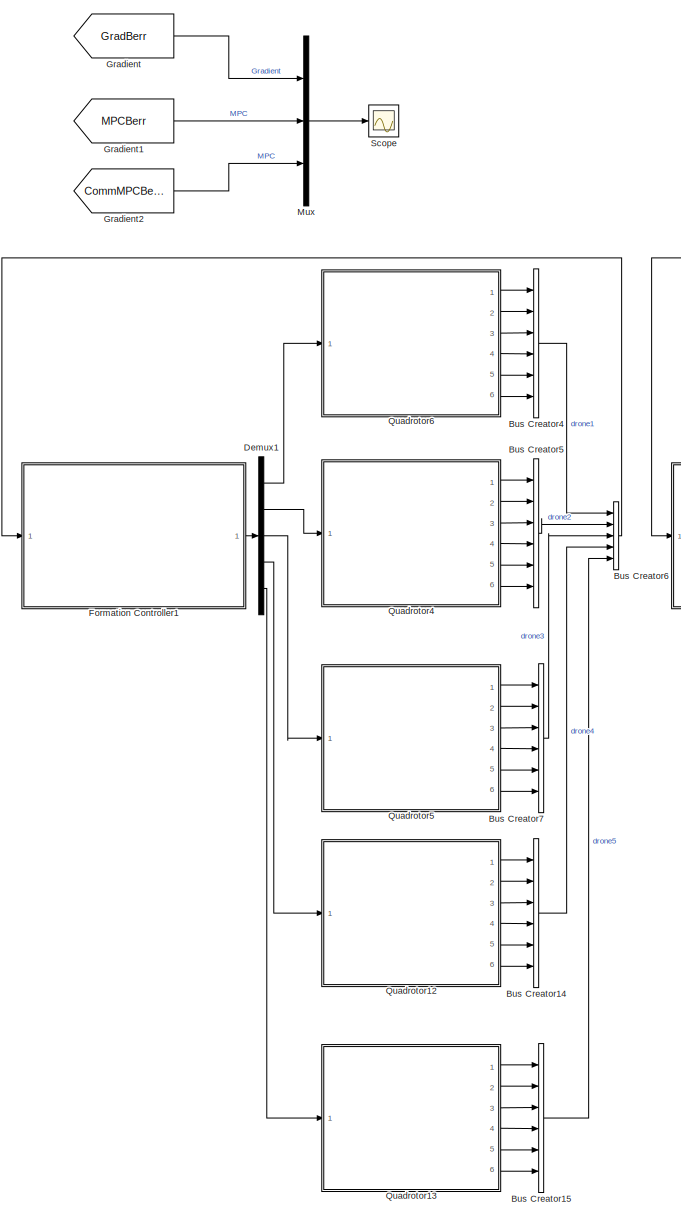
[diagram: root canvas - part 1/3, center side, full height]
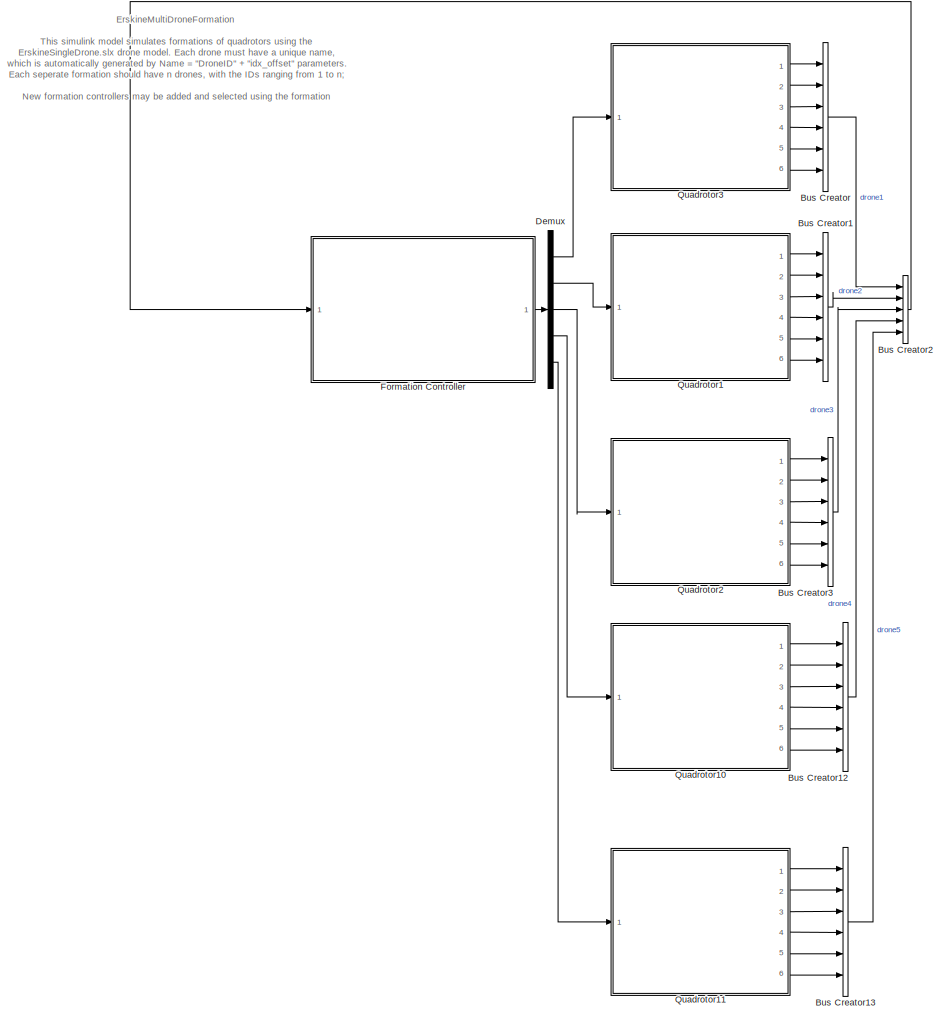
[diagram: root canvas - part 2/3, left side, full height]
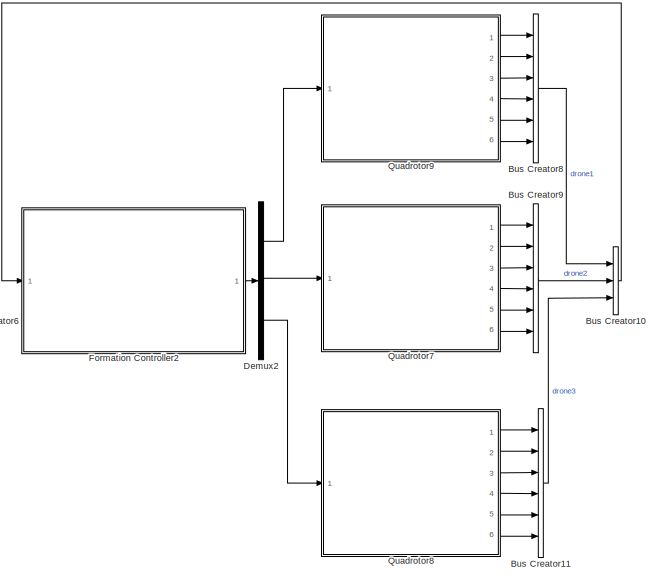
[diagram: root canvas - part 3/3, middle right region]
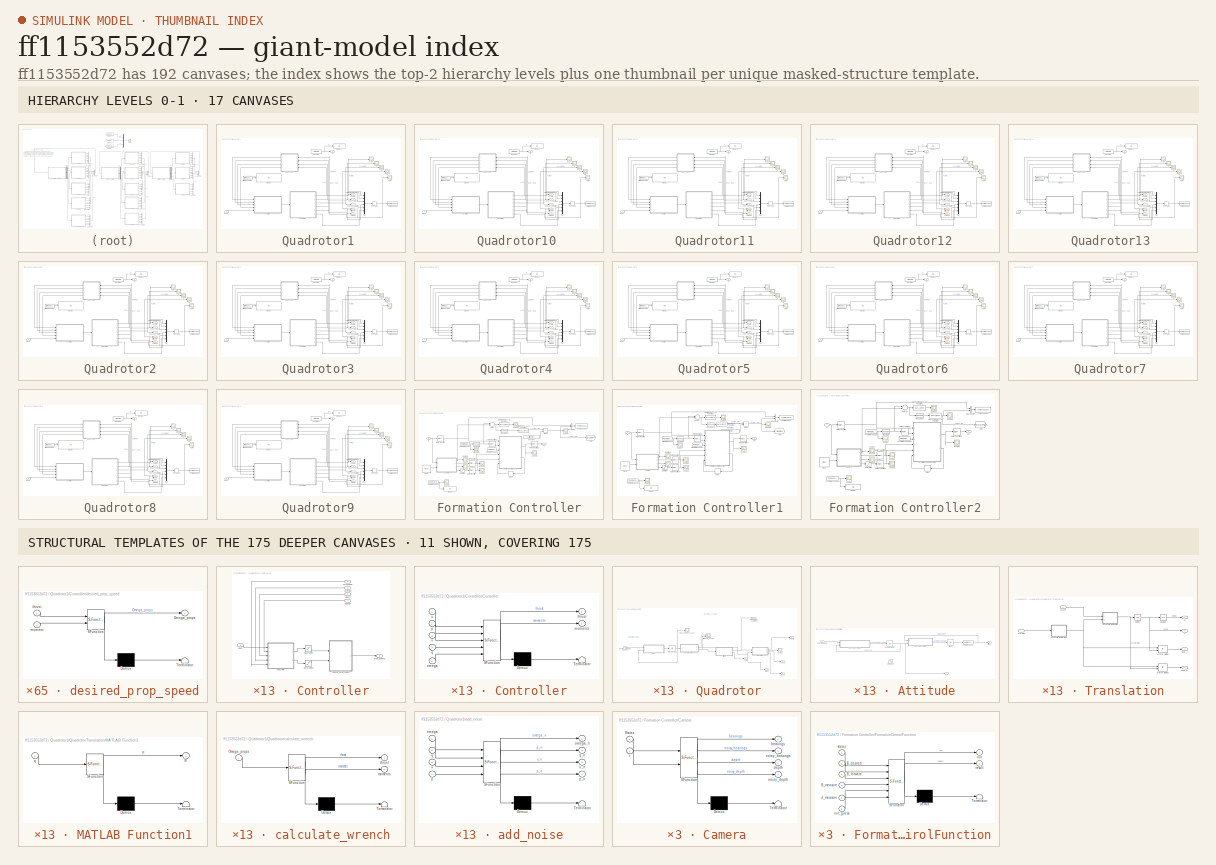
[diagram: thumbnail index - top-2 hierarchy levels (17 canvases) + 11 structural-template representatives of the remaining 175 canvases]
MODEL slx_ff1153552d72
KIND model
CONFIG AbsTol = auto
CONFIG EnableMultiTasking = off
CONFIG FixedStep = sim_dt
CONFIG MaxStep = auto
CONFIG MinStep = auto
CONFIG RelTol = 1e-3
CONFIG SampleTimeConstraint = Unconstrained
CONFIG Solver = FixedStepAuto
CONFIG SolverName = FixedStepAuto
CONFIG StartTime = 0.0
CONFIG StopTime = Tsim
BLOCK [SubSystem]   Quadrotor1
  Ports = [1, 6]
  RequestExecContextInheritance = off
BLOCK [Scope]   Quadrotor1/A
  Floating = off
  NumInputPorts = 1
  Ports = [1]
  ScopeSpecificationString = Simulink.scopes.TimeScopeBlockCfg('CurrentConfiguration', extmgr.ConfigurationSet(extmgr.Configuration('Core','General UI',true),extmgr.Configuration('Core','Source UI',true),extmgr.Configuration('Sources','WiredSimulink',true,'DataLoggingVariableName','ScopeData3'),extmgr.Configuration('Visuals','Time Domain',true,'SerializedDisplays',{struct('MinYLimReal','-1.17383','MaxYLimReal','6.47669','YLab...<+1475ch>  <repeated x11 — deduplicated; at blocks: A>
BLOCK [Constant]   Quadrotor1/Constant
  Value = DroneID
BLOCK [SubSystem]   Quadrotor1/Controller
  Ports = [5, 1]
  RequestExecContextInheritance = off
BLOCK [SubSystem]   Quadrotor1/Controller/Controller
  ErrorFcn = Stateflow.Translate.translate
  PermitHierarchicalResolution = ExplicitOnly
  Ports = [5, 2]
  RequestExecContextInheritance = off
  SFBlockType = MATLAB Function
  TreatAsAtomicUnit = on
BLOCK [Demux]   Quadrotor1/Controller/Controller/ Demux 
  Outputs = 1
  Ports = [1, 1]
BLOCK [S-Function]   Quadrotor1/Controller/Controller/ SFunction 
  EnableBusSupport = on
  FunctionName = sf_sfun
  Parameters = DroneID,control_type_param,drone_params,g
  PortCounts = [5 3]
  Ports = [5, 3]
  SFcnIsStateOwnerBlock = off
  SFunctionDeploymentMode = off
  Tag = Stateflow S-Function 1
BLOCK [Terminator]   Quadrotor1/Controller/Controller/ Terminator 
BLOCK [Outport]   Quadrotor1/Controller/Controller/moments
  IconDisplay = Port number
  Port = 2
BLOCK [Inport]   Quadrotor1/Controller/Controller/omega
  IconDisplay = Port number
  Port = 5
BLOCK [Inport]   Quadrotor1/Controller/Controller/p
  IconDisplay = Port number
  Port = 2
BLOCK [Inport]   Quadrotor1/Controller/Controller/q
  IconDisplay = Port number
  Port = 4
BLOCK [Outport]   Quadrotor1/Controller/Controller/thrust
  IconDisplay = Port number
BLOCK [Inport]   Quadrotor1/Controller/Controller/u
  IconDisplay = Port number
BLOCK [Inport]   Quadrotor1/Controller/Controller/v
  IconDisplay = Port number
  Port = 3
BLOCK [Saturate]   Quadrotor1/Controller/Saturation
  InputPortMap = u0
  LowerLimit = drone_params(DroneID).control.limits.thrust.min
  Ports = [1, 1]
  UpperLimit = drone_params(DroneID).control.limits.thrust.max
BLOCK [Saturate]   Quadrotor1/Controller/Saturation1
  InputPortMap = u0
  LowerLimit = -0.1
  Ports = [1, 1]
  UpperLimit = 0.1
BLOCK [Inport]   Quadrotor1/Controller/attitude
  IconDisplay = Port number
  Port = 2
BLOCK [SubSystem]   Quadrotor1/Controller/desired_prop_speed
  ErrorFcn = Stateflow.Translate.translate
  PermitHierarchicalResolution = ExplicitOnly
  Ports = [2, 1]
  RequestExecContextInheritance = off
  SFBlockType = MATLAB Function
  TreatAsAtomicUnit = on
BLOCK [Demux]   Quadrotor1/Controller/desired_prop_speed/ Demux 
  Outputs = 1
  Ports = [1, 1]
BLOCK [S-Function]   Quadrotor1/Controller/desired_prop_speed/ SFunction 
  EnableBusSupport = on
  FunctionName = sf_sfun
  Parameters = DroneID,drone_params
  PortCounts = [2 2]
  Ports = [2, 2]
  SFcnIsStateOwnerBlock = off
  SFunctionDeploymentMode = off
  Tag = Stateflow S-Function 2
BLOCK [Terminator]   Quadrotor1/Controller/desired_prop_speed/ Terminator 
BLOCK [Outport]   Quadrotor1/Controller/desired_prop_speed/Omega_props
  IconDisplay = Port number
BLOCK [Inport]   Quadrotor1/Controller/desired_prop_speed/moment
  IconDisplay = Port number
  Port = 2
BLOCK [Inport]   Quadrotor1/Controller/desired_prop_speed/thrust
  IconDisplay = Port number
BLOCK [Inport]   Quadrotor1/Controller/gyroscope
  IconDisplay = Port number
BLOCK [Inport]   Quadrotor1/Controller/input
  IconDisplay = Port number
  Port = 5
BLOCK [Inport]   Quadrotor1/Controller/position
  IconDisplay = Port number
  Port = 4
BLOCK [Outport]   Quadrotor1/Controller/prop_speeds
  IconDisplay = Port number
BLOCK [Inport]   Quadrotor1/Controller/velocity
  IconDisplay = Port number
  Port = 3
BLOCK [Display]   Quadrotor1/Display
  Decimation = 1
  Ports = [1]
BLOCK [Display]   Quadrotor1/Display1
  Decimation = 1
  Ports = [1]
BLOCK [Outport]   Quadrotor1/ID
  IconDisplay = Port number
BLOCK [Mux]   Quadrotor1/Mux
  DisplayOption = bar
  Inputs = 6
  Ports = [6, 1]
BLOCK [Scope]   Quadrotor1/Om
  Floating = off
  NumInputPorts = 1
  Ports = [1]
  ScopeSpecificationString = Simulink.scopes.TimeScopeBlockCfg('CurrentConfiguration', extmgr.ConfigurationSet(extmgr.Configuration('Core','General UI',true),extmgr.Configuration('Core','Source UI',true),extmgr.Configuration('Sources','WiredSimulink',true,'DataLoggingVariableName','ScopeData5'),extmgr.Configuration('Visuals','Time Domain',true,'SerializedDisplays',{struct('MinYLimReal','-0.52504','MaxYLimReal','0.60961','YLab...<+1474ch>
BLOCK [Scope]   Quadrotor1/P
  Floating = off
  NumInputPorts = 1
  Ports = [1]
  ScopeSpecificationString = Simulink.scopes.TimeScopeBlockCfg('CurrentConfiguration', extmgr.ConfigurationSet(extmgr.Configuration('Core','General UI',true),extmgr.Configuration('Core','Source UI',true),extmgr.Configuration('Sources','WiredSimulink',true,'DataLoggingVariableName','ScopeData1'),extmgr.Configuration('Visuals','Time Domain',true,'SerializedDisplays',{struct('MinYLimReal','-1.07225','MaxYLimReal','5.33934','YLab...<+1571ch>  <repeated x10 — deduplicated; at blocks: P>
BLOCK [Outport]   Quadrotor1/Positon
  IconDisplay = Port number
  Port = 2
BLOCK [Scope]   Quadrotor1/Q
  Floating = off
  NumInputPorts = 1
  Ports = [1]
  ScopeSpecificationString = Simulink.scopes.TimeScopeBlockCfg('CurrentConfiguration', extmgr.ConfigurationSet(extmgr.Configuration('Core','General UI',true),extmgr.Configuration('Core','Source UI',true),extmgr.Configuration('Sources','WiredSimulink',true,'DataLoggingVariableName','ScopeData4'),extmgr.Configuration('Visuals','Time Domain',true,'SerializedDisplays',{struct('MinYLimReal','-0.4113','MaxYLimReal','1.15681','YLabe...<+1443ch>
BLOCK [SubSystem]   Quadrotor1/Quadrotor
  Ports = [1, 6]
  RequestExecContextInheritance = off
BLOCK [SubSystem]   Quadrotor1/Quadrotor/Attitude
  Ports = [1, 2]
  RequestExecContextInheritance = off
BLOCK [Integrator]   Quadrotor1/Quadrotor/Attitude/Attitude
  InitialCondition = q0(:,DroneID)
  Ports = [1, 1]
BLOCK [SubSystem]   Quadrotor1/Quadrotor/Attitude/MATLAB Function
  ErrorFcn = Stateflow.Translate.translate
  PermitHierarchicalResolution = ExplicitOnly
  Ports = [2, 1]
  RequestExecContextInheritance = off
  SFBlockType = MATLAB Function
  TreatAsAtomicUnit = on
BLOCK [Demux]   Quadrotor1/Quadrotor/Attitude/MATLAB Function/ Demux 
  Outputs = 1
  Ports = [1, 1]
BLOCK [S-Function]   Quadrotor1/Quadrotor/Attitude/MATLAB Function/ SFunction 
  EnableBusSupport = on
  FunctionName = sf_sfun
  PortCounts = [2 2]
  Ports = [2, 2]
  SFcnIsStateOwnerBlock = off
  SFunctionDeploymentMode = off
  Tag = Stateflow S-Function 3
BLOCK [Terminator]   Quadrotor1/Quadrotor/Attitude/MATLAB Function/ Terminator 
BLOCK [Inport]   Quadrotor1/Quadrotor/Attitude/MATLAB Function/omega
  IconDisplay = Port number
  Port = 2
BLOCK [Inport]   Quadrotor1/Quadrotor/Attitude/MATLAB Function/q
  IconDisplay = Port number
BLOCK [Outport]   Quadrotor1/Quadrotor/Attitude/MATLAB Function/qd
  IconDisplay = Port number
BLOCK [SubSystem]   Quadrotor1/Quadrotor/Attitude/MATLAB Function1
  ErrorFcn = Stateflow.Translate.translate
  PermitHierarchicalResolution = ExplicitOnly
  Ports = [2, 1]
  RequestExecContextInheritance = off
  SFBlockType = MATLAB Function
  TreatAsAtomicUnit = on
BLOCK [Demux]   Quadrotor1/Quadrotor/Attitude/MATLAB Function1/ Demux 
  Outputs = 1
  Ports = [1, 1]
BLOCK [S-Function]   Quadrotor1/Quadrotor/Attitude/MATLAB Function1/ SFunction 
  EnableBusSupport = on
  FunctionName = sf_sfun
  Parameters = DroneID,drone_params
  PortCounts = [2 2]
  Ports = [2, 2]
  SFcnIsStateOwnerBlock = off
  SFunctionDeploymentMode = off
  Tag = Stateflow S-Function 4
BLOCK [Terminator]   Quadrotor1/Quadrotor/Attitude/MATLAB Function1/ Terminator 
BLOCK [Outport]   Quadrotor1/Quadrotor/Attitude/MATLAB Function1/a
  IconDisplay = Port number
BLOCK [Inport]   Quadrotor1/Quadrotor/Attitude/MATLAB Function1/m
  IconDisplay = Port number
BLOCK [Inport]   Quadrotor1/Quadrotor/Attitude/MATLAB Function1/omega
  IconDisplay = Port number
  Port = 2
BLOCK [Reference]   Quadrotor1/Quadrotor/Attitude/Normalize Vector  REF=vrlib/Utilities/Normalize Vector
  Ports = [1, 1]
  SourceBlock = vrlib/Utilities/Normalize Vector
  SourceProductBaseCode = SL
  SourceProductName = Simulink
  SourceType = Normalize Vector
BLOCK [Sin]   Quadrotor1/Quadrotor/Attitude/Sine Wave
  Amplitude = [0.5;0.5;0.5]
  Commented = on
  Frequency = [1;0.3;0.6]
  Ports = [0, 1]
  SampleTime = 0
BLOCK [Integrator]   Quadrotor1/Quadrotor/Attitude/angular velocity
  InitialCondition = omega0(:,DroneID)
  Ports = [1, 1]
BLOCK [Outport]   Quadrotor1/Quadrotor/Attitude/attitude
  IconDisplay = Port number
BLOCK [Inport]   Quadrotor1/Quadrotor/Attitude/body moments
  IconDisplay = Port number
BLOCK [Outport]   Quadrotor1/Quadrotor/Attitude/gyro
  IconDisplay = Port number
  Port = 2
BLOCK [SubSystem]   Quadrotor1/Quadrotor/ESC
  ErrorFcn = Stateflow.Translate.translate
  PermitHierarchicalResolution = ExplicitOnly
  Ports = [2, 1]
  RequestExecContextInheritance = off
  SFBlockType = MATLAB Function
  TreatAsAtomicUnit = on
BLOCK [Demux]   Quadrotor1/Quadrotor/ESC/ Demux 
  Outputs = 1
  Ports = [1, 1]
BLOCK [S-Function]   Quadrotor1/Quadrotor/ESC/ SFunction 
  EnableBusSupport = on
  FunctionName = sf_sfun
  Parameters = DroneID,drone_params
  PortCounts = [2 2]
  Ports = [2, 2]
  SFcnIsStateOwnerBlock = off
  SFunctionDeploymentMode = off
  Tag = Stateflow S-Function 5
BLOCK [Terminator]   Quadrotor1/Quadrotor/ESC/ Terminator 
BLOCK [Inport]   Quadrotor1/Quadrotor/ESC/Omega_prop
  IconDisplay = Port number
  Port = 2
BLOCK [Inport]   Quadrotor1/Quadrotor/ESC/Omega_prop_d
  IconDisplay = Port number
BLOCK [Outport]   Quadrotor1/Quadrotor/ESC/prop_acceleration
  IconDisplay = Port number
BLOCK [Scope]   Quadrotor1/Quadrotor/Scope
  Floating = off
  NumInputPorts = 1
  Ports = [1]
  ScopeSpecificationString = Simulink.scopes.TimeScopeBlockCfg('CurrentConfiguration', extmgr.ConfigurationSet(extmgr.Configuration('Core','General UI',true),extmgr.Configuration('Core','Source UI',true),extmgr.Configuration('Sources','WiredSimulink',true,'DataLoggingVariableName','ScopeData8'),extmgr.Configuration('Visuals','Time Domain',true,'SerializedDisplays',{struct('MinYLimReal','-1.32207','MaxYLimReal','3.4903','YLabe...<+1455ch>
BLOCK [SubSystem]   Quadrotor1/Quadrotor/Translation
  Ports = [2, 4]
  RequestExecContextInheritance = off
BLOCK [SubSystem]   Quadrotor1/Quadrotor/Translation/MATLAB Function
  ErrorFcn = Stateflow.Translate.translate
  PermitHierarchicalResolution = ExplicitOnly
  Ports = [2, 1]
  RequestExecContextInheritance = off
  SFBlockType = MATLAB Function
  TreatAsAtomicUnit = on
BLOCK [Demux]   Quadrotor1/Quadrotor/Translation/MATLAB Function/ Demux 
  Outputs = 1
  Ports = [1, 1]
BLOCK [S-Function]   Quadrotor1/Quadrotor/Translation/MATLAB Function/ SFunction 
  EnableBusSupport = on
  FunctionName = sf_sfun
  Parameters = DroneID,drone_params,g
  PortCounts = [2 2]
  Ports = [2, 2]
  SFcnIsStateOwnerBlock = off
  SFunctionDeploymentMode = off
  Tag = Stateflow S-Function 6
BLOCK [Terminator]   Quadrotor1/Quadrotor/Translation/MATLAB Function/ Terminator 
BLOCK [Inport]   Quadrotor1/Quadrotor/Translation/MATLAB Function/R
  IconDisplay = Port number
  Port = 2
BLOCK [Outport]   Quadrotor1/Quadrotor/Translation/MATLAB Function/a
  IconDisplay = Port number
BLOCK [Inport]   Quadrotor1/Quadrotor/Translation/MATLAB Function/f
  IconDisplay = Port number
BLOCK [SubSystem]   Quadrotor1/Quadrotor/Translation/MATLAB Function1
  ErrorFcn = Stateflow.Translate.translate
  PermitHierarchicalResolution = ExplicitOnly
  Ports = [1, 1]
  RequestExecContextInheritance = off
  SFBlockType = MATLAB Function
  TreatAsAtomicUnit = on
BLOCK [Demux]   Quadrotor1/Quadrotor/Translation/MATLAB Function1/ Demux 
  Outputs = 1
  Ports = [1, 1]
BLOCK [S-Function]   Quadrotor1/Quadrotor/Translation/MATLAB Function1/ SFunction 
  EnableBusSupport = on
  FunctionName = sf_sfun
  PortCounts = [1 2]
  Ports = [1, 2]
  SFcnIsStateOwnerBlock = off
  SFunctionDeploymentMode = off
  Tag = Stateflow S-Function 7
BLOCK [Terminator]   Quadrotor1/Quadrotor/Translation/MATLAB Function1/ Terminator 
BLOCK [Outport]   Quadrotor1/Quadrotor/Translation/MATLAB Function1/R
  IconDisplay = Port number
BLOCK [Inport]   Quadrotor1/Quadrotor/Translation/MATLAB Function1/q
  IconDisplay = Port number
BLOCK [Product]   Quadrotor1/Quadrotor/Translation/Matrix Divide
  InputSameDT = off
  Inputs = /*
  Multiplication = Matrix(*)
  OutDataTypeStr = Inherit: Inherit via internal rule
  Ports = [2, 1]
  RndMeth = Floor
  SaturateOnIntegerOverflow = off
BLOCK [Product]   Quadrotor1/Quadrotor/Translation/Matrix Divide1
  InputSameDT = off
  Inputs = /*
  Multiplication = Matrix(*)
  OutDataTypeStr = Inherit: Inherit via internal rule
  Ports = [2, 1]
  RndMeth = Floor
  SaturateOnIntegerOverflow = off
BLOCK [Inport]   Quadrotor1/Quadrotor/Translation/attitude
  IconDisplay = Port number
BLOCK [Outport]   Quadrotor1/Quadrotor/Translation/body_a
  IconDisplay = Port number
  Port = 4
BLOCK [Outport]   Quadrotor1/Quadrotor/Translation/body_v
  IconDisplay = Port number
  Port = 3
BLOCK [Outport]   Quadrotor1/Quadrotor/Translation/p
  IconDisplay = Port number
BLOCK [Integrator]   Quadrotor1/Quadrotor/Translation/position
  InitialCondition = p0(:,DroneID)
  Ports = [1, 1]
BLOCK [Inport]   Quadrotor1/Quadrotor/Translation/thrust
  IconDisplay = Port number
  Port = 2
BLOCK [Outport]   Quadrotor1/Quadrotor/Translation/v
  IconDisplay = Port number
  Port = 2
BLOCK [Integrator]   Quadrotor1/Quadrotor/Translation/velocity
  InitialCondition = v0(:,DroneID)
  Ports = [1, 1]
BLOCK [Outport]   Quadrotor1/Quadrotor/a_body
  IconDisplay = Port number
  Port = 3
BLOCK [SubSystem]   Quadrotor1/Quadrotor/calculate_wrench
  ErrorFcn = Stateflow.Translate.translate
  PermitHierarchicalResolution = ExplicitOnly
  Ports = [1, 2]
  RequestExecContextInheritance = off
  SFBlockType = MATLAB Function
  TreatAsAtomicUnit = on
BLOCK [Demux]   Quadrotor1/Quadrotor/calculate_wrench/ Demux 
  Outputs = 1
  Ports = [1, 1]
BLOCK [S-Function]   Quadrotor1/Quadrotor/calculate_wrench/ SFunction 
  EnableBusSupport = on
  FunctionName = sf_sfun
  Parameters = DroneID,drone_params
  PortCounts = [1 3]
  Ports = [1, 3]
  SFcnIsStateOwnerBlock = off
  SFunctionDeploymentMode = off
  Tag = Stateflow S-Function 8
BLOCK [Terminator]   Quadrotor1/Quadrotor/calculate_wrench/ Terminator 
BLOCK [Inport]   Quadrotor1/Quadrotor/calculate_wrench/Omega_props
  IconDisplay = Port number
BLOCK [Outport]   Quadrotor1/Quadrotor/calculate_wrench/moments
  IconDisplay = Port number
  Port = 2
BLOCK [Outport]   Quadrotor1/Quadrotor/calculate_wrench/thrust
  IconDisplay = Port number
BLOCK [Inport]   Quadrotor1/Quadrotor/desired_propellor_speeds
  IconDisplay = Port number
BLOCK [Outport]   Quadrotor1/Quadrotor/gyro
  IconDisplay = Port number
  Port = 5
BLOCK [Outport]   Quadrotor1/Quadrotor/p_world
  IconDisplay = Port number
BLOCK [Integrator]   Quadrotor1/Quadrotor/prop_speed
  InitialCondition = drone_params(DroneID).motors.omega0
  LimitOutput = on
  LowerSaturationLimit = drone_params(DroneID).motors.omega_min
  Ports = [1, 1]
  UpperSaturationLimit = drone_params(DroneID).motors.omega_max
BLOCK [Scope]   Quadrotor1/Quadrotor/prop_speed_scope
  Floating = off
  NumInputPorts = 1
  Ports = [1]
  ScopeSpecificationString = Simulink.scopes.TimeScopeBlockCfg('CurrentConfiguration', extmgr.ConfigurationSet(extmgr.Configuration('Core','General UI',true),extmgr.Configuration('Core','Source UI',true),extmgr.Configuration('Sources','WiredSimulink',true,'DataLoggingVariableName','ScopeData3'),extmgr.Configuration('Visuals','Time Domain',true,'SerializedDisplays',{struct('MinYLimReal','306.25','MaxYLimReal','1243.75','YLabel...<+1482ch>  <repeated x13 — deduplicated; at blocks: prop_speed_scope>
BLOCK [Outport]   Quadrotor1/Quadrotor/thrust
  IconDisplay = Port number
  Port = 6
BLOCK [Outport]   Quadrotor1/Quadrotor/v_body
  IconDisplay = Port number
  Port = 2
BLOCK [Outport]   Quadrotor1/Quadrotor/world2drone_quaternion
  IconDisplay = Port number
  Port = 4
BLOCK [Scope]   Quadrotor1/Quadrotor/wrench_scope
  Floating = off
  NumInputPorts = 2
  Ports = [2]
  ScopeSpecificationString = Simulink.scopes.TimeScopeBlockCfg('CurrentConfiguration', extmgr.ConfigurationSet(extmgr.Configuration('Core','General UI',true),extmgr.Configuration('Core','Source UI',true),extmgr.Configuration('Sources','WiredSimulink',true,'DataLoggingVariableName','ScopeData4'),extmgr.Configuration('Visuals','Time Domain',true,'SerializedDisplays',{struct('MinYLimReal','-1.81861','MaxYLimReal','15.57383','YLa...<+1548ch>  <repeated x13 — deduplicated; at blocks: wrench_scope>
BLOCK [Reshape]   Quadrotor1/Reshape
  Ports = [1, 1]
BLOCK [StringConstant]   Quadrotor1/String Constant
  String = DroneName
BLOCK [ToWorkspace]   Quadrotor1/To Workspace
  FixptAsFi = on
  MaxDataPoints = inf
  Ports = [1]
  SampleTime = -1
  SaveFormat = Timeseries
  VariableName = Drone2
BLOCK [Scope]   Quadrotor1/V
  Floating = off
  NumInputPorts = 1
  Ports = [1]
  ScopeSpecificationString = Simulink.scopes.TimeScopeBlockCfg('CurrentConfiguration', extmgr.ConfigurationSet(extmgr.Configuration('Core','General UI',true),extmgr.Configuration('Core','Source UI',true),extmgr.Configuration('Sources','WiredSimulink',true,'DataLoggingVariableName','ScopeData2'),extmgr.Configuration('Visuals','Time Domain',true,'SerializedDisplays',{struct('MinYLimReal','-1.32534','MaxYLimReal','1.63153','YLab...<+1469ch>
BLOCK [SubSystem]   Quadrotor1/add_noise
  ErrorFcn = Stateflow.Translate.translate
  PermitHierarchicalResolution = ExplicitOnly
  Ports = [4, 4]
  RequestExecContextInheritance = off
  SFBlockType = MATLAB Function
  TreatAsAtomicUnit = on
BLOCK [Demux]   Quadrotor1/add_noise/ Demux 
  Outputs = 1
  Ports = [1, 1]
BLOCK [S-Function]   Quadrotor1/add_noise/ SFunction 
  EnableBusSupport = on
  FunctionName = sf_sfun
  Parameters = DroneID,drone_params
  PortCounts = [4 5]
  Ports = [4, 5]
  SFcnIsStateOwnerBlock = off
  SFunctionDeploymentMode = off
  Tag = Stateflow S-Function 9
BLOCK [Terminator]   Quadrotor1/add_noise/ Terminator 
BLOCK [Inport]   Quadrotor1/add_noise/omega
  IconDisplay = Port number
BLOCK [Outport]   Quadrotor1/add_noise/omega_n
  IconDisplay = Port number
BLOCK [Inport]   Quadrotor1/add_noise/p
  IconDisplay = Port number
  Port = 4
BLOCK [Outport]   Quadrotor1/add_noise/p_n
  IconDisplay = Port number
  Port = 4
BLOCK [Inport]   Quadrotor1/add_noise/q
  IconDisplay = Port number
  Port = 2
BLOCK [Outport]   Quadrotor1/add_noise/q_n
  IconDisplay = Port number
  Port = 2
BLOCK [Inport]   Quadrotor1/add_noise/v
  IconDisplay = Port number
  Port = 3
BLOCK [Outport]   Quadrotor1/add_noise/v_n
  IconDisplay = Port number
  Port = 3
BLOCK [Outport]   Quadrotor1/attitude (q)
  IconDisplay = Port number
  Port = 5
BLOCK [Outport]   Quadrotor1/body acceleration
  IconDisplay = Port number
  Port = 4
BLOCK [Outport]   Quadrotor1/body_velocity
  IconDisplay = Port number
  Port = 3
BLOCK [Inport]   Quadrotor1/input
  IconDisplay = Port number
BLOCK [Outport]   Quadrotor1/omega
  IconDisplay = Port number
  Port = 6
BLOCK [SubSystem]   Quadrotor10
  Ports = [1, 6]
  RequestExecContextInheritance = off
BLOCK [Scope]   Quadrotor10/A
  Floating = off
  NumInputPorts = 1
  Ports = [1]
BLOCK [Constant]   Quadrotor10/Constant
  Value = DroneID
BLOCK [SubSystem]   Quadrotor10/Controller
  Ports = [5, 1]
  RequestExecContextInheritance = off
BLOCK [SubSystem]   Quadrotor10/Controller/Controller
  ErrorFcn = Stateflow.Translate.translate
  PermitHierarchicalResolution = ExplicitOnly
  Ports = [5, 2]
  RequestExecContextInheritance = off
  SFBlockType = MATLAB Function
  TreatAsAtomicUnit = on
BLOCK [Demux]   Quadrotor10/Controller/Controller/ Demux 
  Outputs = 1
  Ports = [1, 1]
BLOCK [S-Function]   Quadrotor10/Controller/Controller/ SFunction 
  EnableBusSupport = on
  FunctionName = sf_sfun
  Parameters = DroneID,control_type_param,drone_params,g
  PortCounts = [5 3]
  Ports = [5, 3]
  SFcnIsStateOwnerBlock = off
  SFunctionDeploymentMode = off
  Tag = Stateflow S-Function 88
BLOCK [Terminator]   Quadrotor10/Controller/Controller/ Terminator 
BLOCK [Outport]   Quadrotor10/Controller/Controller/moments
  IconDisplay = Port number
  Port = 2
BLOCK [Inport]   Quadrotor10/Controller/Controller/omega
  IconDisplay = Port number
  Port = 5
BLOCK [Inport]   Quadrotor10/Controller/Controller/p
  IconDisplay = Port number
  Port = 2
BLOCK [Inport]   Quadrotor10/Controller/Controller/q
  IconDisplay = Port number
  Port = 4
BLOCK [Outport]   Quadrotor10/Controller/Controller/thrust
  IconDisplay = Port number
BLOCK [Inport]   Quadrotor10/Controller/Controller/u
  IconDisplay = Port number
BLOCK [Inport]   Quadrotor10/Controller/Controller/v
  IconDisplay = Port number
  Port = 3
BLOCK [Saturate]   Quadrotor10/Controller/Saturation
  InputPortMap = u0
  LowerLimit = drone_params(DroneID).control.limits.thrust.min
  Ports = [1, 1]
  UpperLimit = drone_params(DroneID).control.limits.thrust.max
BLOCK [Saturate]   Quadrotor10/Controller/Saturation1
  InputPortMap = u0
  LowerLimit = -0.1
  Ports = [1, 1]
  UpperLimit = 0.1
BLOCK [Inport]   Quadrotor10/Controller/attitude
  IconDisplay = Port number
  Port = 2
BLOCK [SubSystem]   Quadrotor10/Controller/desired_prop_speed
  ErrorFcn = Stateflow.Translate.translate
  PermitHierarchicalResolution = ExplicitOnly
  Ports = [2, 1]
  RequestExecContextInheritance = off
  SFBlockType = MATLAB Function
  TreatAsAtomicUnit = on
BLOCK [Demux]   Quadrotor10/Controller/desired_prop_speed/ Demux 
  Outputs = 1
  Ports = [1, 1]
BLOCK [S-Function]   Quadrotor10/Controller/desired_prop_speed/ SFunction 
  EnableBusSupport = on
  FunctionName = sf_sfun
  Parameters = DroneID,drone_params
  PortCounts = [2 2]
  Ports = [2, 2]
  SFcnIsStateOwnerBlock = off
  SFunctionDeploymentMode = off
  Tag = Stateflow S-Function 89
BLOCK [Terminator]   Quadrotor10/Controller/desired_prop_speed/ Terminator 
BLOCK [Outport]   Quadrotor10/Controller/desired_prop_speed/Omega_props
  IconDisplay = Port number
BLOCK [Inport]   Quadrotor10/Controller/desired_prop_speed/moment
  IconDisplay = Port number
  Port = 2
BLOCK [Inport]   Quadrotor10/Controller/desired_prop_speed/thrust
  IconDisplay = Port number
BLOCK [Inport]   Quadrotor10/Controller/gyroscope
  IconDisplay = Port number
BLOCK [Inport]   Quadrotor10/Controller/input
  IconDisplay = Port number
  Port = 5
BLOCK [Inport]   Quadrotor10/Controller/position
  IconDisplay = Port number
  Port = 4
BLOCK [Outport]   Quadrotor10/Controller/prop_speeds
  IconDisplay = Port number
BLOCK [Inport]   Quadrotor10/Controller/velocity
  IconDisplay = Port number
  Port = 3
BLOCK [Display]   Quadrotor10/Display
  Decimation = 1
  Ports = [1]
BLOCK [Display]   Quadrotor10/Display1
  Decimation = 1
  Ports = [1]
BLOCK [Outport]   Quadrotor10/ID
  IconDisplay = Port number
BLOCK [Mux]   Quadrotor10/Mux
  DisplayOption = bar
  Inputs = 6
  Ports = [6, 1]
BLOCK [Scope]   Quadrotor10/Om
  Floating = off
  NumInputPorts = 1
  Ports = [1]
  ScopeSpecificationString = Simulink.scopes.TimeScopeBlockCfg('CurrentConfiguration', extmgr.ConfigurationSet(extmgr.Configuration('Core','General UI',true),extmgr.Configuration('Core','Source UI',true),extmgr.Configuration('Sources','WiredSimulink',true,'DataLoggingVariableName','ScopeData5'),extmgr.Configuration('Visuals','Time Domain',true,'SerializedDisplays',{struct('MinYLimReal','-0.87709','MaxYLimReal','0.57019','YLab...<+1427ch>  <repeated x7 — deduplicated; at blocks: Om>
BLOCK [Scope]   Quadrotor10/P
  Floating = off
  NumInputPorts = 1
  Ports = [1]
BLOCK [Outport]   Quadrotor10/Positon
  IconDisplay = Port number
  Port = 2
BLOCK [Scope]   Quadrotor10/Q
  Floating = off
  NumInputPorts = 1
  Ports = [1]
  ScopeSpecificationString = Simulink.scopes.TimeScopeBlockCfg('CurrentConfiguration', extmgr.ConfigurationSet(extmgr.Configuration('Core','General UI',true),extmgr.Configuration('Core','Source UI',true),extmgr.Configuration('Sources','WiredSimulink',true,'DataLoggingVariableName','ScopeData4'),extmgr.Configuration('Visuals','Time Domain',true,'SerializedDisplays',{struct('MinYLimReal','-0.23996','MaxYLimReal','1.13777','YLab...<+1445ch>  <repeated x10 — deduplicated; at blocks: Q>
BLOCK [SubSystem]   Quadrotor10/Quadrotor
  Ports = [1, 6]
  RequestExecContextInheritance = off
BLOCK [SubSystem]   Quadrotor10/Quadrotor/Attitude
  Ports = [1, 2]
  RequestExecContextInheritance = off
BLOCK [Integrator]   Quadrotor10/Quadrotor/Attitude/Attitude
  InitialCondition = q0(:,DroneID)
  Ports = [1, 1]
BLOCK [SubSystem]   Quadrotor10/Quadrotor/Attitude/MATLAB Function
  ErrorFcn = Stateflow.Translate.translate
  PermitHierarchicalResolution = ExplicitOnly
  Ports = [2, 1]
  RequestExecContextInheritance = off
  SFBlockType = MATLAB Function
  TreatAsAtomicUnit = on
BLOCK [Demux]   Quadrotor10/Quadrotor/Attitude/MATLAB Function/ Demux 
  Outputs = 1
  Ports = [1, 1]
BLOCK [S-Function]   Quadrotor10/Quadrotor/Attitude/MATLAB Function/ SFunction 
  EnableBusSupport = on
  FunctionName = sf_sfun
  PortCounts = [2 2]
  Ports = [2, 2]
  SFcnIsStateOwnerBlock = off
  SFunctionDeploymentMode = off
  Tag = Stateflow S-Function 90
BLOCK [Terminator]   Quadrotor10/Quadrotor/Attitude/MATLAB Function/ Terminator 
BLOCK [Inport]   Quadrotor10/Quadrotor/Attitude/MATLAB Function/omega
  IconDisplay = Port number
  Port = 2
BLOCK [Inport]   Quadrotor10/Quadrotor/Attitude/MATLAB Function/q
  IconDisplay = Port number
BLOCK [Outport]   Quadrotor10/Quadrotor/Attitude/MATLAB Function/qd
  IconDisplay = Port number
BLOCK [SubSystem]   Quadrotor10/Quadrotor/Attitude/MATLAB Function1
  ErrorFcn = Stateflow.Translate.translate
  PermitHierarchicalResolution = ExplicitOnly
  Ports = [2, 1]
  RequestExecContextInheritance = off
  SFBlockType = MATLAB Function
  TreatAsAtomicUnit = on
BLOCK [Demux]   Quadrotor10/Quadrotor/Attitude/MATLAB Function1/ Demux 
  Outputs = 1
  Ports = [1, 1]
BLOCK [S-Function]   Quadrotor10/Quadrotor/Attitude/MATLAB Function1/ SFunction 
  EnableBusSupport = on
  FunctionName = sf_sfun
  Parameters = DroneID,drone_params
  PortCounts = [2 2]
  Ports = [2, 2]
  SFcnIsStateOwnerBlock = off
  SFunctionDeploymentMode = off
  Tag = Stateflow S-Function 91
BLOCK [Terminator]   Quadrotor10/Quadrotor/Attitude/MATLAB Function1/ Terminator 
BLOCK [Outport]   Quadrotor10/Quadrotor/Attitude/MATLAB Function1/a
  IconDisplay = Port number
BLOCK [Inport]   Quadrotor10/Quadrotor/Attitude/MATLAB Function1/m
  IconDisplay = Port number
BLOCK [Inport]   Quadrotor10/Quadrotor/Attitude/MATLAB Function1/omega
  IconDisplay = Port number
  Port = 2
BLOCK [Reference]   Quadrotor10/Quadrotor/Attitude/Normalize Vector  REF=vrlib/Utilities/Normalize Vector
  Ports = [1, 1]
  SourceBlock = vrlib/Utilities/Normalize Vector
  SourceProductBaseCode = SL
  SourceProductName = Simulink
  SourceType = Normalize Vector
BLOCK [Sin]   Quadrotor10/Quadrotor/Attitude/Sine Wave
  Amplitude = [0.5;0.5;0.5]
  Commented = on
  Frequency = [1;0.3;0.6]
  Ports = [0, 1]
  SampleTime = 0
BLOCK [Integrator]   Quadrotor10/Quadrotor/Attitude/angular velocity
  InitialCondition = omega0(:,DroneID)
  Ports = [1, 1]
BLOCK [Outport]   Quadrotor10/Quadrotor/Attitude/attitude
  IconDisplay = Port number
BLOCK [Inport]   Quadrotor10/Quadrotor/Attitude/body moments
  IconDisplay = Port number
BLOCK [Outport]   Quadrotor10/Quadrotor/Attitude/gyro
  IconDisplay = Port number
  Port = 2
BLOCK [SubSystem]   Quadrotor10/Quadrotor/ESC
  ErrorFcn = Stateflow.Translate.translate
  PermitHierarchicalResolution = ExplicitOnly
  Ports = [2, 1]
  RequestExecContextInheritance = off
  SFBlockType = MATLAB Function
  TreatAsAtomicUnit = on
BLOCK [Demux]   Quadrotor10/Quadrotor/ESC/ Demux 
  Outputs = 1
  Ports = [1, 1]
BLOCK [S-Function]   Quadrotor10/Quadrotor/ESC/ SFunction 
  EnableBusSupport = on
  FunctionName = sf_sfun
  Parameters = DroneID,drone_params
  PortCounts = [2 2]
  Ports = [2, 2]
  SFcnIsStateOwnerBlock = off
  SFunctionDeploymentMode = off
  Tag = Stateflow S-Function 92
BLOCK [Terminator]   Quadrotor10/Quadrotor/ESC/ Terminator 
BLOCK [Inport]   Quadrotor10/Quadrotor/ESC/Omega_prop
  IconDisplay = Port number
  Port = 2
BLOCK [Inport]   Quadrotor10/Quadrotor/ESC/Omega_prop_d
  IconDisplay = Port number
BLOCK [Outport]   Quadrotor10/Quadrotor/ESC/prop_acceleration
  IconDisplay = Port number
BLOCK [Scope]   Quadrotor10/Quadrotor/Scope
  Floating = off
  NumInputPorts = 1
  Ports = [1]
  ScopeSpecificationString = Simulink.scopes.TimeScopeBlockCfg('CurrentConfiguration', extmgr.ConfigurationSet(extmgr.Configuration('Core','General UI',true),extmgr.Configuration('Core','Source UI',true),extmgr.Configuration('Sources','WiredSimulink',true,'DataLoggingVariableName','ScopeData9'),extmgr.Configuration('Visuals','Time Domain',true),extmgr.Configuration('Tools','Plot Navigation',true),extmgr.Configuration('Tools',...<+40ch>  <repeated x3 — deduplicated; at blocks: Scope>
BLOCK [SubSystem]   Quadrotor10/Quadrotor/Translation
  Ports = [2, 4]
  RequestExecContextInheritance = off
BLOCK [SubSystem]   Quadrotor10/Quadrotor/Translation/MATLAB Function
  ErrorFcn = Stateflow.Translate.translate
  PermitHierarchicalResolution = ExplicitOnly
  Ports = [2, 1]
  RequestExecContextInheritance = off
  SFBlockType = MATLAB Function
  TreatAsAtomicUnit = on
BLOCK [Demux]   Quadrotor10/Quadrotor/Translation/MATLAB Function/ Demux 
  Outputs = 1
  Ports = [1, 1]
BLOCK [S-Function]   Quadrotor10/Quadrotor/Translation/MATLAB Function/ SFunction 
  EnableBusSupport = on
  FunctionName = sf_sfun
  Parameters = DroneID,drone_params,g
  PortCounts = [2 2]
  Ports = [2, 2]
  SFcnIsStateOwnerBlock = off
  SFunctionDeploymentMode = off
  Tag = Stateflow S-Function 93
BLOCK [Terminator]   Quadrotor10/Quadrotor/Translation/MATLAB Function/ Terminator 
BLOCK [Inport]   Quadrotor10/Quadrotor/Translation/MATLAB Function/R
  IconDisplay = Port number
  Port = 2
BLOCK [Outport]   Quadrotor10/Quadrotor/Translation/MATLAB Function/a
  IconDisplay = Port number
BLOCK [Inport]   Quadrotor10/Quadrotor/Translation/MATLAB Function/f
  IconDisplay = Port number
BLOCK [SubSystem]   Quadrotor10/Quadrotor/Translation/MATLAB Function1
  ErrorFcn = Stateflow.Translate.translate
  PermitHierarchicalResolution = ExplicitOnly
  Ports = [1, 1]
  RequestExecContextInheritance = off
  SFBlockType = MATLAB Function
  TreatAsAtomicUnit = on
BLOCK [Demux]   Quadrotor10/Quadrotor/Translation/MATLAB Function1/ Demux 
  Outputs = 1
  Ports = [1, 1]
BLOCK [S-Function]   Quadrotor10/Quadrotor/Translation/MATLAB Function1/ SFunction 
  EnableBusSupport = on
  FunctionName = sf_sfun
  PortCounts = [1 2]
  Ports = [1, 2]
  SFcnIsStateOwnerBlock = off
  SFunctionDeploymentMode = off
  Tag = Stateflow S-Function 94
BLOCK [Terminator]   Quadrotor10/Quadrotor/Translation/MATLAB Function1/ Terminator 
BLOCK [Outport]   Quadrotor10/Quadrotor/Translation/MATLAB Function1/R
  IconDisplay = Port number
BLOCK [Inport]   Quadrotor10/Quadrotor/Translation/MATLAB Function1/q
  IconDisplay = Port number
BLOCK [Product]   Quadrotor10/Quadrotor/Translation/Matrix Divide
  InputSameDT = off
  Inputs = /*
  Multiplication = Matrix(*)
  OutDataTypeStr = Inherit: Inherit via internal rule
  Ports = [2, 1]
  RndMeth = Floor
  SaturateOnIntegerOverflow = off
BLOCK [Product]   Quadrotor10/Quadrotor/Translation/Matrix Divide1
  InputSameDT = off
  Inputs = /*
  Multiplication = Matrix(*)
  OutDataTypeStr = Inherit: Inherit via internal rule
  Ports = [2, 1]
  RndMeth = Floor
  SaturateOnIntegerOverflow = off
BLOCK [Inport]   Quadrotor10/Quadrotor/Translation/attitude
  IconDisplay = Port number
BLOCK [Outport]   Quadrotor10/Quadrotor/Translation/body_a
  IconDisplay = Port number
  Port = 4
BLOCK [Outport]   Quadrotor10/Quadrotor/Translation/body_v
  IconDisplay = Port number
  Port = 3
BLOCK [Outport]   Quadrotor10/Quadrotor/Translation/p
  IconDisplay = Port number
BLOCK [Integrator]   Quadrotor10/Quadrotor/Translation/position
  InitialCondition = p0(:,DroneID)
  Ports = [1, 1]
BLOCK [Inport]   Quadrotor10/Quadrotor/Translation/thrust
  IconDisplay = Port number
  Port = 2
BLOCK [Outport]   Quadrotor10/Quadrotor/Translation/v
  IconDisplay = Port number
  Port = 2
BLOCK [Integrator]   Quadrotor10/Quadrotor/Translation/velocity
  InitialCondition = v0(:,DroneID)
  Ports = [1, 1]
BLOCK [Outport]   Quadrotor10/Quadrotor/a_body
  IconDisplay = Port number
  Port = 3
BLOCK [SubSystem]   Quadrotor10/Quadrotor/calculate_wrench
  ErrorFcn = Stateflow.Translate.translate
  PermitHierarchicalResolution = ExplicitOnly
  Ports = [1, 2]
  RequestExecContextInheritance = off
  SFBlockType = MATLAB Function
  TreatAsAtomicUnit = on
BLOCK [Demux]   Quadrotor10/Quadrotor/calculate_wrench/ Demux 
  Outputs = 1
  Ports = [1, 1]
BLOCK [S-Function]   Quadrotor10/Quadrotor/calculate_wrench/ SFunction 
  EnableBusSupport = on
  FunctionName = sf_sfun
  Parameters = DroneID,drone_params
  PortCounts = [1 3]
  Ports = [1, 3]
  SFcnIsStateOwnerBlock = off
  SFunctionDeploymentMode = off
  Tag = Stateflow S-Function 95
BLOCK [Terminator]   Quadrotor10/Quadrotor/calculate_wrench/ Terminator 
BLOCK [Inport]   Quadrotor10/Quadrotor/calculate_wrench/Omega_props
  IconDisplay = Port number
BLOCK [Outport]   Quadrotor10/Quadrotor/calculate_wrench/moments
  IconDisplay = Port number
  Port = 2
BLOCK [Outport]   Quadrotor10/Quadrotor/calculate_wrench/thrust
  IconDisplay = Port number
BLOCK [Inport]   Quadrotor10/Quadrotor/desired_propellor_speeds
  IconDisplay = Port number
BLOCK [Outport]   Quadrotor10/Quadrotor/gyro
  IconDisplay = Port number
  Port = 5
BLOCK [Outport]   Quadrotor10/Quadrotor/p_world
  IconDisplay = Port number
BLOCK [Integrator]   Quadrotor10/Quadrotor/prop_speed
  InitialCondition = drone_params(DroneID).motors.omega0
  LimitOutput = on
  LowerSaturationLimit = drone_params(DroneID).motors.omega_min
  Ports = [1, 1]
  UpperSaturationLimit = drone_params(DroneID).motors.omega_max
BLOCK [Scope]   Quadrotor10/Quadrotor/prop_speed_scope
  Floating = off
  NumInputPorts = 1
  Ports = [1]
BLOCK [Outport]   Quadrotor10/Quadrotor/thrust
  IconDisplay = Port number
  Port = 6
BLOCK [Outport]   Quadrotor10/Quadrotor/v_body
  IconDisplay = Port number
  Port = 2
BLOCK [Outport]   Quadrotor10/Quadrotor/world2drone_quaternion
  IconDisplay = Port number
  Port = 4
BLOCK [Scope]   Quadrotor10/Quadrotor/wrench_scope
  Floating = off
  NumInputPorts = 2
  Ports = [2]
BLOCK [Reshape]   Quadrotor10/Reshape
  Ports = [1, 1]
BLOCK [StringConstant]   Quadrotor10/String Constant
  String = DroneName
BLOCK [ToWorkspace]   Quadrotor10/To Workspace
  FixptAsFi = on
  MaxDataPoints = inf
  Ports = [1]
  SampleTime = -1
  SaveFormat = Timeseries
  VariableName = Drone4
BLOCK [Scope]   Quadrotor10/V
  Floating = off
  NumInputPorts = 1
  Ports = [1]
  ScopeSpecificationString = Simulink.scopes.TimeScopeBlockCfg('CurrentConfiguration', extmgr.ConfigurationSet(extmgr.Configuration('Core','General UI',true),extmgr.Configuration('Core','Source UI',true),extmgr.Configuration('Sources','WiredSimulink',true,'DataLoggingVariableName','ScopeData2'),extmgr.Configuration('Visuals','Time Domain',true,'SerializedDisplays',{struct('MinYLimReal','-0.13967','MaxYLimReal','0.19091','YLab...<+1463ch>  <repeated x3 — deduplicated; at blocks: V>
BLOCK [SubSystem]   Quadrotor10/add_noise
  ErrorFcn = Stateflow.Translate.translate
  PermitHierarchicalResolution = ExplicitOnly
  Ports = [4, 4]
  RequestExecContextInheritance = off
  SFBlockType = MATLAB Function
  TreatAsAtomicUnit = on
BLOCK [Demux]   Quadrotor10/add_noise/ Demux 
  Outputs = 1
  Ports = [1, 1]
BLOCK [S-Function]   Quadrotor10/add_noise/ SFunction 
  EnableBusSupport = on
  FunctionName = sf_sfun
  Parameters = DroneID,drone_params
  PortCounts = [4 5]
  Ports = [4, 5]
  SFcnIsStateOwnerBlock = off
  SFunctionDeploymentMode = off
  Tag = Stateflow S-Function 96
BLOCK [Terminator]   Quadrotor10/add_noise/ Terminator 
BLOCK [Inport]   Quadrotor10/add_noise/omega
  IconDisplay = Port number
BLOCK [Outport]   Quadrotor10/add_noise/omega_n
  IconDisplay = Port number
BLOCK [Inport]   Quadrotor10/add_noise/p
  IconDisplay = Port number
  Port = 4
BLOCK [Outport]   Quadrotor10/add_noise/p_n
  IconDisplay = Port number
  Port = 4
BLOCK [Inport]   Quadrotor10/add_noise/q
  IconDisplay = Port number
  Port = 2
BLOCK [Outport]   Quadrotor10/add_noise/q_n
  IconDisplay = Port number
  Port = 2
BLOCK [Inport]   Quadrotor10/add_noise/v
  IconDisplay = Port number
  Port = 3
BLOCK [Outport]   Quadrotor10/add_noise/v_n
  IconDisplay = Port number
  Port = 3
BLOCK [Outport]   Quadrotor10/attitude (q)
  IconDisplay = Port number
  Port = 5
BLOCK [Outport]   Quadrotor10/body acceleration
  IconDisplay = Port number
  Port = 4
BLOCK [Outport]   Quadrotor10/body_velocity
  IconDisplay = Port number
  Port = 3
BLOCK [Inport]   Quadrotor10/input
  IconDisplay = Port number
BLOCK [Outport]   Quadrotor10/omega
  IconDisplay = Port number
  Port = 6
BLOCK [SubSystem]   Quadrotor11
  Ports = [1, 6]
  RequestExecContextInheritance = off
BLOCK [Scope]   Quadrotor11/A
  Floating = off
  NumInputPorts = 1
  Ports = [1]
  ScopeSpecificationString = Simulink.scopes.TimeScopeBlockCfg('CurrentConfiguration', extmgr.ConfigurationSet(extmgr.Configuration('Core','General UI',true),extmgr.Configuration('Core','Source UI',true),extmgr.Configuration('Sources','WiredSimulink',true,'DataLoggingVariableName','ScopeData3'),extmgr.Configuration('Visuals','Time Domain',true,'SerializedDisplays',{struct('MinYLimReal','-3.49044','MaxYLimReal','2.44783','YLab...<+1436ch>
BLOCK [Constant]   Quadrotor11/Constant
  Value = DroneID
BLOCK [SubSystem]   Quadrotor11/Controller
  Ports = [5, 1]
  RequestExecContextInheritance = off
BLOCK [SubSystem]   Quadrotor11/Controller/Controller
  ErrorFcn = Stateflow.Translate.translate
  PermitHierarchicalResolution = ExplicitOnly
  Ports = [5, 2]
  RequestExecContextInheritance = off
  SFBlockType = MATLAB Function
  TreatAsAtomicUnit = on
BLOCK [Demux]   Quadrotor11/Controller/Controller/ Demux 
  Outputs = 1
  Ports = [1, 1]
BLOCK [S-Function]   Quadrotor11/Controller/Controller/ SFunction 
  EnableBusSupport = on
  FunctionName = sf_sfun
  Parameters = DroneID,control_type_param,drone_params,g
  PortCounts = [5 3]
  Ports = [5, 3]
  SFcnIsStateOwnerBlock = off
  SFunctionDeploymentMode = off
  Tag = Stateflow S-Function 97
BLOCK [Terminator]   Quadrotor11/Controller/Controller/ Terminator 
BLOCK [Outport]   Quadrotor11/Controller/Controller/moments
  IconDisplay = Port number
  Port = 2
BLOCK [Inport]   Quadrotor11/Controller/Controller/omega
  IconDisplay = Port number
  Port = 5
BLOCK [Inport]   Quadrotor11/Controller/Controller/p
  IconDisplay = Port number
  Port = 2
BLOCK [Inport]   Quadrotor11/Controller/Controller/q
  IconDisplay = Port number
  Port = 4
BLOCK [Outport]   Quadrotor11/Controller/Controller/thrust
  IconDisplay = Port number
BLOCK [Inport]   Quadrotor11/Controller/Controller/u
  IconDisplay = Port number
BLOCK [Inport]   Quadrotor11/Controller/Controller/v
  IconDisplay = Port number
  Port = 3
BLOCK [Saturate]   Quadrotor11/Controller/Saturation
  InputPortMap = u0
  LowerLimit = drone_params(DroneID).control.limits.thrust.min
  Ports = [1, 1]
  UpperLimit = drone_params(DroneID).control.limits.thrust.max
BLOCK [Saturate]   Quadrotor11/Controller/Saturation1
  InputPortMap = u0
  LowerLimit = -0.1
  Ports = [1, 1]
  UpperLimit = 0.1
BLOCK [Inport]   Quadrotor11/Controller/attitude
  IconDisplay = Port number
  Port = 2
BLOCK [SubSystem]   Quadrotor11/Controller/desired_prop_speed
  ErrorFcn = Stateflow.Translate.translate
  PermitHierarchicalResolution = ExplicitOnly
  Ports = [2, 1]
  RequestExecContextInheritance = off
  SFBlockType = MATLAB Function
  TreatAsAtomicUnit = on
BLOCK [Demux]   Quadrotor11/Controller/desired_prop_speed/ Demux 
  Outputs = 1
  Ports = [1, 1]
BLOCK [S-Function]   Quadrotor11/Controller/desired_prop_speed/ SFunction 
  EnableBusSupport = on
  FunctionName = sf_sfun
  Parameters = DroneID,drone_params
  PortCounts = [2 2]
  Ports = [2, 2]
  SFcnIsStateOwnerBlock = off
  SFunctionDeploymentMode = off
  Tag = Stateflow S-Function 98
BLOCK [Terminator]   Quadrotor11/Controller/desired_prop_speed/ Terminator 
BLOCK [Outport]   Quadrotor11/Controller/desired_prop_speed/Omega_props
  IconDisplay = Port number
BLOCK [Inport]   Quadrotor11/Controller/desired_prop_speed/moment
  IconDisplay = Port number
  Port = 2
BLOCK [Inport]   Quadrotor11/Controller/desired_prop_speed/thrust
  IconDisplay = Port number
BLOCK [Inport]   Quadrotor11/Controller/gyroscope
  IconDisplay = Port number
BLOCK [Inport]   Quadrotor11/Controller/input
  IconDisplay = Port number
  Port = 5
BLOCK [Inport]   Quadrotor11/Controller/position
  IconDisplay = Port number
  Port = 4
BLOCK [Outport]   Quadrotor11/Controller/prop_speeds
  IconDisplay = Port number
BLOCK [Inport]   Quadrotor11/Controller/velocity
  IconDisplay = Port number
  Port = 3
BLOCK [Display]   Quadrotor11/Display
  Decimation = 1
  Ports = [1]
BLOCK [Display]   Quadrotor11/Display1
  Decimation = 1
  Ports = [1]
BLOCK [Outport]   Quadrotor11/ID
  IconDisplay = Port number
BLOCK [Mux]   Quadrotor11/Mux
  DisplayOption = bar
  Inputs = 6
  Ports = [6, 1]
BLOCK [Scope]   Quadrotor11/Om
  Floating = off
  NumInputPorts = 1
  Ports = [1]
BLOCK [Scope]   Quadrotor11/P
  Floating = off
  NumInputPorts = 1
  Ports = [1]
BLOCK [Outport]   Quadrotor11/Positon
  IconDisplay = Port number
  Port = 2
BLOCK [Scope]   Quadrotor11/Q
  Floating = off
  NumInputPorts = 1
  Ports = [1]
  ScopeSpecificationString = Simulink.scopes.TimeScopeBlockCfg('CurrentConfiguration', extmgr.ConfigurationSet(extmgr.Configuration('Core','General UI',true),extmgr.Configuration('Core','Source UI',true),extmgr.Configuration('Sources','WiredSimulink',true,'DataLoggingVariableName','ScopeData4'),extmgr.Configuration('Visuals','Time Domain',true,'SerializedDisplays',{struct('MinYLimReal','-0.41281','MaxYLimReal','1.15698','YLab...<+1445ch>
BLOCK [SubSystem]   Quadrotor11/Quadrotor
  Ports = [1, 6]
  RequestExecContextInheritance = off
BLOCK [SubSystem]   Quadrotor11/Quadrotor/Attitude
  Ports = [1, 2]
  RequestExecContextInheritance = off
BLOCK [Integrator]   Quadrotor11/Quadrotor/Attitude/Attitude
  InitialCondition = q0(:,DroneID)
  Ports = [1, 1]
BLOCK [SubSystem]   Quadrotor11/Quadrotor/Attitude/MATLAB Function
  ErrorFcn = Stateflow.Translate.translate
  PermitHierarchicalResolution = ExplicitOnly
  Ports = [2, 1]
  RequestExecContextInheritance = off
  SFBlockType = MATLAB Function
  TreatAsAtomicUnit = on
BLOCK [Demux]   Quadrotor11/Quadrotor/Attitude/MATLAB Function/ Demux 
  Outputs = 1
  Ports = [1, 1]
BLOCK [S-Function]   Quadrotor11/Quadrotor/Attitude/MATLAB Function/ SFunction 
  EnableBusSupport = on
  FunctionName = sf_sfun
  PortCounts = [2 2]
  Ports = [2, 2]
  SFcnIsStateOwnerBlock = off
  SFunctionDeploymentMode = off
  Tag = Stateflow S-Function 99
BLOCK [Terminator]   Quadrotor11/Quadrotor/Attitude/MATLAB Function/ Terminator 
BLOCK [Inport]   Quadrotor11/Quadrotor/Attitude/MATLAB Function/omega
  IconDisplay = Port number
  Port = 2
BLOCK [Inport]   Quadrotor11/Quadrotor/Attitude/MATLAB Function/q
  IconDisplay = Port number
BLOCK [Outport]   Quadrotor11/Quadrotor/Attitude/MATLAB Function/qd
  IconDisplay = Port number
BLOCK [SubSystem]   Quadrotor11/Quadrotor/Attitude/MATLAB Function1
  ErrorFcn = Stateflow.Translate.translate
  PermitHierarchicalResolution = ExplicitOnly
  Ports = [2, 1]
  RequestExecContextInheritance = off
  SFBlockType = MATLAB Function
  TreatAsAtomicUnit = on
BLOCK [Demux]   Quadrotor11/Quadrotor/Attitude/MATLAB Function1/ Demux 
  Outputs = 1
  Ports = [1, 1]
BLOCK [S-Function]   Quadrotor11/Quadrotor/Attitude/MATLAB Function1/ SFunction 
  EnableBusSupport = on
  FunctionName = sf_sfun
  Parameters = DroneID,drone_params
  PortCounts = [2 2]
  Ports = [2, 2]
  SFcnIsStateOwnerBlock = off
  SFunctionDeploymentMode = off
  Tag = Stateflow S-Function 100
BLOCK [Terminator]   Quadrotor11/Quadrotor/Attitude/MATLAB Function1/ Terminator 
BLOCK [Outport]   Quadrotor11/Quadrotor/Attitude/MATLAB Function1/a
  IconDisplay = Port number
BLOCK [Inport]   Quadrotor11/Quadrotor/Attitude/MATLAB Function1/m
  IconDisplay = Port number
BLOCK [Inport]   Quadrotor11/Quadrotor/Attitude/MATLAB Function1/omega
  IconDisplay = Port number
  Port = 2
BLOCK [Reference]   Quadrotor11/Quadrotor/Attitude/Normalize Vector  REF=vrlib/Utilities/Normalize Vector
  Ports = [1, 1]
  SourceBlock = vrlib/Utilities/Normalize Vector
  SourceProductBaseCode = SL
  SourceProductName = Simulink
  SourceType = Normalize Vector
BLOCK [Sin]   Quadrotor11/Quadrotor/Attitude/Sine Wave
  Amplitude = [0.5;0.5;0.5]
  Commented = on
  Frequency = [1;0.3;0.6]
  Ports = [0, 1]
  SampleTime = 0
BLOCK [Integrator]   Quadrotor11/Quadrotor/Attitude/angular velocity
  InitialCondition = omega0(:,DroneID)
  Ports = [1, 1]
BLOCK [Outport]   Quadrotor11/Quadrotor/Attitude/attitude
  IconDisplay = Port number
BLOCK [Inport]   Quadrotor11/Quadrotor/Attitude/body moments
  IconDisplay = Port number
BLOCK [Outport]   Quadrotor11/Quadrotor/Attitude/gyro
  IconDisplay = Port number
  Port = 2
BLOCK [SubSystem]   Quadrotor11/Quadrotor/ESC
  ErrorFcn = Stateflow.Translate.translate
  PermitHierarchicalResolution = ExplicitOnly
  Ports = [2, 1]
  RequestExecContextInheritance = off
  SFBlockType = MATLAB Function
  TreatAsAtomicUnit = on
BLOCK [Demux]   Quadrotor11/Quadrotor/ESC/ Demux 
  Outputs = 1
  Ports = [1, 1]
BLOCK [S-Function]   Quadrotor11/Quadrotor/ESC/ SFunction 
  EnableBusSupport = on
  FunctionName = sf_sfun
  Parameters = DroneID,drone_params
  PortCounts = [2 2]
  Ports = [2, 2]
  SFcnIsStateOwnerBlock = off
  SFunctionDeploymentMode = off
  Tag = Stateflow S-Function 101
BLOCK [Terminator]   Quadrotor11/Quadrotor/ESC/ Terminator 
BLOCK [Inport]   Quadrotor11/Quadrotor/ESC/Omega_prop
  IconDisplay = Port number
  Port = 2
BLOCK [Inport]   Quadrotor11/Quadrotor/ESC/Omega_prop_d
  IconDisplay = Port number
BLOCK [Outport]   Quadrotor11/Quadrotor/ESC/prop_acceleration
  IconDisplay = Port number
BLOCK [Scope]   Quadrotor11/Quadrotor/Scope
  Floating = off
  NumInputPorts = 1
  Ports = [1]
BLOCK [SubSystem]   Quadrotor11/Quadrotor/Translation
  Ports = [2, 4]
  RequestExecContextInheritance = off
BLOCK [SubSystem]   Quadrotor11/Quadrotor/Translation/MATLAB Function
  ErrorFcn = Stateflow.Translate.translate
  PermitHierarchicalResolution = ExplicitOnly
  Ports = [2, 1]
  RequestExecContextInheritance = off
  SFBlockType = MATLAB Function
  TreatAsAtomicUnit = on
BLOCK [Demux]   Quadrotor11/Quadrotor/Translation/MATLAB Function/ Demux 
  Outputs = 1
  Ports = [1, 1]
BLOCK [S-Function]   Quadrotor11/Quadrotor/Translation/MATLAB Function/ SFunction 
  EnableBusSupport = on
  FunctionName = sf_sfun
  Parameters = DroneID,drone_params,g
  PortCounts = [2 2]
  Ports = [2, 2]
  SFcnIsStateOwnerBlock = off
  SFunctionDeploymentMode = off
  Tag = Stateflow S-Function 102
BLOCK [Terminator]   Quadrotor11/Quadrotor/Translation/MATLAB Function/ Terminator 
BLOCK [Inport]   Quadrotor11/Quadrotor/Translation/MATLAB Function/R
  IconDisplay = Port number
  Port = 2
BLOCK [Outport]   Quadrotor11/Quadrotor/Translation/MATLAB Function/a
  IconDisplay = Port number
BLOCK [Inport]   Quadrotor11/Quadrotor/Translation/MATLAB Function/f
  IconDisplay = Port number
BLOCK [SubSystem]   Quadrotor11/Quadrotor/Translation/MATLAB Function1
  ErrorFcn = Stateflow.Translate.translate
  PermitHierarchicalResolution = ExplicitOnly
  Ports = [1, 1]
  RequestExecContextInheritance = off
  SFBlockType = MATLAB Function
  TreatAsAtomicUnit = on
BLOCK [Demux]   Quadrotor11/Quadrotor/Translation/MATLAB Function1/ Demux 
  Outputs = 1
  Ports = [1, 1]
BLOCK [S-Function]   Quadrotor11/Quadrotor/Translation/MATLAB Function1/ SFunction 
  EnableBusSupport = on
  FunctionName = sf_sfun
  PortCounts = [1 2]
  Ports = [1, 2]
  SFcnIsStateOwnerBlock = off
  SFunctionDeploymentMode = off
  Tag = Stateflow S-Function 103
BLOCK [Terminator]   Quadrotor11/Quadrotor/Translation/MATLAB Function1/ Terminator 
BLOCK [Outport]   Quadrotor11/Quadrotor/Translation/MATLAB Function1/R
  IconDisplay = Port number
BLOCK [Inport]   Quadrotor11/Quadrotor/Translation/MATLAB Function1/q
  IconDisplay = Port number
BLOCK [Product]   Quadrotor11/Quadrotor/Translation/Matrix Divide
  InputSameDT = off
  Inputs = /*
  Multiplication = Matrix(*)
  OutDataTypeStr = Inherit: Inherit via internal rule
  Ports = [2, 1]
  RndMeth = Floor
  SaturateOnIntegerOverflow = off
BLOCK [Product]   Quadrotor11/Quadrotor/Translation/Matrix Divide1
  InputSameDT = off
  Inputs = /*
  Multiplication = Matrix(*)
  OutDataTypeStr = Inherit: Inherit via internal rule
  Ports = [2, 1]
  RndMeth = Floor
  SaturateOnIntegerOverflow = off
BLOCK [Inport]   Quadrotor11/Quadrotor/Translation/attitude
  IconDisplay = Port number
BLOCK [Outport]   Quadrotor11/Quadrotor/Translation/body_a
  IconDisplay = Port number
  Port = 4
BLOCK [Outport]   Quadrotor11/Quadrotor/Translation/body_v
  IconDisplay = Port number
  Port = 3
BLOCK [Outport]   Quadrotor11/Quadrotor/Translation/p
  IconDisplay = Port number
BLOCK [Integrator]   Quadrotor11/Quadrotor/Translation/position
  InitialCondition = p0(:,DroneID)
  Ports = [1, 1]
BLOCK [Inport]   Quadrotor11/Quadrotor/Translation/thrust
  IconDisplay = Port number
  Port = 2
BLOCK [Outport]   Quadrotor11/Quadrotor/Translation/v
  IconDisplay = Port number
  Port = 2
BLOCK [Integrator]   Quadrotor11/Quadrotor/Translation/velocity
  InitialCondition = v0(:,DroneID)
  Ports = [1, 1]
BLOCK [Outport]   Quadrotor11/Quadrotor/a_body
  IconDisplay = Port number
  Port = 3
BLOCK [SubSystem]   Quadrotor11/Quadrotor/calculate_wrench
  ErrorFcn = Stateflow.Translate.translate
  PermitHierarchicalResolution = ExplicitOnly
  Ports = [1, 2]
  RequestExecContextInheritance = off
  SFBlockType = MATLAB Function
  TreatAsAtomicUnit = on
BLOCK [Demux]   Quadrotor11/Quadrotor/calculate_wrench/ Demux 
  Outputs = 1
  Ports = [1, 1]
BLOCK [S-Function]   Quadrotor11/Quadrotor/calculate_wrench/ SFunction 
  EnableBusSupport = on
  FunctionName = sf_sfun
  Parameters = DroneID,drone_params
  PortCounts = [1 3]
  Ports = [1, 3]
  SFcnIsStateOwnerBlock = off
  SFunctionDeploymentMode = off
  Tag = Stateflow S-Function 104
BLOCK [Terminator]   Quadrotor11/Quadrotor/calculate_wrench/ Terminator 
BLOCK [Inport]   Quadrotor11/Quadrotor/calculate_wrench/Omega_props
  IconDisplay = Port number
BLOCK [Outport]   Quadrotor11/Quadrotor/calculate_wrench/moments
  IconDisplay = Port number
  Port = 2
BLOCK [Outport]   Quadrotor11/Quadrotor/calculate_wrench/thrust
  IconDisplay = Port number
BLOCK [Inport]   Quadrotor11/Quadrotor/desired_propellor_speeds
  IconDisplay = Port number
BLOCK [Outport]   Quadrotor11/Quadrotor/gyro
  IconDisplay = Port number
  Port = 5
BLOCK [Outport]   Quadrotor11/Quadrotor/p_world
  IconDisplay = Port number
BLOCK [Integrator]   Quadrotor11/Quadrotor/prop_speed
  InitialCondition = drone_params(DroneID).motors.omega0
  LimitOutput = on
  LowerSaturationLimit = drone_params(DroneID).motors.omega_min
  Ports = [1, 1]
  UpperSaturationLimit = drone_params(DroneID).motors.omega_max
BLOCK [Scope]   Quadrotor11/Quadrotor/prop_speed_scope
  Floating = off
  NumInputPorts = 1
  Ports = [1]
BLOCK [Outport]   Quadrotor11/Quadrotor/thrust
  IconDisplay = Port number
  Port = 6
BLOCK [Outport]   Quadrotor11/Quadrotor/v_body
  IconDisplay = Port number
  Port = 2
BLOCK [Outport]   Quadrotor11/Quadrotor/world2drone_quaternion
  IconDisplay = Port number
  Port = 4
BLOCK [Scope]   Quadrotor11/Quadrotor/wrench_scope
  Floating = off
  NumInputPorts = 2
  Ports = [2]
BLOCK [Reshape]   Quadrotor11/Reshape
  Ports = [1, 1]
BLOCK [StringConstant]   Quadrotor11/String Constant
  String = DroneName
BLOCK [ToWorkspace]   Quadrotor11/To Workspace
  FixptAsFi = on
  MaxDataPoints = inf
  Ports = [1]
  SampleTime = -1
  SaveFormat = Timeseries
  VariableName = Drone5
BLOCK [Scope]   Quadrotor11/V
  Floating = off
  NumInputPorts = 1
  Ports = [1]
BLOCK [SubSystem]   Quadrotor11/add_noise
  ErrorFcn = Stateflow.Translate.translate
  PermitHierarchicalResolution = ExplicitOnly
  Ports = [4, 4]
  RequestExecContextInheritance = off
  SFBlockType = MATLAB Function
  TreatAsAtomicUnit = on
BLOCK [Demux]   Quadrotor11/add_noise/ Demux 
  Outputs = 1
  Ports = [1, 1]
BLOCK [S-Function]   Quadrotor11/add_noise/ SFunction 
  EnableBusSupport = on
  FunctionName = sf_sfun
  Parameters = DroneID,drone_params
  PortCounts = [4 5]
  Ports = [4, 5]
  SFcnIsStateOwnerBlock = off
  SFunctionDeploymentMode = off
  Tag = Stateflow S-Function 105
BLOCK [Terminator]   Quadrotor11/add_noise/ Terminator 
BLOCK [Inport]   Quadrotor11/add_noise/omega
  IconDisplay = Port number
BLOCK [Outport]   Quadrotor11/add_noise/omega_n
  IconDisplay = Port number
BLOCK [Inport]   Quadrotor11/add_noise/p
  IconDisplay = Port number
  Port = 4
BLOCK [Outport]   Quadrotor11/add_noise/p_n
  IconDisplay = Port number
  Port = 4
BLOCK [Inport]   Quadrotor11/add_noise/q
  IconDisplay = Port number
  Port = 2
BLOCK [Outport]   Quadrotor11/add_noise/q_n
  IconDisplay = Port number
  Port = 2
BLOCK [Inport]   Quadrotor11/add_noise/v
  IconDisplay = Port number
  Port = 3
BLOCK [Outport]   Quadrotor11/add_noise/v_n
  IconDisplay = Port number
  Port = 3
BLOCK [Outport]   Quadrotor11/attitude (q)
  IconDisplay = Port number
  Port = 5
BLOCK [Outport]   Quadrotor11/body acceleration
  IconDisplay = Port number
  Port = 4
BLOCK [Outport]   Quadrotor11/body_velocity
  IconDisplay = Port number
  Port = 3
BLOCK [Inport]   Quadrotor11/input
  IconDisplay = Port number
BLOCK [Outport]   Quadrotor11/omega
  IconDisplay = Port number
  Port = 6
BLOCK [SubSystem]   Quadrotor12
  Ports = [1, 6]
  RequestExecContextInheritance = off
BLOCK [Scope]   Quadrotor12/A
  Floating = off
  NumInputPorts = 1
  Ports = [1]
BLOCK [Constant]   Quadrotor12/Constant
  Value = DroneID
BLOCK [SubSystem]   Quadrotor12/Controller
  Ports = [5, 1]
  RequestExecContextInheritance = off
BLOCK [SubSystem]   Quadrotor12/Controller/Controller
  ErrorFcn = Stateflow.Translate.translate
  PermitHierarchicalResolution = ExplicitOnly
  Ports = [5, 2]
  RequestExecContextInheritance = off
  SFBlockType = MATLAB Function
  TreatAsAtomicUnit = on
BLOCK [Demux]   Quadrotor12/Controller/Controller/ Demux 
  Outputs = 1
  Ports = [1, 1]
BLOCK [S-Function]   Quadrotor12/Controller/Controller/ SFunction 
  EnableBusSupport = on
  FunctionName = sf_sfun
  Parameters = DroneID,control_type_param,drone_params,g
  PortCounts = [5 3]
  Ports = [5, 3]
  SFcnIsStateOwnerBlock = off
  SFunctionDeploymentMode = off
  Tag = Stateflow S-Function 106
BLOCK [Terminator]   Quadrotor12/Controller/Controller/ Terminator 
BLOCK [Outport]   Quadrotor12/Controller/Controller/moments
  IconDisplay = Port number
  Port = 2
BLOCK [Inport]   Quadrotor12/Controller/Controller/omega
  IconDisplay = Port number
  Port = 5
BLOCK [Inport]   Quadrotor12/Controller/Controller/p
  IconDisplay = Port number
  Port = 2
BLOCK [Inport]   Quadrotor12/Controller/Controller/q
  IconDisplay = Port number
  Port = 4
BLOCK [Outport]   Quadrotor12/Controller/Controller/thrust
  IconDisplay = Port number
BLOCK [Inport]   Quadrotor12/Controller/Controller/u
  IconDisplay = Port number
BLOCK [Inport]   Quadrotor12/Controller/Controller/v
  IconDisplay = Port number
  Port = 3
BLOCK [Saturate]   Quadrotor12/Controller/Saturation
  InputPortMap = u0
  LowerLimit = drone_params(DroneID).control.limits.thrust.min
  Ports = [1, 1]
  UpperLimit = drone_params(DroneID).control.limits.thrust.max
BLOCK [Saturate]   Quadrotor12/Controller/Saturation1
  InputPortMap = u0
  LowerLimit = -0.1
  Ports = [1, 1]
  UpperLimit = 0.1
BLOCK [Inport]   Quadrotor12/Controller/attitude
  IconDisplay = Port number
  Port = 2
BLOCK [SubSystem]   Quadrotor12/Controller/desired_prop_speed
  ErrorFcn = Stateflow.Translate.translate
  PermitHierarchicalResolution = ExplicitOnly
  Ports = [2, 1]
  RequestExecContextInheritance = off
  SFBlockType = MATLAB Function
  TreatAsAtomicUnit = on
BLOCK [Demux]   Quadrotor12/Controller/desired_prop_speed/ Demux 
  Outputs = 1
  Ports = [1, 1]
BLOCK [S-Function]   Quadrotor12/Controller/desired_prop_speed/ SFunction 
  EnableBusSupport = on
  FunctionName = sf_sfun
  Parameters = DroneID,drone_params
  PortCounts = [2 2]
  Ports = [2, 2]
  SFcnIsStateOwnerBlock = off
  SFunctionDeploymentMode = off
  Tag = Stateflow S-Function 107
BLOCK [Terminator]   Quadrotor12/Controller/desired_prop_speed/ Terminator 
BLOCK [Outport]   Quadrotor12/Controller/desired_prop_speed/Omega_props
  IconDisplay = Port number
BLOCK [Inport]   Quadrotor12/Controller/desired_prop_speed/moment
  IconDisplay = Port number
  Port = 2
BLOCK [Inport]   Quadrotor12/Controller/desired_prop_speed/thrust
  IconDisplay = Port number
BLOCK [Inport]   Quadrotor12/Controller/gyroscope
  IconDisplay = Port number
BLOCK [Inport]   Quadrotor12/Controller/input
  IconDisplay = Port number
  Port = 5
BLOCK [Inport]   Quadrotor12/Controller/position
  IconDisplay = Port number
  Port = 4
BLOCK [Outport]   Quadrotor12/Controller/prop_speeds
  IconDisplay = Port number
BLOCK [Inport]   Quadrotor12/Controller/velocity
  IconDisplay = Port number
  Port = 3
BLOCK [Display]   Quadrotor12/Display
  Decimation = 1
  Ports = [1]
BLOCK [Display]   Quadrotor12/Display1
  Decimation = 1
  Ports = [1]
BLOCK [Outport]   Quadrotor12/ID
  IconDisplay = Port number
BLOCK [Mux]   Quadrotor12/Mux
  DisplayOption = bar
  Inputs = 6
  Ports = [6, 1]
BLOCK [Scope]   Quadrotor12/Om
  Floating = off
  NumInputPorts = 1
  Ports = [1]
  ScopeSpecificationString = Simulink.scopes.TimeScopeBlockCfg('CurrentConfiguration', extmgr.ConfigurationSet(extmgr.Configuration('Core','General UI',true),extmgr.Configuration('Core','Source UI',true),extmgr.Configuration('Sources','WiredSimulink',true,'DataLoggingVariableName','ScopeData5'),extmgr.Configuration('Visuals','Time Domain',true,'SerializedDisplays',{struct('MinYLimReal','-0.37835','MaxYLimReal','0.26257','YLab...<+1473ch>
BLOCK [Scope]   Quadrotor12/P
  Floating = off
  NumInputPorts = 1
  Ports = [1]
BLOCK [Outport]   Quadrotor12/Positon
  IconDisplay = Port number
  Port = 2
BLOCK [Scope]   Quadrotor12/Q
  Floating = off
  NumInputPorts = 1
  Ports = [1]
BLOCK [SubSystem]   Quadrotor12/Quadrotor
  Ports = [1, 6]
  RequestExecContextInheritance = off
BLOCK [SubSystem]   Quadrotor12/Quadrotor/Attitude
  Ports = [1, 2]
  RequestExecContextInheritance = off
BLOCK [Integrator]   Quadrotor12/Quadrotor/Attitude/Attitude
  InitialCondition = q0(:,DroneID)
  Ports = [1, 1]
BLOCK [SubSystem]   Quadrotor12/Quadrotor/Attitude/MATLAB Function
  ErrorFcn = Stateflow.Translate.translate
  PermitHierarchicalResolution = ExplicitOnly
  Ports = [2, 1]
  RequestExecContextInheritance = off
  SFBlockType = MATLAB Function
  TreatAsAtomicUnit = on
BLOCK [Demux]   Quadrotor12/Quadrotor/Attitude/MATLAB Function/ Demux 
  Outputs = 1
  Ports = [1, 1]
BLOCK [S-Function]   Quadrotor12/Quadrotor/Attitude/MATLAB Function/ SFunction 
  EnableBusSupport = on
  FunctionName = sf_sfun
  PortCounts = [2 2]
  Ports = [2, 2]
  SFcnIsStateOwnerBlock = off
  SFunctionDeploymentMode = off
  Tag = Stateflow S-Function 108
BLOCK [Terminator]   Quadrotor12/Quadrotor/Attitude/MATLAB Function/ Terminator 
BLOCK [Inport]   Quadrotor12/Quadrotor/Attitude/MATLAB Function/omega
  IconDisplay = Port number
  Port = 2
BLOCK [Inport]   Quadrotor12/Quadrotor/Attitude/MATLAB Function/q
  IconDisplay = Port number
BLOCK [Outport]   Quadrotor12/Quadrotor/Attitude/MATLAB Function/qd
  IconDisplay = Port number
BLOCK [SubSystem]   Quadrotor12/Quadrotor/Attitude/MATLAB Function1
  ErrorFcn = Stateflow.Translate.translate
  PermitHierarchicalResolution = ExplicitOnly
  Ports = [2, 1]
  RequestExecContextInheritance = off
  SFBlockType = MATLAB Function
  TreatAsAtomicUnit = on
BLOCK [Demux]   Quadrotor12/Quadrotor/Attitude/MATLAB Function1/ Demux 
  Outputs = 1
  Ports = [1, 1]
BLOCK [S-Function]   Quadrotor12/Quadrotor/Attitude/MATLAB Function1/ SFunction 
  EnableBusSupport = on
  FunctionName = sf_sfun
  Parameters = DroneID,drone_params
  PortCounts = [2 2]
  Ports = [2, 2]
  SFcnIsStateOwnerBlock = off
  SFunctionDeploymentMode = off
  Tag = Stateflow S-Function 109
BLOCK [Terminator]   Quadrotor12/Quadrotor/Attitude/MATLAB Function1/ Terminator 
BLOCK [Outport]   Quadrotor12/Quadrotor/Attitude/MATLAB Function1/a
  IconDisplay = Port number
BLOCK [Inport]   Quadrotor12/Quadrotor/Attitude/MATLAB Function1/m
  IconDisplay = Port number
BLOCK [Inport]   Quadrotor12/Quadrotor/Attitude/MATLAB Function1/omega
  IconDisplay = Port number
  Port = 2
BLOCK [Reference]   Quadrotor12/Quadrotor/Attitude/Normalize Vector  REF=vrlib/Utilities/Normalize Vector
  Ports = [1, 1]
  SourceBlock = vrlib/Utilities/Normalize Vector
  SourceProductBaseCode = SL
  SourceProductName = Simulink
  SourceType = Normalize Vector
BLOCK [Sin]   Quadrotor12/Quadrotor/Attitude/Sine Wave
  Amplitude = [0.5;0.5;0.5]
  Commented = on
  Frequency = [1;0.3;0.6]
  Ports = [0, 1]
  SampleTime = 0
BLOCK [Integrator]   Quadrotor12/Quadrotor/Attitude/angular velocity
  InitialCondition = omega0(:,DroneID)
  Ports = [1, 1]
BLOCK [Outport]   Quadrotor12/Quadrotor/Attitude/attitude
  IconDisplay = Port number
BLOCK [Inport]   Quadrotor12/Quadrotor/Attitude/body moments
  IconDisplay = Port number
BLOCK [Outport]   Quadrotor12/Quadrotor/Attitude/gyro
  IconDisplay = Port number
  Port = 2
BLOCK [SubSystem]   Quadrotor12/Quadrotor/ESC
  ErrorFcn = Stateflow.Translate.translate
  PermitHierarchicalResolution = ExplicitOnly
  Ports = [2, 1]
  RequestExecContextInheritance = off
  SFBlockType = MATLAB Function
  TreatAsAtomicUnit = on
BLOCK [Demux]   Quadrotor12/Quadrotor/ESC/ Demux 
  Outputs = 1
  Ports = [1, 1]
BLOCK [S-Function]   Quadrotor12/Quadrotor/ESC/ SFunction 
  EnableBusSupport = on
  FunctionName = sf_sfun
  Parameters = DroneID,drone_params
  PortCounts = [2 2]
  Ports = [2, 2]
  SFcnIsStateOwnerBlock = off
  SFunctionDeploymentMode = off
  Tag = Stateflow S-Function 110
BLOCK [Terminator]   Quadrotor12/Quadrotor/ESC/ Terminator 
BLOCK [Inport]   Quadrotor12/Quadrotor/ESC/Omega_prop
  IconDisplay = Port number
  Port = 2
BLOCK [Inport]   Quadrotor12/Quadrotor/ESC/Omega_prop_d
  IconDisplay = Port number
BLOCK [Outport]   Quadrotor12/Quadrotor/ESC/prop_acceleration
  IconDisplay = Port number
BLOCK [Scope]   Quadrotor12/Quadrotor/Scope
  Floating = off
  NumInputPorts = 1
  Ports = [1]
  ScopeSpecificationString = Simulink.scopes.TimeScopeBlockCfg('CurrentConfiguration', extmgr.ConfigurationSet(extmgr.Configuration('Core','General UI',true),extmgr.Configuration('Core','Source UI',true),extmgr.Configuration('Sources','WiredSimulink',true,'DataLoggingVariableName','ScopeData2'),extmgr.Configuration('Visuals','Time Domain',true,'SerializedDisplays',{struct('MinYLimReal','-4.45953','MaxYLimReal','4.01025','YLab...<+1460ch>
BLOCK [SubSystem]   Quadrotor12/Quadrotor/Translation
  Ports = [2, 4]
  RequestExecContextInheritance = off
BLOCK [SubSystem]   Quadrotor12/Quadrotor/Translation/MATLAB Function
  ErrorFcn = Stateflow.Translate.translate
  PermitHierarchicalResolution = ExplicitOnly
  Ports = [2, 1]
  RequestExecContextInheritance = off
  SFBlockType = MATLAB Function
  TreatAsAtomicUnit = on
BLOCK [Demux]   Quadrotor12/Quadrotor/Translation/MATLAB Function/ Demux 
  Outputs = 1
  Ports = [1, 1]
BLOCK [S-Function]   Quadrotor12/Quadrotor/Translation/MATLAB Function/ SFunction 
  EnableBusSupport = on
  FunctionName = sf_sfun
  Parameters = DroneID,drone_params,g
  PortCounts = [2 2]
  Ports = [2, 2]
  SFcnIsStateOwnerBlock = off
  SFunctionDeploymentMode = off
  Tag = Stateflow S-Function 111
BLOCK [Terminator]   Quadrotor12/Quadrotor/Translation/MATLAB Function/ Terminator 
BLOCK [Inport]   Quadrotor12/Quadrotor/Translation/MATLAB Function/R
  IconDisplay = Port number
  Port = 2
BLOCK [Outport]   Quadrotor12/Quadrotor/Translation/MATLAB Function/a
  IconDisplay = Port number
BLOCK [Inport]   Quadrotor12/Quadrotor/Translation/MATLAB Function/f
  IconDisplay = Port number
BLOCK [SubSystem]   Quadrotor12/Quadrotor/Translation/MATLAB Function1
  ErrorFcn = Stateflow.Translate.translate
  PermitHierarchicalResolution = ExplicitOnly
  Ports = [1, 1]
  RequestExecContextInheritance = off
  SFBlockType = MATLAB Function
  TreatAsAtomicUnit = on
BLOCK [Demux]   Quadrotor12/Quadrotor/Translation/MATLAB Function1/ Demux 
  Outputs = 1
  Ports = [1, 1]
BLOCK [S-Function]   Quadrotor12/Quadrotor/Translation/MATLAB Function1/ SFunction 
  EnableBusSupport = on
  FunctionName = sf_sfun
  PortCounts = [1 2]
  Ports = [1, 2]
  SFcnIsStateOwnerBlock = off
  SFunctionDeploymentMode = off
  Tag = Stateflow S-Function 112
BLOCK [Terminator]   Quadrotor12/Quadrotor/Translation/MATLAB Function1/ Terminator 
BLOCK [Outport]   Quadrotor12/Quadrotor/Translation/MATLAB Function1/R
  IconDisplay = Port number
BLOCK [Inport]   Quadrotor12/Quadrotor/Translation/MATLAB Function1/q
  IconDisplay = Port number
BLOCK [Product]   Quadrotor12/Quadrotor/Translation/Matrix Divide
  InputSameDT = off
  Inputs = /*
  Multiplication = Matrix(*)
  OutDataTypeStr = Inherit: Inherit via internal rule
  Ports = [2, 1]
  RndMeth = Floor
  SaturateOnIntegerOverflow = off
BLOCK [Product]   Quadrotor12/Quadrotor/Translation/Matrix Divide1
  InputSameDT = off
  Inputs = /*
  Multiplication = Matrix(*)
  OutDataTypeStr = Inherit: Inherit via internal rule
  Ports = [2, 1]
  RndMeth = Floor
  SaturateOnIntegerOverflow = off
BLOCK [Inport]   Quadrotor12/Quadrotor/Translation/attitude
  IconDisplay = Port number
BLOCK [Outport]   Quadrotor12/Quadrotor/Translation/body_a
  IconDisplay = Port number
  Port = 4
BLOCK [Outport]   Quadrotor12/Quadrotor/Translation/body_v
  IconDisplay = Port number
  Port = 3
BLOCK [Outport]   Quadrotor12/Quadrotor/Translation/p
  IconDisplay = Port number
BLOCK [Integrator]   Quadrotor12/Quadrotor/Translation/position
  InitialCondition = p0(:,DroneID)
  Ports = [1, 1]
BLOCK [Inport]   Quadrotor12/Quadrotor/Translation/thrust
  IconDisplay = Port number
  Port = 2
BLOCK [Outport]   Quadrotor12/Quadrotor/Translation/v
  IconDisplay = Port number
  Port = 2
BLOCK [Integrator]   Quadrotor12/Quadrotor/Translation/velocity
  InitialCondition = v0(:,DroneID)
  Ports = [1, 1]
BLOCK [Outport]   Quadrotor12/Quadrotor/a_body
  IconDisplay = Port number
  Port = 3
BLOCK [SubSystem]   Quadrotor12/Quadrotor/calculate_wrench
  ErrorFcn = Stateflow.Translate.translate
  PermitHierarchicalResolution = ExplicitOnly
  Ports = [1, 2]
  RequestExecContextInheritance = off
  SFBlockType = MATLAB Function
  TreatAsAtomicUnit = on
BLOCK [Demux]   Quadrotor12/Quadrotor/calculate_wrench/ Demux 
  Outputs = 1
  Ports = [1, 1]
BLOCK [S-Function]   Quadrotor12/Quadrotor/calculate_wrench/ SFunction 
  EnableBusSupport = on
  FunctionName = sf_sfun
  Parameters = DroneID,drone_params
  PortCounts = [1 3]
  Ports = [1, 3]
  SFcnIsStateOwnerBlock = off
  SFunctionDeploymentMode = off
  Tag = Stateflow S-Function 113
BLOCK [Terminator]   Quadrotor12/Quadrotor/calculate_wrench/ Terminator 
BLOCK [Inport]   Quadrotor12/Quadrotor/calculate_wrench/Omega_props
  IconDisplay = Port number
BLOCK [Outport]   Quadrotor12/Quadrotor/calculate_wrench/moments
  IconDisplay = Port number
  Port = 2
BLOCK [Outport]   Quadrotor12/Quadrotor/calculate_wrench/thrust
  IconDisplay = Port number
BLOCK [Inport]   Quadrotor12/Quadrotor/desired_propellor_speeds
  IconDisplay = Port number
BLOCK [Outport]   Quadrotor12/Quadrotor/gyro
  IconDisplay = Port number
  Port = 5
BLOCK [Outport]   Quadrotor12/Quadrotor/p_world
  IconDisplay = Port number
BLOCK [Integrator]   Quadrotor12/Quadrotor/prop_speed
  InitialCondition = drone_params(DroneID).motors.omega0
  LimitOutput = on
  LowerSaturationLimit = drone_params(DroneID).motors.omega_min
  Ports = [1, 1]
  UpperSaturationLimit = drone_params(DroneID).motors.omega_max
BLOCK [Scope]   Quadrotor12/Quadrotor/prop_speed_scope
  Floating = off
  NumInputPorts = 1
  Ports = [1]
BLOCK [Outport]   Quadrotor12/Quadrotor/thrust
  IconDisplay = Port number
  Port = 6
BLOCK [Outport]   Quadrotor12/Quadrotor/v_body
  IconDisplay = Port number
  Port = 2
BLOCK [Outport]   Quadrotor12/Quadrotor/world2drone_quaternion
  IconDisplay = Port number
  Port = 4
BLOCK [Scope]   Quadrotor12/Quadrotor/wrench_scope
  Floating = off
  NumInputPorts = 2
  Ports = [2]
BLOCK [Reshape]   Quadrotor12/Reshape
  Ports = [1, 1]
BLOCK [StringConstant]   Quadrotor12/String Constant
  String = DroneName
BLOCK [ToWorkspace]   Quadrotor12/To Workspace
  FixptAsFi = on
  MaxDataPoints = inf
  Ports = [1]
  SampleTime = -1
  SaveFormat = Timeseries
  VariableName = Drone9
BLOCK [Scope]   Quadrotor12/V
  Floating = off
  NumInputPorts = 1
  Ports = [1]
  ScopeSpecificationString = Simulink.scopes.TimeScopeBlockCfg('CurrentConfiguration', extmgr.ConfigurationSet(extmgr.Configuration('Core','General UI',true),extmgr.Configuration('Core','Source UI',true),extmgr.Configuration('Sources','WiredSimulink',true,'DataLoggingVariableName','ScopeData2'),extmgr.Configuration('Visuals','Time Domain',true,'SerializedDisplays',{struct('MinYLimReal','-0.30061','MaxYLimReal','0.66341','YLab...<+1422ch>
BLOCK [SubSystem]   Quadrotor12/add_noise
  ErrorFcn = Stateflow.Translate.translate
  PermitHierarchicalResolution = ExplicitOnly
  Ports = [4, 4]
  RequestExecContextInheritance = off
  SFBlockType = MATLAB Function
  TreatAsAtomicUnit = on
BLOCK [Demux]   Quadrotor12/add_noise/ Demux 
  Outputs = 1
  Ports = [1, 1]
BLOCK [S-Function]   Quadrotor12/add_noise/ SFunction 
  EnableBusSupport = on
  FunctionName = sf_sfun
  Parameters = DroneID,drone_params
  PortCounts = [4 5]
  Ports = [4, 5]
  SFcnIsStateOwnerBlock = off
  SFunctionDeploymentMode = off
  Tag = Stateflow S-Function 114
BLOCK [Terminator]   Quadrotor12/add_noise/ Terminator 
BLOCK [Inport]   Quadrotor12/add_noise/omega
  IconDisplay = Port number
BLOCK [Outport]   Quadrotor12/add_noise/omega_n
  IconDisplay = Port number
BLOCK [Inport]   Quadrotor12/add_noise/p
  IconDisplay = Port number
  Port = 4
BLOCK [Outport]   Quadrotor12/add_noise/p_n
  IconDisplay = Port number
  Port = 4
BLOCK [Inport]   Quadrotor12/add_noise/q
  IconDisplay = Port number
  Port = 2
BLOCK [Outport]   Quadrotor12/add_noise/q_n
  IconDisplay = Port number
  Port = 2
BLOCK [Inport]   Quadrotor12/add_noise/v
  IconDisplay = Port number
  Port = 3
BLOCK [Outport]   Quadrotor12/add_noise/v_n
  IconDisplay = Port number
  Port = 3
BLOCK [Outport]   Quadrotor12/attitude (q)
  IconDisplay = Port number
  Port = 5
BLOCK [Outport]   Quadrotor12/body acceleration
  IconDisplay = Port number
  Port = 4
BLOCK [Outport]   Quadrotor12/body_velocity
  IconDisplay = Port number
  Port = 3
BLOCK [Inport]   Quadrotor12/input
  IconDisplay = Port number
BLOCK [Outport]   Quadrotor12/omega
  IconDisplay = Port number
  Port = 6
BLOCK [SubSystem]   Quadrotor13
  Ports = [1, 6]
  RequestExecContextInheritance = off
BLOCK [Scope]   Quadrotor13/A
  Floating = off
  NumInputPorts = 1
  Ports = [1]
BLOCK [Constant]   Quadrotor13/Constant
  Value = DroneID
BLOCK [SubSystem]   Quadrotor13/Controller
  Ports = [5, 1]
  RequestExecContextInheritance = off
BLOCK [SubSystem]   Quadrotor13/Controller/Controller
  ErrorFcn = Stateflow.Translate.translate
  PermitHierarchicalResolution = ExplicitOnly
  Ports = [5, 2]
  RequestExecContextInheritance = off
  SFBlockType = MATLAB Function
  TreatAsAtomicUnit = on
BLOCK [Demux]   Quadrotor13/Controller/Controller/ Demux 
  Outputs = 1
  Ports = [1, 1]
BLOCK [S-Function]   Quadrotor13/Controller/Controller/ SFunction 
  EnableBusSupport = on
  FunctionName = sf_sfun
  Parameters = DroneID,control_type_param,drone_params,g
  PortCounts = [5 3]
  Ports = [5, 3]
  SFcnIsStateOwnerBlock = off
  SFunctionDeploymentMode = off
  Tag = Stateflow S-Function 115
BLOCK [Terminator]   Quadrotor13/Controller/Controller/ Terminator 
BLOCK [Outport]   Quadrotor13/Controller/Controller/moments
  IconDisplay = Port number
  Port = 2
BLOCK [Inport]   Quadrotor13/Controller/Controller/omega
  IconDisplay = Port number
  Port = 5
BLOCK [Inport]   Quadrotor13/Controller/Controller/p
  IconDisplay = Port number
  Port = 2
BLOCK [Inport]   Quadrotor13/Controller/Controller/q
  IconDisplay = Port number
  Port = 4
BLOCK [Outport]   Quadrotor13/Controller/Controller/thrust
  IconDisplay = Port number
BLOCK [Inport]   Quadrotor13/Controller/Controller/u
  IconDisplay = Port number
BLOCK [Inport]   Quadrotor13/Controller/Controller/v
  IconDisplay = Port number
  Port = 3
BLOCK [Saturate]   Quadrotor13/Controller/Saturation
  InputPortMap = u0
  LowerLimit = drone_params(DroneID).control.limits.thrust.min
  Ports = [1, 1]
  UpperLimit = drone_params(DroneID).control.limits.thrust.max
BLOCK [Saturate]   Quadrotor13/Controller/Saturation1
  InputPortMap = u0
  LowerLimit = -0.1
  Ports = [1, 1]
  UpperLimit = 0.1
BLOCK [Inport]   Quadrotor13/Controller/attitude
  IconDisplay = Port number
  Port = 2
BLOCK [SubSystem]   Quadrotor13/Controller/desired_prop_speed
  ErrorFcn = Stateflow.Translate.translate
  PermitHierarchicalResolution = ExplicitOnly
  Ports = [2, 1]
  RequestExecContextInheritance = off
  SFBlockType = MATLAB Function
  TreatAsAtomicUnit = on
BLOCK [Demux]   Quadrotor13/Controller/desired_prop_speed/ Demux 
  Outputs = 1
  Ports = [1, 1]
BLOCK [S-Function]   Quadrotor13/Controller/desired_prop_speed/ SFunction 
  EnableBusSupport = on
  FunctionName = sf_sfun
  Parameters = DroneID,drone_params
  PortCounts = [2 2]
  Ports = [2, 2]
  SFcnIsStateOwnerBlock = off
  SFunctionDeploymentMode = off
  Tag = Stateflow S-Function 116
BLOCK [Terminator]   Quadrotor13/Controller/desired_prop_speed/ Terminator 
BLOCK [Outport]   Quadrotor13/Controller/desired_prop_speed/Omega_props
  IconDisplay = Port number
BLOCK [Inport]   Quadrotor13/Controller/desired_prop_speed/moment
  IconDisplay = Port number
  Port = 2
BLOCK [Inport]   Quadrotor13/Controller/desired_prop_speed/thrust
  IconDisplay = Port number
BLOCK [Inport]   Quadrotor13/Controller/gyroscope
  IconDisplay = Port number
BLOCK [Inport]   Quadrotor13/Controller/input
  IconDisplay = Port number
  Port = 5
BLOCK [Inport]   Quadrotor13/Controller/position
  IconDisplay = Port number
  Port = 4
BLOCK [Outport]   Quadrotor13/Controller/prop_speeds
  IconDisplay = Port number
BLOCK [Inport]   Quadrotor13/Controller/velocity
  IconDisplay = Port number
  Port = 3
BLOCK [Display]   Quadrotor13/Display
  Decimation = 1
  Ports = [1]
BLOCK [Display]   Quadrotor13/Display1
  Decimation = 1
  Ports = [1]
BLOCK [Outport]   Quadrotor13/ID
  IconDisplay = Port number
BLOCK [Mux]   Quadrotor13/Mux
  DisplayOption = bar
  Inputs = 6
  Ports = [6, 1]
BLOCK [Scope]   Quadrotor13/Om
  Floating = off
  NumInputPorts = 1
  Ports = [1]
BLOCK [Scope]   Quadrotor13/P
  Floating = off
  NumInputPorts = 1
  Ports = [1]
BLOCK [Outport]   Quadrotor13/Positon
  IconDisplay = Port number
  Port = 2
BLOCK [Scope]   Quadrotor13/Q
  Floating = off
  NumInputPorts = 1
  Ports = [1]
BLOCK [SubSystem]   Quadrotor13/Quadrotor
  Ports = [1, 6]
  RequestExecContextInheritance = off
BLOCK [SubSystem]   Quadrotor13/Quadrotor/Attitude
  Ports = [1, 2]
  RequestExecContextInheritance = off
BLOCK [Integrator]   Quadrotor13/Quadrotor/Attitude/Attitude
  InitialCondition = q0(:,DroneID)
  Ports = [1, 1]
BLOCK [SubSystem]   Quadrotor13/Quadrotor/Attitude/MATLAB Function
  ErrorFcn = Stateflow.Translate.translate
  PermitHierarchicalResolution = ExplicitOnly
  Ports = [2, 1]
  RequestExecContextInheritance = off
  SFBlockType = MATLAB Function
  TreatAsAtomicUnit = on
BLOCK [Demux]   Quadrotor13/Quadrotor/Attitude/MATLAB Function/ Demux 
  Outputs = 1
  Ports = [1, 1]
BLOCK [S-Function]   Quadrotor13/Quadrotor/Attitude/MATLAB Function/ SFunction 
  EnableBusSupport = on
  FunctionName = sf_sfun
  PortCounts = [2 2]
  Ports = [2, 2]
  SFcnIsStateOwnerBlock = off
  SFunctionDeploymentMode = off
  Tag = Stateflow S-Function 117
BLOCK [Terminator]   Quadrotor13/Quadrotor/Attitude/MATLAB Function/ Terminator 
BLOCK [Inport]   Quadrotor13/Quadrotor/Attitude/MATLAB Function/omega
  IconDisplay = Port number
  Port = 2
BLOCK [Inport]   Quadrotor13/Quadrotor/Attitude/MATLAB Function/q
  IconDisplay = Port number
BLOCK [Outport]   Quadrotor13/Quadrotor/Attitude/MATLAB Function/qd
  IconDisplay = Port number
BLOCK [SubSystem]   Quadrotor13/Quadrotor/Attitude/MATLAB Function1
  ErrorFcn = Stateflow.Translate.translate
  PermitHierarchicalResolution = ExplicitOnly
  Ports = [2, 1]
  RequestExecContextInheritance = off
  SFBlockType = MATLAB Function
  TreatAsAtomicUnit = on
BLOCK [Demux]   Quadrotor13/Quadrotor/Attitude/MATLAB Function1/ Demux 
  Outputs = 1
  Ports = [1, 1]
BLOCK [S-Function]   Quadrotor13/Quadrotor/Attitude/MATLAB Function1/ SFunction 
  EnableBusSupport = on
  FunctionName = sf_sfun
  Parameters = DroneID,drone_params
  PortCounts = [2 2]
  Ports = [2, 2]
  SFcnIsStateOwnerBlock = off
  SFunctionDeploymentMode = off
  Tag = Stateflow S-Function 118
BLOCK [Terminator]   Quadrotor13/Quadrotor/Attitude/MATLAB Function1/ Terminator 
BLOCK [Outport]   Quadrotor13/Quadrotor/Attitude/MATLAB Function1/a
  IconDisplay = Port number
BLOCK [Inport]   Quadrotor13/Quadrotor/Attitude/MATLAB Function1/m
  IconDisplay = Port number
BLOCK [Inport]   Quadrotor13/Quadrotor/Attitude/MATLAB Function1/omega
  IconDisplay = Port number
  Port = 2
BLOCK [Reference]   Quadrotor13/Quadrotor/Attitude/Normalize Vector  REF=vrlib/Utilities/Normalize Vector
  Ports = [1, 1]
  SourceBlock = vrlib/Utilities/Normalize Vector
  SourceProductBaseCode = SL
  SourceProductName = Simulink
  SourceType = Normalize Vector
BLOCK [Sin]   Quadrotor13/Quadrotor/Attitude/Sine Wave
  Amplitude = [0.5;0.5;0.5]
  Commented = on
  Frequency = [1;0.3;0.6]
  Ports = [0, 1]
  SampleTime = 0
BLOCK [Integrator]   Quadrotor13/Quadrotor/Attitude/angular velocity
  InitialCondition = omega0(:,DroneID)
  Ports = [1, 1]
BLOCK [Outport]   Quadrotor13/Quadrotor/Attitude/attitude
  IconDisplay = Port number
BLOCK [Inport]   Quadrotor13/Quadrotor/Attitude/body moments
  IconDisplay = Port number
BLOCK [Outport]   Quadrotor13/Quadrotor/Attitude/gyro
  IconDisplay = Port number
  Port = 2
BLOCK [SubSystem]   Quadrotor13/Quadrotor/ESC
  ErrorFcn = Stateflow.Translate.translate
  PermitHierarchicalResolution = ExplicitOnly
  Ports = [2, 1]
  RequestExecContextInheritance = off
  SFBlockType = MATLAB Function
  TreatAsAtomicUnit = on
BLOCK [Demux]   Quadrotor13/Quadrotor/ESC/ Demux 
  Outputs = 1
  Ports = [1, 1]
BLOCK [S-Function]   Quadrotor13/Quadrotor/ESC/ SFunction 
  EnableBusSupport = on
  FunctionName = sf_sfun
  Parameters = DroneID,drone_params
  PortCounts = [2 2]
  Ports = [2, 2]
  SFcnIsStateOwnerBlock = off
  SFunctionDeploymentMode = off
  Tag = Stateflow S-Function 119
BLOCK [Terminator]   Quadrotor13/Quadrotor/ESC/ Terminator 
BLOCK [Inport]   Quadrotor13/Quadrotor/ESC/Omega_prop
  IconDisplay = Port number
  Port = 2
BLOCK [Inport]   Quadrotor13/Quadrotor/ESC/Omega_prop_d
  IconDisplay = Port number
BLOCK [Outport]   Quadrotor13/Quadrotor/ESC/prop_acceleration
  IconDisplay = Port number
BLOCK [Scope]   Quadrotor13/Quadrotor/Scope
  Floating = off
  NumInputPorts = 1
  Ports = [1]
  ScopeSpecificationString = Simulink.scopes.TimeScopeBlockCfg('CurrentConfiguration', extmgr.ConfigurationSet(extmgr.Configuration('Core','General UI',true),extmgr.Configuration('Core','Source UI',true),extmgr.Configuration('Sources','WiredSimulink',true,'DataLoggingVariableName','ScopeData4'),extmgr.Configuration('Visuals','Time Domain',true,'SerializedDisplays',{struct('MinYLimReal','-2.11607','MaxYLimReal','3.79297','YLab...<+1460ch>
BLOCK [SubSystem]   Quadrotor13/Quadrotor/Translation
  Ports = [2, 4]
  RequestExecContextInheritance = off
BLOCK [SubSystem]   Quadrotor13/Quadrotor/Translation/MATLAB Function
  ErrorFcn = Stateflow.Translate.translate
  PermitHierarchicalResolution = ExplicitOnly
  Ports = [2, 1]
  RequestExecContextInheritance = off
  SFBlockType = MATLAB Function
  TreatAsAtomicUnit = on
BLOCK [Demux]   Quadrotor13/Quadrotor/Translation/MATLAB Function/ Demux 
  Outputs = 1
  Ports = [1, 1]
BLOCK [S-Function]   Quadrotor13/Quadrotor/Translation/MATLAB Function/ SFunction 
  EnableBusSupport = on
  FunctionName = sf_sfun
  Parameters = DroneID,drone_params,g
  PortCounts = [2 2]
  Ports = [2, 2]
  SFcnIsStateOwnerBlock = off
  SFunctionDeploymentMode = off
  Tag = Stateflow S-Function 120
BLOCK [Terminator]   Quadrotor13/Quadrotor/Translation/MATLAB Function/ Terminator 
BLOCK [Inport]   Quadrotor13/Quadrotor/Translation/MATLAB Function/R
  IconDisplay = Port number
  Port = 2
BLOCK [Outport]   Quadrotor13/Quadrotor/Translation/MATLAB Function/a
  IconDisplay = Port number
BLOCK [Inport]   Quadrotor13/Quadrotor/Translation/MATLAB Function/f
  IconDisplay = Port number
BLOCK [SubSystem]   Quadrotor13/Quadrotor/Translation/MATLAB Function1
  ErrorFcn = Stateflow.Translate.translate
  PermitHierarchicalResolution = ExplicitOnly
  Ports = [1, 1]
  RequestExecContextInheritance = off
  SFBlockType = MATLAB Function
  TreatAsAtomicUnit = on
BLOCK [Demux]   Quadrotor13/Quadrotor/Translation/MATLAB Function1/ Demux 
  Outputs = 1
  Ports = [1, 1]
BLOCK [S-Function]   Quadrotor13/Quadrotor/Translation/MATLAB Function1/ SFunction 
  EnableBusSupport = on
  FunctionName = sf_sfun
  PortCounts = [1 2]
  Ports = [1, 2]
  SFcnIsStateOwnerBlock = off
  SFunctionDeploymentMode = off
  Tag = Stateflow S-Function 121
BLOCK [Terminator]   Quadrotor13/Quadrotor/Translation/MATLAB Function1/ Terminator 
BLOCK [Outport]   Quadrotor13/Quadrotor/Translation/MATLAB Function1/R
  IconDisplay = Port number
BLOCK [Inport]   Quadrotor13/Quadrotor/Translation/MATLAB Function1/q
  IconDisplay = Port number
BLOCK [Product]   Quadrotor13/Quadrotor/Translation/Matrix Divide
  InputSameDT = off
  Inputs = /*
  Multiplication = Matrix(*)
  OutDataTypeStr = Inherit: Inherit via internal rule
  Ports = [2, 1]
  RndMeth = Floor
  SaturateOnIntegerOverflow = off
BLOCK [Product]   Quadrotor13/Quadrotor/Translation/Matrix Divide1
  InputSameDT = off
  Inputs = /*
  Multiplication = Matrix(*)
  OutDataTypeStr = Inherit: Inherit via internal rule
  Ports = [2, 1]
  RndMeth = Floor
  SaturateOnIntegerOverflow = off
BLOCK [Inport]   Quadrotor13/Quadrotor/Translation/attitude
  IconDisplay = Port number
BLOCK [Outport]   Quadrotor13/Quadrotor/Translation/body_a
  IconDisplay = Port number
  Port = 4
BLOCK [Outport]   Quadrotor13/Quadrotor/Translation/body_v
  IconDisplay = Port number
  Port = 3
BLOCK [Outport]   Quadrotor13/Quadrotor/Translation/p
  IconDisplay = Port number
BLOCK [Integrator]   Quadrotor13/Quadrotor/Translation/position
  InitialCondition = p0(:,DroneID)
  Ports = [1, 1]
BLOCK [Inport]   Quadrotor13/Quadrotor/Translation/thrust
  IconDisplay = Port number
  Port = 2
BLOCK [Outport]   Quadrotor13/Quadrotor/Translation/v
  IconDisplay = Port number
  Port = 2
BLOCK [Integrator]   Quadrotor13/Quadrotor/Translation/velocity
  InitialCondition = v0(:,DroneID)
  Ports = [1, 1]
BLOCK [Outport]   Quadrotor13/Quadrotor/a_body
  IconDisplay = Port number
  Port = 3
BLOCK [SubSystem]   Quadrotor13/Quadrotor/calculate_wrench
  ErrorFcn = Stateflow.Translate.translate
  PermitHierarchicalResolution = ExplicitOnly
  Ports = [1, 2]
  RequestExecContextInheritance = off
  SFBlockType = MATLAB Function
  TreatAsAtomicUnit = on
BLOCK [Demux]   Quadrotor13/Quadrotor/calculate_wrench/ Demux 
  Outputs = 1
  Ports = [1, 1]
BLOCK [S-Function]   Quadrotor13/Quadrotor/calculate_wrench/ SFunction 
  EnableBusSupport = on
  FunctionName = sf_sfun
  Parameters = DroneID,drone_params
  PortCounts = [1 3]
  Ports = [1, 3]
  SFcnIsStateOwnerBlock = off
  SFunctionDeploymentMode = off
  Tag = Stateflow S-Function 122
BLOCK [Terminator]   Quadrotor13/Quadrotor/calculate_wrench/ Terminator 
BLOCK [Inport]   Quadrotor13/Quadrotor/calculate_wrench/Omega_props
  IconDisplay = Port number
BLOCK [Outport]   Quadrotor13/Quadrotor/calculate_wrench/moments
  IconDisplay = Port number
  Port = 2
BLOCK [Outport]   Quadrotor13/Quadrotor/calculate_wrench/thrust
  IconDisplay = Port number
BLOCK [Inport]   Quadrotor13/Quadrotor/desired_propellor_speeds
  IconDisplay = Port number
BLOCK [Outport]   Quadrotor13/Quadrotor/gyro
  IconDisplay = Port number
  Port = 5
BLOCK [Outport]   Quadrotor13/Quadrotor/p_world
  IconDisplay = Port number
BLOCK [Integrator]   Quadrotor13/Quadrotor/prop_speed
  InitialCondition = drone_params(DroneID).motors.omega0
  LimitOutput = on
  LowerSaturationLimit = drone_params(DroneID).motors.omega_min
  Ports = [1, 1]
  UpperSaturationLimit = drone_params(DroneID).motors.omega_max
BLOCK [Scope]   Quadrotor13/Quadrotor/prop_speed_scope
  Floating = off
  NumInputPorts = 1
  Ports = [1]
BLOCK [Outport]   Quadrotor13/Quadrotor/thrust
  IconDisplay = Port number
  Port = 6
BLOCK [Outport]   Quadrotor13/Quadrotor/v_body
  IconDisplay = Port number
  Port = 2
BLOCK [Outport]   Quadrotor13/Quadrotor/world2drone_quaternion
  IconDisplay = Port number
  Port = 4
BLOCK [Scope]   Quadrotor13/Quadrotor/wrench_scope
  Floating = off
  NumInputPorts = 2
  Ports = [2]
BLOCK [Reshape]   Quadrotor13/Reshape
  Ports = [1, 1]
BLOCK [StringConstant]   Quadrotor13/String Constant
  String = DroneName
BLOCK [ToWorkspace]   Quadrotor13/To Workspace
  FixptAsFi = on
  MaxDataPoints = inf
  Ports = [1]
  SampleTime = -1
  SaveFormat = Timeseries
  VariableName = Drone10
BLOCK [Scope]   Quadrotor13/V
  Floating = off
  NumInputPorts = 1
  Ports = [1]
  ScopeSpecificationString = Simulink.scopes.TimeScopeBlockCfg('CurrentConfiguration', extmgr.ConfigurationSet(extmgr.Configuration('Core','General UI',true),extmgr.Configuration('Core','Source UI',true),extmgr.Configuration('Sources','WiredSimulink',true,'DataLoggingVariableName','ScopeData2'),extmgr.Configuration('Visuals','Time Domain',true,'SerializedDisplays',{struct('MinYLimReal','-2.2689','MaxYLimReal','2.45421','YLabe...<+1420ch>  <repeated x3 — deduplicated; at blocks: V>
BLOCK [SubSystem]   Quadrotor13/add_noise
  ErrorFcn = Stateflow.Translate.translate
  PermitHierarchicalResolution = ExplicitOnly
  Ports = [4, 4]
  RequestExecContextInheritance = off
  SFBlockType = MATLAB Function
  TreatAsAtomicUnit = on
BLOCK [Demux]   Quadrotor13/add_noise/ Demux 
  Outputs = 1
  Ports = [1, 1]
BLOCK [S-Function]   Quadrotor13/add_noise/ SFunction 
  EnableBusSupport = on
  FunctionName = sf_sfun
  Parameters = DroneID,drone_params
  PortCounts = [4 5]
  Ports = [4, 5]
  SFcnIsStateOwnerBlock = off
  SFunctionDeploymentMode = off
  Tag = Stateflow S-Function 123
BLOCK [Terminator]   Quadrotor13/add_noise/ Terminator 
BLOCK [Inport]   Quadrotor13/add_noise/omega
  IconDisplay = Port number
BLOCK [Outport]   Quadrotor13/add_noise/omega_n
  IconDisplay = Port number
BLOCK [Inport]   Quadrotor13/add_noise/p
  IconDisplay = Port number
  Port = 4
BLOCK [Outport]   Quadrotor13/add_noise/p_n
  IconDisplay = Port number
  Port = 4
BLOCK [Inport]   Quadrotor13/add_noise/q
  IconDisplay = Port number
  Port = 2
BLOCK [Outport]   Quadrotor13/add_noise/q_n
  IconDisplay = Port number
  Port = 2
BLOCK [Inport]   Quadrotor13/add_noise/v
  IconDisplay = Port number
  Port = 3
BLOCK [Outport]   Quadrotor13/add_noise/v_n
  IconDisplay = Port number
  Port = 3
BLOCK [Outport]   Quadrotor13/attitude (q)
  IconDisplay = Port number
  Port = 5
BLOCK [Outport]   Quadrotor13/body acceleration
  IconDisplay = Port number
  Port = 4
BLOCK [Outport]   Quadrotor13/body_velocity
  IconDisplay = Port number
  Port = 3
BLOCK [Inport]   Quadrotor13/input
  IconDisplay = Port number
BLOCK [Outport]   Quadrotor13/omega
  IconDisplay = Port number
  Port = 6
BLOCK [SubSystem]   Quadrotor2
  Ports = [1, 6]
  RequestExecContextInheritance = off
BLOCK [Scope]   Quadrotor2/A
  Floating = off
  NumInputPorts = 1
  Ports = [1]
BLOCK [Constant]   Quadrotor2/Constant
  Value = DroneID
BLOCK [SubSystem]   Quadrotor2/Controller
  Ports = [5, 1]
  RequestExecContextInheritance = off
BLOCK [SubSystem]   Quadrotor2/Controller/Controller
  ErrorFcn = Stateflow.Translate.translate
  PermitHierarchicalResolution = ExplicitOnly
  Ports = [5, 2]
  RequestExecContextInheritance = off
  SFBlockType = MATLAB Function
  TreatAsAtomicUnit = on
BLOCK [Demux]   Quadrotor2/Controller/Controller/ Demux 
  Outputs = 1
  Ports = [1, 1]
BLOCK [S-Function]   Quadrotor2/Controller/Controller/ SFunction 
  EnableBusSupport = on
  FunctionName = sf_sfun
  Parameters = DroneID,control_type_param,drone_params,g
  PortCounts = [5 3]
  Ports = [5, 3]
  SFcnIsStateOwnerBlock = off
  SFunctionDeploymentMode = off
  Tag = Stateflow S-Function 11
BLOCK [Terminator]   Quadrotor2/Controller/Controller/ Terminator 
BLOCK [Outport]   Quadrotor2/Controller/Controller/moments
  IconDisplay = Port number
  Port = 2
BLOCK [Inport]   Quadrotor2/Controller/Controller/omega
  IconDisplay = Port number
  Port = 5
BLOCK [Inport]   Quadrotor2/Controller/Controller/p
  IconDisplay = Port number
  Port = 2
BLOCK [Inport]   Quadrotor2/Controller/Controller/q
  IconDisplay = Port number
  Port = 4
BLOCK [Outport]   Quadrotor2/Controller/Controller/thrust
  IconDisplay = Port number
BLOCK [Inport]   Quadrotor2/Controller/Controller/u
  IconDisplay = Port number
BLOCK [Inport]   Quadrotor2/Controller/Controller/v
  IconDisplay = Port number
  Port = 3
BLOCK [Saturate]   Quadrotor2/Controller/Saturation
  InputPortMap = u0
  LowerLimit = drone_params(DroneID).control.limits.thrust.min
  Ports = [1, 1]
  UpperLimit = drone_params(DroneID).control.limits.thrust.max
BLOCK [Saturate]   Quadrotor2/Controller/Saturation1
  InputPortMap = u0
  LowerLimit = -0.1
  Ports = [1, 1]
  UpperLimit = 0.1
BLOCK [Inport]   Quadrotor2/Controller/attitude
  IconDisplay = Port number
  Port = 2
BLOCK [SubSystem]   Quadrotor2/Controller/desired_prop_speed
  ErrorFcn = Stateflow.Translate.translate
  PermitHierarchicalResolution = ExplicitOnly
  Ports = [2, 1]
  RequestExecContextInheritance = off
  SFBlockType = MATLAB Function
  TreatAsAtomicUnit = on
BLOCK [Demux]   Quadrotor2/Controller/desired_prop_speed/ Demux 
  Outputs = 1
  Ports = [1, 1]
BLOCK [S-Function]   Quadrotor2/Controller/desired_prop_speed/ SFunction 
  EnableBusSupport = on
  FunctionName = sf_sfun
  Parameters = DroneID,drone_params
  PortCounts = [2 2]
  Ports = [2, 2]
  SFcnIsStateOwnerBlock = off
  SFunctionDeploymentMode = off
  Tag = Stateflow S-Function 12
BLOCK [Terminator]   Quadrotor2/Controller/desired_prop_speed/ Terminator 
BLOCK [Outport]   Quadrotor2/Controller/desired_prop_speed/Omega_props
  IconDisplay = Port number
BLOCK [Inport]   Quadrotor2/Controller/desired_prop_speed/moment
  IconDisplay = Port number
  Port = 2
BLOCK [Inport]   Quadrotor2/Controller/desired_prop_speed/thrust
  IconDisplay = Port number
BLOCK [Inport]   Quadrotor2/Controller/gyroscope
  IconDisplay = Port number
BLOCK [Inport]   Quadrotor2/Controller/input
  IconDisplay = Port number
  Port = 5
BLOCK [Inport]   Quadrotor2/Controller/position
  IconDisplay = Port number
  Port = 4
BLOCK [Outport]   Quadrotor2/Controller/prop_speeds
  IconDisplay = Port number
BLOCK [Inport]   Quadrotor2/Controller/velocity
  IconDisplay = Port number
  Port = 3
BLOCK [Display]   Quadrotor2/Display
  Decimation = 1
  Ports = [1]
BLOCK [Display]   Quadrotor2/Display1
  Decimation = 1
  Ports = [1]
BLOCK [Outport]   Quadrotor2/ID
  IconDisplay = Port number
BLOCK [Mux]   Quadrotor2/Mux
  DisplayOption = bar
  Inputs = 6
  Ports = [6, 1]
BLOCK [Scope]   Quadrotor2/Om
  Floating = off
  NumInputPorts = 1
  Ports = [1]
BLOCK [Scope]   Quadrotor2/P
  Floating = off
  NumInputPorts = 1
  Ports = [1]
BLOCK [Outport]   Quadrotor2/Positon
  IconDisplay = Port number
  Port = 2
BLOCK [Scope]   Quadrotor2/Q
  Floating = off
  NumInputPorts = 1
  Ports = [1]
BLOCK [SubSystem]   Quadrotor2/Quadrotor
  Ports = [1, 6]
  RequestExecContextInheritance = off
BLOCK [SubSystem]   Quadrotor2/Quadrotor/Attitude
  Ports = [1, 2]
  RequestExecContextInheritance = off
BLOCK [Integrator]   Quadrotor2/Quadrotor/Attitude/Attitude
  InitialCondition = q0(:,DroneID)
  Ports = [1, 1]
BLOCK [SubSystem]   Quadrotor2/Quadrotor/Attitude/MATLAB Function
  ErrorFcn = Stateflow.Translate.translate
  PermitHierarchicalResolution = ExplicitOnly
  Ports = [2, 1]
  RequestExecContextInheritance = off
  SFBlockType = MATLAB Function
  TreatAsAtomicUnit = on
BLOCK [Demux]   Quadrotor2/Quadrotor/Attitude/MATLAB Function/ Demux 
  Outputs = 1
  Ports = [1, 1]
BLOCK [S-Function]   Quadrotor2/Quadrotor/Attitude/MATLAB Function/ SFunction 
  EnableBusSupport = on
  FunctionName = sf_sfun
  PortCounts = [2 2]
  Ports = [2, 2]
  SFcnIsStateOwnerBlock = off
  SFunctionDeploymentMode = off
  Tag = Stateflow S-Function 13
BLOCK [Terminator]   Quadrotor2/Quadrotor/Attitude/MATLAB Function/ Terminator 
BLOCK [Inport]   Quadrotor2/Quadrotor/Attitude/MATLAB Function/omega
  IconDisplay = Port number
  Port = 2
BLOCK [Inport]   Quadrotor2/Quadrotor/Attitude/MATLAB Function/q
  IconDisplay = Port number
BLOCK [Outport]   Quadrotor2/Quadrotor/Attitude/MATLAB Function/qd
  IconDisplay = Port number
BLOCK [SubSystem]   Quadrotor2/Quadrotor/Attitude/MATLAB Function1
  ErrorFcn = Stateflow.Translate.translate
  PermitHierarchicalResolution = ExplicitOnly
  Ports = [2, 1]
  RequestExecContextInheritance = off
  SFBlockType = MATLAB Function
  TreatAsAtomicUnit = on
BLOCK [Demux]   Quadrotor2/Quadrotor/Attitude/MATLAB Function1/ Demux 
  Outputs = 1
  Ports = [1, 1]
BLOCK [S-Function]   Quadrotor2/Quadrotor/Attitude/MATLAB Function1/ SFunction 
  EnableBusSupport = on
  FunctionName = sf_sfun
  Parameters = DroneID,drone_params
  PortCounts = [2 2]
  Ports = [2, 2]
  SFcnIsStateOwnerBlock = off
  SFunctionDeploymentMode = off
  Tag = Stateflow S-Function 14
BLOCK [Terminator]   Quadrotor2/Quadrotor/Attitude/MATLAB Function1/ Terminator 
BLOCK [Outport]   Quadrotor2/Quadrotor/Attitude/MATLAB Function1/a
  IconDisplay = Port number
BLOCK [Inport]   Quadrotor2/Quadrotor/Attitude/MATLAB Function1/m
  IconDisplay = Port number
BLOCK [Inport]   Quadrotor2/Quadrotor/Attitude/MATLAB Function1/omega
  IconDisplay = Port number
  Port = 2
BLOCK [Reference]   Quadrotor2/Quadrotor/Attitude/Normalize Vector  REF=vrlib/Utilities/Normalize Vector
  Ports = [1, 1]
  SourceBlock = vrlib/Utilities/Normalize Vector
  SourceProductBaseCode = SL
  SourceProductName = Simulink
  SourceType = Normalize Vector
BLOCK [Sin]   Quadrotor2/Quadrotor/Attitude/Sine Wave
  Amplitude = [0.5;0.5;0.5]
  Commented = on
  Frequency = [1;0.3;0.6]
  Ports = [0, 1]
  SampleTime = 0
BLOCK [Integrator]   Quadrotor2/Quadrotor/Attitude/angular velocity
  InitialCondition = omega0(:,DroneID)
  Ports = [1, 1]
BLOCK [Outport]   Quadrotor2/Quadrotor/Attitude/attitude
  IconDisplay = Port number
BLOCK [Inport]   Quadrotor2/Quadrotor/Attitude/body moments
  IconDisplay = Port number
BLOCK [Outport]   Quadrotor2/Quadrotor/Attitude/gyro
  IconDisplay = Port number
  Port = 2
BLOCK [SubSystem]   Quadrotor2/Quadrotor/ESC
  ErrorFcn = Stateflow.Translate.translate
  PermitHierarchicalResolution = ExplicitOnly
  Ports = [2, 1]
  RequestExecContextInheritance = off
  SFBlockType = MATLAB Function
  TreatAsAtomicUnit = on
BLOCK [Demux]   Quadrotor2/Quadrotor/ESC/ Demux 
  Outputs = 1
  Ports = [1, 1]
BLOCK [S-Function]   Quadrotor2/Quadrotor/ESC/ SFunction 
  EnableBusSupport = on
  FunctionName = sf_sfun
  Parameters = DroneID,drone_params
  PortCounts = [2 2]
  Ports = [2, 2]
  SFcnIsStateOwnerBlock = off
  SFunctionDeploymentMode = off
  Tag = Stateflow S-Function 15
BLOCK [Terminator]   Quadrotor2/Quadrotor/ESC/ Terminator 
BLOCK [Inport]   Quadrotor2/Quadrotor/ESC/Omega_prop
  IconDisplay = Port number
  Port = 2
BLOCK [Inport]   Quadrotor2/Quadrotor/ESC/Omega_prop_d
  IconDisplay = Port number
BLOCK [Outport]   Quadrotor2/Quadrotor/ESC/prop_acceleration
  IconDisplay = Port number
BLOCK [Scope]   Quadrotor2/Quadrotor/Scope
  Floating = off
  NumInputPorts = 1
  Ports = [1]
BLOCK [SubSystem]   Quadrotor2/Quadrotor/Translation
  Ports = [2, 4]
  RequestExecContextInheritance = off
BLOCK [SubSystem]   Quadrotor2/Quadrotor/Translation/MATLAB Function
  ErrorFcn = Stateflow.Translate.translate
  PermitHierarchicalResolution = ExplicitOnly
  Ports = [2, 1]
  RequestExecContextInheritance = off
  SFBlockType = MATLAB Function
  TreatAsAtomicUnit = on
BLOCK [Demux]   Quadrotor2/Quadrotor/Translation/MATLAB Function/ Demux 
  Outputs = 1
  Ports = [1, 1]
BLOCK [S-Function]   Quadrotor2/Quadrotor/Translation/MATLAB Function/ SFunction 
  EnableBusSupport = on
  FunctionName = sf_sfun
  Parameters = DroneID,drone_params,g
  PortCounts = [2 2]
  Ports = [2, 2]
  SFcnIsStateOwnerBlock = off
  SFunctionDeploymentMode = off
  Tag = Stateflow S-Function 16
BLOCK [Terminator]   Quadrotor2/Quadrotor/Translation/MATLAB Function/ Terminator 
BLOCK [Inport]   Quadrotor2/Quadrotor/Translation/MATLAB Function/R
  IconDisplay = Port number
  Port = 2
BLOCK [Outport]   Quadrotor2/Quadrotor/Translation/MATLAB Function/a
  IconDisplay = Port number
BLOCK [Inport]   Quadrotor2/Quadrotor/Translation/MATLAB Function/f
  IconDisplay = Port number
BLOCK [SubSystem]   Quadrotor2/Quadrotor/Translation/MATLAB Function1
  ErrorFcn = Stateflow.Translate.translate
  PermitHierarchicalResolution = ExplicitOnly
  Ports = [1, 1]
  RequestExecContextInheritance = off
  SFBlockType = MATLAB Function
  TreatAsAtomicUnit = on
BLOCK [Demux]   Quadrotor2/Quadrotor/Translation/MATLAB Function1/ Demux 
  Outputs = 1
  Ports = [1, 1]
BLOCK [S-Function]   Quadrotor2/Quadrotor/Translation/MATLAB Function1/ SFunction 
  EnableBusSupport = on
  FunctionName = sf_sfun
  PortCounts = [1 2]
  Ports = [1, 2]
  SFcnIsStateOwnerBlock = off
  SFunctionDeploymentMode = off
  Tag = Stateflow S-Function 27
BLOCK [Terminator]   Quadrotor2/Quadrotor/Translation/MATLAB Function1/ Terminator 
BLOCK [Outport]   Quadrotor2/Quadrotor/Translation/MATLAB Function1/R
  IconDisplay = Port number
BLOCK [Inport]   Quadrotor2/Quadrotor/Translation/MATLAB Function1/q
  IconDisplay = Port number
BLOCK [Product]   Quadrotor2/Quadrotor/Translation/Matrix Divide
  InputSameDT = off
  Inputs = /*
  Multiplication = Matrix(*)
  OutDataTypeStr = Inherit: Inherit via internal rule
  Ports = [2, 1]
  RndMeth = Floor
  SaturateOnIntegerOverflow = off
BLOCK [Product]   Quadrotor2/Quadrotor/Translation/Matrix Divide1
  InputSameDT = off
  Inputs = /*
  Multiplication = Matrix(*)
  OutDataTypeStr = Inherit: Inherit via internal rule
  Ports = [2, 1]
  RndMeth = Floor
  SaturateOnIntegerOverflow = off
BLOCK [Inport]   Quadrotor2/Quadrotor/Translation/attitude
  IconDisplay = Port number
BLOCK [Outport]   Quadrotor2/Quadrotor/Translation/body_a
  IconDisplay = Port number
  Port = 4
BLOCK [Outport]   Quadrotor2/Quadrotor/Translation/body_v
  IconDisplay = Port number
  Port = 3
BLOCK [Outport]   Quadrotor2/Quadrotor/Translation/p
  IconDisplay = Port number
BLOCK [Integrator]   Quadrotor2/Quadrotor/Translation/position
  InitialCondition = p0(:,DroneID)
  Ports = [1, 1]
BLOCK [Inport]   Quadrotor2/Quadrotor/Translation/thrust
  IconDisplay = Port number
  Port = 2
BLOCK [Outport]   Quadrotor2/Quadrotor/Translation/v
  IconDisplay = Port number
  Port = 2
BLOCK [Integrator]   Quadrotor2/Quadrotor/Translation/velocity
  InitialCondition = v0(:,DroneID)
  Ports = [1, 1]
BLOCK [Outport]   Quadrotor2/Quadrotor/a_body
  IconDisplay = Port number
  Port = 3
BLOCK [SubSystem]   Quadrotor2/Quadrotor/calculate_wrench
  ErrorFcn = Stateflow.Translate.translate
  PermitHierarchicalResolution = ExplicitOnly
  Ports = [1, 2]
  RequestExecContextInheritance = off
  SFBlockType = MATLAB Function
  TreatAsAtomicUnit = on
BLOCK [Demux]   Quadrotor2/Quadrotor/calculate_wrench/ Demux 
  Outputs = 1
  Ports = [1, 1]
BLOCK [S-Function]   Quadrotor2/Quadrotor/calculate_wrench/ SFunction 
  EnableBusSupport = on
  FunctionName = sf_sfun
  Parameters = DroneID,drone_params
  PortCounts = [1 3]
  Ports = [1, 3]
  SFcnIsStateOwnerBlock = off
  SFunctionDeploymentMode = off
  Tag = Stateflow S-Function 28
BLOCK [Terminator]   Quadrotor2/Quadrotor/calculate_wrench/ Terminator 
BLOCK [Inport]   Quadrotor2/Quadrotor/calculate_wrench/Omega_props
  IconDisplay = Port number
BLOCK [Outport]   Quadrotor2/Quadrotor/calculate_wrench/moments
  IconDisplay = Port number
  Port = 2
BLOCK [Outport]   Quadrotor2/Quadrotor/calculate_wrench/thrust
  IconDisplay = Port number
BLOCK [Inport]   Quadrotor2/Quadrotor/desired_propellor_speeds
  IconDisplay = Port number
BLOCK [Outport]   Quadrotor2/Quadrotor/gyro
  IconDisplay = Port number
  Port = 5
BLOCK [Outport]   Quadrotor2/Quadrotor/p_world
  IconDisplay = Port number
BLOCK [Integrator]   Quadrotor2/Quadrotor/prop_speed
  InitialCondition = drone_params(DroneID).motors.omega0
  LimitOutput = on
  LowerSaturationLimit = drone_params(DroneID).motors.omega_min
  Ports = [1, 1]
  UpperSaturationLimit = drone_params(DroneID).motors.omega_max
BLOCK [Scope]   Quadrotor2/Quadrotor/prop_speed_scope
  Floating = off
  NumInputPorts = 1
  Ports = [1]
BLOCK [Outport]   Quadrotor2/Quadrotor/thrust
  IconDisplay = Port number
  Port = 6
BLOCK [Outport]   Quadrotor2/Quadrotor/v_body
  IconDisplay = Port number
  Port = 2
BLOCK [Outport]   Quadrotor2/Quadrotor/world2drone_quaternion
  IconDisplay = Port number
  Port = 4
BLOCK [Scope]   Quadrotor2/Quadrotor/wrench_scope
  Floating = off
  NumInputPorts = 2
  Ports = [2]
BLOCK [Reshape]   Quadrotor2/Reshape
  Ports = [1, 1]
BLOCK [StringConstant]   Quadrotor2/String Constant
  String = DroneName
BLOCK [ToWorkspace]   Quadrotor2/To Workspace
  FixptAsFi = on
  MaxDataPoints = inf
  Ports = [1]
  SampleTime = -1
  SaveFormat = Timeseries
  VariableName = Drone3
BLOCK [Scope]   Quadrotor2/V
  Floating = off
  NumInputPorts = 1
  Ports = [1]
BLOCK [SubSystem]   Quadrotor2/add_noise
  ErrorFcn = Stateflow.Translate.translate
  PermitHierarchicalResolution = ExplicitOnly
  Ports = [4, 4]
  RequestExecContextInheritance = off
  SFBlockType = MATLAB Function
  TreatAsAtomicUnit = on
BLOCK [Demux]   Quadrotor2/add_noise/ Demux 
  Outputs = 1
  Ports = [1, 1]
BLOCK [S-Function]   Quadrotor2/add_noise/ SFunction 
  EnableBusSupport = on
  FunctionName = sf_sfun
  Parameters = DroneID,drone_params
  PortCounts = [4 5]
  Ports = [4, 5]
  SFcnIsStateOwnerBlock = off
  SFunctionDeploymentMode = off
  Tag = Stateflow S-Function 29
BLOCK [Terminator]   Quadrotor2/add_noise/ Terminator 
BLOCK [Inport]   Quadrotor2/add_noise/omega
  IconDisplay = Port number
BLOCK [Outport]   Quadrotor2/add_noise/omega_n
  IconDisplay = Port number
BLOCK [Inport]   Quadrotor2/add_noise/p
  IconDisplay = Port number
  Port = 4
BLOCK [Outport]   Quadrotor2/add_noise/p_n
  IconDisplay = Port number
  Port = 4
BLOCK [Inport]   Quadrotor2/add_noise/q
  IconDisplay = Port number
  Port = 2
BLOCK [Outport]   Quadrotor2/add_noise/q_n
  IconDisplay = Port number
  Port = 2
BLOCK [Inport]   Quadrotor2/add_noise/v
  IconDisplay = Port number
  Port = 3
BLOCK [Outport]   Quadrotor2/add_noise/v_n
  IconDisplay = Port number
  Port = 3
BLOCK [Outport]   Quadrotor2/attitude (q)
  IconDisplay = Port number
  Port = 5
BLOCK [Outport]   Quadrotor2/body acceleration
  IconDisplay = Port number
  Port = 4
BLOCK [Outport]   Quadrotor2/body_velocity
  IconDisplay = Port number
  Port = 3
BLOCK [Inport]   Quadrotor2/input
  IconDisplay = Port number
BLOCK [Outport]   Quadrotor2/omega
  IconDisplay = Port number
  Port = 6
BLOCK [SubSystem]   Quadrotor3
  Ports = [1, 6]
  RequestExecContextInheritance = off
BLOCK [Scope]   Quadrotor3/A
  Floating = off
  NumInputPorts = 1
  Ports = [1]
BLOCK [Constant]   Quadrotor3/Constant
  Value = DroneID
BLOCK [SubSystem]   Quadrotor3/Controller
  Ports = [5, 1]
  RequestExecContextInheritance = off
BLOCK [SubSystem]   Quadrotor3/Controller/Controller
  ErrorFcn = Stateflow.Translate.translate
  PermitHierarchicalResolution = ExplicitOnly
  Ports = [5, 2]
  RequestExecContextInheritance = off
  SFBlockType = MATLAB Function
  TreatAsAtomicUnit = on
BLOCK [Demux]   Quadrotor3/Controller/Controller/ Demux 
  Outputs = 1
  Ports = [1, 1]
BLOCK [S-Function]   Quadrotor3/Controller/Controller/ SFunction 
  EnableBusSupport = on
  FunctionName = sf_sfun
  Parameters = DroneID,control_type_param,drone_params,g
  PortCounts = [5 3]
  Ports = [5, 3]
  SFcnIsStateOwnerBlock = off
  SFunctionDeploymentMode = off
  Tag = Stateflow S-Function 10
BLOCK [Terminator]   Quadrotor3/Controller/Controller/ Terminator 
BLOCK [Outport]   Quadrotor3/Controller/Controller/moments
  IconDisplay = Port number
  Port = 2
BLOCK [Inport]   Quadrotor3/Controller/Controller/omega
  IconDisplay = Port number
  Port = 5
BLOCK [Inport]   Quadrotor3/Controller/Controller/p
  IconDisplay = Port number
  Port = 2
BLOCK [Inport]   Quadrotor3/Controller/Controller/q
  IconDisplay = Port number
  Port = 4
BLOCK [Outport]   Quadrotor3/Controller/Controller/thrust
  IconDisplay = Port number
BLOCK [Inport]   Quadrotor3/Controller/Controller/u
  IconDisplay = Port number
BLOCK [Inport]   Quadrotor3/Controller/Controller/v
  IconDisplay = Port number
  Port = 3
BLOCK [Saturate]   Quadrotor3/Controller/Saturation
  InputPortMap = u0
  LowerLimit = 3
  Ports = [1, 1]
  UpperLimit = 16
BLOCK [Saturate]   Quadrotor3/Controller/Saturation1
  InputPortMap = u0
  LowerLimit = -0.1
  Ports = [1, 1]
  UpperLimit = 0.1
BLOCK [Inport]   Quadrotor3/Controller/attitude
  IconDisplay = Port number
  Port = 2
BLOCK [SubSystem]   Quadrotor3/Controller/desired_prop_speed
  ErrorFcn = Stateflow.Translate.translate
  PermitHierarchicalResolution = ExplicitOnly
  Ports = [2, 1]
  RequestExecContextInheritance = off
  SFBlockType = MATLAB Function
  TreatAsAtomicUnit = on
BLOCK [Demux]   Quadrotor3/Controller/desired_prop_speed/ Demux 
  Outputs = 1
  Ports = [1, 1]
BLOCK [S-Function]   Quadrotor3/Controller/desired_prop_speed/ SFunction 
  EnableBusSupport = on
  FunctionName = sf_sfun
  Parameters = DroneID,drone_params
  PortCounts = [2 2]
  Ports = [2, 2]
  SFcnIsStateOwnerBlock = off
  SFunctionDeploymentMode = off
  Tag = Stateflow S-Function 18
BLOCK [Terminator]   Quadrotor3/Controller/desired_prop_speed/ Terminator 
BLOCK [Outport]   Quadrotor3/Controller/desired_prop_speed/Omega_props
  IconDisplay = Port number
BLOCK [Inport]   Quadrotor3/Controller/desired_prop_speed/moment
  IconDisplay = Port number
  Port = 2
BLOCK [Inport]   Quadrotor3/Controller/desired_prop_speed/thrust
  IconDisplay = Port number
BLOCK [Inport]   Quadrotor3/Controller/gyroscope
  IconDisplay = Port number
BLOCK [Inport]   Quadrotor3/Controller/input
  IconDisplay = Port number
  Port = 5
BLOCK [Inport]   Quadrotor3/Controller/position
  IconDisplay = Port number
  Port = 4
BLOCK [Outport]   Quadrotor3/Controller/prop_speeds
  IconDisplay = Port number
BLOCK [Inport]   Quadrotor3/Controller/velocity
  IconDisplay = Port number
  Port = 3
BLOCK [Display]   Quadrotor3/Display
  Decimation = 1
  Ports = [1]
BLOCK [Display]   Quadrotor3/Display1
  Decimation = 1
  Ports = [1]
BLOCK [Outport]   Quadrotor3/ID
  IconDisplay = Port number
BLOCK [Mux]   Quadrotor3/Mux
  DisplayOption = bar
  Inputs = 6
  Ports = [6, 1]
BLOCK [Scope]   Quadrotor3/Om
  Floating = off
  NumInputPorts = 1
  Ports = [1]
  ScopeSpecificationString = Simulink.scopes.TimeScopeBlockCfg('CurrentConfiguration', extmgr.ConfigurationSet(extmgr.Configuration('Core','General UI',true),extmgr.Configuration('Core','Source UI',true),extmgr.Configuration('Sources','WiredSimulink',true,'DataLoggingVariableName','ScopeData5'),extmgr.Configuration('Visuals','Time Domain',true,'SerializedDisplays',{struct('MinYLimReal','-3.19101','MaxYLimReal','1.93636','YLab...<+1427ch>
BLOCK [Scope]   Quadrotor3/P
  Floating = off
  NumInputPorts = 1
  Ports = [1]
  ScopeSpecificationString = Simulink.scopes.TimeScopeBlockCfg('CurrentConfiguration', extmgr.ConfigurationSet(extmgr.Configuration('Core','General UI',true),extmgr.Configuration('Core','Source UI',true),extmgr.Configuration('Sources','WiredSimulink',true,'DataLoggingVariableName','ScopeData1'),extmgr.Configuration('Visuals','Time Domain',true,'SerializedDisplays',{struct('MinYLimReal','-1.07225','MaxYLimReal','5.33934','YLab...<+1569ch>
BLOCK [Outport]   Quadrotor3/Positon
  IconDisplay = Port number
  Port = 2
BLOCK [Scope]   Quadrotor3/Q
  Floating = off
  NumInputPorts = 1
  Ports = [1]
BLOCK [SubSystem]   Quadrotor3/Quadrotor
  Ports = [1, 6]
  RequestExecContextInheritance = off
BLOCK [SubSystem]   Quadrotor3/Quadrotor/Attitude
  Ports = [1, 2]
  RequestExecContextInheritance = off
BLOCK [Integrator]   Quadrotor3/Quadrotor/Attitude/Attitude
  InitialCondition = q0(:,DroneID)
  Ports = [1, 1]
BLOCK [SubSystem]   Quadrotor3/Quadrotor/Attitude/MATLAB Function
  ErrorFcn = Stateflow.Translate.translate
  PermitHierarchicalResolution = ExplicitOnly
  Ports = [2, 1]
  RequestExecContextInheritance = off
  SFBlockType = MATLAB Function
  TreatAsAtomicUnit = on
BLOCK [Demux]   Quadrotor3/Quadrotor/Attitude/MATLAB Function/ Demux 
  Outputs = 1
  Ports = [1, 1]
BLOCK [S-Function]   Quadrotor3/Quadrotor/Attitude/MATLAB Function/ SFunction 
  EnableBusSupport = on
  FunctionName = sf_sfun
  PortCounts = [2 2]
  Ports = [2, 2]
  SFcnIsStateOwnerBlock = off
  SFunctionDeploymentMode = off
  Tag = Stateflow S-Function 19
BLOCK [Terminator]   Quadrotor3/Quadrotor/Attitude/MATLAB Function/ Terminator 
BLOCK [Inport]   Quadrotor3/Quadrotor/Attitude/MATLAB Function/omega
  IconDisplay = Port number
  Port = 2
BLOCK [Inport]   Quadrotor3/Quadrotor/Attitude/MATLAB Function/q
  IconDisplay = Port number
BLOCK [Outport]   Quadrotor3/Quadrotor/Attitude/MATLAB Function/qd
  IconDisplay = Port number
BLOCK [SubSystem]   Quadrotor3/Quadrotor/Attitude/MATLAB Function1
  ErrorFcn = Stateflow.Translate.translate
  PermitHierarchicalResolution = ExplicitOnly
  Ports = [2, 1]
  RequestExecContextInheritance = off
  SFBlockType = MATLAB Function
  TreatAsAtomicUnit = on
BLOCK [Demux]   Quadrotor3/Quadrotor/Attitude/MATLAB Function1/ Demux 
  Outputs = 1
  Ports = [1, 1]
BLOCK [S-Function]   Quadrotor3/Quadrotor/Attitude/MATLAB Function1/ SFunction 
  EnableBusSupport = on
  FunctionName = sf_sfun
  Parameters = DroneID,drone_params
  PortCounts = [2 2]
  Ports = [2, 2]
  SFcnIsStateOwnerBlock = off
  SFunctionDeploymentMode = off
  Tag = Stateflow S-Function 20
BLOCK [Terminator]   Quadrotor3/Quadrotor/Attitude/MATLAB Function1/ Terminator 
BLOCK [Outport]   Quadrotor3/Quadrotor/Attitude/MATLAB Function1/a
  IconDisplay = Port number
BLOCK [Inport]   Quadrotor3/Quadrotor/Attitude/MATLAB Function1/m
  IconDisplay = Port number
BLOCK [Inport]   Quadrotor3/Quadrotor/Attitude/MATLAB Function1/omega
  IconDisplay = Port number
  Port = 2
BLOCK [Reference]   Quadrotor3/Quadrotor/Attitude/Normalize Vector  REF=vrlib/Utilities/Normalize Vector
  Ports = [1, 1]
  SourceBlock = vrlib/Utilities/Normalize Vector
  SourceProductBaseCode = SL
  SourceProductName = Simulink
  SourceType = Normalize Vector
BLOCK [Sin]   Quadrotor3/Quadrotor/Attitude/Sine Wave
  Amplitude = [0.5;0.5;0.5]
  Commented = on
  Frequency = [1;0.3;0.6]
  Ports = [0, 1]
  SampleTime = 0
BLOCK [Integrator]   Quadrotor3/Quadrotor/Attitude/angular velocity
  InitialCondition = omega0(:,DroneID)
  Ports = [1, 1]
BLOCK [Outport]   Quadrotor3/Quadrotor/Attitude/attitude
  IconDisplay = Port number
BLOCK [Inport]   Quadrotor3/Quadrotor/Attitude/body moments
  IconDisplay = Port number
BLOCK [Outport]   Quadrotor3/Quadrotor/Attitude/gyro
  IconDisplay = Port number
  Port = 2
BLOCK [SubSystem]   Quadrotor3/Quadrotor/ESC
  ErrorFcn = Stateflow.Translate.translate
  PermitHierarchicalResolution = ExplicitOnly
  Ports = [2, 1]
  RequestExecContextInheritance = off
  SFBlockType = MATLAB Function
  TreatAsAtomicUnit = on
BLOCK [Demux]   Quadrotor3/Quadrotor/ESC/ Demux 
  Outputs = 1
  Ports = [1, 1]
BLOCK [S-Function]   Quadrotor3/Quadrotor/ESC/ SFunction 
  EnableBusSupport = on
  FunctionName = sf_sfun
  Parameters = DroneID,drone_params
  PortCounts = [2 2]
  Ports = [2, 2]
  SFcnIsStateOwnerBlock = off
  SFunctionDeploymentMode = off
  Tag = Stateflow S-Function 21
BLOCK [Terminator]   Quadrotor3/Quadrotor/ESC/ Terminator 
BLOCK [Inport]   Quadrotor3/Quadrotor/ESC/Omega_prop
  IconDisplay = Port number
  Port = 2
BLOCK [Inport]   Quadrotor3/Quadrotor/ESC/Omega_prop_d
  IconDisplay = Port number
BLOCK [Outport]   Quadrotor3/Quadrotor/ESC/prop_acceleration
  IconDisplay = Port number
BLOCK [Scope]   Quadrotor3/Quadrotor/Scope
  Floating = off
  NumInputPorts = 1
  Ports = [1]
  ScopeSpecificationString = Simulink.scopes.TimeScopeBlockCfg('CurrentConfiguration', extmgr.ConfigurationSet(extmgr.Configuration('Core','General UI',true),extmgr.Configuration('Core','Source UI',true),extmgr.Configuration('Sources','WiredSimulink',true,'DataLoggingVariableName','ScopeData7'),extmgr.Configuration('Visuals','Time Domain',true,'SerializedDisplays',{struct('MinYLimReal','-0.40356','MaxYLimReal','3.63202','YLab...<+1461ch>
BLOCK [SubSystem]   Quadrotor3/Quadrotor/Translation
  Ports = [2, 4]
  RequestExecContextInheritance = off
BLOCK [SubSystem]   Quadrotor3/Quadrotor/Translation/MATLAB Function
  ErrorFcn = Stateflow.Translate.translate
  PermitHierarchicalResolution = ExplicitOnly
  Ports = [2, 1]
  RequestExecContextInheritance = off
  SFBlockType = MATLAB Function
  TreatAsAtomicUnit = on
BLOCK [Demux]   Quadrotor3/Quadrotor/Translation/MATLAB Function/ Demux 
  Outputs = 1
  Ports = [1, 1]
BLOCK [S-Function]   Quadrotor3/Quadrotor/Translation/MATLAB Function/ SFunction 
  EnableBusSupport = on
  FunctionName = sf_sfun
  Parameters = DroneID,drone_params,g
  PortCounts = [2 2]
  Ports = [2, 2]
  SFcnIsStateOwnerBlock = off
  SFunctionDeploymentMode = off
  Tag = Stateflow S-Function 22
BLOCK [Terminator]   Quadrotor3/Quadrotor/Translation/MATLAB Function/ Terminator 
BLOCK [Inport]   Quadrotor3/Quadrotor/Translation/MATLAB Function/R
  IconDisplay = Port number
  Port = 2
BLOCK [Outport]   Quadrotor3/Quadrotor/Translation/MATLAB Function/a
  IconDisplay = Port number
BLOCK [Inport]   Quadrotor3/Quadrotor/Translation/MATLAB Function/f
  IconDisplay = Port number
BLOCK [SubSystem]   Quadrotor3/Quadrotor/Translation/MATLAB Function1
  ErrorFcn = Stateflow.Translate.translate
  PermitHierarchicalResolution = ExplicitOnly
  Ports = [1, 1]
  RequestExecContextInheritance = off
  SFBlockType = MATLAB Function
  TreatAsAtomicUnit = on
BLOCK [Demux]   Quadrotor3/Quadrotor/Translation/MATLAB Function1/ Demux 
  Outputs = 1
  Ports = [1, 1]
BLOCK [S-Function]   Quadrotor3/Quadrotor/Translation/MATLAB Function1/ SFunction 
  EnableBusSupport = on
  FunctionName = sf_sfun
  PortCounts = [1 2]
  Ports = [1, 2]
  SFcnIsStateOwnerBlock = off
  SFunctionDeploymentMode = off
  Tag = Stateflow S-Function 23
BLOCK [Terminator]   Quadrotor3/Quadrotor/Translation/MATLAB Function1/ Terminator 
BLOCK [Outport]   Quadrotor3/Quadrotor/Translation/MATLAB Function1/R
  IconDisplay = Port number
BLOCK [Inport]   Quadrotor3/Quadrotor/Translation/MATLAB Function1/q
  IconDisplay = Port number
BLOCK [Product]   Quadrotor3/Quadrotor/Translation/Matrix Divide
  InputSameDT = off
  Inputs = /*
  Multiplication = Matrix(*)
  OutDataTypeStr = Inherit: Inherit via internal rule
  Ports = [2, 1]
  RndMeth = Floor
  SaturateOnIntegerOverflow = off
BLOCK [Product]   Quadrotor3/Quadrotor/Translation/Matrix Divide1
  InputSameDT = off
  Inputs = /*
  Multiplication = Matrix(*)
  OutDataTypeStr = Inherit: Inherit via internal rule
  Ports = [2, 1]
  RndMeth = Floor
  SaturateOnIntegerOverflow = off
BLOCK [Inport]   Quadrotor3/Quadrotor/Translation/attitude
  IconDisplay = Port number
BLOCK [Outport]   Quadrotor3/Quadrotor/Translation/body_a
  IconDisplay = Port number
  Port = 4
BLOCK [Outport]   Quadrotor3/Quadrotor/Translation/body_v
  IconDisplay = Port number
  Port = 3
BLOCK [Outport]   Quadrotor3/Quadrotor/Translation/p
  IconDisplay = Port number
BLOCK [Integrator]   Quadrotor3/Quadrotor/Translation/position
  InitialCondition = p0(:,DroneID)
  Ports = [1, 1]
BLOCK [Inport]   Quadrotor3/Quadrotor/Translation/thrust
  IconDisplay = Port number
  Port = 2
BLOCK [Outport]   Quadrotor3/Quadrotor/Translation/v
  IconDisplay = Port number
  Port = 2
BLOCK [Integrator]   Quadrotor3/Quadrotor/Translation/velocity
  InitialCondition = v0(:,DroneID)
  Ports = [1, 1]
BLOCK [Outport]   Quadrotor3/Quadrotor/a_body
  IconDisplay = Port number
  Port = 3
BLOCK [SubSystem]   Quadrotor3/Quadrotor/calculate_wrench
  ErrorFcn = Stateflow.Translate.translate
  PermitHierarchicalResolution = ExplicitOnly
  Ports = [1, 2]
  RequestExecContextInheritance = off
  SFBlockType = MATLAB Function
  TreatAsAtomicUnit = on
BLOCK [Demux]   Quadrotor3/Quadrotor/calculate_wrench/ Demux 
  Outputs = 1
  Ports = [1, 1]
BLOCK [S-Function]   Quadrotor3/Quadrotor/calculate_wrench/ SFunction 
  EnableBusSupport = on
  FunctionName = sf_sfun
  Parameters = DroneID,drone_params
  PortCounts = [1 3]
  Ports = [1, 3]
  SFcnIsStateOwnerBlock = off
  SFunctionDeploymentMode = off
  Tag = Stateflow S-Function 24
BLOCK [Terminator]   Quadrotor3/Quadrotor/calculate_wrench/ Terminator 
BLOCK [Inport]   Quadrotor3/Quadrotor/calculate_wrench/Omega_props
  IconDisplay = Port number
BLOCK [Outport]   Quadrotor3/Quadrotor/calculate_wrench/moments
  IconDisplay = Port number
  Port = 2
BLOCK [Outport]   Quadrotor3/Quadrotor/calculate_wrench/thrust
  IconDisplay = Port number
BLOCK [Inport]   Quadrotor3/Quadrotor/desired_propellor_speeds
  IconDisplay = Port number
BLOCK [Outport]   Quadrotor3/Quadrotor/gyro
  IconDisplay = Port number
  Port = 5
BLOCK [Outport]   Quadrotor3/Quadrotor/p_world
  IconDisplay = Port number
BLOCK [Integrator]   Quadrotor3/Quadrotor/prop_speed
  InitialCondition = drone_params(DroneID).motors.omega0
  LimitOutput = on
  LowerSaturationLimit = drone_params(DroneID).motors.omega_min
  Ports = [1, 1]
  UpperSaturationLimit = drone_params(DroneID).motors.omega_max
BLOCK [Scope]   Quadrotor3/Quadrotor/prop_speed_scope
  Floating = off
  NumInputPorts = 1
  Ports = [1]
BLOCK [Outport]   Quadrotor3/Quadrotor/thrust
  IconDisplay = Port number
  Port = 6
BLOCK [Outport]   Quadrotor3/Quadrotor/v_body
  IconDisplay = Port number
  Port = 2
BLOCK [Outport]   Quadrotor3/Quadrotor/world2drone_quaternion
  IconDisplay = Port number
  Port = 4
BLOCK [Scope]   Quadrotor3/Quadrotor/wrench_scope
  Floating = off
  NumInputPorts = 2
  Ports = [2]
BLOCK [Reshape]   Quadrotor3/Reshape
  Ports = [1, 1]
BLOCK [StringConstant]   Quadrotor3/String Constant
  String = DroneName
BLOCK [ToWorkspace]   Quadrotor3/To Workspace
  FixptAsFi = on
  MaxDataPoints = inf
  Ports = [1]
  SampleTime = -1
  SaveFormat = Timeseries
  VariableName = Drone1
BLOCK [Scope]   Quadrotor3/V
  Floating = off
  NumInputPorts = 1
  Ports = [1]
  ScopeSpecificationString = Simulink.scopes.TimeScopeBlockCfg('CurrentConfiguration', extmgr.ConfigurationSet(extmgr.Configuration('Core','General UI',true),extmgr.Configuration('Core','Source UI',true),extmgr.Configuration('Sources','WiredSimulink',true,'DataLoggingVariableName','ScopeData2'),extmgr.Configuration('Visuals','Time Domain',true,'SerializedDisplays',{struct('MinYLimReal','-0.81495','MaxYLimReal','0.78751','YLab...<+1422ch>
BLOCK [SubSystem]   Quadrotor3/add_noise
  ErrorFcn = Stateflow.Translate.translate
  PermitHierarchicalResolution = ExplicitOnly
  Ports = [4, 4]
  RequestExecContextInheritance = off
  SFBlockType = MATLAB Function
  TreatAsAtomicUnit = on
BLOCK [Demux]   Quadrotor3/add_noise/ Demux 
  Outputs = 1
  Ports = [1, 1]
BLOCK [S-Function]   Quadrotor3/add_noise/ SFunction 
  EnableBusSupport = on
  FunctionName = sf_sfun
  Parameters = DroneID,drone_params
  PortCounts = [4 5]
  Ports = [4, 5]
  SFcnIsStateOwnerBlock = off
  SFunctionDeploymentMode = off
  Tag = Stateflow S-Function 25
BLOCK [Terminator]   Quadrotor3/add_noise/ Terminator 
BLOCK [Inport]   Quadrotor3/add_noise/omega
  IconDisplay = Port number
BLOCK [Outport]   Quadrotor3/add_noise/omega_n
  IconDisplay = Port number
BLOCK [Inport]   Quadrotor3/add_noise/p
  IconDisplay = Port number
  Port = 4
BLOCK [Outport]   Quadrotor3/add_noise/p_n
  IconDisplay = Port number
  Port = 4
BLOCK [Inport]   Quadrotor3/add_noise/q
  IconDisplay = Port number
  Port = 2
BLOCK [Outport]   Quadrotor3/add_noise/q_n
  IconDisplay = Port number
  Port = 2
BLOCK [Inport]   Quadrotor3/add_noise/v
  IconDisplay = Port number
  Port = 3
BLOCK [Outport]   Quadrotor3/add_noise/v_n
  IconDisplay = Port number
  Port = 3
BLOCK [Outport]   Quadrotor3/attitude (q)
  IconDisplay = Port number
  Port = 5
BLOCK [Outport]   Quadrotor3/body acceleration
  IconDisplay = Port number
  Port = 4
BLOCK [Outport]   Quadrotor3/body_velocity
  IconDisplay = Port number
  Port = 3
BLOCK [Inport]   Quadrotor3/input
  IconDisplay = Port number
BLOCK [Outport]   Quadrotor3/omega
  IconDisplay = Port number
  Port = 6
BLOCK [SubSystem]   Quadrotor4
  Ports = [1, 6]
  RequestExecContextInheritance = off
BLOCK [Scope]   Quadrotor4/A
  Floating = off
  NumInputPorts = 1
  Ports = [1]
BLOCK [Constant]   Quadrotor4/Constant
  Value = DroneID
BLOCK [SubSystem]   Quadrotor4/Controller
  Ports = [5, 1]
  RequestExecContextInheritance = off
BLOCK [SubSystem]   Quadrotor4/Controller/Controller
  ErrorFcn = Stateflow.Translate.translate
  PermitHierarchicalResolution = ExplicitOnly
  Ports = [5, 2]
  RequestExecContextInheritance = off
  SFBlockType = MATLAB Function
  TreatAsAtomicUnit = on
BLOCK [Demux]   Quadrotor4/Controller/Controller/ Demux 
  Outputs = 1
  Ports = [1, 1]
BLOCK [S-Function]   Quadrotor4/Controller/Controller/ SFunction 
  EnableBusSupport = on
  FunctionName = sf_sfun
  Parameters = DroneID,control_type_param,drone_params,g
  PortCounts = [5 3]
  Ports = [5, 3]
  SFcnIsStateOwnerBlock = off
  SFunctionDeploymentMode = off
  Tag = Stateflow S-Function 30
BLOCK [Terminator]   Quadrotor4/Controller/Controller/ Terminator 
BLOCK [Outport]   Quadrotor4/Controller/Controller/moments
  IconDisplay = Port number
  Port = 2
BLOCK [Inport]   Quadrotor4/Controller/Controller/omega
  IconDisplay = Port number
  Port = 5
BLOCK [Inport]   Quadrotor4/Controller/Controller/p
  IconDisplay = Port number
  Port = 2
BLOCK [Inport]   Quadrotor4/Controller/Controller/q
  IconDisplay = Port number
  Port = 4
BLOCK [Outport]   Quadrotor4/Controller/Controller/thrust
  IconDisplay = Port number
BLOCK [Inport]   Quadrotor4/Controller/Controller/u
  IconDisplay = Port number
BLOCK [Inport]   Quadrotor4/Controller/Controller/v
  IconDisplay = Port number
  Port = 3
BLOCK [Saturate]   Quadrotor4/Controller/Saturation
  InputPortMap = u0
  LowerLimit = drone_params(DroneID).control.limits.thrust.min
  Ports = [1, 1]
  UpperLimit = drone_params(DroneID).control.limits.thrust.max
BLOCK [Saturate]   Quadrotor4/Controller/Saturation1
  InputPortMap = u0
  LowerLimit = -0.1
  Ports = [1, 1]
  UpperLimit = 0.1
BLOCK [Inport]   Quadrotor4/Controller/attitude
  IconDisplay = Port number
  Port = 2
BLOCK [SubSystem]   Quadrotor4/Controller/desired_prop_speed
  ErrorFcn = Stateflow.Translate.translate
  PermitHierarchicalResolution = ExplicitOnly
  Ports = [2, 1]
  RequestExecContextInheritance = off
  SFBlockType = MATLAB Function
  TreatAsAtomicUnit = on
BLOCK [Demux]   Quadrotor4/Controller/desired_prop_speed/ Demux 
  Outputs = 1
  Ports = [1, 1]
BLOCK [S-Function]   Quadrotor4/Controller/desired_prop_speed/ SFunction 
  EnableBusSupport = on
  FunctionName = sf_sfun
  Parameters = DroneID,drone_params
  PortCounts = [2 2]
  Ports = [2, 2]
  SFcnIsStateOwnerBlock = off
  SFunctionDeploymentMode = off
  Tag = Stateflow S-Function 31
BLOCK [Terminator]   Quadrotor4/Controller/desired_prop_speed/ Terminator 
BLOCK [Outport]   Quadrotor4/Controller/desired_prop_speed/Omega_props
  IconDisplay = Port number
BLOCK [Inport]   Quadrotor4/Controller/desired_prop_speed/moment
  IconDisplay = Port number
  Port = 2
BLOCK [Inport]   Quadrotor4/Controller/desired_prop_speed/thrust
  IconDisplay = Port number
BLOCK [Inport]   Quadrotor4/Controller/gyroscope
  IconDisplay = Port number
BLOCK [Inport]   Quadrotor4/Controller/input
  IconDisplay = Port number
  Port = 5
BLOCK [Inport]   Quadrotor4/Controller/position
  IconDisplay = Port number
  Port = 4
BLOCK [Outport]   Quadrotor4/Controller/prop_speeds
  IconDisplay = Port number
BLOCK [Inport]   Quadrotor4/Controller/velocity
  IconDisplay = Port number
  Port = 3
BLOCK [Display]   Quadrotor4/Display
  Decimation = 1
  Ports = [1]
BLOCK [Display]   Quadrotor4/Display1
  Decimation = 1
  Ports = [1]
BLOCK [Outport]   Quadrotor4/ID
  IconDisplay = Port number
BLOCK [Mux]   Quadrotor4/Mux
  DisplayOption = bar
  Inputs = 6
  Ports = [6, 1]
BLOCK [Scope]   Quadrotor4/Om
  Floating = off
  NumInputPorts = 1
  Ports = [1]
  ScopeSpecificationString = Simulink.scopes.TimeScopeBlockCfg('CurrentConfiguration', extmgr.ConfigurationSet(extmgr.Configuration('Core','General UI',true),extmgr.Configuration('Core','Source UI',true),extmgr.Configuration('Sources','WiredSimulink',true,'DataLoggingVariableName','ScopeData5'),extmgr.Configuration('Visuals','Time Domain',true,'SerializedDisplays',{struct('MinYLimReal','-0.37835','MaxYLimReal','0.26257','YLab...<+1473ch>
BLOCK [Scope]   Quadrotor4/P
  Floating = off
  NumInputPorts = 1
  Ports = [1]
BLOCK [Outport]   Quadrotor4/Positon
  IconDisplay = Port number
  Port = 2
BLOCK [Scope]   Quadrotor4/Q
  Floating = off
  NumInputPorts = 1
  Ports = [1]
BLOCK [SubSystem]   Quadrotor4/Quadrotor
  Ports = [1, 6]
  RequestExecContextInheritance = off
BLOCK [SubSystem]   Quadrotor4/Quadrotor/Attitude
  Ports = [1, 2]
  RequestExecContextInheritance = off
BLOCK [Integrator]   Quadrotor4/Quadrotor/Attitude/Attitude
  InitialCondition = q0(:,DroneID)
  Ports = [1, 1]
BLOCK [SubSystem]   Quadrotor4/Quadrotor/Attitude/MATLAB Function
  ErrorFcn = Stateflow.Translate.translate
  PermitHierarchicalResolution = ExplicitOnly
  Ports = [2, 1]
  RequestExecContextInheritance = off
  SFBlockType = MATLAB Function
  TreatAsAtomicUnit = on
BLOCK [Demux]   Quadrotor4/Quadrotor/Attitude/MATLAB Function/ Demux 
  Outputs = 1
  Ports = [1, 1]
BLOCK [S-Function]   Quadrotor4/Quadrotor/Attitude/MATLAB Function/ SFunction 
  EnableBusSupport = on
  FunctionName = sf_sfun
  PortCounts = [2 2]
  Ports = [2, 2]
  SFcnIsStateOwnerBlock = off
  SFunctionDeploymentMode = off
  Tag = Stateflow S-Function 32
BLOCK [Terminator]   Quadrotor4/Quadrotor/Attitude/MATLAB Function/ Terminator 
BLOCK [Inport]   Quadrotor4/Quadrotor/Attitude/MATLAB Function/omega
  IconDisplay = Port number
  Port = 2
BLOCK [Inport]   Quadrotor4/Quadrotor/Attitude/MATLAB Function/q
  IconDisplay = Port number
BLOCK [Outport]   Quadrotor4/Quadrotor/Attitude/MATLAB Function/qd
  IconDisplay = Port number
BLOCK [SubSystem]   Quadrotor4/Quadrotor/Attitude/MATLAB Function1
  ErrorFcn = Stateflow.Translate.translate
  PermitHierarchicalResolution = ExplicitOnly
  Ports = [2, 1]
  RequestExecContextInheritance = off
  SFBlockType = MATLAB Function
  TreatAsAtomicUnit = on
BLOCK [Demux]   Quadrotor4/Quadrotor/Attitude/MATLAB Function1/ Demux 
  Outputs = 1
  Ports = [1, 1]
BLOCK [S-Function]   Quadrotor4/Quadrotor/Attitude/MATLAB Function1/ SFunction 
  EnableBusSupport = on
  FunctionName = sf_sfun
  Parameters = DroneID,drone_params
  PortCounts = [2 2]
  Ports = [2, 2]
  SFcnIsStateOwnerBlock = off
  SFunctionDeploymentMode = off
  Tag = Stateflow S-Function 33
BLOCK [Terminator]   Quadrotor4/Quadrotor/Attitude/MATLAB Function1/ Terminator 
BLOCK [Outport]   Quadrotor4/Quadrotor/Attitude/MATLAB Function1/a
  IconDisplay = Port number
BLOCK [Inport]   Quadrotor4/Quadrotor/Attitude/MATLAB Function1/m
  IconDisplay = Port number
BLOCK [Inport]   Quadrotor4/Quadrotor/Attitude/MATLAB Function1/omega
  IconDisplay = Port number
  Port = 2
BLOCK [Reference]   Quadrotor4/Quadrotor/Attitude/Normalize Vector  REF=vrlib/Utilities/Normalize Vector
  Ports = [1, 1]
  SourceBlock = vrlib/Utilities/Normalize Vector
  SourceProductBaseCode = SL
  SourceProductName = Simulink
  SourceType = Normalize Vector
BLOCK [Sin]   Quadrotor4/Quadrotor/Attitude/Sine Wave
  Amplitude = [0.5;0.5;0.5]
  Commented = on
  Frequency = [1;0.3;0.6]
  Ports = [0, 1]
  SampleTime = 0
BLOCK [Integrator]   Quadrotor4/Quadrotor/Attitude/angular velocity
  InitialCondition = omega0(:,DroneID)
  Ports = [1, 1]
BLOCK [Outport]   Quadrotor4/Quadrotor/Attitude/attitude
  IconDisplay = Port number
BLOCK [Inport]   Quadrotor4/Quadrotor/Attitude/body moments
  IconDisplay = Port number
BLOCK [Outport]   Quadrotor4/Quadrotor/Attitude/gyro
  IconDisplay = Port number
  Port = 2
BLOCK [SubSystem]   Quadrotor4/Quadrotor/ESC
  ErrorFcn = Stateflow.Translate.translate
  PermitHierarchicalResolution = ExplicitOnly
  Ports = [2, 1]
  RequestExecContextInheritance = off
  SFBlockType = MATLAB Function
  TreatAsAtomicUnit = on
BLOCK [Demux]   Quadrotor4/Quadrotor/ESC/ Demux 
  Outputs = 1
  Ports = [1, 1]
BLOCK [S-Function]   Quadrotor4/Quadrotor/ESC/ SFunction 
  EnableBusSupport = on
  FunctionName = sf_sfun
  Parameters = DroneID,drone_params
  PortCounts = [2 2]
  Ports = [2, 2]
  SFcnIsStateOwnerBlock = off
  SFunctionDeploymentMode = off
  Tag = Stateflow S-Function 34
BLOCK [Terminator]   Quadrotor4/Quadrotor/ESC/ Terminator 
BLOCK [Inport]   Quadrotor4/Quadrotor/ESC/Omega_prop
  IconDisplay = Port number
  Port = 2
BLOCK [Inport]   Quadrotor4/Quadrotor/ESC/Omega_prop_d
  IconDisplay = Port number
BLOCK [Outport]   Quadrotor4/Quadrotor/ESC/prop_acceleration
  IconDisplay = Port number
BLOCK [Scope]   Quadrotor4/Quadrotor/Scope
  Floating = off
  NumInputPorts = 1
  Ports = [1]
  ScopeSpecificationString = Simulink.scopes.TimeScopeBlockCfg('CurrentConfiguration', extmgr.ConfigurationSet(extmgr.Configuration('Core','General UI',true),extmgr.Configuration('Core','Source UI',true),extmgr.Configuration('Sources','WiredSimulink',true,'DataLoggingVariableName','ScopeData2'),extmgr.Configuration('Visuals','Time Domain',true,'SerializedDisplays',{struct('MinYLimReal','-4.45953','MaxYLimReal','4.01025','YLab...<+1460ch>
BLOCK [SubSystem]   Quadrotor4/Quadrotor/Translation
  Ports = [2, 4]
  RequestExecContextInheritance = off
BLOCK [SubSystem]   Quadrotor4/Quadrotor/Translation/MATLAB Function
  ErrorFcn = Stateflow.Translate.translate
  PermitHierarchicalResolution = ExplicitOnly
  Ports = [2, 1]
  RequestExecContextInheritance = off
  SFBlockType = MATLAB Function
  TreatAsAtomicUnit = on
BLOCK [Demux]   Quadrotor4/Quadrotor/Translation/MATLAB Function/ Demux 
  Outputs = 1
  Ports = [1, 1]
BLOCK [S-Function]   Quadrotor4/Quadrotor/Translation/MATLAB Function/ SFunction 
  EnableBusSupport = on
  FunctionName = sf_sfun
  Parameters = DroneID,drone_params,g
  PortCounts = [2 2]
  Ports = [2, 2]
  SFcnIsStateOwnerBlock = off
  SFunctionDeploymentMode = off
  Tag = Stateflow S-Function 35
BLOCK [Terminator]   Quadrotor4/Quadrotor/Translation/MATLAB Function/ Terminator 
BLOCK [Inport]   Quadrotor4/Quadrotor/Translation/MATLAB Function/R
  IconDisplay = Port number
  Port = 2
BLOCK [Outport]   Quadrotor4/Quadrotor/Translation/MATLAB Function/a
  IconDisplay = Port number
BLOCK [Inport]   Quadrotor4/Quadrotor/Translation/MATLAB Function/f
  IconDisplay = Port number
BLOCK [SubSystem]   Quadrotor4/Quadrotor/Translation/MATLAB Function1
  ErrorFcn = Stateflow.Translate.translate
  PermitHierarchicalResolution = ExplicitOnly
  Ports = [1, 1]
  RequestExecContextInheritance = off
  SFBlockType = MATLAB Function
  TreatAsAtomicUnit = on
BLOCK [Demux]   Quadrotor4/Quadrotor/Translation/MATLAB Function1/ Demux 
  Outputs = 1
  Ports = [1, 1]
BLOCK [S-Function]   Quadrotor4/Quadrotor/Translation/MATLAB Function1/ SFunction 
  EnableBusSupport = on
  FunctionName = sf_sfun
  PortCounts = [1 2]
  Ports = [1, 2]
  SFcnIsStateOwnerBlock = off
  SFunctionDeploymentMode = off
  Tag = Stateflow S-Function 36
BLOCK [Terminator]   Quadrotor4/Quadrotor/Translation/MATLAB Function1/ Terminator 
BLOCK [Outport]   Quadrotor4/Quadrotor/Translation/MATLAB Function1/R
  IconDisplay = Port number
BLOCK [Inport]   Quadrotor4/Quadrotor/Translation/MATLAB Function1/q
  IconDisplay = Port number
BLOCK [Product]   Quadrotor4/Quadrotor/Translation/Matrix Divide
  InputSameDT = off
  Inputs = /*
  Multiplication = Matrix(*)
  OutDataTypeStr = Inherit: Inherit via internal rule
  Ports = [2, 1]
  RndMeth = Floor
  SaturateOnIntegerOverflow = off
BLOCK [Product]   Quadrotor4/Quadrotor/Translation/Matrix Divide1
  InputSameDT = off
  Inputs = /*
  Multiplication = Matrix(*)
  OutDataTypeStr = Inherit: Inherit via internal rule
  Ports = [2, 1]
  RndMeth = Floor
  SaturateOnIntegerOverflow = off
BLOCK [Inport]   Quadrotor4/Quadrotor/Translation/attitude
  IconDisplay = Port number
BLOCK [Outport]   Quadrotor4/Quadrotor/Translation/body_a
  IconDisplay = Port number
  Port = 4
BLOCK [Outport]   Quadrotor4/Quadrotor/Translation/body_v
  IconDisplay = Port number
  Port = 3
BLOCK [Outport]   Quadrotor4/Quadrotor/Translation/p
  IconDisplay = Port number
BLOCK [Integrator]   Quadrotor4/Quadrotor/Translation/position
  InitialCondition = p0(:,DroneID)
  Ports = [1, 1]
BLOCK [Inport]   Quadrotor4/Quadrotor/Translation/thrust
  IconDisplay = Port number
  Port = 2
BLOCK [Outport]   Quadrotor4/Quadrotor/Translation/v
  IconDisplay = Port number
  Port = 2
BLOCK [Integrator]   Quadrotor4/Quadrotor/Translation/velocity
  InitialCondition = v0(:,DroneID)
  Ports = [1, 1]
BLOCK [Outport]   Quadrotor4/Quadrotor/a_body
  IconDisplay = Port number
  Port = 3
BLOCK [SubSystem]   Quadrotor4/Quadrotor/calculate_wrench
  ErrorFcn = Stateflow.Translate.translate
  PermitHierarchicalResolution = ExplicitOnly
  Ports = [1, 2]
  RequestExecContextInheritance = off
  SFBlockType = MATLAB Function
  TreatAsAtomicUnit = on
BLOCK [Demux]   Quadrotor4/Quadrotor/calculate_wrench/ Demux 
  Outputs = 1
  Ports = [1, 1]
BLOCK [S-Function]   Quadrotor4/Quadrotor/calculate_wrench/ SFunction 
  EnableBusSupport = on
  FunctionName = sf_sfun
  Parameters = DroneID,drone_params
  PortCounts = [1 3]
  Ports = [1, 3]
  SFcnIsStateOwnerBlock = off
  SFunctionDeploymentMode = off
  Tag = Stateflow S-Function 37
BLOCK [Terminator]   Quadrotor4/Quadrotor/calculate_wrench/ Terminator 
BLOCK [Inport]   Quadrotor4/Quadrotor/calculate_wrench/Omega_props
  IconDisplay = Port number
BLOCK [Outport]   Quadrotor4/Quadrotor/calculate_wrench/moments
  IconDisplay = Port number
  Port = 2
BLOCK [Outport]   Quadrotor4/Quadrotor/calculate_wrench/thrust
  IconDisplay = Port number
BLOCK [Inport]   Quadrotor4/Quadrotor/desired_propellor_speeds
  IconDisplay = Port number
BLOCK [Outport]   Quadrotor4/Quadrotor/gyro
  IconDisplay = Port number
  Port = 5
BLOCK [Outport]   Quadrotor4/Quadrotor/p_world
  IconDisplay = Port number
BLOCK [Integrator]   Quadrotor4/Quadrotor/prop_speed
  InitialCondition = drone_params(DroneID).motors.omega0
  LimitOutput = on
  LowerSaturationLimit = drone_params(DroneID).motors.omega_min
  Ports = [1, 1]
  UpperSaturationLimit = drone_params(DroneID).motors.omega_max
BLOCK [Scope]   Quadrotor4/Quadrotor/prop_speed_scope
  Floating = off
  NumInputPorts = 1
  Ports = [1]
BLOCK [Outport]   Quadrotor4/Quadrotor/thrust
  IconDisplay = Port number
  Port = 6
BLOCK [Outport]   Quadrotor4/Quadrotor/v_body
  IconDisplay = Port number
  Port = 2
BLOCK [Outport]   Quadrotor4/Quadrotor/world2drone_quaternion
  IconDisplay = Port number
  Port = 4
BLOCK [Scope]   Quadrotor4/Quadrotor/wrench_scope
  Floating = off
  NumInputPorts = 2
  Ports = [2]
BLOCK [Reshape]   Quadrotor4/Reshape
  Ports = [1, 1]
BLOCK [StringConstant]   Quadrotor4/String Constant
  String = DroneName
BLOCK [ToWorkspace]   Quadrotor4/To Workspace
  FixptAsFi = on
  MaxDataPoints = inf
  Ports = [1]
  SampleTime = -1
  SaveFormat = Timeseries
  VariableName = Drone7
BLOCK [Scope]   Quadrotor4/V
  Floating = off
  NumInputPorts = 1
  Ports = [1]
  ScopeSpecificationString = Simulink.scopes.TimeScopeBlockCfg('CurrentConfiguration', extmgr.ConfigurationSet(extmgr.Configuration('Core','General UI',true),extmgr.Configuration('Core','Source UI',true),extmgr.Configuration('Sources','WiredSimulink',true,'DataLoggingVariableName','ScopeData2'),extmgr.Configuration('Visuals','Time Domain',true,'SerializedDisplays',{struct('MinYLimReal','-0.30061','MaxYLimReal','0.66341','YLab...<+1422ch>
BLOCK [SubSystem]   Quadrotor4/add_noise
  ErrorFcn = Stateflow.Translate.translate
  PermitHierarchicalResolution = ExplicitOnly
  Ports = [4, 4]
  RequestExecContextInheritance = off
  SFBlockType = MATLAB Function
  TreatAsAtomicUnit = on
BLOCK [Demux]   Quadrotor4/add_noise/ Demux 
  Outputs = 1
  Ports = [1, 1]
BLOCK [S-Function]   Quadrotor4/add_noise/ SFunction 
  EnableBusSupport = on
  FunctionName = sf_sfun
  Parameters = DroneID,drone_params
  PortCounts = [4 5]
  Ports = [4, 5]
  SFcnIsStateOwnerBlock = off
  SFunctionDeploymentMode = off
  Tag = Stateflow S-Function 38
BLOCK [Terminator]   Quadrotor4/add_noise/ Terminator 
BLOCK [Inport]   Quadrotor4/add_noise/omega
  IconDisplay = Port number
BLOCK [Outport]   Quadrotor4/add_noise/omega_n
  IconDisplay = Port number
BLOCK [Inport]   Quadrotor4/add_noise/p
  IconDisplay = Port number
  Port = 4
BLOCK [Outport]   Quadrotor4/add_noise/p_n
  IconDisplay = Port number
  Port = 4
BLOCK [Inport]   Quadrotor4/add_noise/q
  IconDisplay = Port number
  Port = 2
BLOCK [Outport]   Quadrotor4/add_noise/q_n
  IconDisplay = Port number
  Port = 2
BLOCK [Inport]   Quadrotor4/add_noise/v
  IconDisplay = Port number
  Port = 3
BLOCK [Outport]   Quadrotor4/add_noise/v_n
  IconDisplay = Port number
  Port = 3
BLOCK [Outport]   Quadrotor4/attitude (q)
  IconDisplay = Port number
  Port = 5
BLOCK [Outport]   Quadrotor4/body acceleration
  IconDisplay = Port number
  Port = 4
BLOCK [Outport]   Quadrotor4/body_velocity
  IconDisplay = Port number
  Port = 3
BLOCK [Inport]   Quadrotor4/input
  IconDisplay = Port number
BLOCK [Outport]   Quadrotor4/omega
  IconDisplay = Port number
  Port = 6
BLOCK [SubSystem]   Quadrotor5
  Ports = [1, 6]
  RequestExecContextInheritance = off
BLOCK [Scope]   Quadrotor5/A
  Floating = off
  NumInputPorts = 1
  Ports = [1]
BLOCK [Constant]   Quadrotor5/Constant
  Value = DroneID
BLOCK [SubSystem]   Quadrotor5/Controller
  Ports = [5, 1]
  RequestExecContextInheritance = off
BLOCK [SubSystem]   Quadrotor5/Controller/Controller
  ErrorFcn = Stateflow.Translate.translate
  PermitHierarchicalResolution = ExplicitOnly
  Ports = [5, 2]
  RequestExecContextInheritance = off
  SFBlockType = MATLAB Function
  TreatAsAtomicUnit = on
BLOCK [Demux]   Quadrotor5/Controller/Controller/ Demux 
  Outputs = 1
  Ports = [1, 1]
BLOCK [S-Function]   Quadrotor5/Controller/Controller/ SFunction 
  EnableBusSupport = on
  FunctionName = sf_sfun
  Parameters = DroneID,control_type_param,drone_params,g
  PortCounts = [5 3]
  Ports = [5, 3]
  SFcnIsStateOwnerBlock = off
  SFunctionDeploymentMode = off
  Tag = Stateflow S-Function 39
BLOCK [Terminator]   Quadrotor5/Controller/Controller/ Terminator 
BLOCK [Outport]   Quadrotor5/Controller/Controller/moments
  IconDisplay = Port number
  Port = 2
BLOCK [Inport]   Quadrotor5/Controller/Controller/omega
  IconDisplay = Port number
  Port = 5
BLOCK [Inport]   Quadrotor5/Controller/Controller/p
  IconDisplay = Port number
  Port = 2
BLOCK [Inport]   Quadrotor5/Controller/Controller/q
  IconDisplay = Port number
  Port = 4
BLOCK [Outport]   Quadrotor5/Controller/Controller/thrust
  IconDisplay = Port number
BLOCK [Inport]   Quadrotor5/Controller/Controller/u
  IconDisplay = Port number
BLOCK [Inport]   Quadrotor5/Controller/Controller/v
  IconDisplay = Port number
  Port = 3
BLOCK [Saturate]   Quadrotor5/Controller/Saturation
  InputPortMap = u0
  LowerLimit = drone_params(DroneID).control.limits.thrust.min
  Ports = [1, 1]
  UpperLimit = drone_params(DroneID).control.limits.thrust.max
BLOCK [Saturate]   Quadrotor5/Controller/Saturation1
  InputPortMap = u0
  LowerLimit = -0.1
  Ports = [1, 1]
  UpperLimit = 0.1
BLOCK [Inport]   Quadrotor5/Controller/attitude
  IconDisplay = Port number
  Port = 2
BLOCK [SubSystem]   Quadrotor5/Controller/desired_prop_speed
  ErrorFcn = Stateflow.Translate.translate
  PermitHierarchicalResolution = ExplicitOnly
  Ports = [2, 1]
  RequestExecContextInheritance = off
  SFBlockType = MATLAB Function
  TreatAsAtomicUnit = on
BLOCK [Demux]   Quadrotor5/Controller/desired_prop_speed/ Demux 
  Outputs = 1
  Ports = [1, 1]
BLOCK [S-Function]   Quadrotor5/Controller/desired_prop_speed/ SFunction 
  EnableBusSupport = on
  FunctionName = sf_sfun
  Parameters = DroneID,drone_params
  PortCounts = [2 2]
  Ports = [2, 2]
  SFcnIsStateOwnerBlock = off
  SFunctionDeploymentMode = off
  Tag = Stateflow S-Function 40
BLOCK [Terminator]   Quadrotor5/Controller/desired_prop_speed/ Terminator 
BLOCK [Outport]   Quadrotor5/Controller/desired_prop_speed/Omega_props
  IconDisplay = Port number
BLOCK [Inport]   Quadrotor5/Controller/desired_prop_speed/moment
  IconDisplay = Port number
  Port = 2
BLOCK [Inport]   Quadrotor5/Controller/desired_prop_speed/thrust
  IconDisplay = Port number
BLOCK [Inport]   Quadrotor5/Controller/gyroscope
  IconDisplay = Port number
BLOCK [Inport]   Quadrotor5/Controller/input
  IconDisplay = Port number
  Port = 5
BLOCK [Inport]   Quadrotor5/Controller/position
  IconDisplay = Port number
  Port = 4
BLOCK [Outport]   Quadrotor5/Controller/prop_speeds
  IconDisplay = Port number
BLOCK [Inport]   Quadrotor5/Controller/velocity
  IconDisplay = Port number
  Port = 3
BLOCK [Display]   Quadrotor5/Display
  Decimation = 1
  Ports = [1]
BLOCK [Display]   Quadrotor5/Display1
  Decimation = 1
  Ports = [1]
BLOCK [Outport]   Quadrotor5/ID
  IconDisplay = Port number
BLOCK [Mux]   Quadrotor5/Mux
  DisplayOption = bar
  Inputs = 6
  Ports = [6, 1]
BLOCK [Scope]   Quadrotor5/Om
  Floating = off
  NumInputPorts = 1
  Ports = [1]
BLOCK [Scope]   Quadrotor5/P
  Floating = off
  NumInputPorts = 1
  Ports = [1]
BLOCK [Outport]   Quadrotor5/Positon
  IconDisplay = Port number
  Port = 2
BLOCK [Scope]   Quadrotor5/Q
  Floating = off
  NumInputPorts = 1
  Ports = [1]
BLOCK [SubSystem]   Quadrotor5/Quadrotor
  Ports = [1, 6]
  RequestExecContextInheritance = off
BLOCK [SubSystem]   Quadrotor5/Quadrotor/Attitude
  Ports = [1, 2]
  RequestExecContextInheritance = off
BLOCK [Integrator]   Quadrotor5/Quadrotor/Attitude/Attitude
  InitialCondition = q0(:,DroneID)
  Ports = [1, 1]
BLOCK [SubSystem]   Quadrotor5/Quadrotor/Attitude/MATLAB Function
  ErrorFcn = Stateflow.Translate.translate
  PermitHierarchicalResolution = ExplicitOnly
  Ports = [2, 1]
  RequestExecContextInheritance = off
  SFBlockType = MATLAB Function
  TreatAsAtomicUnit = on
BLOCK [Demux]   Quadrotor5/Quadrotor/Attitude/MATLAB Function/ Demux 
  Outputs = 1
  Ports = [1, 1]
BLOCK [S-Function]   Quadrotor5/Quadrotor/Attitude/MATLAB Function/ SFunction 
  EnableBusSupport = on
  FunctionName = sf_sfun
  PortCounts = [2 2]
  Ports = [2, 2]
  SFcnIsStateOwnerBlock = off
  SFunctionDeploymentMode = off
  Tag = Stateflow S-Function 41
BLOCK [Terminator]   Quadrotor5/Quadrotor/Attitude/MATLAB Function/ Terminator 
BLOCK [Inport]   Quadrotor5/Quadrotor/Attitude/MATLAB Function/omega
  IconDisplay = Port number
  Port = 2
BLOCK [Inport]   Quadrotor5/Quadrotor/Attitude/MATLAB Function/q
  IconDisplay = Port number
BLOCK [Outport]   Quadrotor5/Quadrotor/Attitude/MATLAB Function/qd
  IconDisplay = Port number
BLOCK [SubSystem]   Quadrotor5/Quadrotor/Attitude/MATLAB Function1
  ErrorFcn = Stateflow.Translate.translate
  PermitHierarchicalResolution = ExplicitOnly
  Ports = [2, 1]
  RequestExecContextInheritance = off
  SFBlockType = MATLAB Function
  TreatAsAtomicUnit = on
BLOCK [Demux]   Quadrotor5/Quadrotor/Attitude/MATLAB Function1/ Demux 
  Outputs = 1
  Ports = [1, 1]
BLOCK [S-Function]   Quadrotor5/Quadrotor/Attitude/MATLAB Function1/ SFunction 
  EnableBusSupport = on
  FunctionName = sf_sfun
  Parameters = DroneID,drone_params
  PortCounts = [2 2]
  Ports = [2, 2]
  SFcnIsStateOwnerBlock = off
  SFunctionDeploymentMode = off
  Tag = Stateflow S-Function 42
BLOCK [Terminator]   Quadrotor5/Quadrotor/Attitude/MATLAB Function1/ Terminator 
BLOCK [Outport]   Quadrotor5/Quadrotor/Attitude/MATLAB Function1/a
  IconDisplay = Port number
BLOCK [Inport]   Quadrotor5/Quadrotor/Attitude/MATLAB Function1/m
  IconDisplay = Port number
BLOCK [Inport]   Quadrotor5/Quadrotor/Attitude/MATLAB Function1/omega
  IconDisplay = Port number
  Port = 2
BLOCK [Reference]   Quadrotor5/Quadrotor/Attitude/Normalize Vector  REF=vrlib/Utilities/Normalize Vector
  Ports = [1, 1]
  SourceBlock = vrlib/Utilities/Normalize Vector
  SourceProductBaseCode = SL
  SourceProductName = Simulink
  SourceType = Normalize Vector
BLOCK [Sin]   Quadrotor5/Quadrotor/Attitude/Sine Wave
  Amplitude = [0.5;0.5;0.5]
  Commented = on
  Frequency = [1;0.3;0.6]
  Ports = [0, 1]
  SampleTime = 0
BLOCK [Integrator]   Quadrotor5/Quadrotor/Attitude/angular velocity
  InitialCondition = omega0(:,DroneID)
  Ports = [1, 1]
BLOCK [Outport]   Quadrotor5/Quadrotor/Attitude/attitude
  IconDisplay = Port number
BLOCK [Inport]   Quadrotor5/Quadrotor/Attitude/body moments
  IconDisplay = Port number
BLOCK [Outport]   Quadrotor5/Quadrotor/Attitude/gyro
  IconDisplay = Port number
  Port = 2
BLOCK [SubSystem]   Quadrotor5/Quadrotor/ESC
  ErrorFcn = Stateflow.Translate.translate
  PermitHierarchicalResolution = ExplicitOnly
  Ports = [2, 1]
  RequestExecContextInheritance = off
  SFBlockType = MATLAB Function
  TreatAsAtomicUnit = on
BLOCK [Demux]   Quadrotor5/Quadrotor/ESC/ Demux 
  Outputs = 1
  Ports = [1, 1]
BLOCK [S-Function]   Quadrotor5/Quadrotor/ESC/ SFunction 
  EnableBusSupport = on
  FunctionName = sf_sfun
  Parameters = DroneID,drone_params
  PortCounts = [2 2]
  Ports = [2, 2]
  SFcnIsStateOwnerBlock = off
  SFunctionDeploymentMode = off
  Tag = Stateflow S-Function 43
BLOCK [Terminator]   Quadrotor5/Quadrotor/ESC/ Terminator 
BLOCK [Inport]   Quadrotor5/Quadrotor/ESC/Omega_prop
  IconDisplay = Port number
  Port = 2
BLOCK [Inport]   Quadrotor5/Quadrotor/ESC/Omega_prop_d
  IconDisplay = Port number
BLOCK [Outport]   Quadrotor5/Quadrotor/ESC/prop_acceleration
  IconDisplay = Port number
BLOCK [Scope]   Quadrotor5/Quadrotor/Scope
  Floating = off
  NumInputPorts = 1
  Ports = [1]
  ScopeSpecificationString = Simulink.scopes.TimeScopeBlockCfg('CurrentConfiguration', extmgr.ConfigurationSet(extmgr.Configuration('Core','General UI',true),extmgr.Configuration('Core','Source UI',true),extmgr.Configuration('Sources','WiredSimulink',true,'DataLoggingVariableName','ScopeData4'),extmgr.Configuration('Visuals','Time Domain',true,'SerializedDisplays',{struct('MinYLimReal','-2.11607','MaxYLimReal','3.79297','YLab...<+1460ch>
BLOCK [SubSystem]   Quadrotor5/Quadrotor/Translation
  Ports = [2, 4]
  RequestExecContextInheritance = off
BLOCK [SubSystem]   Quadrotor5/Quadrotor/Translation/MATLAB Function
  ErrorFcn = Stateflow.Translate.translate
  PermitHierarchicalResolution = ExplicitOnly
  Ports = [2, 1]
  RequestExecContextInheritance = off
  SFBlockType = MATLAB Function
  TreatAsAtomicUnit = on
BLOCK [Demux]   Quadrotor5/Quadrotor/Translation/MATLAB Function/ Demux 
  Outputs = 1
  Ports = [1, 1]
BLOCK [S-Function]   Quadrotor5/Quadrotor/Translation/MATLAB Function/ SFunction 
  EnableBusSupport = on
  FunctionName = sf_sfun
  Parameters = DroneID,drone_params,g
  PortCounts = [2 2]
  Ports = [2, 2]
  SFcnIsStateOwnerBlock = off
  SFunctionDeploymentMode = off
  Tag = Stateflow S-Function 44
BLOCK [Terminator]   Quadrotor5/Quadrotor/Translation/MATLAB Function/ Terminator 
BLOCK [Inport]   Quadrotor5/Quadrotor/Translation/MATLAB Function/R
  IconDisplay = Port number
  Port = 2
BLOCK [Outport]   Quadrotor5/Quadrotor/Translation/MATLAB Function/a
  IconDisplay = Port number
BLOCK [Inport]   Quadrotor5/Quadrotor/Translation/MATLAB Function/f
  IconDisplay = Port number
BLOCK [SubSystem]   Quadrotor5/Quadrotor/Translation/MATLAB Function1
  ErrorFcn = Stateflow.Translate.translate
  PermitHierarchicalResolution = ExplicitOnly
  Ports = [1, 1]
  RequestExecContextInheritance = off
  SFBlockType = MATLAB Function
  TreatAsAtomicUnit = on
BLOCK [Demux]   Quadrotor5/Quadrotor/Translation/MATLAB Function1/ Demux 
  Outputs = 1
  Ports = [1, 1]
BLOCK [S-Function]   Quadrotor5/Quadrotor/Translation/MATLAB Function1/ SFunction 
  EnableBusSupport = on
  FunctionName = sf_sfun
  PortCounts = [1 2]
  Ports = [1, 2]
  SFcnIsStateOwnerBlock = off
  SFunctionDeploymentMode = off
  Tag = Stateflow S-Function 45
BLOCK [Terminator]   Quadrotor5/Quadrotor/Translation/MATLAB Function1/ Terminator 
BLOCK [Outport]   Quadrotor5/Quadrotor/Translation/MATLAB Function1/R
  IconDisplay = Port number
BLOCK [Inport]   Quadrotor5/Quadrotor/Translation/MATLAB Function1/q
  IconDisplay = Port number
BLOCK [Product]   Quadrotor5/Quadrotor/Translation/Matrix Divide
  InputSameDT = off
  Inputs = /*
  Multiplication = Matrix(*)
  OutDataTypeStr = Inherit: Inherit via internal rule
  Ports = [2, 1]
  RndMeth = Floor
  SaturateOnIntegerOverflow = off
BLOCK [Product]   Quadrotor5/Quadrotor/Translation/Matrix Divide1
  InputSameDT = off
  Inputs = /*
  Multiplication = Matrix(*)
  OutDataTypeStr = Inherit: Inherit via internal rule
  Ports = [2, 1]
  RndMeth = Floor
  SaturateOnIntegerOverflow = off
BLOCK [Inport]   Quadrotor5/Quadrotor/Translation/attitude
  IconDisplay = Port number
BLOCK [Outport]   Quadrotor5/Quadrotor/Translation/body_a
  IconDisplay = Port number
  Port = 4
BLOCK [Outport]   Quadrotor5/Quadrotor/Translation/body_v
  IconDisplay = Port number
  Port = 3
BLOCK [Outport]   Quadrotor5/Quadrotor/Translation/p
  IconDisplay = Port number
BLOCK [Integrator]   Quadrotor5/Quadrotor/Translation/position
  InitialCondition = p0(:,DroneID)
  Ports = [1, 1]
BLOCK [Inport]   Quadrotor5/Quadrotor/Translation/thrust
  IconDisplay = Port number
  Port = 2
BLOCK [Outport]   Quadrotor5/Quadrotor/Translation/v
  IconDisplay = Port number
  Port = 2
BLOCK [Integrator]   Quadrotor5/Quadrotor/Translation/velocity
  InitialCondition = v0(:,DroneID)
  Ports = [1, 1]
BLOCK [Outport]   Quadrotor5/Quadrotor/a_body
  IconDisplay = Port number
  Port = 3
BLOCK [SubSystem]   Quadrotor5/Quadrotor/calculate_wrench
  ErrorFcn = Stateflow.Translate.translate
  PermitHierarchicalResolution = ExplicitOnly
  Ports = [1, 2]
  RequestExecContextInheritance = off
  SFBlockType = MATLAB Function
  TreatAsAtomicUnit = on
BLOCK [Demux]   Quadrotor5/Quadrotor/calculate_wrench/ Demux 
  Outputs = 1
  Ports = [1, 1]
BLOCK [S-Function]   Quadrotor5/Quadrotor/calculate_wrench/ SFunction 
  EnableBusSupport = on
  FunctionName = sf_sfun
  Parameters = DroneID,drone_params
  PortCounts = [1 3]
  Ports = [1, 3]
  SFcnIsStateOwnerBlock = off
  SFunctionDeploymentMode = off
  Tag = Stateflow S-Function 46
BLOCK [Terminator]   Quadrotor5/Quadrotor/calculate_wrench/ Terminator 
BLOCK [Inport]   Quadrotor5/Quadrotor/calculate_wrench/Omega_props
  IconDisplay = Port number
BLOCK [Outport]   Quadrotor5/Quadrotor/calculate_wrench/moments
  IconDisplay = Port number
  Port = 2
BLOCK [Outport]   Quadrotor5/Quadrotor/calculate_wrench/thrust
  IconDisplay = Port number
BLOCK [Inport]   Quadrotor5/Quadrotor/desired_propellor_speeds
  IconDisplay = Port number
BLOCK [Outport]   Quadrotor5/Quadrotor/gyro
  IconDisplay = Port number
  Port = 5
BLOCK [Outport]   Quadrotor5/Quadrotor/p_world
  IconDisplay = Port number
BLOCK [Integrator]   Quadrotor5/Quadrotor/prop_speed
  InitialCondition = drone_params(DroneID).motors.omega0
  LimitOutput = on
  LowerSaturationLimit = drone_params(DroneID).motors.omega_min
  Ports = [1, 1]
  UpperSaturationLimit = drone_params(DroneID).motors.omega_max
BLOCK [Scope]   Quadrotor5/Quadrotor/prop_speed_scope
  Floating = off
  NumInputPorts = 1
  Ports = [1]
BLOCK [Outport]   Quadrotor5/Quadrotor/thrust
  IconDisplay = Port number
  Port = 6
BLOCK [Outport]   Quadrotor5/Quadrotor/v_body
  IconDisplay = Port number
  Port = 2
BLOCK [Outport]   Quadrotor5/Quadrotor/world2drone_quaternion
  IconDisplay = Port number
  Port = 4
BLOCK [Scope]   Quadrotor5/Quadrotor/wrench_scope
  Floating = off
  NumInputPorts = 2
  Ports = [2]
BLOCK [Reshape]   Quadrotor5/Reshape
  Ports = [1, 1]
BLOCK [StringConstant]   Quadrotor5/String Constant
  String = DroneName
BLOCK [ToWorkspace]   Quadrotor5/To Workspace
  FixptAsFi = on
  MaxDataPoints = inf
  Ports = [1]
  SampleTime = -1
  SaveFormat = Timeseries
  VariableName = Drone8
BLOCK [Scope]   Quadrotor5/V
  Floating = off
  NumInputPorts = 1
  Ports = [1]
BLOCK [SubSystem]   Quadrotor5/add_noise
  ErrorFcn = Stateflow.Translate.translate
  PermitHierarchicalResolution = ExplicitOnly
  Ports = [4, 4]
  RequestExecContextInheritance = off
  SFBlockType = MATLAB Function
  TreatAsAtomicUnit = on
BLOCK [Demux]   Quadrotor5/add_noise/ Demux 
  Outputs = 1
  Ports = [1, 1]
BLOCK [S-Function]   Quadrotor5/add_noise/ SFunction 
  EnableBusSupport = on
  FunctionName = sf_sfun
  Parameters = DroneID,drone_params
  PortCounts = [4 5]
  Ports = [4, 5]
  SFcnIsStateOwnerBlock = off
  SFunctionDeploymentMode = off
  Tag = Stateflow S-Function 47
BLOCK [Terminator]   Quadrotor5/add_noise/ Terminator 
BLOCK [Inport]   Quadrotor5/add_noise/omega
  IconDisplay = Port number
BLOCK [Outport]   Quadrotor5/add_noise/omega_n
  IconDisplay = Port number
BLOCK [Inport]   Quadrotor5/add_noise/p
  IconDisplay = Port number
  Port = 4
BLOCK [Outport]   Quadrotor5/add_noise/p_n
  IconDisplay = Port number
  Port = 4
BLOCK [Inport]   Quadrotor5/add_noise/q
  IconDisplay = Port number
  Port = 2
BLOCK [Outport]   Quadrotor5/add_noise/q_n
  IconDisplay = Port number
  Port = 2
BLOCK [Inport]   Quadrotor5/add_noise/v
  IconDisplay = Port number
  Port = 3
BLOCK [Outport]   Quadrotor5/add_noise/v_n
  IconDisplay = Port number
  Port = 3
BLOCK [Outport]   Quadrotor5/attitude (q)
  IconDisplay = Port number
  Port = 5
BLOCK [Outport]   Quadrotor5/body acceleration
  IconDisplay = Port number
  Port = 4
BLOCK [Outport]   Quadrotor5/body_velocity
  IconDisplay = Port number
  Port = 3
BLOCK [Inport]   Quadrotor5/input
  IconDisplay = Port number
BLOCK [Outport]   Quadrotor5/omega
  IconDisplay = Port number
  Port = 6
BLOCK [SubSystem]   Quadrotor6
  Ports = [1, 6]
  RequestExecContextInheritance = off
BLOCK [Scope]   Quadrotor6/A
  Floating = off
  NumInputPorts = 1
  Ports = [1]
BLOCK [Constant]   Quadrotor6/Constant
  Value = DroneID
BLOCK [SubSystem]   Quadrotor6/Controller
  Ports = [5, 1]
  RequestExecContextInheritance = off
BLOCK [SubSystem]   Quadrotor6/Controller/Controller
  ErrorFcn = Stateflow.Translate.translate
  PermitHierarchicalResolution = ExplicitOnly
  Ports = [5, 2]
  RequestExecContextInheritance = off
  SFBlockType = MATLAB Function
  TreatAsAtomicUnit = on
BLOCK [Demux]   Quadrotor6/Controller/Controller/ Demux 
  Outputs = 1
  Ports = [1, 1]
BLOCK [S-Function]   Quadrotor6/Controller/Controller/ SFunction 
  EnableBusSupport = on
  FunctionName = sf_sfun
  Parameters = DroneID,control_type_param,drone_params,g
  PortCounts = [5 3]
  Ports = [5, 3]
  SFcnIsStateOwnerBlock = off
  SFunctionDeploymentMode = off
  Tag = Stateflow S-Function 48
BLOCK [Terminator]   Quadrotor6/Controller/Controller/ Terminator 
BLOCK [Outport]   Quadrotor6/Controller/Controller/moments
  IconDisplay = Port number
  Port = 2
BLOCK [Inport]   Quadrotor6/Controller/Controller/omega
  IconDisplay = Port number
  Port = 5
BLOCK [Inport]   Quadrotor6/Controller/Controller/p
  IconDisplay = Port number
  Port = 2
BLOCK [Inport]   Quadrotor6/Controller/Controller/q
  IconDisplay = Port number
  Port = 4
BLOCK [Outport]   Quadrotor6/Controller/Controller/thrust
  IconDisplay = Port number
BLOCK [Inport]   Quadrotor6/Controller/Controller/u
  IconDisplay = Port number
BLOCK [Inport]   Quadrotor6/Controller/Controller/v
  IconDisplay = Port number
  Port = 3
BLOCK [Saturate]   Quadrotor6/Controller/Saturation
  InputPortMap = u0
  LowerLimit = 3
  Ports = [1, 1]
  UpperLimit = 16
BLOCK [Saturate]   Quadrotor6/Controller/Saturation1
  InputPortMap = u0
  LowerLimit = -0.1
  Ports = [1, 1]
  UpperLimit = 0.1
BLOCK [Inport]   Quadrotor6/Controller/attitude
  IconDisplay = Port number
  Port = 2
BLOCK [SubSystem]   Quadrotor6/Controller/desired_prop_speed
  ErrorFcn = Stateflow.Translate.translate
  PermitHierarchicalResolution = ExplicitOnly
  Ports = [2, 1]
  RequestExecContextInheritance = off
  SFBlockType = MATLAB Function
  TreatAsAtomicUnit = on
BLOCK [Demux]   Quadrotor6/Controller/desired_prop_speed/ Demux 
  Outputs = 1
  Ports = [1, 1]
BLOCK [S-Function]   Quadrotor6/Controller/desired_prop_speed/ SFunction 
  EnableBusSupport = on
  FunctionName = sf_sfun
  Parameters = DroneID,drone_params
  PortCounts = [2 2]
  Ports = [2, 2]
  SFcnIsStateOwnerBlock = off
  SFunctionDeploymentMode = off
  Tag = Stateflow S-Function 49
BLOCK [Terminator]   Quadrotor6/Controller/desired_prop_speed/ Terminator 
BLOCK [Outport]   Quadrotor6/Controller/desired_prop_speed/Omega_props
  IconDisplay = Port number
BLOCK [Inport]   Quadrotor6/Controller/desired_prop_speed/moment
  IconDisplay = Port number
  Port = 2
BLOCK [Inport]   Quadrotor6/Controller/desired_prop_speed/thrust
  IconDisplay = Port number
BLOCK [Inport]   Quadrotor6/Controller/gyroscope
  IconDisplay = Port number
BLOCK [Inport]   Quadrotor6/Controller/input
  IconDisplay = Port number
  Port = 5
BLOCK [Inport]   Quadrotor6/Controller/position
  IconDisplay = Port number
  Port = 4
BLOCK [Outport]   Quadrotor6/Controller/prop_speeds
  IconDisplay = Port number
BLOCK [Inport]   Quadrotor6/Controller/velocity
  IconDisplay = Port number
  Port = 3
BLOCK [Display]   Quadrotor6/Display
  Decimation = 1
  Ports = [1]
BLOCK [Display]   Quadrotor6/Display1
  Decimation = 1
  Ports = [1]
BLOCK [Outport]   Quadrotor6/ID
  IconDisplay = Port number
BLOCK [Mux]   Quadrotor6/Mux
  DisplayOption = bar
  Inputs = 6
  Ports = [6, 1]
BLOCK [Scope]   Quadrotor6/Om
  Floating = off
  NumInputPorts = 1
  Ports = [1]
  ScopeSpecificationString = Simulink.scopes.TimeScopeBlockCfg('CurrentConfiguration', extmgr.ConfigurationSet(extmgr.Configuration('Core','General UI',true),extmgr.Configuration('Core','Source UI',true),extmgr.Configuration('Sources','WiredSimulink',true,'DataLoggingVariableName','ScopeData5'),extmgr.Configuration('Visuals','Time Domain',true,'SerializedDisplays',{struct('MinYLimReal','-3.09219','MaxYLimReal','3.17765','YLab...<+1426ch>
BLOCK [Scope]   Quadrotor6/P
  Floating = off
  NumInputPorts = 1
  Ports = [1]
BLOCK [Outport]   Quadrotor6/Positon
  IconDisplay = Port number
  Port = 2
BLOCK [Scope]   Quadrotor6/Q
  Floating = off
  NumInputPorts = 1
  Ports = [1]
BLOCK [SubSystem]   Quadrotor6/Quadrotor
  Ports = [1, 6]
  RequestExecContextInheritance = off
BLOCK [SubSystem]   Quadrotor6/Quadrotor/Attitude
  Ports = [1, 2]
  RequestExecContextInheritance = off
BLOCK [Integrator]   Quadrotor6/Quadrotor/Attitude/Attitude
  InitialCondition = q0(:,DroneID)
  Ports = [1, 1]
BLOCK [SubSystem]   Quadrotor6/Quadrotor/Attitude/MATLAB Function
  ErrorFcn = Stateflow.Translate.translate
  PermitHierarchicalResolution = ExplicitOnly
  Ports = [2, 1]
  RequestExecContextInheritance = off
  SFBlockType = MATLAB Function
  TreatAsAtomicUnit = on
BLOCK [Demux]   Quadrotor6/Quadrotor/Attitude/MATLAB Function/ Demux 
  Outputs = 1
  Ports = [1, 1]
BLOCK [S-Function]   Quadrotor6/Quadrotor/Attitude/MATLAB Function/ SFunction 
  EnableBusSupport = on
  FunctionName = sf_sfun
  PortCounts = [2 2]
  Ports = [2, 2]
  SFcnIsStateOwnerBlock = off
  SFunctionDeploymentMode = off
  Tag = Stateflow S-Function 50
BLOCK [Terminator]   Quadrotor6/Quadrotor/Attitude/MATLAB Function/ Terminator 
BLOCK [Inport]   Quadrotor6/Quadrotor/Attitude/MATLAB Function/omega
  IconDisplay = Port number
  Port = 2
BLOCK [Inport]   Quadrotor6/Quadrotor/Attitude/MATLAB Function/q
  IconDisplay = Port number
BLOCK [Outport]   Quadrotor6/Quadrotor/Attitude/MATLAB Function/qd
  IconDisplay = Port number
BLOCK [SubSystem]   Quadrotor6/Quadrotor/Attitude/MATLAB Function1
  ErrorFcn = Stateflow.Translate.translate
  PermitHierarchicalResolution = ExplicitOnly
  Ports = [2, 1]
  RequestExecContextInheritance = off
  SFBlockType = MATLAB Function
  TreatAsAtomicUnit = on
BLOCK [Demux]   Quadrotor6/Quadrotor/Attitude/MATLAB Function1/ Demux 
  Outputs = 1
  Ports = [1, 1]
BLOCK [S-Function]   Quadrotor6/Quadrotor/Attitude/MATLAB Function1/ SFunction 
  EnableBusSupport = on
  FunctionName = sf_sfun
  Parameters = DroneID,drone_params
  PortCounts = [2 2]
  Ports = [2, 2]
  SFcnIsStateOwnerBlock = off
  SFunctionDeploymentMode = off
  Tag = Stateflow S-Function 51
BLOCK [Terminator]   Quadrotor6/Quadrotor/Attitude/MATLAB Function1/ Terminator 
BLOCK [Outport]   Quadrotor6/Quadrotor/Attitude/MATLAB Function1/a
  IconDisplay = Port number
BLOCK [Inport]   Quadrotor6/Quadrotor/Attitude/MATLAB Function1/m
  IconDisplay = Port number
BLOCK [Inport]   Quadrotor6/Quadrotor/Attitude/MATLAB Function1/omega
  IconDisplay = Port number
  Port = 2
BLOCK [Reference]   Quadrotor6/Quadrotor/Attitude/Normalize Vector  REF=vrlib/Utilities/Normalize Vector
  Ports = [1, 1]
  SourceBlock = vrlib/Utilities/Normalize Vector
  SourceProductBaseCode = SL
  SourceProductName = Simulink
  SourceType = Normalize Vector
BLOCK [Sin]   Quadrotor6/Quadrotor/Attitude/Sine Wave
  Amplitude = [0.5;0.5;0.5]
  Commented = on
  Frequency = [1;0.3;0.6]
  Ports = [0, 1]
  SampleTime = 0
BLOCK [Integrator]   Quadrotor6/Quadrotor/Attitude/angular velocity
  InitialCondition = omega0(:,DroneID)
  Ports = [1, 1]
BLOCK [Outport]   Quadrotor6/Quadrotor/Attitude/attitude
  IconDisplay = Port number
BLOCK [Inport]   Quadrotor6/Quadrotor/Attitude/body moments
  IconDisplay = Port number
BLOCK [Outport]   Quadrotor6/Quadrotor/Attitude/gyro
  IconDisplay = Port number
  Port = 2
BLOCK [SubSystem]   Quadrotor6/Quadrotor/ESC
  ErrorFcn = Stateflow.Translate.translate
  PermitHierarchicalResolution = ExplicitOnly
  Ports = [2, 1]
  RequestExecContextInheritance = off
  SFBlockType = MATLAB Function
  TreatAsAtomicUnit = on
BLOCK [Demux]   Quadrotor6/Quadrotor/ESC/ Demux 
  Outputs = 1
  Ports = [1, 1]
BLOCK [S-Function]   Quadrotor6/Quadrotor/ESC/ SFunction 
  EnableBusSupport = on
  FunctionName = sf_sfun
  Parameters = DroneID,drone_params
  PortCounts = [2 2]
  Ports = [2, 2]
  SFcnIsStateOwnerBlock = off
  SFunctionDeploymentMode = off
  Tag = Stateflow S-Function 52
BLOCK [Terminator]   Quadrotor6/Quadrotor/ESC/ Terminator 
BLOCK [Inport]   Quadrotor6/Quadrotor/ESC/Omega_prop
  IconDisplay = Port number
  Port = 2
BLOCK [Inport]   Quadrotor6/Quadrotor/ESC/Omega_prop_d
  IconDisplay = Port number
BLOCK [Outport]   Quadrotor6/Quadrotor/ESC/prop_acceleration
  IconDisplay = Port number
BLOCK [Scope]   Quadrotor6/Quadrotor/Scope
  Floating = off
  NumInputPorts = 1
  Ports = [1]
  ScopeSpecificationString = Simulink.scopes.TimeScopeBlockCfg('CurrentConfiguration', extmgr.ConfigurationSet(extmgr.Configuration('Core','General UI',true),extmgr.Configuration('Core','Source UI',true),extmgr.Configuration('Sources','WiredSimulink',true,'DataLoggingVariableName','ScopeData3'),extmgr.Configuration('Visuals','Time Domain',true,'SerializedDisplays',{struct('MinYLimReal','-0.47277','MaxYLimReal','4.25491','YLab...<+1460ch>
BLOCK [SubSystem]   Quadrotor6/Quadrotor/Translation
  Ports = [2, 4]
  RequestExecContextInheritance = off
BLOCK [SubSystem]   Quadrotor6/Quadrotor/Translation/MATLAB Function
  ErrorFcn = Stateflow.Translate.translate
  PermitHierarchicalResolution = ExplicitOnly
  Ports = [2, 1]
  RequestExecContextInheritance = off
  SFBlockType = MATLAB Function
  TreatAsAtomicUnit = on
BLOCK [Demux]   Quadrotor6/Quadrotor/Translation/MATLAB Function/ Demux 
  Outputs = 1
  Ports = [1, 1]
BLOCK [S-Function]   Quadrotor6/Quadrotor/Translation/MATLAB Function/ SFunction 
  EnableBusSupport = on
  FunctionName = sf_sfun
  Parameters = DroneID,drone_params,g
  PortCounts = [2 2]
  Ports = [2, 2]
  SFcnIsStateOwnerBlock = off
  SFunctionDeploymentMode = off
  Tag = Stateflow S-Function 53
BLOCK [Terminator]   Quadrotor6/Quadrotor/Translation/MATLAB Function/ Terminator 
BLOCK [Inport]   Quadrotor6/Quadrotor/Translation/MATLAB Function/R
  IconDisplay = Port number
  Port = 2
BLOCK [Outport]   Quadrotor6/Quadrotor/Translation/MATLAB Function/a
  IconDisplay = Port number
BLOCK [Inport]   Quadrotor6/Quadrotor/Translation/MATLAB Function/f
  IconDisplay = Port number
BLOCK [SubSystem]   Quadrotor6/Quadrotor/Translation/MATLAB Function1
  ErrorFcn = Stateflow.Translate.translate
  PermitHierarchicalResolution = ExplicitOnly
  Ports = [1, 1]
  RequestExecContextInheritance = off
  SFBlockType = MATLAB Function
  TreatAsAtomicUnit = on
BLOCK [Demux]   Quadrotor6/Quadrotor/Translation/MATLAB Function1/ Demux 
  Outputs = 1
  Ports = [1, 1]
BLOCK [S-Function]   Quadrotor6/Quadrotor/Translation/MATLAB Function1/ SFunction 
  EnableBusSupport = on
  FunctionName = sf_sfun
  PortCounts = [1 2]
  Ports = [1, 2]
  SFcnIsStateOwnerBlock = off
  SFunctionDeploymentMode = off
  Tag = Stateflow S-Function 54
BLOCK [Terminator]   Quadrotor6/Quadrotor/Translation/MATLAB Function1/ Terminator 
BLOCK [Outport]   Quadrotor6/Quadrotor/Translation/MATLAB Function1/R
  IconDisplay = Port number
BLOCK [Inport]   Quadrotor6/Quadrotor/Translation/MATLAB Function1/q
  IconDisplay = Port number
BLOCK [Product]   Quadrotor6/Quadrotor/Translation/Matrix Divide
  InputSameDT = off
  Inputs = /*
  Multiplication = Matrix(*)
  OutDataTypeStr = Inherit: Inherit via internal rule
  Ports = [2, 1]
  RndMeth = Floor
  SaturateOnIntegerOverflow = off
BLOCK [Product]   Quadrotor6/Quadrotor/Translation/Matrix Divide1
  InputSameDT = off
  Inputs = /*
  Multiplication = Matrix(*)
  OutDataTypeStr = Inherit: Inherit via internal rule
  Ports = [2, 1]
  RndMeth = Floor
  SaturateOnIntegerOverflow = off
BLOCK [Inport]   Quadrotor6/Quadrotor/Translation/attitude
  IconDisplay = Port number
BLOCK [Outport]   Quadrotor6/Quadrotor/Translation/body_a
  IconDisplay = Port number
  Port = 4
BLOCK [Outport]   Quadrotor6/Quadrotor/Translation/body_v
  IconDisplay = Port number
  Port = 3
BLOCK [Outport]   Quadrotor6/Quadrotor/Translation/p
  IconDisplay = Port number
BLOCK [Integrator]   Quadrotor6/Quadrotor/Translation/position
  InitialCondition = p0(:,DroneID)
  Ports = [1, 1]
BLOCK [Inport]   Quadrotor6/Quadrotor/Translation/thrust
  IconDisplay = Port number
  Port = 2
BLOCK [Outport]   Quadrotor6/Quadrotor/Translation/v
  IconDisplay = Port number
  Port = 2
BLOCK [Integrator]   Quadrotor6/Quadrotor/Translation/velocity
  InitialCondition = v0(:,DroneID)
  Ports = [1, 1]
BLOCK [Outport]   Quadrotor6/Quadrotor/a_body
  IconDisplay = Port number
  Port = 3
BLOCK [SubSystem]   Quadrotor6/Quadrotor/calculate_wrench
  ErrorFcn = Stateflow.Translate.translate
  PermitHierarchicalResolution = ExplicitOnly
  Ports = [1, 2]
  RequestExecContextInheritance = off
  SFBlockType = MATLAB Function
  TreatAsAtomicUnit = on
BLOCK [Demux]   Quadrotor6/Quadrotor/calculate_wrench/ Demux 
  Outputs = 1
  Ports = [1, 1]
BLOCK [S-Function]   Quadrotor6/Quadrotor/calculate_wrench/ SFunction 
  EnableBusSupport = on
  FunctionName = sf_sfun
  Parameters = DroneID,drone_params
  PortCounts = [1 3]
  Ports = [1, 3]
  SFcnIsStateOwnerBlock = off
  SFunctionDeploymentMode = off
  Tag = Stateflow S-Function 55
BLOCK [Terminator]   Quadrotor6/Quadrotor/calculate_wrench/ Terminator 
BLOCK [Inport]   Quadrotor6/Quadrotor/calculate_wrench/Omega_props
  IconDisplay = Port number
BLOCK [Outport]   Quadrotor6/Quadrotor/calculate_wrench/moments
  IconDisplay = Port number
  Port = 2
BLOCK [Outport]   Quadrotor6/Quadrotor/calculate_wrench/thrust
  IconDisplay = Port number
BLOCK [Inport]   Quadrotor6/Quadrotor/desired_propellor_speeds
  IconDisplay = Port number
BLOCK [Outport]   Quadrotor6/Quadrotor/gyro
  IconDisplay = Port number
  Port = 5
BLOCK [Outport]   Quadrotor6/Quadrotor/p_world
  IconDisplay = Port number
BLOCK [Integrator]   Quadrotor6/Quadrotor/prop_speed
  InitialCondition = drone_params(DroneID).motors.omega0
  LimitOutput = on
  LowerSaturationLimit = drone_params(DroneID).motors.omega_min
  Ports = [1, 1]
  UpperSaturationLimit = drone_params(DroneID).motors.omega_max
BLOCK [Scope]   Quadrotor6/Quadrotor/prop_speed_scope
  Floating = off
  NumInputPorts = 1
  Ports = [1]
BLOCK [Outport]   Quadrotor6/Quadrotor/thrust
  IconDisplay = Port number
  Port = 6
BLOCK [Outport]   Quadrotor6/Quadrotor/v_body
  IconDisplay = Port number
  Port = 2
BLOCK [Outport]   Quadrotor6/Quadrotor/world2drone_quaternion
  IconDisplay = Port number
  Port = 4
BLOCK [Scope]   Quadrotor6/Quadrotor/wrench_scope
  Floating = off
  NumInputPorts = 2
  Ports = [2]
BLOCK [Reshape]   Quadrotor6/Reshape
  Ports = [1, 1]
BLOCK [StringConstant]   Quadrotor6/String Constant
  String = DroneName
BLOCK [ToWorkspace]   Quadrotor6/To Workspace
  FixptAsFi = on
  MaxDataPoints = inf
  Ports = [1]
  SampleTime = -1
  SaveFormat = Timeseries
  VariableName = Drone6
BLOCK [Scope]   Quadrotor6/V
  Floating = off
  NumInputPorts = 1
  Ports = [1]
BLOCK [SubSystem]   Quadrotor6/add_noise
  ErrorFcn = Stateflow.Translate.translate
  PermitHierarchicalResolution = ExplicitOnly
  Ports = [4, 4]
  RequestExecContextInheritance = off
  SFBlockType = MATLAB Function
  TreatAsAtomicUnit = on
BLOCK [Demux]   Quadrotor6/add_noise/ Demux 
  Outputs = 1
  Ports = [1, 1]
BLOCK [S-Function]   Quadrotor6/add_noise/ SFunction 
  EnableBusSupport = on
  FunctionName = sf_sfun
  Parameters = DroneID,drone_params
  PortCounts = [4 5]
  Ports = [4, 5]
  SFcnIsStateOwnerBlock = off
  SFunctionDeploymentMode = off
  Tag = Stateflow S-Function 56
BLOCK [Terminator]   Quadrotor6/add_noise/ Terminator 
BLOCK [Inport]   Quadrotor6/add_noise/omega
  IconDisplay = Port number
BLOCK [Outport]   Quadrotor6/add_noise/omega_n
  IconDisplay = Port number
BLOCK [Inport]   Quadrotor6/add_noise/p
  IconDisplay = Port number
  Port = 4
BLOCK [Outport]   Quadrotor6/add_noise/p_n
  IconDisplay = Port number
  Port = 4
BLOCK [Inport]   Quadrotor6/add_noise/q
  IconDisplay = Port number
  Port = 2
BLOCK [Outport]   Quadrotor6/add_noise/q_n
  IconDisplay = Port number
  Port = 2
BLOCK [Inport]   Quadrotor6/add_noise/v
  IconDisplay = Port number
  Port = 3
BLOCK [Outport]   Quadrotor6/add_noise/v_n
  IconDisplay = Port number
  Port = 3
BLOCK [Outport]   Quadrotor6/attitude (q)
  IconDisplay = Port number
  Port = 5
BLOCK [Outport]   Quadrotor6/body acceleration
  IconDisplay = Port number
  Port = 4
BLOCK [Outport]   Quadrotor6/body_velocity
  IconDisplay = Port number
  Port = 3
BLOCK [Inport]   Quadrotor6/input
  IconDisplay = Port number
BLOCK [Outport]   Quadrotor6/omega
  IconDisplay = Port number
  Port = 6
BLOCK [SubSystem]   Quadrotor7
  Commented = on
  Ports = [1, 6]
  RequestExecContextInheritance = off
BLOCK [Scope]   Quadrotor7/A
  Floating = off
  NumInputPorts = 1
  Ports = [1]
BLOCK [Constant]   Quadrotor7/Constant
  Value = DroneID
BLOCK [SubSystem]   Quadrotor7/Controller
  Ports = [5, 1]
  RequestExecContextInheritance = off
BLOCK [SubSystem]   Quadrotor7/Controller/Controller
  ErrorFcn = Stateflow.Translate.translate
  PermitHierarchicalResolution = ExplicitOnly
  Ports = [5, 2]
  RequestExecContextInheritance = off
  SFBlockType = MATLAB Function
  TreatAsAtomicUnit = on
BLOCK [Demux]   Quadrotor7/Controller/Controller/ Demux 
  Outputs = 1
  Ports = [1, 1]
BLOCK [S-Function]   Quadrotor7/Controller/Controller/ SFunction 
  EnableBusSupport = on
  FunctionName = sf_sfun
  Parameters = DroneID,control_type_param,drone_params,g
  PortCounts = [5 3]
  Ports = [5, 3]
  SFcnIsStateOwnerBlock = off
  SFunctionDeploymentMode = off
  Tag = Stateflow S-Function 59
BLOCK [Terminator]   Quadrotor7/Controller/Controller/ Terminator 
BLOCK [Outport]   Quadrotor7/Controller/Controller/moments
  IconDisplay = Port number
  Port = 2
BLOCK [Inport]   Quadrotor7/Controller/Controller/omega
  IconDisplay = Port number
  Port = 5
BLOCK [Inport]   Quadrotor7/Controller/Controller/p
  IconDisplay = Port number
  Port = 2
BLOCK [Inport]   Quadrotor7/Controller/Controller/q
  IconDisplay = Port number
  Port = 4
BLOCK [Outport]   Quadrotor7/Controller/Controller/thrust
  IconDisplay = Port number
BLOCK [Inport]   Quadrotor7/Controller/Controller/u
  IconDisplay = Port number
BLOCK [Inport]   Quadrotor7/Controller/Controller/v
  IconDisplay = Port number
  Port = 3
BLOCK [Saturate]   Quadrotor7/Controller/Saturation
  InputPortMap = u0
  LowerLimit = drone_params(DroneID).control.limits.thrust.min
  Ports = [1, 1]
  UpperLimit = drone_params(DroneID).control.limits.thrust.max
BLOCK [Saturate]   Quadrotor7/Controller/Saturation1
  InputPortMap = u0
  LowerLimit = -0.1
  Ports = [1, 1]
  UpperLimit = 0.1
BLOCK [Inport]   Quadrotor7/Controller/attitude
  IconDisplay = Port number
  Port = 2
BLOCK [SubSystem]   Quadrotor7/Controller/desired_prop_speed
  ErrorFcn = Stateflow.Translate.translate
  PermitHierarchicalResolution = ExplicitOnly
  Ports = [2, 1]
  RequestExecContextInheritance = off
  SFBlockType = MATLAB Function
  TreatAsAtomicUnit = on
BLOCK [Demux]   Quadrotor7/Controller/desired_prop_speed/ Demux 
  Outputs = 1
  Ports = [1, 1]
BLOCK [S-Function]   Quadrotor7/Controller/desired_prop_speed/ SFunction 
  EnableBusSupport = on
  FunctionName = sf_sfun
  Parameters = DroneID,drone_params
  PortCounts = [2 2]
  Ports = [2, 2]
  SFcnIsStateOwnerBlock = off
  SFunctionDeploymentMode = off
  Tag = Stateflow S-Function 60
BLOCK [Terminator]   Quadrotor7/Controller/desired_prop_speed/ Terminator 
BLOCK [Outport]   Quadrotor7/Controller/desired_prop_speed/Omega_props
  IconDisplay = Port number
BLOCK [Inport]   Quadrotor7/Controller/desired_prop_speed/moment
  IconDisplay = Port number
  Port = 2
BLOCK [Inport]   Quadrotor7/Controller/desired_prop_speed/thrust
  IconDisplay = Port number
BLOCK [Inport]   Quadrotor7/Controller/gyroscope
  IconDisplay = Port number
BLOCK [Inport]   Quadrotor7/Controller/input
  IconDisplay = Port number
  Port = 5
BLOCK [Inport]   Quadrotor7/Controller/position
  IconDisplay = Port number
  Port = 4
BLOCK [Outport]   Quadrotor7/Controller/prop_speeds
  IconDisplay = Port number
BLOCK [Inport]   Quadrotor7/Controller/velocity
  IconDisplay = Port number
  Port = 3
BLOCK [Display]   Quadrotor7/Display
  Decimation = 1
  Ports = [1]
BLOCK [Display]   Quadrotor7/Display1
  Decimation = 1
  Ports = [1]
BLOCK [Outport]   Quadrotor7/ID
  IconDisplay = Port number
BLOCK [Mux]   Quadrotor7/Mux
  DisplayOption = bar
  Inputs = 6
  Ports = [6, 1]
BLOCK [Scope]   Quadrotor7/Om
  Floating = off
  NumInputPorts = 1
  Ports = [1]
  ScopeSpecificationString = Simulink.scopes.TimeScopeBlockCfg('CurrentConfiguration', extmgr.ConfigurationSet(extmgr.Configuration('Core','General UI',true),extmgr.Configuration('Core','Source UI',true),extmgr.Configuration('Sources','WiredSimulink',true,'DataLoggingVariableName','ScopeData5'),extmgr.Configuration('Visuals','Time Domain',true,'SerializedDisplays',{struct('MinYLimReal','-2.31676','MaxYLimReal','2.8805','YLabe...<+1423ch>
BLOCK [Scope]   Quadrotor7/P
  Floating = off
  NumInputPorts = 1
  Ports = [1]
  ScopeSpecificationString = Simulink.scopes.TimeScopeBlockCfg('CurrentConfiguration', extmgr.ConfigurationSet(extmgr.Configuration('Core','General UI',true),extmgr.Configuration('Core','Source UI',true),extmgr.Configuration('Sources','WiredSimulink',true,'DataLoggingVariableName','ScopeData1'),extmgr.Configuration('Visuals','Time Domain',true,'SerializedDisplays',{struct('MinYLimReal','-0.84248','MaxYLimReal','9.45187','YLab...<+1571ch>
BLOCK [Outport]   Quadrotor7/Positon
  IconDisplay = Port number
  Port = 2
BLOCK [Scope]   Quadrotor7/Q
  Floating = off
  NumInputPorts = 1
  Ports = [1]
  ScopeSpecificationString = Simulink.scopes.TimeScopeBlockCfg('CurrentConfiguration', extmgr.ConfigurationSet(extmgr.Configuration('Core','General UI',true),extmgr.Configuration('Core','Source UI',true),extmgr.Configuration('Sources','WiredSimulink',true,'DataLoggingVariableName','ScopeData4'),extmgr.Configuration('Visuals','Time Domain',true,'SerializedDisplays',{struct('MinYLimReal','-0.23896','MaxYLimReal','1.13766','YLab...<+1445ch>
BLOCK [SubSystem]   Quadrotor7/Quadrotor
  Ports = [1, 6]
  RequestExecContextInheritance = off
BLOCK [SubSystem]   Quadrotor7/Quadrotor/Attitude
  Ports = [1, 2]
  RequestExecContextInheritance = off
BLOCK [Integrator]   Quadrotor7/Quadrotor/Attitude/Attitude
  InitialCondition = q0(:,DroneID)
  Ports = [1, 1]
BLOCK [SubSystem]   Quadrotor7/Quadrotor/Attitude/MATLAB Function
  ErrorFcn = Stateflow.Translate.translate
  PermitHierarchicalResolution = ExplicitOnly
  Ports = [2, 1]
  RequestExecContextInheritance = off
  SFBlockType = MATLAB Function
  TreatAsAtomicUnit = on
BLOCK [Demux]   Quadrotor7/Quadrotor/Attitude/MATLAB Function/ Demux 
  Outputs = 1
  Ports = [1, 1]
BLOCK [S-Function]   Quadrotor7/Quadrotor/Attitude/MATLAB Function/ SFunction 
  EnableBusSupport = on
  FunctionName = sf_sfun
  PortCounts = [2 2]
  Ports = [2, 2]
  SFcnIsStateOwnerBlock = off
  SFunctionDeploymentMode = off
  Tag = Stateflow S-Function 61
BLOCK [Terminator]   Quadrotor7/Quadrotor/Attitude/MATLAB Function/ Terminator 
BLOCK [Inport]   Quadrotor7/Quadrotor/Attitude/MATLAB Function/omega
  IconDisplay = Port number
  Port = 2
BLOCK [Inport]   Quadrotor7/Quadrotor/Attitude/MATLAB Function/q
  IconDisplay = Port number
BLOCK [Outport]   Quadrotor7/Quadrotor/Attitude/MATLAB Function/qd
  IconDisplay = Port number
BLOCK [SubSystem]   Quadrotor7/Quadrotor/Attitude/MATLAB Function1
  ErrorFcn = Stateflow.Translate.translate
  PermitHierarchicalResolution = ExplicitOnly
  Ports = [2, 1]
  RequestExecContextInheritance = off
  SFBlockType = MATLAB Function
  TreatAsAtomicUnit = on
BLOCK [Demux]   Quadrotor7/Quadrotor/Attitude/MATLAB Function1/ Demux 
  Outputs = 1
  Ports = [1, 1]
BLOCK [S-Function]   Quadrotor7/Quadrotor/Attitude/MATLAB Function1/ SFunction 
  EnableBusSupport = on
  FunctionName = sf_sfun
  Parameters = DroneID,drone_params
  PortCounts = [2 2]
  Ports = [2, 2]
  SFcnIsStateOwnerBlock = off
  SFunctionDeploymentMode = off
  Tag = Stateflow S-Function 62
BLOCK [Terminator]   Quadrotor7/Quadrotor/Attitude/MATLAB Function1/ Terminator 
BLOCK [Outport]   Quadrotor7/Quadrotor/Attitude/MATLAB Function1/a
  IconDisplay = Port number
BLOCK [Inport]   Quadrotor7/Quadrotor/Attitude/MATLAB Function1/m
  IconDisplay = Port number
BLOCK [Inport]   Quadrotor7/Quadrotor/Attitude/MATLAB Function1/omega
  IconDisplay = Port number
  Port = 2
BLOCK [Reference]   Quadrotor7/Quadrotor/Attitude/Normalize Vector  REF=vrlib/Utilities/Normalize Vector
  Ports = [1, 1]
  SourceBlock = vrlib/Utilities/Normalize Vector
  SourceProductBaseCode = SL
  SourceProductName = Simulink
  SourceType = Normalize Vector
BLOCK [Sin]   Quadrotor7/Quadrotor/Attitude/Sine Wave
  Amplitude = [0.5;0.5;0.5]
  Commented = on
  Frequency = [1;0.3;0.6]
  Ports = [0, 1]
  SampleTime = 0
BLOCK [Integrator]   Quadrotor7/Quadrotor/Attitude/angular velocity
  InitialCondition = omega0(:,DroneID)
  Ports = [1, 1]
BLOCK [Outport]   Quadrotor7/Quadrotor/Attitude/attitude
  IconDisplay = Port number
BLOCK [Inport]   Quadrotor7/Quadrotor/Attitude/body moments
  IconDisplay = Port number
BLOCK [Outport]   Quadrotor7/Quadrotor/Attitude/gyro
  IconDisplay = Port number
  Port = 2
BLOCK [SubSystem]   Quadrotor7/Quadrotor/ESC
  ErrorFcn = Stateflow.Translate.translate
  PermitHierarchicalResolution = ExplicitOnly
  Ports = [2, 1]
  RequestExecContextInheritance = off
  SFBlockType = MATLAB Function
  TreatAsAtomicUnit = on
BLOCK [Demux]   Quadrotor7/Quadrotor/ESC/ Demux 
  Outputs = 1
  Ports = [1, 1]
BLOCK [S-Function]   Quadrotor7/Quadrotor/ESC/ SFunction 
  EnableBusSupport = on
  FunctionName = sf_sfun
  Parameters = DroneID,drone_params
  PortCounts = [2 2]
  Ports = [2, 2]
  SFcnIsStateOwnerBlock = off
  SFunctionDeploymentMode = off
  Tag = Stateflow S-Function 63
BLOCK [Terminator]   Quadrotor7/Quadrotor/ESC/ Terminator 
BLOCK [Inport]   Quadrotor7/Quadrotor/ESC/Omega_prop
  IconDisplay = Port number
  Port = 2
BLOCK [Inport]   Quadrotor7/Quadrotor/ESC/Omega_prop_d
  IconDisplay = Port number
BLOCK [Outport]   Quadrotor7/Quadrotor/ESC/prop_acceleration
  IconDisplay = Port number
BLOCK [Scope]   Quadrotor7/Quadrotor/Scope
  Floating = off
  NumInputPorts = 1
  Ports = [1]
  ScopeSpecificationString = Simulink.scopes.TimeScopeBlockCfg('CurrentConfiguration', extmgr.ConfigurationSet(extmgr.Configuration('Core','General UI',true),extmgr.Configuration('Core','Source UI',true),extmgr.Configuration('Sources','WiredSimulink',true,'DataLoggingVariableName','ScopeData1'),extmgr.Configuration('Visuals','Time Domain',true,'SerializedDisplays',{struct('MinYLimReal','-0.72312','MaxYLimReal','3.6347','YLabe...<+1457ch>
BLOCK [SubSystem]   Quadrotor7/Quadrotor/Translation
  Ports = [2, 4]
  RequestExecContextInheritance = off
BLOCK [SubSystem]   Quadrotor7/Quadrotor/Translation/MATLAB Function
  ErrorFcn = Stateflow.Translate.translate
  PermitHierarchicalResolution = ExplicitOnly
  Ports = [2, 1]
  RequestExecContextInheritance = off
  SFBlockType = MATLAB Function
  TreatAsAtomicUnit = on
BLOCK [Demux]   Quadrotor7/Quadrotor/Translation/MATLAB Function/ Demux 
  Outputs = 1
  Ports = [1, 1]
BLOCK [S-Function]   Quadrotor7/Quadrotor/Translation/MATLAB Function/ SFunction 
  EnableBusSupport = on
  FunctionName = sf_sfun
  Parameters = DroneID,drone_params,g
  PortCounts = [2 2]
  Ports = [2, 2]
  SFcnIsStateOwnerBlock = off
  SFunctionDeploymentMode = off
  Tag = Stateflow S-Function 64
BLOCK [Terminator]   Quadrotor7/Quadrotor/Translation/MATLAB Function/ Terminator 
BLOCK [Inport]   Quadrotor7/Quadrotor/Translation/MATLAB Function/R
  IconDisplay = Port number
  Port = 2
BLOCK [Outport]   Quadrotor7/Quadrotor/Translation/MATLAB Function/a
  IconDisplay = Port number
BLOCK [Inport]   Quadrotor7/Quadrotor/Translation/MATLAB Function/f
  IconDisplay = Port number
BLOCK [SubSystem]   Quadrotor7/Quadrotor/Translation/MATLAB Function1
  ErrorFcn = Stateflow.Translate.translate
  PermitHierarchicalResolution = ExplicitOnly
  Ports = [1, 1]
  RequestExecContextInheritance = off
  SFBlockType = MATLAB Function
  TreatAsAtomicUnit = on
BLOCK [Demux]   Quadrotor7/Quadrotor/Translation/MATLAB Function1/ Demux 
  Outputs = 1
  Ports = [1, 1]
BLOCK [S-Function]   Quadrotor7/Quadrotor/Translation/MATLAB Function1/ SFunction 
  EnableBusSupport = on
  FunctionName = sf_sfun
  PortCounts = [1 2]
  Ports = [1, 2]
  SFcnIsStateOwnerBlock = off
  SFunctionDeploymentMode = off
  Tag = Stateflow S-Function 65
BLOCK [Terminator]   Quadrotor7/Quadrotor/Translation/MATLAB Function1/ Terminator 
BLOCK [Outport]   Quadrotor7/Quadrotor/Translation/MATLAB Function1/R
  IconDisplay = Port number
BLOCK [Inport]   Quadrotor7/Quadrotor/Translation/MATLAB Function1/q
  IconDisplay = Port number
BLOCK [Product]   Quadrotor7/Quadrotor/Translation/Matrix Divide
  InputSameDT = off
  Inputs = /*
  Multiplication = Matrix(*)
  OutDataTypeStr = Inherit: Inherit via internal rule
  Ports = [2, 1]
  RndMeth = Floor
  SaturateOnIntegerOverflow = off
BLOCK [Product]   Quadrotor7/Quadrotor/Translation/Matrix Divide1
  InputSameDT = off
  Inputs = /*
  Multiplication = Matrix(*)
  OutDataTypeStr = Inherit: Inherit via internal rule
  Ports = [2, 1]
  RndMeth = Floor
  SaturateOnIntegerOverflow = off
BLOCK [Inport]   Quadrotor7/Quadrotor/Translation/attitude
  IconDisplay = Port number
BLOCK [Outport]   Quadrotor7/Quadrotor/Translation/body_a
  IconDisplay = Port number
  Port = 4
BLOCK [Outport]   Quadrotor7/Quadrotor/Translation/body_v
  IconDisplay = Port number
  Port = 3
BLOCK [Outport]   Quadrotor7/Quadrotor/Translation/p
  IconDisplay = Port number
BLOCK [Integrator]   Quadrotor7/Quadrotor/Translation/position
  InitialCondition = p0(:,DroneID)
  Ports = [1, 1]
BLOCK [Inport]   Quadrotor7/Quadrotor/Translation/thrust
  IconDisplay = Port number
  Port = 2
BLOCK [Outport]   Quadrotor7/Quadrotor/Translation/v
  IconDisplay = Port number
  Port = 2
BLOCK [Integrator]   Quadrotor7/Quadrotor/Translation/velocity
  InitialCondition = v0(:,DroneID)
  Ports = [1, 1]
BLOCK [Outport]   Quadrotor7/Quadrotor/a_body
  IconDisplay = Port number
  Port = 3
BLOCK [SubSystem]   Quadrotor7/Quadrotor/calculate_wrench
  ErrorFcn = Stateflow.Translate.translate
  PermitHierarchicalResolution = ExplicitOnly
  Ports = [1, 2]
  RequestExecContextInheritance = off
  SFBlockType = MATLAB Function
  TreatAsAtomicUnit = on
BLOCK [Demux]   Quadrotor7/Quadrotor/calculate_wrench/ Demux 
  Outputs = 1
  Ports = [1, 1]
BLOCK [S-Function]   Quadrotor7/Quadrotor/calculate_wrench/ SFunction 
  EnableBusSupport = on
  FunctionName = sf_sfun
  Parameters = DroneID,drone_params
  PortCounts = [1 3]
  Ports = [1, 3]
  SFcnIsStateOwnerBlock = off
  SFunctionDeploymentMode = off
  Tag = Stateflow S-Function 66
BLOCK [Terminator]   Quadrotor7/Quadrotor/calculate_wrench/ Terminator 
BLOCK [Inport]   Quadrotor7/Quadrotor/calculate_wrench/Omega_props
  IconDisplay = Port number
BLOCK [Outport]   Quadrotor7/Quadrotor/calculate_wrench/moments
  IconDisplay = Port number
  Port = 2
BLOCK [Outport]   Quadrotor7/Quadrotor/calculate_wrench/thrust
  IconDisplay = Port number
BLOCK [Inport]   Quadrotor7/Quadrotor/desired_propellor_speeds
  IconDisplay = Port number
BLOCK [Outport]   Quadrotor7/Quadrotor/gyro
  IconDisplay = Port number
  Port = 5
BLOCK [Outport]   Quadrotor7/Quadrotor/p_world
  IconDisplay = Port number
BLOCK [Integrator]   Quadrotor7/Quadrotor/prop_speed
  InitialCondition = drone_params(DroneID).motors.omega0
  LimitOutput = on
  LowerSaturationLimit = drone_params(DroneID).motors.omega_min
  Ports = [1, 1]
  UpperSaturationLimit = drone_params(DroneID).motors.omega_max
BLOCK [Scope]   Quadrotor7/Quadrotor/prop_speed_scope
  Floating = off
  NumInputPorts = 1
  Ports = [1]
BLOCK [Outport]   Quadrotor7/Quadrotor/thrust
  IconDisplay = Port number
  Port = 6
BLOCK [Outport]   Quadrotor7/Quadrotor/v_body
  IconDisplay = Port number
  Port = 2
BLOCK [Outport]   Quadrotor7/Quadrotor/world2drone_quaternion
  IconDisplay = Port number
  Port = 4
BLOCK [Scope]   Quadrotor7/Quadrotor/wrench_scope
  Floating = off
  NumInputPorts = 2
  Ports = [2]
BLOCK [Reshape]   Quadrotor7/Reshape
  Ports = [1, 1]
BLOCK [StringConstant]   Quadrotor7/String Constant
  String = DroneName
BLOCK [ToWorkspace]   Quadrotor7/To Workspace
  FixptAsFi = on
  MaxDataPoints = inf
  Ports = [1]
  SampleTime = -1
  SaveFormat = Timeseries
  VariableName = Drone8
BLOCK [Scope]   Quadrotor7/V
  Floating = off
  NumInputPorts = 1
  Ports = [1]
  ScopeSpecificationString = Simulink.scopes.TimeScopeBlockCfg('CurrentConfiguration', extmgr.ConfigurationSet(extmgr.Configuration('Core','General UI',true),extmgr.Configuration('Core','Source UI',true),extmgr.Configuration('Sources','WiredSimulink',true,'DataLoggingVariableName','ScopeData2'),extmgr.Configuration('Visuals','Time Domain',true,'SerializedDisplays',{struct('MinYLimReal','-4.37149','MaxYLimReal','2.44794','YLab...<+1422ch>
BLOCK [SubSystem]   Quadrotor7/add_noise
  ErrorFcn = Stateflow.Translate.translate
  PermitHierarchicalResolution = ExplicitOnly
  Ports = [4, 4]
  RequestExecContextInheritance = off
  SFBlockType = MATLAB Function
  TreatAsAtomicUnit = on
BLOCK [Demux]   Quadrotor7/add_noise/ Demux 
  Outputs = 1
  Ports = [1, 1]
BLOCK [S-Function]   Quadrotor7/add_noise/ SFunction 
  EnableBusSupport = on
  FunctionName = sf_sfun
  Parameters = DroneID,drone_params
  PortCounts = [4 5]
  Ports = [4, 5]
  SFcnIsStateOwnerBlock = off
  SFunctionDeploymentMode = off
  Tag = Stateflow S-Function 67
BLOCK [Terminator]   Quadrotor7/add_noise/ Terminator 
BLOCK [Inport]   Quadrotor7/add_noise/omega
  IconDisplay = Port number
BLOCK [Outport]   Quadrotor7/add_noise/omega_n
  IconDisplay = Port number
BLOCK [Inport]   Quadrotor7/add_noise/p
  IconDisplay = Port number
  Port = 4
BLOCK [Outport]   Quadrotor7/add_noise/p_n
  IconDisplay = Port number
  Port = 4
BLOCK [Inport]   Quadrotor7/add_noise/q
  IconDisplay = Port number
  Port = 2
BLOCK [Outport]   Quadrotor7/add_noise/q_n
  IconDisplay = Port number
  Port = 2
BLOCK [Inport]   Quadrotor7/add_noise/v
  IconDisplay = Port number
  Port = 3
BLOCK [Outport]   Quadrotor7/add_noise/v_n
  IconDisplay = Port number
  Port = 3
BLOCK [Outport]   Quadrotor7/attitude (q)
  IconDisplay = Port number
  Port = 5
BLOCK [Outport]   Quadrotor7/body acceleration
  IconDisplay = Port number
  Port = 4
BLOCK [Outport]   Quadrotor7/body_velocity
  IconDisplay = Port number
  Port = 3
BLOCK [Inport]   Quadrotor7/input
  IconDisplay = Port number
BLOCK [Outport]   Quadrotor7/omega
  IconDisplay = Port number
  Port = 6
BLOCK [SubSystem]   Quadrotor8
  Commented = on
  Ports = [1, 6]
  RequestExecContextInheritance = off
BLOCK [Scope]   Quadrotor8/A
  Floating = off
  NumInputPorts = 1
  Ports = [1]
BLOCK [Constant]   Quadrotor8/Constant
  Value = DroneID
BLOCK [SubSystem]   Quadrotor8/Controller
  Ports = [5, 1]
  RequestExecContextInheritance = off
BLOCK [SubSystem]   Quadrotor8/Controller/Controller
  ErrorFcn = Stateflow.Translate.translate
  PermitHierarchicalResolution = ExplicitOnly
  Ports = [5, 2]
  RequestExecContextInheritance = off
  SFBlockType = MATLAB Function
  TreatAsAtomicUnit = on
BLOCK [Demux]   Quadrotor8/Controller/Controller/ Demux 
  Outputs = 1
  Ports = [1, 1]
BLOCK [S-Function]   Quadrotor8/Controller/Controller/ SFunction 
  EnableBusSupport = on
  FunctionName = sf_sfun
  Parameters = DroneID,control_type_param,drone_params,g
  PortCounts = [5 3]
  Ports = [5, 3]
  SFcnIsStateOwnerBlock = off
  SFunctionDeploymentMode = off
  Tag = Stateflow S-Function 68
BLOCK [Terminator]   Quadrotor8/Controller/Controller/ Terminator 
BLOCK [Outport]   Quadrotor8/Controller/Controller/moments
  IconDisplay = Port number
  Port = 2
BLOCK [Inport]   Quadrotor8/Controller/Controller/omega
  IconDisplay = Port number
  Port = 5
BLOCK [Inport]   Quadrotor8/Controller/Controller/p
  IconDisplay = Port number
  Port = 2
BLOCK [Inport]   Quadrotor8/Controller/Controller/q
  IconDisplay = Port number
  Port = 4
BLOCK [Outport]   Quadrotor8/Controller/Controller/thrust
  IconDisplay = Port number
BLOCK [Inport]   Quadrotor8/Controller/Controller/u
  IconDisplay = Port number
BLOCK [Inport]   Quadrotor8/Controller/Controller/v
  IconDisplay = Port number
  Port = 3
BLOCK [Saturate]   Quadrotor8/Controller/Saturation
  InputPortMap = u0
  LowerLimit = drone_params(DroneID).control.limits.thrust.min
  Ports = [1, 1]
  UpperLimit = drone_params(DroneID).control.limits.thrust.max
BLOCK [Saturate]   Quadrotor8/Controller/Saturation1
  InputPortMap = u0
  LowerLimit = -0.1
  Ports = [1, 1]
  UpperLimit = 0.1
BLOCK [Inport]   Quadrotor8/Controller/attitude
  IconDisplay = Port number
  Port = 2
BLOCK [SubSystem]   Quadrotor8/Controller/desired_prop_speed
  ErrorFcn = Stateflow.Translate.translate
  PermitHierarchicalResolution = ExplicitOnly
  Ports = [2, 1]
  RequestExecContextInheritance = off
  SFBlockType = MATLAB Function
  TreatAsAtomicUnit = on
BLOCK [Demux]   Quadrotor8/Controller/desired_prop_speed/ Demux 
  Outputs = 1
  Ports = [1, 1]
BLOCK [S-Function]   Quadrotor8/Controller/desired_prop_speed/ SFunction 
  EnableBusSupport = on
  FunctionName = sf_sfun
  Parameters = DroneID,drone_params
  PortCounts = [2 2]
  Ports = [2, 2]
  SFcnIsStateOwnerBlock = off
  SFunctionDeploymentMode = off
  Tag = Stateflow S-Function 69
BLOCK [Terminator]   Quadrotor8/Controller/desired_prop_speed/ Terminator 
BLOCK [Outport]   Quadrotor8/Controller/desired_prop_speed/Omega_props
  IconDisplay = Port number
BLOCK [Inport]   Quadrotor8/Controller/desired_prop_speed/moment
  IconDisplay = Port number
  Port = 2
BLOCK [Inport]   Quadrotor8/Controller/desired_prop_speed/thrust
  IconDisplay = Port number
BLOCK [Inport]   Quadrotor8/Controller/gyroscope
  IconDisplay = Port number
BLOCK [Inport]   Quadrotor8/Controller/input
  IconDisplay = Port number
  Port = 5
BLOCK [Inport]   Quadrotor8/Controller/position
  IconDisplay = Port number
  Port = 4
BLOCK [Outport]   Quadrotor8/Controller/prop_speeds
  IconDisplay = Port number
BLOCK [Inport]   Quadrotor8/Controller/velocity
  IconDisplay = Port number
  Port = 3
BLOCK [Display]   Quadrotor8/Display
  Decimation = 1
  Ports = [1]
BLOCK [Display]   Quadrotor8/Display1
  Decimation = 1
  Ports = [1]
BLOCK [Outport]   Quadrotor8/ID
  IconDisplay = Port number
BLOCK [Mux]   Quadrotor8/Mux
  DisplayOption = bar
  Inputs = 6
  Ports = [6, 1]
BLOCK [Scope]   Quadrotor8/Om
  Floating = off
  NumInputPorts = 1
  Ports = [1]
BLOCK [Scope]   Quadrotor8/P
  Floating = off
  NumInputPorts = 1
  Ports = [1]
BLOCK [Outport]   Quadrotor8/Positon
  IconDisplay = Port number
  Port = 2
BLOCK [Scope]   Quadrotor8/Q
  Floating = off
  NumInputPorts = 1
  Ports = [1]
BLOCK [SubSystem]   Quadrotor8/Quadrotor
  Ports = [1, 6]
  RequestExecContextInheritance = off
BLOCK [SubSystem]   Quadrotor8/Quadrotor/Attitude
  Ports = [1, 2]
  RequestExecContextInheritance = off
BLOCK [Integrator]   Quadrotor8/Quadrotor/Attitude/Attitude
  InitialCondition = q0(:,DroneID)
  Ports = [1, 1]
BLOCK [SubSystem]   Quadrotor8/Quadrotor/Attitude/MATLAB Function
  ErrorFcn = Stateflow.Translate.translate
  PermitHierarchicalResolution = ExplicitOnly
  Ports = [2, 1]
  RequestExecContextInheritance = off
  SFBlockType = MATLAB Function
  TreatAsAtomicUnit = on
BLOCK [Demux]   Quadrotor8/Quadrotor/Attitude/MATLAB Function/ Demux 
  Outputs = 1
  Ports = [1, 1]
BLOCK [S-Function]   Quadrotor8/Quadrotor/Attitude/MATLAB Function/ SFunction 
  EnableBusSupport = on
  FunctionName = sf_sfun
  PortCounts = [2 2]
  Ports = [2, 2]
  SFcnIsStateOwnerBlock = off
  SFunctionDeploymentMode = off
  Tag = Stateflow S-Function 70
BLOCK [Terminator]   Quadrotor8/Quadrotor/Attitude/MATLAB Function/ Terminator 
BLOCK [Inport]   Quadrotor8/Quadrotor/Attitude/MATLAB Function/omega
  IconDisplay = Port number
  Port = 2
BLOCK [Inport]   Quadrotor8/Quadrotor/Attitude/MATLAB Function/q
  IconDisplay = Port number
BLOCK [Outport]   Quadrotor8/Quadrotor/Attitude/MATLAB Function/qd
  IconDisplay = Port number
BLOCK [SubSystem]   Quadrotor8/Quadrotor/Attitude/MATLAB Function1
  ErrorFcn = Stateflow.Translate.translate
  PermitHierarchicalResolution = ExplicitOnly
  Ports = [2, 1]
  RequestExecContextInheritance = off
  SFBlockType = MATLAB Function
  TreatAsAtomicUnit = on
BLOCK [Demux]   Quadrotor8/Quadrotor/Attitude/MATLAB Function1/ Demux 
  Outputs = 1
  Ports = [1, 1]
BLOCK [S-Function]   Quadrotor8/Quadrotor/Attitude/MATLAB Function1/ SFunction 
  EnableBusSupport = on
  FunctionName = sf_sfun
  Parameters = DroneID,drone_params
  PortCounts = [2 2]
  Ports = [2, 2]
  SFcnIsStateOwnerBlock = off
  SFunctionDeploymentMode = off
  Tag = Stateflow S-Function 71
BLOCK [Terminator]   Quadrotor8/Quadrotor/Attitude/MATLAB Function1/ Terminator 
BLOCK [Outport]   Quadrotor8/Quadrotor/Attitude/MATLAB Function1/a
  IconDisplay = Port number
BLOCK [Inport]   Quadrotor8/Quadrotor/Attitude/MATLAB Function1/m
  IconDisplay = Port number
BLOCK [Inport]   Quadrotor8/Quadrotor/Attitude/MATLAB Function1/omega
  IconDisplay = Port number
  Port = 2
BLOCK [Reference]   Quadrotor8/Quadrotor/Attitude/Normalize Vector  REF=vrlib/Utilities/Normalize Vector
  Ports = [1, 1]
  SourceBlock = vrlib/Utilities/Normalize Vector
  SourceProductBaseCode = SL
  SourceProductName = Simulink
  SourceType = Normalize Vector
BLOCK [Sin]   Quadrotor8/Quadrotor/Attitude/Sine Wave
  Amplitude = [0.5;0.5;0.5]
  Commented = on
  Frequency = [1;0.3;0.6]
  Ports = [0, 1]
  SampleTime = 0
BLOCK [Integrator]   Quadrotor8/Quadrotor/Attitude/angular velocity
  InitialCondition = omega0(:,DroneID)
  Ports = [1, 1]
BLOCK [Outport]   Quadrotor8/Quadrotor/Attitude/attitude
  IconDisplay = Port number
BLOCK [Inport]   Quadrotor8/Quadrotor/Attitude/body moments
  IconDisplay = Port number
BLOCK [Outport]   Quadrotor8/Quadrotor/Attitude/gyro
  IconDisplay = Port number
  Port = 2
BLOCK [SubSystem]   Quadrotor8/Quadrotor/ESC
  ErrorFcn = Stateflow.Translate.translate
  PermitHierarchicalResolution = ExplicitOnly
  Ports = [2, 1]
  RequestExecContextInheritance = off
  SFBlockType = MATLAB Function
  TreatAsAtomicUnit = on
BLOCK [Demux]   Quadrotor8/Quadrotor/ESC/ Demux 
  Outputs = 1
  Ports = [1, 1]
BLOCK [S-Function]   Quadrotor8/Quadrotor/ESC/ SFunction 
  EnableBusSupport = on
  FunctionName = sf_sfun
  Parameters = DroneID,drone_params
  PortCounts = [2 2]
  Ports = [2, 2]
  SFcnIsStateOwnerBlock = off
  SFunctionDeploymentMode = off
  Tag = Stateflow S-Function 72
BLOCK [Terminator]   Quadrotor8/Quadrotor/ESC/ Terminator 
BLOCK [Inport]   Quadrotor8/Quadrotor/ESC/Omega_prop
  IconDisplay = Port number
  Port = 2
BLOCK [Inport]   Quadrotor8/Quadrotor/ESC/Omega_prop_d
  IconDisplay = Port number
BLOCK [Outport]   Quadrotor8/Quadrotor/ESC/prop_acceleration
  IconDisplay = Port number
BLOCK [Scope]   Quadrotor8/Quadrotor/Scope
  Floating = off
  NumInputPorts = 1
  Ports = [1]
  ScopeSpecificationString = Simulink.scopes.TimeScopeBlockCfg('CurrentConfiguration', extmgr.ConfigurationSet(extmgr.Configuration('Core','General UI',true),extmgr.Configuration('Core','Source UI',true),extmgr.Configuration('Sources','WiredSimulink',true,'DataLoggingVariableName','ScopeData5'),extmgr.Configuration('Visuals','Time Domain',true,'SerializedDisplays',{struct('MinYLimReal','-0.38097','MaxYLimReal','3.42874','YLab...<+1461ch>
BLOCK [SubSystem]   Quadrotor8/Quadrotor/Translation
  Ports = [2, 4]
  RequestExecContextInheritance = off
BLOCK [SubSystem]   Quadrotor8/Quadrotor/Translation/MATLAB Function
  ErrorFcn = Stateflow.Translate.translate
  PermitHierarchicalResolution = ExplicitOnly
  Ports = [2, 1]
  RequestExecContextInheritance = off
  SFBlockType = MATLAB Function
  TreatAsAtomicUnit = on
BLOCK [Demux]   Quadrotor8/Quadrotor/Translation/MATLAB Function/ Demux 
  Outputs = 1
  Ports = [1, 1]
BLOCK [S-Function]   Quadrotor8/Quadrotor/Translation/MATLAB Function/ SFunction 
  EnableBusSupport = on
  FunctionName = sf_sfun
  Parameters = DroneID,drone_params,g
  PortCounts = [2 2]
  Ports = [2, 2]
  SFcnIsStateOwnerBlock = off
  SFunctionDeploymentMode = off
  Tag = Stateflow S-Function 73
BLOCK [Terminator]   Quadrotor8/Quadrotor/Translation/MATLAB Function/ Terminator 
BLOCK [Inport]   Quadrotor8/Quadrotor/Translation/MATLAB Function/R
  IconDisplay = Port number
  Port = 2
BLOCK [Outport]   Quadrotor8/Quadrotor/Translation/MATLAB Function/a
  IconDisplay = Port number
BLOCK [Inport]   Quadrotor8/Quadrotor/Translation/MATLAB Function/f
  IconDisplay = Port number
BLOCK [SubSystem]   Quadrotor8/Quadrotor/Translation/MATLAB Function1
  ErrorFcn = Stateflow.Translate.translate
  PermitHierarchicalResolution = ExplicitOnly
  Ports = [1, 1]
  RequestExecContextInheritance = off
  SFBlockType = MATLAB Function
  TreatAsAtomicUnit = on
BLOCK [Demux]   Quadrotor8/Quadrotor/Translation/MATLAB Function1/ Demux 
  Outputs = 1
  Ports = [1, 1]
BLOCK [S-Function]   Quadrotor8/Quadrotor/Translation/MATLAB Function1/ SFunction 
  EnableBusSupport = on
  FunctionName = sf_sfun
  PortCounts = [1 2]
  Ports = [1, 2]
  SFcnIsStateOwnerBlock = off
  SFunctionDeploymentMode = off
  Tag = Stateflow S-Function 74
BLOCK [Terminator]   Quadrotor8/Quadrotor/Translation/MATLAB Function1/ Terminator 
BLOCK [Outport]   Quadrotor8/Quadrotor/Translation/MATLAB Function1/R
  IconDisplay = Port number
BLOCK [Inport]   Quadrotor8/Quadrotor/Translation/MATLAB Function1/q
  IconDisplay = Port number
BLOCK [Product]   Quadrotor8/Quadrotor/Translation/Matrix Divide
  InputSameDT = off
  Inputs = /*
  Multiplication = Matrix(*)
  OutDataTypeStr = Inherit: Inherit via internal rule
  Ports = [2, 1]
  RndMeth = Floor
  SaturateOnIntegerOverflow = off
BLOCK [Product]   Quadrotor8/Quadrotor/Translation/Matrix Divide1
  InputSameDT = off
  Inputs = /*
  Multiplication = Matrix(*)
  OutDataTypeStr = Inherit: Inherit via internal rule
  Ports = [2, 1]
  RndMeth = Floor
  SaturateOnIntegerOverflow = off
BLOCK [Inport]   Quadrotor8/Quadrotor/Translation/attitude
  IconDisplay = Port number
BLOCK [Outport]   Quadrotor8/Quadrotor/Translation/body_a
  IconDisplay = Port number
  Port = 4
BLOCK [Outport]   Quadrotor8/Quadrotor/Translation/body_v
  IconDisplay = Port number
  Port = 3
BLOCK [Outport]   Quadrotor8/Quadrotor/Translation/p
  IconDisplay = Port number
BLOCK [Integrator]   Quadrotor8/Quadrotor/Translation/position
  InitialCondition = p0(:,DroneID)
  Ports = [1, 1]
BLOCK [Inport]   Quadrotor8/Quadrotor/Translation/thrust
  IconDisplay = Port number
  Port = 2
BLOCK [Outport]   Quadrotor8/Quadrotor/Translation/v
  IconDisplay = Port number
  Port = 2
BLOCK [Integrator]   Quadrotor8/Quadrotor/Translation/velocity
  InitialCondition = v0(:,DroneID)
  Ports = [1, 1]
BLOCK [Outport]   Quadrotor8/Quadrotor/a_body
  IconDisplay = Port number
  Port = 3
BLOCK [SubSystem]   Quadrotor8/Quadrotor/calculate_wrench
  ErrorFcn = Stateflow.Translate.translate
  PermitHierarchicalResolution = ExplicitOnly
  Ports = [1, 2]
  RequestExecContextInheritance = off
  SFBlockType = MATLAB Function
  TreatAsAtomicUnit = on
BLOCK [Demux]   Quadrotor8/Quadrotor/calculate_wrench/ Demux 
  Outputs = 1
  Ports = [1, 1]
BLOCK [S-Function]   Quadrotor8/Quadrotor/calculate_wrench/ SFunction 
  EnableBusSupport = on
  FunctionName = sf_sfun
  Parameters = DroneID,drone_params
  PortCounts = [1 3]
  Ports = [1, 3]
  SFcnIsStateOwnerBlock = off
  SFunctionDeploymentMode = off
  Tag = Stateflow S-Function 75
BLOCK [Terminator]   Quadrotor8/Quadrotor/calculate_wrench/ Terminator 
BLOCK [Inport]   Quadrotor8/Quadrotor/calculate_wrench/Omega_props
  IconDisplay = Port number
BLOCK [Outport]   Quadrotor8/Quadrotor/calculate_wrench/moments
  IconDisplay = Port number
  Port = 2
BLOCK [Outport]   Quadrotor8/Quadrotor/calculate_wrench/thrust
  IconDisplay = Port number
BLOCK [Inport]   Quadrotor8/Quadrotor/desired_propellor_speeds
  IconDisplay = Port number
BLOCK [Outport]   Quadrotor8/Quadrotor/gyro
  IconDisplay = Port number
  Port = 5
BLOCK [Outport]   Quadrotor8/Quadrotor/p_world
  IconDisplay = Port number
BLOCK [Integrator]   Quadrotor8/Quadrotor/prop_speed
  InitialCondition = drone_params(DroneID).motors.omega0
  LimitOutput = on
  LowerSaturationLimit = drone_params(DroneID).motors.omega_min
  Ports = [1, 1]
  UpperSaturationLimit = drone_params(DroneID).motors.omega_max
BLOCK [Scope]   Quadrotor8/Quadrotor/prop_speed_scope
  Floating = off
  NumInputPorts = 1
  Ports = [1]
BLOCK [Outport]   Quadrotor8/Quadrotor/thrust
  IconDisplay = Port number
  Port = 6
BLOCK [Outport]   Quadrotor8/Quadrotor/v_body
  IconDisplay = Port number
  Port = 2
BLOCK [Outport]   Quadrotor8/Quadrotor/world2drone_quaternion
  IconDisplay = Port number
  Port = 4
BLOCK [Scope]   Quadrotor8/Quadrotor/wrench_scope
  Floating = off
  NumInputPorts = 2
  Ports = [2]
BLOCK [Reshape]   Quadrotor8/Reshape
  Ports = [1, 1]
BLOCK [StringConstant]   Quadrotor8/String Constant
  String = DroneName
BLOCK [ToWorkspace]   Quadrotor8/To Workspace
  FixptAsFi = on
  MaxDataPoints = inf
  Ports = [1]
  SampleTime = -1
  SaveFormat = Timeseries
  VariableName = Drone9
BLOCK [Scope]   Quadrotor8/V
  Floating = off
  NumInputPorts = 1
  Ports = [1]
  ScopeSpecificationString = Simulink.scopes.TimeScopeBlockCfg('CurrentConfiguration', extmgr.ConfigurationSet(extmgr.Configuration('Core','General UI',true),extmgr.Configuration('Core','Source UI',true),extmgr.Configuration('Sources','WiredSimulink',true,'DataLoggingVariableName','ScopeData2'),extmgr.Configuration('Visuals','Time Domain',true,'SerializedDisplays',{struct('MinYLimReal','-0.34943','MaxYLimReal','0.34351','YLab...<+1449ch>
BLOCK [SubSystem]   Quadrotor8/add_noise
  ErrorFcn = Stateflow.Translate.translate
  PermitHierarchicalResolution = ExplicitOnly
  Ports = [4, 4]
  RequestExecContextInheritance = off
  SFBlockType = MATLAB Function
  TreatAsAtomicUnit = on
BLOCK [Demux]   Quadrotor8/add_noise/ Demux 
  Outputs = 1
  Ports = [1, 1]
BLOCK [S-Function]   Quadrotor8/add_noise/ SFunction 
  EnableBusSupport = on
  FunctionName = sf_sfun
  Parameters = DroneID,drone_params
  PortCounts = [4 5]
  Ports = [4, 5]
  SFcnIsStateOwnerBlock = off
  SFunctionDeploymentMode = off
  Tag = Stateflow S-Function 76
BLOCK [Terminator]   Quadrotor8/add_noise/ Terminator 
BLOCK [Inport]   Quadrotor8/add_noise/omega
  IconDisplay = Port number
BLOCK [Outport]   Quadrotor8/add_noise/omega_n
  IconDisplay = Port number
BLOCK [Inport]   Quadrotor8/add_noise/p
  IconDisplay = Port number
  Port = 4
BLOCK [Outport]   Quadrotor8/add_noise/p_n
  IconDisplay = Port number
  Port = 4
BLOCK [Inport]   Quadrotor8/add_noise/q
  IconDisplay = Port number
  Port = 2
BLOCK [Outport]   Quadrotor8/add_noise/q_n
  IconDisplay = Port number
  Port = 2
BLOCK [Inport]   Quadrotor8/add_noise/v
  IconDisplay = Port number
  Port = 3
BLOCK [Outport]   Quadrotor8/add_noise/v_n
  IconDisplay = Port number
  Port = 3
BLOCK [Outport]   Quadrotor8/attitude (q)
  IconDisplay = Port number
  Port = 5
BLOCK [Outport]   Quadrotor8/body acceleration
  IconDisplay = Port number
  Port = 4
BLOCK [Outport]   Quadrotor8/body_velocity
  IconDisplay = Port number
  Port = 3
BLOCK [Inport]   Quadrotor8/input
  IconDisplay = Port number
BLOCK [Outport]   Quadrotor8/omega
  IconDisplay = Port number
  Port = 6
BLOCK [SubSystem]   Quadrotor9
  Commented = on
  Ports = [1, 6]
  RequestExecContextInheritance = off
BLOCK [Scope]   Quadrotor9/A
  Floating = off
  NumInputPorts = 1
  Ports = [1]
  ScopeSpecificationString = Simulink.scopes.TimeScopeBlockCfg('CurrentConfiguration', extmgr.ConfigurationSet(extmgr.Configuration('Core','General UI',true),extmgr.Configuration('Core','Source UI',true),extmgr.Configuration('Sources','WiredSimulink',true,'DataLoggingVariableName','ScopeData3'),extmgr.Configuration('Visuals','Time Domain',true,'SerializedDisplays',{struct('MinYLimReal','-1.8539','MaxYLimReal','2.26599','YLabe...<+1473ch>
BLOCK [Constant]   Quadrotor9/Constant
  Value = DroneID
BLOCK [SubSystem]   Quadrotor9/Controller
  Ports = [5, 1]
  RequestExecContextInheritance = off
BLOCK [SubSystem]   Quadrotor9/Controller/Controller
  ErrorFcn = Stateflow.Translate.translate
  PermitHierarchicalResolution = ExplicitOnly
  Ports = [5, 2]
  RequestExecContextInheritance = off
  SFBlockType = MATLAB Function
  TreatAsAtomicUnit = on
BLOCK [Demux]   Quadrotor9/Controller/Controller/ Demux 
  Outputs = 1
  Ports = [1, 1]
BLOCK [S-Function]   Quadrotor9/Controller/Controller/ SFunction 
  EnableBusSupport = on
  FunctionName = sf_sfun
  Parameters = DroneID,control_type_param,drone_params,g
  PortCounts = [5 3]
  Ports = [5, 3]
  SFcnIsStateOwnerBlock = off
  SFunctionDeploymentMode = off
  Tag = Stateflow S-Function 77
BLOCK [Terminator]   Quadrotor9/Controller/Controller/ Terminator 
BLOCK [Outport]   Quadrotor9/Controller/Controller/moments
  IconDisplay = Port number
  Port = 2
BLOCK [Inport]   Quadrotor9/Controller/Controller/omega
  IconDisplay = Port number
  Port = 5
BLOCK [Inport]   Quadrotor9/Controller/Controller/p
  IconDisplay = Port number
  Port = 2
BLOCK [Inport]   Quadrotor9/Controller/Controller/q
  IconDisplay = Port number
  Port = 4
BLOCK [Outport]   Quadrotor9/Controller/Controller/thrust
  IconDisplay = Port number
BLOCK [Inport]   Quadrotor9/Controller/Controller/u
  IconDisplay = Port number
BLOCK [Inport]   Quadrotor9/Controller/Controller/v
  IconDisplay = Port number
  Port = 3
BLOCK [Saturate]   Quadrotor9/Controller/Saturation
  InputPortMap = u0
  LowerLimit = 3
  Ports = [1, 1]
  UpperLimit = 16
BLOCK [Saturate]   Quadrotor9/Controller/Saturation1
  InputPortMap = u0
  LowerLimit = -0.1
  Ports = [1, 1]
  UpperLimit = 0.1
BLOCK [Inport]   Quadrotor9/Controller/attitude
  IconDisplay = Port number
  Port = 2
BLOCK [SubSystem]   Quadrotor9/Controller/desired_prop_speed
  ErrorFcn = Stateflow.Translate.translate
  PermitHierarchicalResolution = ExplicitOnly
  Ports = [2, 1]
  RequestExecContextInheritance = off
  SFBlockType = MATLAB Function
  TreatAsAtomicUnit = on
BLOCK [Demux]   Quadrotor9/Controller/desired_prop_speed/ Demux 
  Outputs = 1
  Ports = [1, 1]
BLOCK [S-Function]   Quadrotor9/Controller/desired_prop_speed/ SFunction 
  EnableBusSupport = on
  FunctionName = sf_sfun
  Parameters = DroneID,drone_params
  PortCounts = [2 2]
  Ports = [2, 2]
  SFcnIsStateOwnerBlock = off
  SFunctionDeploymentMode = off
  Tag = Stateflow S-Function 78
BLOCK [Terminator]   Quadrotor9/Controller/desired_prop_speed/ Terminator 
BLOCK [Outport]   Quadrotor9/Controller/desired_prop_speed/Omega_props
  IconDisplay = Port number
BLOCK [Inport]   Quadrotor9/Controller/desired_prop_speed/moment
  IconDisplay = Port number
  Port = 2
BLOCK [Inport]   Quadrotor9/Controller/desired_prop_speed/thrust
  IconDisplay = Port number
BLOCK [Inport]   Quadrotor9/Controller/gyroscope
  IconDisplay = Port number
BLOCK [Inport]   Quadrotor9/Controller/input
  IconDisplay = Port number
  Port = 5
BLOCK [Inport]   Quadrotor9/Controller/position
  IconDisplay = Port number
  Port = 4
BLOCK [Outport]   Quadrotor9/Controller/prop_speeds
  IconDisplay = Port number
BLOCK [Inport]   Quadrotor9/Controller/velocity
  IconDisplay = Port number
  Port = 3
BLOCK [Display]   Quadrotor9/Display
  Decimation = 1
  Ports = [1]
BLOCK [Display]   Quadrotor9/Display1
  Decimation = 1
  Ports = [1]
BLOCK [Outport]   Quadrotor9/ID
  IconDisplay = Port number
BLOCK [Mux]   Quadrotor9/Mux
  DisplayOption = bar
  Inputs = 6
  Ports = [6, 1]
BLOCK [Scope]   Quadrotor9/Om
  Floating = off
  NumInputPorts = 1
  Ports = [1]
BLOCK [Scope]   Quadrotor9/P
  Floating = off
  NumInputPorts = 1
  Ports = [1]
  ScopeSpecificationString = Simulink.scopes.TimeScopeBlockCfg('CurrentConfiguration', extmgr.ConfigurationSet(extmgr.Configuration('Core','General UI',true),extmgr.Configuration('Core','Source UI',true),extmgr.Configuration('Sources','WiredSimulink',true,'DataLoggingVariableName','ScopeData1'),extmgr.Configuration('Visuals','Time Domain',true,'SerializedDisplays',{struct('MinYLimReal','-16.73224','MaxYLimReal','38.26411','YL...<+1616ch>
BLOCK [Outport]   Quadrotor9/Positon
  IconDisplay = Port number
  Port = 2
BLOCK [Scope]   Quadrotor9/Q
  Floating = off
  NumInputPorts = 1
  Ports = [1]
BLOCK [SubSystem]   Quadrotor9/Quadrotor
  Ports = [1, 6]
  RequestExecContextInheritance = off
BLOCK [SubSystem]   Quadrotor9/Quadrotor/Attitude
  Ports = [1, 2]
  RequestExecContextInheritance = off
BLOCK [Integrator]   Quadrotor9/Quadrotor/Attitude/Attitude
  InitialCondition = q0(:,DroneID)
  Ports = [1, 1]
BLOCK [SubSystem]   Quadrotor9/Quadrotor/Attitude/MATLAB Function
  ErrorFcn = Stateflow.Translate.translate
  PermitHierarchicalResolution = ExplicitOnly
  Ports = [2, 1]
  RequestExecContextInheritance = off
  SFBlockType = MATLAB Function
  TreatAsAtomicUnit = on
BLOCK [Demux]   Quadrotor9/Quadrotor/Attitude/MATLAB Function/ Demux 
  Outputs = 1
  Ports = [1, 1]
BLOCK [S-Function]   Quadrotor9/Quadrotor/Attitude/MATLAB Function/ SFunction 
  EnableBusSupport = on
  FunctionName = sf_sfun
  PortCounts = [2 2]
  Ports = [2, 2]
  SFcnIsStateOwnerBlock = off
  SFunctionDeploymentMode = off
  Tag = Stateflow S-Function 79
BLOCK [Terminator]   Quadrotor9/Quadrotor/Attitude/MATLAB Function/ Terminator 
BLOCK [Inport]   Quadrotor9/Quadrotor/Attitude/MATLAB Function/omega
  IconDisplay = Port number
  Port = 2
BLOCK [Inport]   Quadrotor9/Quadrotor/Attitude/MATLAB Function/q
  IconDisplay = Port number
BLOCK [Outport]   Quadrotor9/Quadrotor/Attitude/MATLAB Function/qd
  IconDisplay = Port number
BLOCK [SubSystem]   Quadrotor9/Quadrotor/Attitude/MATLAB Function1
  ErrorFcn = Stateflow.Translate.translate
  PermitHierarchicalResolution = ExplicitOnly
  Ports = [2, 1]
  RequestExecContextInheritance = off
  SFBlockType = MATLAB Function
  TreatAsAtomicUnit = on
BLOCK [Demux]   Quadrotor9/Quadrotor/Attitude/MATLAB Function1/ Demux 
  Outputs = 1
  Ports = [1, 1]
BLOCK [S-Function]   Quadrotor9/Quadrotor/Attitude/MATLAB Function1/ SFunction 
  EnableBusSupport = on
  FunctionName = sf_sfun
  Parameters = DroneID,drone_params
  PortCounts = [2 2]
  Ports = [2, 2]
  SFcnIsStateOwnerBlock = off
  SFunctionDeploymentMode = off
  Tag = Stateflow S-Function 80
BLOCK [Terminator]   Quadrotor9/Quadrotor/Attitude/MATLAB Function1/ Terminator 
BLOCK [Outport]   Quadrotor9/Quadrotor/Attitude/MATLAB Function1/a
  IconDisplay = Port number
BLOCK [Inport]   Quadrotor9/Quadrotor/Attitude/MATLAB Function1/m
  IconDisplay = Port number
BLOCK [Inport]   Quadrotor9/Quadrotor/Attitude/MATLAB Function1/omega
  IconDisplay = Port number
  Port = 2
BLOCK [Reference]   Quadrotor9/Quadrotor/Attitude/Normalize Vector  REF=vrlib/Utilities/Normalize Vector
  Ports = [1, 1]
  SourceBlock = vrlib/Utilities/Normalize Vector
  SourceProductBaseCode = SL
  SourceProductName = Simulink
  SourceType = Normalize Vector
BLOCK [Sin]   Quadrotor9/Quadrotor/Attitude/Sine Wave
  Amplitude = [0.5;0.5;0.5]
  Commented = on
  Frequency = [1;0.3;0.6]
  Ports = [0, 1]
  SampleTime = 0
BLOCK [Integrator]   Quadrotor9/Quadrotor/Attitude/angular velocity
  InitialCondition = omega0(:,DroneID)
  Ports = [1, 1]
BLOCK [Outport]   Quadrotor9/Quadrotor/Attitude/attitude
  IconDisplay = Port number
BLOCK [Inport]   Quadrotor9/Quadrotor/Attitude/body moments
  IconDisplay = Port number
BLOCK [Outport]   Quadrotor9/Quadrotor/Attitude/gyro
  IconDisplay = Port number
  Port = 2
BLOCK [SubSystem]   Quadrotor9/Quadrotor/ESC
  ErrorFcn = Stateflow.Translate.translate
  PermitHierarchicalResolution = ExplicitOnly
  Ports = [2, 1]
  RequestExecContextInheritance = off
  SFBlockType = MATLAB Function
  TreatAsAtomicUnit = on
BLOCK [Demux]   Quadrotor9/Quadrotor/ESC/ Demux 
  Outputs = 1
  Ports = [1, 1]
BLOCK [S-Function]   Quadrotor9/Quadrotor/ESC/ SFunction 
  EnableBusSupport = on
  FunctionName = sf_sfun
  Parameters = DroneID,drone_params
  PortCounts = [2 2]
  Ports = [2, 2]
  SFcnIsStateOwnerBlock = off
  SFunctionDeploymentMode = off
  Tag = Stateflow S-Function 81
BLOCK [Terminator]   Quadrotor9/Quadrotor/ESC/ Terminator 
BLOCK [Inport]   Quadrotor9/Quadrotor/ESC/Omega_prop
  IconDisplay = Port number
  Port = 2
BLOCK [Inport]   Quadrotor9/Quadrotor/ESC/Omega_prop_d
  IconDisplay = Port number
BLOCK [Outport]   Quadrotor9/Quadrotor/ESC/prop_acceleration
  IconDisplay = Port number
BLOCK [Scope]   Quadrotor9/Quadrotor/Scope
  Floating = off
  NumInputPorts = 1
  Ports = [1]
  ScopeSpecificationString = Simulink.scopes.TimeScopeBlockCfg('CurrentConfiguration', extmgr.ConfigurationSet(extmgr.Configuration('Core','General UI',true),extmgr.Configuration('Core','Source UI',true),extmgr.Configuration('Sources','WiredSimulink',true,'DataLoggingVariableName','ScopeData6'),extmgr.Configuration('Visuals','Time Domain',true,'SerializedDisplays',{struct('MinYLimReal','-0.37812','MaxYLimReal','3.40309','YLab...<+1460ch>
BLOCK [SubSystem]   Quadrotor9/Quadrotor/Translation
  Ports = [2, 4]
  RequestExecContextInheritance = off
BLOCK [SubSystem]   Quadrotor9/Quadrotor/Translation/MATLAB Function
  ErrorFcn = Stateflow.Translate.translate
  PermitHierarchicalResolution = ExplicitOnly
  Ports = [2, 1]
  RequestExecContextInheritance = off
  SFBlockType = MATLAB Function
  TreatAsAtomicUnit = on
BLOCK [Demux]   Quadrotor9/Quadrotor/Translation/MATLAB Function/ Demux 
  Outputs = 1
  Ports = [1, 1]
BLOCK [S-Function]   Quadrotor9/Quadrotor/Translation/MATLAB Function/ SFunction 
  EnableBusSupport = on
  FunctionName = sf_sfun
  Parameters = DroneID,drone_params,g
  PortCounts = [2 2]
  Ports = [2, 2]
  SFcnIsStateOwnerBlock = off
  SFunctionDeploymentMode = off
  Tag = Stateflow S-Function 82
BLOCK [Terminator]   Quadrotor9/Quadrotor/Translation/MATLAB Function/ Terminator 
BLOCK [Inport]   Quadrotor9/Quadrotor/Translation/MATLAB Function/R
  IconDisplay = Port number
  Port = 2
BLOCK [Outport]   Quadrotor9/Quadrotor/Translation/MATLAB Function/a
  IconDisplay = Port number
BLOCK [Inport]   Quadrotor9/Quadrotor/Translation/MATLAB Function/f
  IconDisplay = Port number
BLOCK [SubSystem]   Quadrotor9/Quadrotor/Translation/MATLAB Function1
  ErrorFcn = Stateflow.Translate.translate
  PermitHierarchicalResolution = ExplicitOnly
  Ports = [1, 1]
  RequestExecContextInheritance = off
  SFBlockType = MATLAB Function
  TreatAsAtomicUnit = on
BLOCK [Demux]   Quadrotor9/Quadrotor/Translation/MATLAB Function1/ Demux 
  Outputs = 1
  Ports = [1, 1]
BLOCK [S-Function]   Quadrotor9/Quadrotor/Translation/MATLAB Function1/ SFunction 
  EnableBusSupport = on
  FunctionName = sf_sfun
  PortCounts = [1 2]
  Ports = [1, 2]
  SFcnIsStateOwnerBlock = off
  SFunctionDeploymentMode = off
  Tag = Stateflow S-Function 83
BLOCK [Terminator]   Quadrotor9/Quadrotor/Translation/MATLAB Function1/ Terminator 
BLOCK [Outport]   Quadrotor9/Quadrotor/Translation/MATLAB Function1/R
  IconDisplay = Port number
BLOCK [Inport]   Quadrotor9/Quadrotor/Translation/MATLAB Function1/q
  IconDisplay = Port number
BLOCK [Product]   Quadrotor9/Quadrotor/Translation/Matrix Divide
  InputSameDT = off
  Inputs = /*
  Multiplication = Matrix(*)
  OutDataTypeStr = Inherit: Inherit via internal rule
  Ports = [2, 1]
  RndMeth = Floor
  SaturateOnIntegerOverflow = off
BLOCK [Product]   Quadrotor9/Quadrotor/Translation/Matrix Divide1
  InputSameDT = off
  Inputs = /*
  Multiplication = Matrix(*)
  OutDataTypeStr = Inherit: Inherit via internal rule
  Ports = [2, 1]
  RndMeth = Floor
  SaturateOnIntegerOverflow = off
BLOCK [Inport]   Quadrotor9/Quadrotor/Translation/attitude
  IconDisplay = Port number
BLOCK [Outport]   Quadrotor9/Quadrotor/Translation/body_a
  IconDisplay = Port number
  Port = 4
BLOCK [Outport]   Quadrotor9/Quadrotor/Translation/body_v
  IconDisplay = Port number
  Port = 3
BLOCK [Outport]   Quadrotor9/Quadrotor/Translation/p
  IconDisplay = Port number
BLOCK [Integrator]   Quadrotor9/Quadrotor/Translation/position
  InitialCondition = p0(:,DroneID)
  Ports = [1, 1]
BLOCK [Inport]   Quadrotor9/Quadrotor/Translation/thrust
  IconDisplay = Port number
  Port = 2
BLOCK [Outport]   Quadrotor9/Quadrotor/Translation/v
  IconDisplay = Port number
  Port = 2
BLOCK [Integrator]   Quadrotor9/Quadrotor/Translation/velocity
  InitialCondition = v0(:,DroneID)
  Ports = [1, 1]
BLOCK [Outport]   Quadrotor9/Quadrotor/a_body
  IconDisplay = Port number
  Port = 3
BLOCK [SubSystem]   Quadrotor9/Quadrotor/calculate_wrench
  ErrorFcn = Stateflow.Translate.translate
  PermitHierarchicalResolution = ExplicitOnly
  Ports = [1, 2]
  RequestExecContextInheritance = off
  SFBlockType = MATLAB Function
  TreatAsAtomicUnit = on
BLOCK [Demux]   Quadrotor9/Quadrotor/calculate_wrench/ Demux 
  Outputs = 1
  Ports = [1, 1]
BLOCK [S-Function]   Quadrotor9/Quadrotor/calculate_wrench/ SFunction 
  EnableBusSupport = on
  FunctionName = sf_sfun
  Parameters = DroneID,drone_params
  PortCounts = [1 3]
  Ports = [1, 3]
  SFcnIsStateOwnerBlock = off
  SFunctionDeploymentMode = off
  Tag = Stateflow S-Function 84
BLOCK [Terminator]   Quadrotor9/Quadrotor/calculate_wrench/ Terminator 
BLOCK [Inport]   Quadrotor9/Quadrotor/calculate_wrench/Omega_props
  IconDisplay = Port number
BLOCK [Outport]   Quadrotor9/Quadrotor/calculate_wrench/moments
  IconDisplay = Port number
  Port = 2
BLOCK [Outport]   Quadrotor9/Quadrotor/calculate_wrench/thrust
  IconDisplay = Port number
BLOCK [Inport]   Quadrotor9/Quadrotor/desired_propellor_speeds
  IconDisplay = Port number
BLOCK [Outport]   Quadrotor9/Quadrotor/gyro
  IconDisplay = Port number
  Port = 5
BLOCK [Outport]   Quadrotor9/Quadrotor/p_world
  IconDisplay = Port number
BLOCK [Integrator]   Quadrotor9/Quadrotor/prop_speed
  InitialCondition = drone_params(DroneID).motors.omega0
  LimitOutput = on
  LowerSaturationLimit = drone_params(DroneID).motors.omega_min
  Ports = [1, 1]
  UpperSaturationLimit = drone_params(DroneID).motors.omega_max
BLOCK [Scope]   Quadrotor9/Quadrotor/prop_speed_scope
  Floating = off
  NumInputPorts = 1
  Ports = [1]
BLOCK [Outport]   Quadrotor9/Quadrotor/thrust
  IconDisplay = Port number
  Port = 6
BLOCK [Outport]   Quadrotor9/Quadrotor/v_body
  IconDisplay = Port number
  Port = 2
BLOCK [Outport]   Quadrotor9/Quadrotor/world2drone_quaternion
  IconDisplay = Port number
  Port = 4
BLOCK [Scope]   Quadrotor9/Quadrotor/wrench_scope
  Floating = off
  NumInputPorts = 2
  Ports = [2]
BLOCK [Reshape]   Quadrotor9/Reshape
  Ports = [1, 1]
BLOCK [StringConstant]   Quadrotor9/String Constant
  String = DroneName
BLOCK [ToWorkspace]   Quadrotor9/To Workspace
  FixptAsFi = on
  MaxDataPoints = inf
  Ports = [1]
  SampleTime = -1
  SaveFormat = Timeseries
  VariableName = Drone7
BLOCK [Scope]   Quadrotor9/V
  Floating = off
  NumInputPorts = 1
  Ports = [1]
  ScopeSpecificationString = Simulink.scopes.TimeScopeBlockCfg('CurrentConfiguration', extmgr.ConfigurationSet(extmgr.Configuration('Core','General UI',true),extmgr.Configuration('Core','Source UI',true),extmgr.Configuration('Sources','WiredSimulink',true,'DataLoggingVariableName','ScopeData2'),extmgr.Configuration('Visuals','Time Domain',true,'SerializedDisplays',{struct('MinYLimReal','-0.48547','MaxYLimReal','0.20612','YLab...<+1449ch>
BLOCK [SubSystem]   Quadrotor9/add_noise
  ErrorFcn = Stateflow.Translate.translate
  PermitHierarchicalResolution = ExplicitOnly
  Ports = [4, 4]
  RequestExecContextInheritance = off
  SFBlockType = MATLAB Function
  TreatAsAtomicUnit = on
BLOCK [Demux]   Quadrotor9/add_noise/ Demux 
  Outputs = 1
  Ports = [1, 1]
BLOCK [S-Function]   Quadrotor9/add_noise/ SFunction 
  EnableBusSupport = on
  FunctionName = sf_sfun
  Parameters = DroneID,drone_params
  PortCounts = [4 5]
  Ports = [4, 5]
  SFcnIsStateOwnerBlock = off
  SFunctionDeploymentMode = off
  Tag = Stateflow S-Function 85
BLOCK [Terminator]   Quadrotor9/add_noise/ Terminator 
BLOCK [Inport]   Quadrotor9/add_noise/omega
  IconDisplay = Port number
BLOCK [Outport]   Quadrotor9/add_noise/omega_n
  IconDisplay = Port number
BLOCK [Inport]   Quadrotor9/add_noise/p
  IconDisplay = Port number
  Port = 4
BLOCK [Outport]   Quadrotor9/add_noise/p_n
  IconDisplay = Port number
  Port = 4
BLOCK [Inport]   Quadrotor9/add_noise/q
  IconDisplay = Port number
  Port = 2
BLOCK [Outport]   Quadrotor9/add_noise/q_n
  IconDisplay = Port number
  Port = 2
BLOCK [Inport]   Quadrotor9/add_noise/v
  IconDisplay = Port number
  Port = 3
BLOCK [Outport]   Quadrotor9/add_noise/v_n
  IconDisplay = Port number
  Port = 3
BLOCK [Outport]   Quadrotor9/attitude (q)
  IconDisplay = Port number
  Port = 5
BLOCK [Outport]   Quadrotor9/body acceleration
  IconDisplay = Port number
  Port = 4
BLOCK [Outport]   Quadrotor9/body_velocity
  IconDisplay = Port number
  Port = 3
BLOCK [Inport]   Quadrotor9/input
  IconDisplay = Port number
BLOCK [Outport]   Quadrotor9/omega
  IconDisplay = Port number
  Port = 6
BLOCK [BusCreator] Bus Creator
  DisplayOption = bar
  InheritFromInputs = off
  Inputs = 6
  OutDataTypeStr = Bus: DroneStateBus
  Ports = [6, 1]
BLOCK [BusCreator] Bus Creator1
  DisplayOption = bar
  InheritFromInputs = off
  Inputs = 6
  OutDataTypeStr = Bus: DroneStateBus
  Ports = [6, 1]
BLOCK [BusCreator] Bus Creator10
  Commented = on
  DisplayOption = bar
  InheritFromInputs = off
  Inputs = 3
  NonVirtualBus = on
  OutDataTypeStr = Bus: FormationStateBus
  Ports = [3, 1]
BLOCK [BusCreator] Bus Creator11
  Commented = on
  DisplayOption = bar
  InheritFromInputs = off
  Inputs = 6
  OutDataTypeStr = Bus: DroneStateBus
  Ports = [6, 1]
BLOCK [BusCreator] Bus Creator12
  DisplayOption = bar
  InheritFromInputs = off
  Inputs = 6
  OutDataTypeStr = Bus: DroneStateBus
  Ports = [6, 1]
BLOCK [BusCreator] Bus Creator13
  DisplayOption = bar
  InheritFromInputs = off
  Inputs = 6
  OutDataTypeStr = Bus: DroneStateBus
  Ports = [6, 1]
BLOCK [BusCreator] Bus Creator14
  DisplayOption = bar
  InheritFromInputs = off
  Inputs = 6
  OutDataTypeStr = Bus: DroneStateBus
  Ports = [6, 1]
BLOCK [BusCreator] Bus Creator15
  DisplayOption = bar
  InheritFromInputs = off
  Inputs = 6
  OutDataTypeStr = Bus: DroneStateBus
  Ports = [6, 1]
BLOCK [BusCreator] Bus Creator2
  DisplayOption = bar
  InheritFromInputs = off
  Inputs = 5
  NonVirtualBus = on
  OutDataTypeStr = Bus: FormationStateBus
  Ports = [5, 1]
BLOCK [BusCreator] Bus Creator3
  DisplayOption = bar
  InheritFromInputs = off
  Inputs = 6
  OutDataTypeStr = Bus: DroneStateBus
  Ports = [6, 1]
BLOCK [BusCreator] Bus Creator4
  DisplayOption = bar
  InheritFromInputs = off
  Inputs = 6
  OutDataTypeStr = Bus: DroneStateBus
  Ports = [6, 1]
BLOCK [BusCreator] Bus Creator5
  DisplayOption = bar
  InheritFromInputs = off
  Inputs = 6
  OutDataTypeStr = Bus: DroneStateBus
  Ports = [6, 1]
BLOCK [BusCreator] Bus Creator6
  DisplayOption = bar
  InheritFromInputs = off
  Inputs = 5
  NonVirtualBus = on
  OutDataTypeStr = Bus: FormationStateBus
  Ports = [5, 1]
BLOCK [BusCreator] Bus Creator7
  DisplayOption = bar
  InheritFromInputs = off
  Inputs = 6
  OutDataTypeStr = Bus: DroneStateBus
  Ports = [6, 1]
BLOCK [BusCreator] Bus Creator8
  Commented = on
  DisplayOption = bar
  InheritFromInputs = off
  Inputs = 6
  OutDataTypeStr = Bus: DroneStateBus
  Ports = [6, 1]
BLOCK [BusCreator] Bus Creator9
  Commented = on
  DisplayOption = bar
  InheritFromInputs = off
  Inputs = 6
  OutDataTypeStr = Bus: DroneStateBus
  Ports = [6, 1]
BLOCK [Demux] Demux
  DisplayOption = bar
  Outputs = 5
  Ports = [1, 5]
BLOCK [Demux] Demux1
  DisplayOption = bar
  Outputs = 5
  Ports = [1, 5]
BLOCK [Demux] Demux2
  Commented = on
  DisplayOption = bar
  Outputs = 3
  Ports = [1, 3]
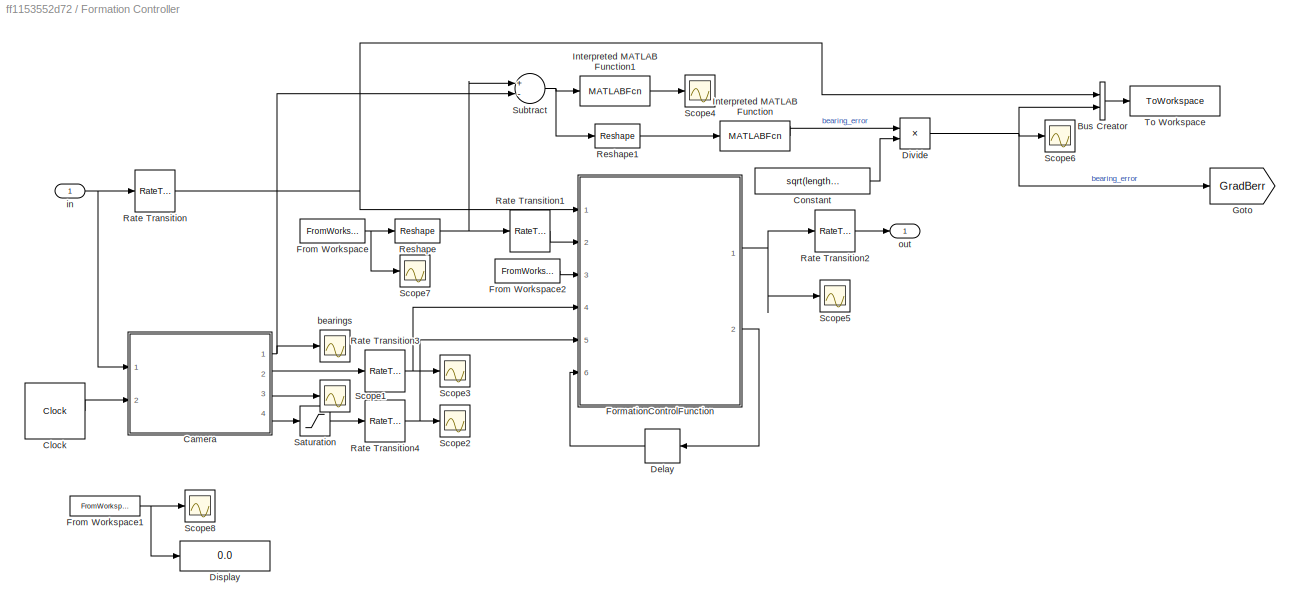
BLOCK [SubSystem] Formation Controller
  Ports = [1, 1]
  RequestExecContextInheritance = off
BLOCK [BusCreator] Formation Controller/Bus Creator
  DisplayOption = bar
  InheritFromInputs = on
  Inputs = 2
  Ports = [2, 1]
BLOCK [SubSystem] Formation Controller/Camera
  ErrorFcn = Stateflow.Translate.translate
  PermitHierarchicalResolution = ExplicitOnly
  Ports = [2, 4]
  RequestExecContextInheritance = off
  SFBlockType = MATLAB Function
  SystemSampleTime = sim_dt
  TreatAsAtomicUnit = on
BLOCK [Demux] Formation Controller/Camera/ Demux 
  Outputs = 1
  Ports = [1, 1]
BLOCK [S-Function] Formation Controller/Camera/ SFunction 
  EnableBusSupport = on
  FunctionName = sf_sfun
  Parameters = camera_noise,edges,rng_seed
  PortCounts = [2 5]
  Ports = [2, 5]
  SFcnIsStateOwnerBlock = off
  SFunctionDeploymentMode = off
  Tag = Stateflow S-Function 17
BLOCK [Terminator] Formation Controller/Camera/ Terminator 
BLOCK [Inport] Formation Controller/Camera/States
  IconDisplay = Port number
BLOCK [Outport] Formation Controller/Camera/bearings
  IconDisplay = Port number
BLOCK [Outport] Formation Controller/Camera/depth
  IconDisplay = Port number
  Port = 3
BLOCK [Outport] Formation Controller/Camera/noisy_bearings
  IconDisplay = Port number
  Port = 2
BLOCK [Outport] Formation Controller/Camera/noisy_depth
  IconDisplay = Port number
  Port = 4
BLOCK [Inport] Formation Controller/Camera/t
  IconDisplay = Port number
  Port = 2
BLOCK [Clock] Formation Controller/Clock
  DisplayTime = on
BLOCK [Constant] Formation Controller/Constant
  Value = sqrt(length(edges))
BLOCK [Delay] Formation Controller/Delay
  DelayLength = 1
  InitialCondition = zeros(nDrones*4*N_p, 1)
  InputPortMap = u0
  Ports = [1, 1]
BLOCK [Display] Formation Controller/Display
  Decimation = 1
  Ports = [1]
BLOCK [Product] Formation Controller/Divide
  InputSameDT = off
  Inputs = */
  OutDataTypeStr = Inherit: Inherit via internal rule
  Ports = [2, 1]
  RndMeth = Floor
  SaturateOnIntegerOverflow = off
BLOCK [SubSystem] Formation Controller/FormationControlFunction
  ErrorFcn = Stateflow.Translate.translate
  PermitHierarchicalResolution = ExplicitOnly
  Ports = [6, 2]
  RequestExecContextInheritance = off
  SFBlockType = MATLAB Function
  TreatAsAtomicUnit = on
BLOCK [Demux] Formation Controller/FormationControlFunction/ Demux 
  Outputs = 1
  Ports = [1, 1]
BLOCK [S-Function] Formation Controller/FormationControlFunction/ SFunction 
  EnableBusSupport = on
  FunctionName = sf_sfun
  Parameters = N_p,control_type,dt_p,edges,nDrones
  PortCounts = [6 3]
  Ports = [6, 3]
  SFcnIsStateOwnerBlock = off
  SFunctionDeploymentMode = off
  Tag = Stateflow S-Function 26
BLOCK [Terminator] Formation Controller/FormationControlFunction/ Terminator 
BLOCK [Inport] Formation Controller/FormationControlFunction/B_desired
  IconDisplay = Port number
  Port = 2
BLOCK [Inport] Formation Controller/FormationControlFunction/B_forward
  IconDisplay = Port number
  Port = 3
BLOCK [Inport] Formation Controller/FormationControlFunction/B_measure
  IconDisplay = Port number
  Port = 4
BLOCK [Inport] Formation Controller/FormationControlFunction/d_measure
  IconDisplay = Port number
  Port = 5
BLOCK [Inport] Formation Controller/FormationControlFunction/init_guess
  IconDisplay = Port number
  Port = 6
BLOCK [Outport] Formation Controller/FormationControlFunction/out
  IconDisplay = Port number
BLOCK [Outport] Formation Controller/FormationControlFunction/result
  IconDisplay = Port number
  Port = 2
BLOCK [Inport] Formation Controller/FormationControlFunction/states
  IconDisplay = Port number
BLOCK [FromWorkspace] Formation Controller/From Workspace
  OutputAfterFinalValue = Holding final value
  SampleTime = sim_dt
  VariableName = Bd_traj
  ZeroCross = on
BLOCK [FromWorkspace] Formation Controller/From Workspace1
  OutputAfterFinalValue = Holding final value
  SampleTime = sim_dt
  VariableName = Rigidity_traj
  ZeroCross = on
BLOCK [FromWorkspace] Formation Controller/From Workspace2
  OutputAfterFinalValue = Holding final value
  SampleTime = sim_dt
  VariableName = Bd_future
  ZeroCross = on
BLOCK [Goto] Formation Controller/Goto
  GotoTag = GradBerr
  TagVisibility = global
BLOCK [MATLABFcn] Formation Controller/Interpreted MATLAB Function
  MATLABFcn = norm(u)
  Ports = [1, 1]
BLOCK [MATLABFcn] Formation Controller/Interpreted MATLAB Function1
  MATLABFcn = vecnorm(u)
  Ports = [1, 1]
BLOCK [RateTransition] Formation Controller/Rate Transition
  OutPortSampleTime = 1/controller_rate
BLOCK [RateTransition] Formation Controller/Rate Transition1
  OutPortSampleTime = 1/controller_rate
BLOCK [RateTransition] Formation Controller/Rate Transition2
  OutPortSampleTime = sim_dt
BLOCK [RateTransition] Formation Controller/Rate Transition3
  OutPortSampleTime = 1/controller_rate
BLOCK [RateTransition] Formation Controller/Rate Transition4
  OutPortSampleTime = 1/controller_rate
BLOCK [Reshape] Formation Controller/Reshape
  OutputDimensionality = Customize
  OutputDimensions = [3,length(edges)]
  Ports = [1, 1]
BLOCK [Reshape] Formation Controller/Reshape1
  OutputDimensions = [3,length(edges)]
  Ports = [1, 1]
BLOCK [Saturate] Formation Controller/Saturation
  InputPortMap = u0
  LowerLimit = 0.2
  Ports = [1, 1]
  UpperLimit = 999999
BLOCK [Scope] Formation Controller/Scope1
  Floating = off
  NumInputPorts = 1
  Ports = [1]
  ScopeSpecificationString = Simulink.scopes.TimeScopeBlockCfg('CurrentConfiguration', extmgr.ConfigurationSet(extmgr.Configuration('Core','General UI',true),extmgr.Configuration('Core','Source UI',true),extmgr.Configuration('Sources','WiredSimulink',true,'DataLoggingVariableName','ScopeData2'),extmgr.Configuration('Visuals','Time Domain',true,'SerializedDisplays',{struct('MinYLimReal','0.97319','MaxYLimReal','3.18836','YLabe...<+1613ch>
BLOCK [Scope] Formation Controller/Scope2
  Floating = off
  NumInputPorts = 1
  Ports = [1]
  ScopeSpecificationString = Simulink.scopes.TimeScopeBlockCfg('CurrentConfiguration', extmgr.ConfigurationSet(extmgr.Configuration('Core','General UI',true,'FigureColor',[1 1 1]),extmgr.Configuration('Core','Source UI',true),extmgr.Configuration('Sources','WiredSimulink',true,'DataLoggingVariableName','ScopeData3'),extmgr.Configuration('Visuals','Time Domain',true,'SerializedDisplays',{struct('MinYLimReal','0.88849','MaxYLim...<+1624ch>
BLOCK [Scope] Formation Controller/Scope3
  Floating = off
  NumInputPorts = 1
  Ports = [1]
  ScopeSpecificationString = Simulink.scopes.TimeScopeBlockCfg('CurrentConfiguration', extmgr.ConfigurationSet(extmgr.Configuration('Core','General UI',true,'FigureColor',[1 1 1]),extmgr.Configuration('Core','Source UI',true),extmgr.Configuration('Sources','WiredSimulink',true,'DataLoggingVariableName','ScopeData4'),extmgr.Configuration('Visuals','Time Domain',true,'SerializedDisplays',{struct('MinYLimReal','-1.24991','MaxYLi...<+1819ch>
BLOCK [Scope] Formation Controller/Scope4
  Floating = off
  NumInputPorts = 1
  Ports = [1]
  ScopeSpecificationString = Simulink.scopes.TimeScopeBlockCfg('CurrentConfiguration', extmgr.ConfigurationSet(extmgr.Configuration('Core','General UI',true),extmgr.Configuration('Core','Source UI',true),extmgr.Configuration('Sources','WiredSimulink',true,'DataLoggingVariableName','ScopeData5'),extmgr.Configuration('Visuals','Time Domain',true,'SerializedDisplays',{struct('MinYLimReal','-0.24918','MaxYLimReal','2.24266','YLab...<+2234ch>
BLOCK [Scope] Formation Controller/Scope5
  Floating = off
  NumInputPorts = 1
  Ports = [1]
  ScopeSpecificationString = Simulink.scopes.TimeScopeBlockCfg('CurrentConfiguration', extmgr.ConfigurationSet(extmgr.Configuration('Core','General UI',true),extmgr.Configuration('Core','Source UI',true),extmgr.Configuration('Sources','WiredSimulink',true,'DataLoggingVariableName','ScopeData2'),extmgr.Configuration('Visuals','Time Domain',true,'SerializedDisplays',{struct('MinYLimReal','-2.16715','MaxYLimReal','1.52138','YLab...<+1789ch>
BLOCK [Scope] Formation Controller/Scope6
  Floating = off
  NumInputPorts = 1
  Ports = [1]
  ScopeSpecificationString = Simulink.scopes.TimeScopeBlockCfg('CurrentConfiguration', extmgr.ConfigurationSet(extmgr.Configuration('Core','General UI',true,'DisplayFullSourceName',true),extmgr.Configuration('Core','Source UI',true),extmgr.Configuration('Sources','WiredSimulink',true,'DataLoggingVariableName','ScopeData3'),extmgr.Configuration('Visuals','Time Domain',true,'SerializedDisplays',{struct('MinYLimReal','-0.45247',...<+1747ch>
BLOCK [Scope] Formation Controller/Scope7
  Floating = off
  NumInputPorts = 1
  Ports = [1]
  ScopeSpecificationString = Simulink.scopes.TimeScopeBlockCfg('CurrentConfiguration', extmgr.ConfigurationSet(extmgr.Configuration('Core','General UI',true),extmgr.Configuration('Core','Source UI',true),extmgr.Configuration('Sources','WiredSimulink',true,'DataLoggingVariableName','ScopeData1'),extmgr.Configuration('Visuals','Time Domain',true,'SerializedDisplays',{struct('MinYLimReal','-1.24576','MaxYLimReal','1.24576','YLab...<+2156ch>
BLOCK [Scope] Formation Controller/Scope8
  Floating = off
  NumInputPorts = 1
  Ports = [1]
  ScopeSpecificationString = Simulink.scopes.TimeScopeBlockCfg('CurrentConfiguration', extmgr.ConfigurationSet(extmgr.Configuration('Core','General UI',true),extmgr.Configuration('Core','Source UI',true),extmgr.Configuration('Sources','WiredSimulink',true,'DataLoggingVariableName','ScopeData1'),extmgr.Configuration('Visuals','Time Domain',true,'SerializedDisplays',{struct('MinYLimReal','0.05104','MaxYLimReal','0.07144','YLabe...<+1440ch>
BLOCK [Sum] Formation Controller/Subtract
  InputSameDT = off
  Inputs = +-
  OutDataTypeStr = Inherit: Inherit via internal rule
  Ports = [2, 1]
  SaturateOnIntegerOverflow = off
BLOCK [ToWorkspace] Formation Controller/To Workspace
  FixptAsFi = on
  MaxDataPoints = inf
  Ports = [1]
  SampleTime = -1
  SaveFormat = Timeseries
  VariableName = Gradient
BLOCK [Scope] Formation Controller/bearings
  Floating = off
  NumInputPorts = 1
  Ports = [1]
  ScopeSpecificationString = Simulink.scopes.TimeScopeBlockCfg('CurrentConfiguration', extmgr.ConfigurationSet(extmgr.Configuration('Core','General UI',true,'FigureColor',[1 1 1]),extmgr.Configuration('Core','Source UI',true),extmgr.Configuration('Sources','WiredSimulink',true,'DataLoggingVariableName','ScopeData1'),extmgr.Configuration('Visuals','Time Domain',true,'SerializedDisplays',{struct('MinYLimReal','-1.24919','MaxYLi...<+2232ch>
BLOCK [Inport] Formation Controller/in
  IconDisplay = Port number
BLOCK [Outport] Formation Controller/out
  IconDisplay = Port number
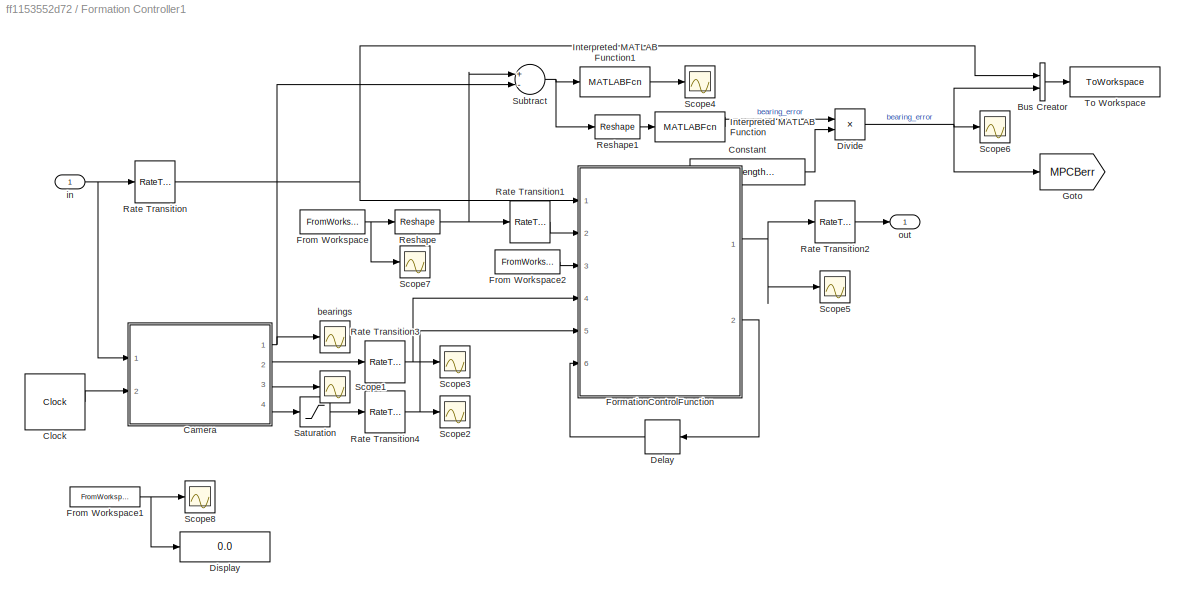
BLOCK [SubSystem] Formation Controller1
  Ports = [1, 1]
  RequestExecContextInheritance = off
BLOCK [BusCreator] Formation Controller1/Bus Creator
  DisplayOption = bar
  InheritFromInputs = on
  Inputs = 2
  Ports = [2, 1]
BLOCK [SubSystem] Formation Controller1/Camera
  ErrorFcn = Stateflow.Translate.translate
  PermitHierarchicalResolution = ExplicitOnly
  Ports = [2, 4]
  RequestExecContextInheritance = off
  SFBlockType = MATLAB Function
  SystemSampleTime = sim_dt
  TreatAsAtomicUnit = on
BLOCK [Demux] Formation Controller1/Camera/ Demux 
  Outputs = 1
  Ports = [1, 1]
BLOCK [S-Function] Formation Controller1/Camera/ SFunction 
  EnableBusSupport = on
  FunctionName = sf_sfun
  Parameters = camera_noise,edges,rng_seed
  PortCounts = [2 5]
  Ports = [2, 5]
  SFcnIsStateOwnerBlock = off
  SFunctionDeploymentMode = off
  Tag = Stateflow S-Function 57
BLOCK [Terminator] Formation Controller1/Camera/ Terminator 
BLOCK [Inport] Formation Controller1/Camera/States
  IconDisplay = Port number
BLOCK [Outport] Formation Controller1/Camera/bearings
  IconDisplay = Port number
BLOCK [Outport] Formation Controller1/Camera/depth
  IconDisplay = Port number
  Port = 3
BLOCK [Outport] Formation Controller1/Camera/noisy_bearings
  IconDisplay = Port number
  Port = 2
BLOCK [Outport] Formation Controller1/Camera/noisy_depth
  IconDisplay = Port number
  Port = 4
BLOCK [Inport] Formation Controller1/Camera/t
  IconDisplay = Port number
  Port = 2
BLOCK [Clock] Formation Controller1/Clock
  DisplayTime = on
BLOCK [Constant] Formation Controller1/Constant
  Value = sqrt(length(edges))
BLOCK [Delay] Formation Controller1/Delay
  DelayLength = 1
  InitialCondition = zeros(nDrones*4*N_p, 1)
  InputPortMap = u0
  Ports = [1, 1]
BLOCK [Display] Formation Controller1/Display
  Decimation = 1
  Ports = [1]
BLOCK [Product] Formation Controller1/Divide
  InputSameDT = off
  Inputs = */
  OutDataTypeStr = Inherit: Inherit via internal rule
  Ports = [2, 1]
  RndMeth = Floor
  SaturateOnIntegerOverflow = off
BLOCK [SubSystem] Formation Controller1/FormationControlFunction
  ErrorFcn = Stateflow.Translate.translate
  PermitHierarchicalResolution = ExplicitOnly
  Ports = [6, 2]
  RequestExecContextInheritance = off
  SFBlockType = MATLAB Function
  TreatAsAtomicUnit = on
BLOCK [Demux] Formation Controller1/FormationControlFunction/ Demux 
  Outputs = 1
  Ports = [1, 1]
BLOCK [S-Function] Formation Controller1/FormationControlFunction/ SFunction 
  EnableBusSupport = on
  FunctionName = sf_sfun
  Parameters = N_p,control_type,dt_p,edges,nDrones
  PortCounts = [6 3]
  Ports = [6, 3]
  SFcnIsStateOwnerBlock = off
  SFunctionDeploymentMode = off
  Tag = Stateflow S-Function 58
BLOCK [Terminator] Formation Controller1/FormationControlFunction/ Terminator 
BLOCK [Inport] Formation Controller1/FormationControlFunction/B_desired
  IconDisplay = Port number
  Port = 2
BLOCK [Inport] Formation Controller1/FormationControlFunction/B_forward
  IconDisplay = Port number
  Port = 3
BLOCK [Inport] Formation Controller1/FormationControlFunction/B_measure
  IconDisplay = Port number
  Port = 4
BLOCK [Inport] Formation Controller1/FormationControlFunction/d_measure
  IconDisplay = Port number
  Port = 5
BLOCK [Inport] Formation Controller1/FormationControlFunction/init_guess
  IconDisplay = Port number
  Port = 6
BLOCK [Outport] Formation Controller1/FormationControlFunction/out
  IconDisplay = Port number
BLOCK [Outport] Formation Controller1/FormationControlFunction/result
  IconDisplay = Port number
  Port = 2
BLOCK [Inport] Formation Controller1/FormationControlFunction/states
  IconDisplay = Port number
BLOCK [FromWorkspace] Formation Controller1/From Workspace
  OutputAfterFinalValue = Holding final value
  SampleTime = sim_dt
  VariableName = Bd_traj
  ZeroCross = on
BLOCK [FromWorkspace] Formation Controller1/From Workspace1
  OutputAfterFinalValue = Holding final value
  SampleTime = sim_dt
  VariableName = Rigidity_traj
  ZeroCross = on
BLOCK [FromWorkspace] Formation Controller1/From Workspace2
  OutputAfterFinalValue = Holding final value
  SampleTime = sim_dt
  VariableName = Bd_future
  ZeroCross = on
BLOCK [Goto] Formation Controller1/Goto
  GotoTag = MPCBerr
  TagVisibility = global
BLOCK [MATLABFcn] Formation Controller1/Interpreted MATLAB Function
  MATLABFcn = norm(u)
  Ports = [1, 1]
BLOCK [MATLABFcn] Formation Controller1/Interpreted MATLAB Function1
  MATLABFcn = vecnorm(u)
  Ports = [1, 1]
BLOCK [RateTransition] Formation Controller1/Rate Transition
  OutPortSampleTime = 1/controller_rate
BLOCK [RateTransition] Formation Controller1/Rate Transition1
  OutPortSampleTime = 1/controller_rate
BLOCK [RateTransition] Formation Controller1/Rate Transition2
  OutPortSampleTime = sim_dt
BLOCK [RateTransition] Formation Controller1/Rate Transition3
  OutPortSampleTime = 1/controller_rate
BLOCK [RateTransition] Formation Controller1/Rate Transition4
  OutPortSampleTime = 1/controller_rate
BLOCK [Reshape] Formation Controller1/Reshape
  OutputDimensionality = Customize
  OutputDimensions = [3,length(edges)]
  Ports = [1, 1]
BLOCK [Reshape] Formation Controller1/Reshape1
  OutputDimensions = [3,length(edges)]
  Ports = [1, 1]
BLOCK [Saturate] Formation Controller1/Saturation
  InputPortMap = u0
  LowerLimit = 0.2
  Ports = [1, 1]
  UpperLimit = 999999
BLOCK [Scope] Formation Controller1/Scope1
  Floating = off
  NumInputPorts = 1
  Ports = [1]
  ScopeSpecificationString = Simulink.scopes.TimeScopeBlockCfg('CurrentConfiguration', extmgr.ConfigurationSet(extmgr.Configuration('Core','General UI',true),extmgr.Configuration('Core','Source UI',true),extmgr.Configuration('Sources','WiredSimulink',true,'DataLoggingVariableName','ScopeData2'),extmgr.Configuration('Visuals','Time Domain',true,'SerializedDisplays',{struct('MinYLimReal','6.89781','MaxYLimReal','27.17126','YLab...<+1702ch>
BLOCK [Scope] Formation Controller1/Scope2
  Floating = off
  NumInputPorts = 1
  Ports = [1]
  ScopeSpecificationString = Simulink.scopes.TimeScopeBlockCfg('CurrentConfiguration', extmgr.ConfigurationSet(extmgr.Configuration('Core','General UI',true,'FigureColor',[1 1 1]),extmgr.Configuration('Core','Source UI',true),extmgr.Configuration('Sources','WiredSimulink',true,'DataLoggingVariableName','ScopeData3'),extmgr.Configuration('Visuals','Time Domain',true,'SerializedDisplays',{struct('MinYLimReal','0.7377','MaxYLimR...<+1788ch>
BLOCK [Scope] Formation Controller1/Scope3
  Floating = off
  NumInputPorts = 1
  Ports = [1]
  ScopeSpecificationString = Simulink.scopes.TimeScopeBlockCfg('CurrentConfiguration', extmgr.ConfigurationSet(extmgr.Configuration('Core','General UI',true,'FigureColor',[1 1 1]),extmgr.Configuration('Core','Source UI',true),extmgr.Configuration('Sources','WiredSimulink',true,'DataLoggingVariableName','ScopeData4'),extmgr.Configuration('Visuals','Time Domain',true,'SerializedDisplays',{struct('MinYLimReal','-1.18954','MaxYLi...<+2347ch>
BLOCK [Scope] Formation Controller1/Scope4
  Floating = off
  NumInputPorts = 1
  Ports = [1]
  ScopeSpecificationString = Simulink.scopes.TimeScopeBlockCfg('CurrentConfiguration', extmgr.ConfigurationSet(extmgr.Configuration('Core','General UI',true),extmgr.Configuration('Core','Source UI',true),extmgr.Configuration('Sources','WiredSimulink',true,'DataLoggingVariableName','ScopeData5'),extmgr.Configuration('Visuals','Time Domain',true,'SerializedDisplays',{struct('MinYLimReal','-0.24535','MaxYLimReal','2.20811','YLab...<+2280ch>
BLOCK [Scope] Formation Controller1/Scope5
  Floating = off
  NumInputPorts = 1
  Ports = [1]
  ScopeSpecificationString = Simulink.scopes.TimeScopeBlockCfg('CurrentConfiguration', extmgr.ConfigurationSet(extmgr.Configuration('Core','General UI',true),extmgr.Configuration('Core','Source UI',true),extmgr.Configuration('Sources','WiredSimulink',true,'DataLoggingVariableName','ScopeData2'),extmgr.Configuration('Visuals','Time Domain',true,'SerializedDisplays',{struct('MinYLimReal','-4.05434','MaxYLimReal','16.48917','YLa...<+1787ch>
BLOCK [Scope] Formation Controller1/Scope6
  Floating = off
  NumInputPorts = 1
  Ports = [1]
  ScopeSpecificationString = Simulink.scopes.TimeScopeBlockCfg('CurrentConfiguration', extmgr.ConfigurationSet(extmgr.Configuration('Core','General UI',true,'DisplayFullSourceName',true),extmgr.Configuration('Core','Source UI',true),extmgr.Configuration('Sources','WiredSimulink',true,'DataLoggingVariableName','ScopeData1'),extmgr.Configuration('Visuals','Time Domain',true,'SerializedDisplays',{struct('MinYLimReal','-0.45247',...<+1747ch>
BLOCK [Scope] Formation Controller1/Scope7
  Floating = off
  NumInputPorts = 1
  Ports = [1]
  ScopeSpecificationString = Simulink.scopes.TimeScopeBlockCfg('CurrentConfiguration', extmgr.ConfigurationSet(extmgr.Configuration('Core','General UI',true),extmgr.Configuration('Core','Source UI',true),extmgr.Configuration('Sources','WiredSimulink',true,'DataLoggingVariableName','ScopeData1'),extmgr.Configuration('Visuals','Time Domain',true,'SerializedDisplays',{struct('MinYLimReal','-1.24576','MaxYLimReal','1.24576','YLab...<+2156ch>
BLOCK [Scope] Formation Controller1/Scope8
  Floating = off
  NumInputPorts = 1
  Ports = [1]
  ScopeSpecificationString = Simulink.scopes.TimeScopeBlockCfg('CurrentConfiguration', extmgr.ConfigurationSet(extmgr.Configuration('Core','General UI',true),extmgr.Configuration('Core','Source UI',true),extmgr.Configuration('Sources','WiredSimulink',true,'DataLoggingVariableName','ScopeData1'),extmgr.Configuration('Visuals','Time Domain',true,'SerializedDisplays',{struct('MinYLimReal','0.20378','MaxYLimReal','0.40378','YLabe...<+1453ch>
BLOCK [Sum] Formation Controller1/Subtract
  InputSameDT = off
  Inputs = +-
  OutDataTypeStr = Inherit: Inherit via internal rule
  Ports = [2, 1]
  SaturateOnIntegerOverflow = off
BLOCK [ToWorkspace] Formation Controller1/To Workspace
  FixptAsFi = on
  MaxDataPoints = inf
  Ports = [1]
  SampleTime = -1
  SaveFormat = Timeseries
  VariableName = SimpleMPC
BLOCK [Scope] Formation Controller1/bearings
  Floating = off
  NumInputPorts = 1
  Ports = [1]
  ScopeSpecificationString = Simulink.scopes.TimeScopeBlockCfg('CurrentConfiguration', extmgr.ConfigurationSet(extmgr.Configuration('Core','General UI',true,'FigureColor',[1 1 1]),extmgr.Configuration('Core','Source UI',true),extmgr.Configuration('Sources','WiredSimulink',true,'DataLoggingVariableName','ScopeData1'),extmgr.Configuration('Visuals','Time Domain',true,'SerializedDisplays',{struct('MinYLimReal','-1.2488','MaxYLim...<+2230ch>
BLOCK [Inport] Formation Controller1/in
  IconDisplay = Port number
BLOCK [Outport] Formation Controller1/out
  IconDisplay = Port number
BLOCK [SubSystem] Formation Controller2
  Commented = on
  Ports = [1, 1]
  RequestExecContextInheritance = off
BLOCK [BusCreator] Formation Controller2/Bus Creator
  DisplayOption = bar
  InheritFromInputs = on
  Inputs = 2
  Ports = [2, 1]
BLOCK [SubSystem] Formation Controller2/Camera
  ErrorFcn = Stateflow.Translate.translate
  PermitHierarchicalResolution = ExplicitOnly
  Ports = [2, 4]
  RequestExecContextInheritance = off
  SFBlockType = MATLAB Function
  SystemSampleTime = sim_dt
  TreatAsAtomicUnit = on
BLOCK [Demux] Formation Controller2/Camera/ Demux 
  Outputs = 1
  Ports = [1, 1]
BLOCK [S-Function] Formation Controller2/Camera/ SFunction 
  EnableBusSupport = on
  FunctionName = sf_sfun
  Parameters = camera_noise,edges,rng_seed
  PortCounts = [2 5]
  Ports = [2, 5]
  SFcnIsStateOwnerBlock = off
  SFunctionDeploymentMode = off
  Tag = Stateflow S-Function 86
BLOCK [Terminator] Formation Controller2/Camera/ Terminator 
BLOCK [Inport] Formation Controller2/Camera/States
  IconDisplay = Port number
BLOCK [Outport] Formation Controller2/Camera/bearings
  IconDisplay = Port number
BLOCK [Outport] Formation Controller2/Camera/depth
  IconDisplay = Port number
  Port = 3
BLOCK [Outport] Formation Controller2/Camera/noisy_bearings
  IconDisplay = Port number
  Port = 2
BLOCK [Outport] Formation Controller2/Camera/noisy_depth
  IconDisplay = Port number
  Port = 4
BLOCK [Inport] Formation Controller2/Camera/t
  IconDisplay = Port number
  Port = 2
BLOCK [Clock] Formation Controller2/Clock
  DisplayTime = on
BLOCK [Delay] Formation Controller2/Delay
  DelayLength = 1
  InitialCondition = zeros(nDrones*4*N_p, 1)
  InputPortMap = u0
  Ports = [1, 1]
BLOCK [Display] Formation Controller2/Display
  Decimation = 1
  Ports = [1]
BLOCK [SubSystem] Formation Controller2/FormationControlFunction
  ErrorFcn = Stateflow.Translate.translate
  PermitHierarchicalResolution = ExplicitOnly
  Ports = [6, 2]
  RequestExecContextInheritance = off
  SFBlockType = MATLAB Function
  TreatAsAtomicUnit = on
BLOCK [Demux] Formation Controller2/FormationControlFunction/ Demux 
  Outputs = 1
  Ports = [1, 1]
BLOCK [S-Function] Formation Controller2/FormationControlFunction/ SFunction 
  EnableBusSupport = on
  FunctionName = sf_sfun
  Parameters = N_p,control_type,dt_p,edges,nDrones
  PortCounts = [6 3]
  Ports = [6, 3]
  SFcnIsStateOwnerBlock = off
  SFunctionDeploymentMode = off
  Tag = Stateflow S-Function 87
BLOCK [Terminator] Formation Controller2/FormationControlFunction/ Terminator 
BLOCK [Inport] Formation Controller2/FormationControlFunction/B_desired
  IconDisplay = Port number
  Port = 2
BLOCK [Inport] Formation Controller2/FormationControlFunction/B_forward
  IconDisplay = Port number
  Port = 3
BLOCK [Inport] Formation Controller2/FormationControlFunction/B_measure
  IconDisplay = Port number
  Port = 4
BLOCK [Inport] Formation Controller2/FormationControlFunction/d_measure
  IconDisplay = Port number
  Port = 5
BLOCK [Inport] Formation Controller2/FormationControlFunction/init_guess
  IconDisplay = Port number
  Port = 6
BLOCK [Outport] Formation Controller2/FormationControlFunction/out
  IconDisplay = Port number
BLOCK [Outport] Formation Controller2/FormationControlFunction/result
  IconDisplay = Port number
  Port = 2
BLOCK [Inport] Formation Controller2/FormationControlFunction/states
  IconDisplay = Port number
BLOCK [FromWorkspace] Formation Controller2/From Workspace
  OutputAfterFinalValue = Holding final value
  SampleTime = sim_dt
  VariableName = Bd_traj
  ZeroCross = on
BLOCK [FromWorkspace] Formation Controller2/From Workspace1
  OutputAfterFinalValue = Holding final value
  SampleTime = sim_dt
  VariableName = Rigidity_traj
  ZeroCross = on
BLOCK [FromWorkspace] Formation Controller2/From Workspace2
  OutputAfterFinalValue = Holding final value
  SampleTime = sim_dt
  VariableName = Bd_future
  ZeroCross = on
BLOCK [Goto] Formation Controller2/Goto
  GotoTag = CommMPCBerr
  TagVisibility = global
BLOCK [MATLABFcn] Formation Controller2/Interpreted MATLAB Function
  MATLABFcn = norm(u)
  Ports = [1, 1]
BLOCK [MATLABFcn] Formation Controller2/Interpreted MATLAB Function1
  MATLABFcn = vecnorm(u)
  Ports = [1, 1]
BLOCK [RateTransition] Formation Controller2/Rate Transition
  OutPortSampleTime = 1/controller_rate
BLOCK [RateTransition] Formation Controller2/Rate Transition1
  OutPortSampleTime = 1/controller_rate
BLOCK [RateTransition] Formation Controller2/Rate Transition2
  OutPortSampleTime = sim_dt
BLOCK [RateTransition] Formation Controller2/Rate Transition3
  OutPortSampleTime = 1/controller_rate
BLOCK [RateTransition] Formation Controller2/Rate Transition4
  OutPortSampleTime = 1/controller_rate
BLOCK [Reshape] Formation Controller2/Reshape
  OutputDimensionality = Customize
  OutputDimensions = [3,length(edges)]
  Ports = [1, 1]
BLOCK [Reshape] Formation Controller2/Reshape1
  OutputDimensions = [3,length(edges)]
  Ports = [1, 1]
BLOCK [Saturate] Formation Controller2/Saturation
  InputPortMap = u0
  LowerLimit = 0.2
  Ports = [1, 1]
  UpperLimit = 999999
BLOCK [Scope] Formation Controller2/Scope
  Floating = off
  NumInputPorts = 1
  Ports = [1]
  ScopeSpecificationString = Simulink.scopes.TimeScopeBlockCfg('CurrentConfiguration', extmgr.ConfigurationSet(extmgr.Configuration('Core','General UI',true,'FigureColor',[1 1 1]),extmgr.Configuration('Core','Source UI',true),extmgr.Configuration('Sources','WiredSimulink',true,'DataLoggingVariableName','ScopeData1'),extmgr.Configuration('Visuals','Time Domain',true,'SerializedDisplays',{struct('MinYLimReal','-1.18267','MaxYLi...<+2169ch>
BLOCK [Scope] Formation Controller2/Scope1
  Floating = off
  NumInputPorts = 1
  Ports = [1]
  ScopeSpecificationString = Simulink.scopes.TimeScopeBlockCfg('CurrentConfiguration', extmgr.ConfigurationSet(extmgr.Configuration('Core','General UI',true),extmgr.Configuration('Core','Source UI',true),extmgr.Configuration('Sources','WiredSimulink',true,'DataLoggingVariableName','ScopeData2'),extmgr.Configuration('Visuals','Time Domain',true,'SerializedDisplays',{struct('MinYLimReal','0.97319','MaxYLimReal','3.18836','YLabe...<+1613ch>
BLOCK [Scope] Formation Controller2/Scope2
  Floating = off
  NumInputPorts = 1
  Ports = [1]
  ScopeSpecificationString = Simulink.scopes.TimeScopeBlockCfg('CurrentConfiguration', extmgr.ConfigurationSet(extmgr.Configuration('Core','General UI',true,'FigureColor',[1 1 1]),extmgr.Configuration('Core','Source UI',true),extmgr.Configuration('Sources','WiredSimulink',true,'DataLoggingVariableName','ScopeData3'),extmgr.Configuration('Visuals','Time Domain',true,'SerializedDisplays',{struct('MinYLimReal','0.7377','MaxYLimR...<+1788ch>
BLOCK [Scope] Formation Controller2/Scope3
  Floating = off
  NumInputPorts = 1
  Ports = [1]
  ScopeSpecificationString = Simulink.scopes.TimeScopeBlockCfg('CurrentConfiguration', extmgr.ConfigurationSet(extmgr.Configuration('Core','General UI',true,'FigureColor',[1 1 1]),extmgr.Configuration('Core','Source UI',true),extmgr.Configuration('Sources','WiredSimulink',true,'DataLoggingVariableName','ScopeData4'),extmgr.Configuration('Visuals','Time Domain',true,'SerializedDisplays',{struct('MinYLimReal','-1.18954','MaxYLi...<+2347ch>
BLOCK [Scope] Formation Controller2/Scope4
  Floating = off
  NumInputPorts = 1
  Ports = [1]
  ScopeSpecificationString = Simulink.scopes.TimeScopeBlockCfg('CurrentConfiguration', extmgr.ConfigurationSet(extmgr.Configuration('Core','General UI',true),extmgr.Configuration('Core','Source UI',true),extmgr.Configuration('Sources','WiredSimulink',true,'DataLoggingVariableName','ScopeData5'),extmgr.Configuration('Visuals','Time Domain',true,'SerializedDisplays',{struct('MinYLimReal','-0.07886','MaxYLimReal','2.02121','YLab...<+1995ch>
BLOCK [Scope] Formation Controller2/Scope5
  Floating = off
  NumInputPorts = 1
  Ports = [1]
  ScopeSpecificationString = Simulink.scopes.TimeScopeBlockCfg('CurrentConfiguration', extmgr.ConfigurationSet(extmgr.Configuration('Core','General UI',true),extmgr.Configuration('Core','Source UI',true),extmgr.Configuration('Sources','WiredSimulink',true,'DataLoggingVariableName','ScopeData2'),extmgr.Configuration('Visuals','Time Domain',true,'SerializedDisplays',{struct('MinYLimReal','-0.35094','MaxYLimReal','0.33318','YLab...<+1876ch>
BLOCK [Scope] Formation Controller2/Scope6
  Floating = off
  NumInputPorts = 1
  Ports = [1]
  ScopeSpecificationString = Simulink.scopes.TimeScopeBlockCfg('CurrentConfiguration', extmgr.ConfigurationSet(extmgr.Configuration('Core','General UI',true,'DisplayFullSourceName',true),extmgr.Configuration('Core','Source UI',true),extmgr.Configuration('Sources','WiredSimulink',true,'DataLoggingVariableName','ScopeData3'),extmgr.Configuration('Visuals','Time Domain',true,'SerializedDisplays',{struct('MinYLimReal','-0.45208',...<+1748ch>
BLOCK [Scope] Formation Controller2/Scope7
  Floating = off
  NumInputPorts = 1
  Ports = [1]
  ScopeSpecificationString = Simulink.scopes.TimeScopeBlockCfg('CurrentConfiguration', extmgr.ConfigurationSet(extmgr.Configuration('Core','General UI',true),extmgr.Configuration('Core','Source UI',true),extmgr.Configuration('Sources','WiredSimulink',true,'DataLoggingVariableName','ScopeData1'),extmgr.Configuration('Visuals','Time Domain',true,'SerializedDisplays',{struct('MinYLimReal','-1.22189','MaxYLimReal','1.22189','YLab...<+1736ch>
BLOCK [Scope] Formation Controller2/Scope8
  Floating = off
  NumInputPorts = 1
  Ports = [1]
  ScopeSpecificationString = Simulink.scopes.TimeScopeBlockCfg('CurrentConfiguration', extmgr.ConfigurationSet(extmgr.Configuration('Core','General UI',true),extmgr.Configuration('Core','Source UI',true),extmgr.Configuration('Sources','WiredSimulink',true,'DataLoggingVariableName','ScopeData1'),extmgr.Configuration('Visuals','Time Domain',true,'SerializedDisplays',{struct('MinYLimReal','0.20378','MaxYLimReal','0.40378','YLabe...<+1453ch>
BLOCK [Sum] Formation Controller2/Subtract
  InputSameDT = off
  Inputs = +-
  OutDataTypeStr = Inherit: Inherit via internal rule
  Ports = [2, 1]
  SaturateOnIntegerOverflow = off
BLOCK [ToWorkspace] Formation Controller2/To Workspace
  FixptAsFi = on
  MaxDataPoints = inf
  Ports = [1]
  SampleTime = -1
  SaveFormat = Timeseries
  VariableName = CommunicatingMPC
BLOCK [Inport] Formation Controller2/in
  IconDisplay = Port number
BLOCK [Outport] Formation Controller2/out
  IconDisplay = Port number
BLOCK [From] Gradient
  GotoTag = GradBerr
  TagVisibility = global
BLOCK [From] Gradient1
  GotoTag = MPCBerr
  TagVisibility = global
BLOCK [From] Gradient2
  Commented = on
  GotoTag = CommMPCBerr
  TagVisibility = global
BLOCK [Mux] Mux
  DisplayOption = bar
  Inputs = 3
  Ports = [3, 1]
BLOCK [Scope] Scope
  Floating = off
  NumInputPorts = 1
  Ports = [1]
  ScopeSpecificationString = Simulink.scopes.TimeScopeBlockCfg('CurrentConfiguration', extmgr.ConfigurationSet(extmgr.Configuration('Core','General UI',true),extmgr.Configuration('Core','Source UI',true),extmgr.Configuration('Sources','WiredSimulink',true,'DataLoggingVariableName','ScopeData1'),extmgr.Configuration('Visuals','Time Domain',true,'SerializedDisplays',{struct('MinYLimReal','-0.21848','MaxYLimReal','1.96632','YLab...<+1433ch>
ANNOTATION (root): ErskineMultiDroneFormation
ANNOTATION (root): This simulink model simulates formations of quadrotors using the ErskineSingleDrone.slx drone model. Each drone must have a unique name, which is automatically generated by Name = "DroneID" + "idx_offset" parameters. Each seperate formation should have n drones, with the IDs ranging from 1 to n; New formation controllers may be added and selected using the formation controller block "control_type"...<+312ch>
ANNOTATION   Quadrotor1/Quadrotor: Propeller Dynamics
ANNOTATION   Quadrotor1/Quadrotor: Quadrotor_dynamics
ANNOTATION   Quadrotor10/Quadrotor: Propeller Dynamics
ANNOTATION   Quadrotor10/Quadrotor: Quadrotor_dynamics
ANNOTATION   Quadrotor11/Quadrotor: Propeller Dynamics
ANNOTATION   Quadrotor11/Quadrotor: Quadrotor_dynamics
ANNOTATION   Quadrotor12/Quadrotor: Propeller Dynamics
ANNOTATION   Quadrotor12/Quadrotor: Quadrotor_dynamics
ANNOTATION   Quadrotor13/Quadrotor: Propeller Dynamics
ANNOTATION   Quadrotor13/Quadrotor: Quadrotor_dynamics
ANNOTATION   Quadrotor2/Quadrotor: Propeller Dynamics
ANNOTATION   Quadrotor2/Quadrotor: Quadrotor_dynamics
ANNOTATION   Quadrotor3/Quadrotor: Propeller Dynamics
ANNOTATION   Quadrotor3/Quadrotor: Quadrotor_dynamics
ANNOTATION   Quadrotor4/Quadrotor: Propeller Dynamics
ANNOTATION   Quadrotor4/Quadrotor: Quadrotor_dynamics
ANNOTATION   Quadrotor5/Quadrotor: Propeller Dynamics
ANNOTATION   Quadrotor5/Quadrotor: Quadrotor_dynamics
ANNOTATION   Quadrotor6/Quadrotor: Propeller Dynamics
ANNOTATION   Quadrotor6/Quadrotor: Quadrotor_dynamics
ANNOTATION   Quadrotor7/Quadrotor: Propeller Dynamics
ANNOTATION   Quadrotor7/Quadrotor: Quadrotor_dynamics
ANNOTATION   Quadrotor8/Quadrotor: Propeller Dynamics
ANNOTATION   Quadrotor8/Quadrotor: Quadrotor_dynamics
ANNOTATION   Quadrotor9/Quadrotor: Propeller Dynamics
ANNOTATION   Quadrotor9/Quadrotor: Quadrotor_dynamics
NET   Quadrotor1/Constant:1 ->   Quadrotor1/Display1:1,   Quadrotor1/ID:1
LINE   Quadrotor1/Controller/Controller:1 ->   Quadrotor1/Controller/Saturation:1
LINE   Quadrotor1/Controller/Controller:2 ->   Quadrotor1/Controller/Saturation1:1
LINE   Quadrotor1/Controller/Saturation1:1 ->   Quadrotor1/Controller/desired_prop_speed:2
LINE   Quadrotor1/Controller/Saturation:1 ->   Quadrotor1/Controller/desired_prop_speed:1
LINE   Quadrotor1/Controller/attitude:1 ->   Quadrotor1/Controller/Controller:4
LINE   Quadrotor1/Controller/desired_prop_speed:1 ->   Quadrotor1/Controller/prop_speeds:1
LINE   Quadrotor1/Controller/gyroscope:1 ->   Quadrotor1/Controller/Controller:5
LINE   Quadrotor1/Controller/input:1 ->   Quadrotor1/Controller/Controller:1
LINE   Quadrotor1/Controller/position:1 ->   Quadrotor1/Controller/Controller:2
LINE   Quadrotor1/Controller/velocity:1 ->   Quadrotor1/Controller/Controller:3
LINE   Quadrotor1/Controller:1 ->   Quadrotor1/Quadrotor:1
LINE   Quadrotor1/Mux:1 ->   Quadrotor1/Reshape:1
LINE   Quadrotor1/Quadrotor/Attitude/Attitude:1 ->   Quadrotor1/Quadrotor/Attitude/Normalize Vector:1
LINE   Quadrotor1/Quadrotor/Attitude/MATLAB Function1:1 ->   Quadrotor1/Quadrotor/Attitude/angular velocity:1
LINE   Quadrotor1/Quadrotor/Attitude/MATLAB Function:1 ->   Quadrotor1/Quadrotor/Attitude/Attitude:1
NET   Quadrotor1/Quadrotor/Attitude/Normalize Vector:1 ->   Quadrotor1/Quadrotor/Attitude/MATLAB Function:1,   Quadrotor1/Quadrotor/Attitude/attitude:1
NET   Quadrotor1/Quadrotor/Attitude/angular velocity:1 ->   Quadrotor1/Quadrotor/Attitude/MATLAB Function1:2,   Quadrotor1/Quadrotor/Attitude/MATLAB Function:2,   Quadrotor1/Quadrotor/Attitude/gyro:1
LINE   Quadrotor1/Quadrotor/Attitude/body moments:1 ->   Quadrotor1/Quadrotor/Attitude/MATLAB Function1:1
NET   Quadrotor1/Quadrotor/Attitude:1 ->   Quadrotor1/Quadrotor/Translation:1,   Quadrotor1/Quadrotor/world2drone_quaternion:1
LINE   Quadrotor1/Quadrotor/Attitude:2 ->   Quadrotor1/Quadrotor/gyro:1
LINE   Quadrotor1/Quadrotor/ESC:1 ->   Quadrotor1/Quadrotor/prop_speed:1
NET   Quadrotor1/Quadrotor/Translation/MATLAB Function1:1 ->   Quadrotor1/Quadrotor/Translation/MATLAB Function:2,   Quadrotor1/Quadrotor/Translation/Matrix Divide1:1,   Quadrotor1/Quadrotor/Translation/Matrix Divide:1
NET   Quadrotor1/Quadrotor/Translation/MATLAB Function:1 ->   Quadrotor1/Quadrotor/Translation/Matrix Divide1:2,   Quadrotor1/Quadrotor/Translation/velocity:1
LINE   Quadrotor1/Quadrotor/Translation/Matrix Divide1:1 ->   Quadrotor1/Quadrotor/Translation/body_a:1
LINE   Quadrotor1/Quadrotor/Translation/Matrix Divide:1 ->   Quadrotor1/Quadrotor/Translation/body_v:1
LINE   Quadrotor1/Quadrotor/Translation/attitude:1 ->   Quadrotor1/Quadrotor/Translation/MATLAB Function1:1
LINE   Quadrotor1/Quadrotor/Translation/position:1 ->   Quadrotor1/Quadrotor/Translation/p:1
LINE   Quadrotor1/Quadrotor/Translation/thrust:1 ->   Quadrotor1/Quadrotor/Translation/MATLAB Function:1
NET   Quadrotor1/Quadrotor/Translation/velocity:1 ->   Quadrotor1/Quadrotor/Translation/Matrix Divide:2,   Quadrotor1/Quadrotor/Translation/position:1,   Quadrotor1/Quadrotor/Translation/v:1
LINE   Quadrotor1/Quadrotor/Translation:1 ->   Quadrotor1/Quadrotor/p_world:1
LINE   Quadrotor1/Quadrotor/Translation:2 ->   Quadrotor1/Quadrotor/Scope:1
LINE   Quadrotor1/Quadrotor/Translation:3 ->   Quadrotor1/Quadrotor/v_body:1
LINE   Quadrotor1/Quadrotor/Translation:4 ->   Quadrotor1/Quadrotor/a_body:1
NET   Quadrotor1/Quadrotor/calculate_wrench:1 ->   Quadrotor1/Quadrotor/Translation:2,   Quadrotor1/Quadrotor/thrust:1,   Quadrotor1/Quadrotor/wrench_scope:1
NET   Quadrotor1/Quadrotor/calculate_wrench:2 ->   Quadrotor1/Quadrotor/Attitude:1,   Quadrotor1/Quadrotor/wrench_scope:2
LINE   Quadrotor1/Quadrotor/desired_propellor_speeds:1 ->   Quadrotor1/Quadrotor/ESC:1
NET   Quadrotor1/Quadrotor/prop_speed:1 ->   Quadrotor1/Quadrotor/ESC:2,   Quadrotor1/Quadrotor/calculate_wrench:1,   Quadrotor1/Quadrotor/prop_speed_scope:1
NET   Quadrotor1/Quadrotor:1 ->   Quadrotor1/Mux:1,   Quadrotor1/P:1,   Quadrotor1/Positon:1,   Quadrotor1/add_noise:4
NET   Quadrotor1/Quadrotor:2 ->   Quadrotor1/Mux:2,   Quadrotor1/V:1,   Quadrotor1/add_noise:3,   Quadrotor1/body_velocity:1
NET   Quadrotor1/Quadrotor:3 ->   Quadrotor1/A:1,   Quadrotor1/Mux:3,   Quadrotor1/body acceleration:1
NET   Quadrotor1/Quadrotor:4 ->   Quadrotor1/Mux:4,   Quadrotor1/Q:1,   Quadrotor1/add_noise:2,   Quadrotor1/attitude (q):1
NET   Quadrotor1/Quadrotor:5 ->   Quadrotor1/Mux:5,   Quadrotor1/Om:1,   Quadrotor1/add_noise:1,   Quadrotor1/omega:1
LINE   Quadrotor1/Quadrotor:6 ->   Quadrotor1/Mux:6
LINE   Quadrotor1/Reshape:1 ->   Quadrotor1/To Workspace:1
LINE   Quadrotor1/String Constant:1 ->   Quadrotor1/Display:1
LINE   Quadrotor1/add_noise:1 ->   Quadrotor1/Controller:1
LINE   Quadrotor1/add_noise:2 ->   Quadrotor1/Controller:2
LINE   Quadrotor1/add_noise:3 ->   Quadrotor1/Controller:3
LINE   Quadrotor1/add_noise:4 ->   Quadrotor1/Controller:4
LINE   Quadrotor1/input:1 ->   Quadrotor1/Controller:5
NET   Quadrotor10/Constant:1 ->   Quadrotor10/Display1:1,   Quadrotor10/ID:1
LINE   Quadrotor10/Controller/Controller:1 ->   Quadrotor10/Controller/Saturation:1
LINE   Quadrotor10/Controller/Controller:2 ->   Quadrotor10/Controller/Saturation1:1
LINE   Quadrotor10/Controller/Saturation1:1 ->   Quadrotor10/Controller/desired_prop_speed:2
LINE   Quadrotor10/Controller/Saturation:1 ->   Quadrotor10/Controller/desired_prop_speed:1
LINE   Quadrotor10/Controller/attitude:1 ->   Quadrotor10/Controller/Controller:4
LINE   Quadrotor10/Controller/desired_prop_speed:1 ->   Quadrotor10/Controller/prop_speeds:1
LINE   Quadrotor10/Controller/gyroscope:1 ->   Quadrotor10/Controller/Controller:5
LINE   Quadrotor10/Controller/input:1 ->   Quadrotor10/Controller/Controller:1
LINE   Quadrotor10/Controller/position:1 ->   Quadrotor10/Controller/Controller:2
LINE   Quadrotor10/Controller/velocity:1 ->   Quadrotor10/Controller/Controller:3
LINE   Quadrotor10/Controller:1 ->   Quadrotor10/Quadrotor:1
LINE   Quadrotor10/Mux:1 ->   Quadrotor10/Reshape:1
LINE   Quadrotor10/Quadrotor/Attitude/Attitude:1 ->   Quadrotor10/Quadrotor/Attitude/Normalize Vector:1
LINE   Quadrotor10/Quadrotor/Attitude/MATLAB Function1:1 ->   Quadrotor10/Quadrotor/Attitude/angular velocity:1
LINE   Quadrotor10/Quadrotor/Attitude/MATLAB Function:1 ->   Quadrotor10/Quadrotor/Attitude/Attitude:1
NET   Quadrotor10/Quadrotor/Attitude/Normalize Vector:1 ->   Quadrotor10/Quadrotor/Attitude/MATLAB Function:1,   Quadrotor10/Quadrotor/Attitude/attitude:1
NET   Quadrotor10/Quadrotor/Attitude/angular velocity:1 ->   Quadrotor10/Quadrotor/Attitude/MATLAB Function1:2,   Quadrotor10/Quadrotor/Attitude/MATLAB Function:2,   Quadrotor10/Quadrotor/Attitude/gyro:1
LINE   Quadrotor10/Quadrotor/Attitude/body moments:1 ->   Quadrotor10/Quadrotor/Attitude/MATLAB Function1:1
NET   Quadrotor10/Quadrotor/Attitude:1 ->   Quadrotor10/Quadrotor/Translation:1,   Quadrotor10/Quadrotor/world2drone_quaternion:1
LINE   Quadrotor10/Quadrotor/Attitude:2 ->   Quadrotor10/Quadrotor/gyro:1
LINE   Quadrotor10/Quadrotor/ESC:1 ->   Quadrotor10/Quadrotor/prop_speed:1
NET   Quadrotor10/Quadrotor/Translation/MATLAB Function1:1 ->   Quadrotor10/Quadrotor/Translation/MATLAB Function:2,   Quadrotor10/Quadrotor/Translation/Matrix Divide1:1,   Quadrotor10/Quadrotor/Translation/Matrix Divide:1
NET   Quadrotor10/Quadrotor/Translation/MATLAB Function:1 ->   Quadrotor10/Quadrotor/Translation/Matrix Divide1:2,   Quadrotor10/Quadrotor/Translation/velocity:1
LINE   Quadrotor10/Quadrotor/Translation/Matrix Divide1:1 ->   Quadrotor10/Quadrotor/Translation/body_a:1
LINE   Quadrotor10/Quadrotor/Translation/Matrix Divide:1 ->   Quadrotor10/Quadrotor/Translation/body_v:1
LINE   Quadrotor10/Quadrotor/Translation/attitude:1 ->   Quadrotor10/Quadrotor/Translation/MATLAB Function1:1
LINE   Quadrotor10/Quadrotor/Translation/position:1 ->   Quadrotor10/Quadrotor/Translation/p:1
LINE   Quadrotor10/Quadrotor/Translation/thrust:1 ->   Quadrotor10/Quadrotor/Translation/MATLAB Function:1
NET   Quadrotor10/Quadrotor/Translation/velocity:1 ->   Quadrotor10/Quadrotor/Translation/Matrix Divide:2,   Quadrotor10/Quadrotor/Translation/position:1,   Quadrotor10/Quadrotor/Translation/v:1
LINE   Quadrotor10/Quadrotor/Translation:1 ->   Quadrotor10/Quadrotor/p_world:1
LINE   Quadrotor10/Quadrotor/Translation:2 ->   Quadrotor10/Quadrotor/Scope:1
LINE   Quadrotor10/Quadrotor/Translation:3 ->   Quadrotor10/Quadrotor/v_body:1
LINE   Quadrotor10/Quadrotor/Translation:4 ->   Quadrotor10/Quadrotor/a_body:1
NET   Quadrotor10/Quadrotor/calculate_wrench:1 ->   Quadrotor10/Quadrotor/Translation:2,   Quadrotor10/Quadrotor/thrust:1,   Quadrotor10/Quadrotor/wrench_scope:1
NET   Quadrotor10/Quadrotor/calculate_wrench:2 ->   Quadrotor10/Quadrotor/Attitude:1,   Quadrotor10/Quadrotor/wrench_scope:2
LINE   Quadrotor10/Quadrotor/desired_propellor_speeds:1 ->   Quadrotor10/Quadrotor/ESC:1
NET   Quadrotor10/Quadrotor/prop_speed:1 ->   Quadrotor10/Quadrotor/ESC:2,   Quadrotor10/Quadrotor/calculate_wrench:1,   Quadrotor10/Quadrotor/prop_speed_scope:1
NET   Quadrotor10/Quadrotor:1 ->   Quadrotor10/Mux:1,   Quadrotor10/P:1,   Quadrotor10/Positon:1,   Quadrotor10/add_noise:4
NET   Quadrotor10/Quadrotor:2 ->   Quadrotor10/Mux:2,   Quadrotor10/V:1,   Quadrotor10/add_noise:3,   Quadrotor10/body_velocity:1
NET   Quadrotor10/Quadrotor:3 ->   Quadrotor10/A:1,   Quadrotor10/Mux:3,   Quadrotor10/body acceleration:1
NET   Quadrotor10/Quadrotor:4 ->   Quadrotor10/Mux:4,   Quadrotor10/Q:1,   Quadrotor10/add_noise:2,   Quadrotor10/attitude (q):1
NET   Quadrotor10/Quadrotor:5 ->   Quadrotor10/Mux:5,   Quadrotor10/Om:1,   Quadrotor10/add_noise:1,   Quadrotor10/omega:1
LINE   Quadrotor10/Quadrotor:6 ->   Quadrotor10/Mux:6
LINE   Quadrotor10/Reshape:1 ->   Quadrotor10/To Workspace:1
LINE   Quadrotor10/String Constant:1 ->   Quadrotor10/Display:1
LINE   Quadrotor10/add_noise:1 ->   Quadrotor10/Controller:1
LINE   Quadrotor10/add_noise:2 ->   Quadrotor10/Controller:2
LINE   Quadrotor10/add_noise:3 ->   Quadrotor10/Controller:3
LINE   Quadrotor10/add_noise:4 ->   Quadrotor10/Controller:4
LINE   Quadrotor10/input:1 ->   Quadrotor10/Controller:5
LINE   Quadrotor10:1 -> Bus Creator12:1
LINE   Quadrotor10:2 -> Bus Creator12:2
LINE   Quadrotor10:3 -> Bus Creator12:3
LINE   Quadrotor10:4 -> Bus Creator12:4
LINE   Quadrotor10:5 -> Bus Creator12:5
LINE   Quadrotor10:6 -> Bus Creator12:6
NET   Quadrotor11/Constant:1 ->   Quadrotor11/Display1:1,   Quadrotor11/ID:1
LINE   Quadrotor11/Controller/Controller:1 ->   Quadrotor11/Controller/Saturation:1
LINE   Quadrotor11/Controller/Controller:2 ->   Quadrotor11/Controller/Saturation1:1
LINE   Quadrotor11/Controller/Saturation1:1 ->   Quadrotor11/Controller/desired_prop_speed:2
LINE   Quadrotor11/Controller/Saturation:1 ->   Quadrotor11/Controller/desired_prop_speed:1
LINE   Quadrotor11/Controller/attitude:1 ->   Quadrotor11/Controller/Controller:4
LINE   Quadrotor11/Controller/desired_prop_speed:1 ->   Quadrotor11/Controller/prop_speeds:1
LINE   Quadrotor11/Controller/gyroscope:1 ->   Quadrotor11/Controller/Controller:5
LINE   Quadrotor11/Controller/input:1 ->   Quadrotor11/Controller/Controller:1
LINE   Quadrotor11/Controller/position:1 ->   Quadrotor11/Controller/Controller:2
LINE   Quadrotor11/Controller/velocity:1 ->   Quadrotor11/Controller/Controller:3
LINE   Quadrotor11/Controller:1 ->   Quadrotor11/Quadrotor:1
LINE   Quadrotor11/Mux:1 ->   Quadrotor11/Reshape:1
LINE   Quadrotor11/Quadrotor/Attitude/Attitude:1 ->   Quadrotor11/Quadrotor/Attitude/Normalize Vector:1
LINE   Quadrotor11/Quadrotor/Attitude/MATLAB Function1:1 ->   Quadrotor11/Quadrotor/Attitude/angular velocity:1
LINE   Quadrotor11/Quadrotor/Attitude/MATLAB Function:1 ->   Quadrotor11/Quadrotor/Attitude/Attitude:1
NET   Quadrotor11/Quadrotor/Attitude/Normalize Vector:1 ->   Quadrotor11/Quadrotor/Attitude/MATLAB Function:1,   Quadrotor11/Quadrotor/Attitude/attitude:1
NET   Quadrotor11/Quadrotor/Attitude/angular velocity:1 ->   Quadrotor11/Quadrotor/Attitude/MATLAB Function1:2,   Quadrotor11/Quadrotor/Attitude/MATLAB Function:2,   Quadrotor11/Quadrotor/Attitude/gyro:1
LINE   Quadrotor11/Quadrotor/Attitude/body moments:1 ->   Quadrotor11/Quadrotor/Attitude/MATLAB Function1:1
NET   Quadrotor11/Quadrotor/Attitude:1 ->   Quadrotor11/Quadrotor/Translation:1,   Quadrotor11/Quadrotor/world2drone_quaternion:1
LINE   Quadrotor11/Quadrotor/Attitude:2 ->   Quadrotor11/Quadrotor/gyro:1
LINE   Quadrotor11/Quadrotor/ESC:1 ->   Quadrotor11/Quadrotor/prop_speed:1
NET   Quadrotor11/Quadrotor/Translation/MATLAB Function1:1 ->   Quadrotor11/Quadrotor/Translation/MATLAB Function:2,   Quadrotor11/Quadrotor/Translation/Matrix Divide1:1,   Quadrotor11/Quadrotor/Translation/Matrix Divide:1
NET   Quadrotor11/Quadrotor/Translation/MATLAB Function:1 ->   Quadrotor11/Quadrotor/Translation/Matrix Divide1:2,   Quadrotor11/Quadrotor/Translation/velocity:1
LINE   Quadrotor11/Quadrotor/Translation/Matrix Divide1:1 ->   Quadrotor11/Quadrotor/Translation/body_a:1
LINE   Quadrotor11/Quadrotor/Translation/Matrix Divide:1 ->   Quadrotor11/Quadrotor/Translation/body_v:1
LINE   Quadrotor11/Quadrotor/Translation/attitude:1 ->   Quadrotor11/Quadrotor/Translation/MATLAB Function1:1
LINE   Quadrotor11/Quadrotor/Translation/position:1 ->   Quadrotor11/Quadrotor/Translation/p:1
LINE   Quadrotor11/Quadrotor/Translation/thrust:1 ->   Quadrotor11/Quadrotor/Translation/MATLAB Function:1
NET   Quadrotor11/Quadrotor/Translation/velocity:1 ->   Quadrotor11/Quadrotor/Translation/Matrix Divide:2,   Quadrotor11/Quadrotor/Translation/position:1,   Quadrotor11/Quadrotor/Translation/v:1
LINE   Quadrotor11/Quadrotor/Translation:1 ->   Quadrotor11/Quadrotor/p_world:1
LINE   Quadrotor11/Quadrotor/Translation:2 ->   Quadrotor11/Quadrotor/Scope:1
LINE   Quadrotor11/Quadrotor/Translation:3 ->   Quadrotor11/Quadrotor/v_body:1
LINE   Quadrotor11/Quadrotor/Translation:4 ->   Quadrotor11/Quadrotor/a_body:1
NET   Quadrotor11/Quadrotor/calculate_wrench:1 ->   Quadrotor11/Quadrotor/Translation:2,   Quadrotor11/Quadrotor/thrust:1,   Quadrotor11/Quadrotor/wrench_scope:1
NET   Quadrotor11/Quadrotor/calculate_wrench:2 ->   Quadrotor11/Quadrotor/Attitude:1,   Quadrotor11/Quadrotor/wrench_scope:2
LINE   Quadrotor11/Quadrotor/desired_propellor_speeds:1 ->   Quadrotor11/Quadrotor/ESC:1
NET   Quadrotor11/Quadrotor/prop_speed:1 ->   Quadrotor11/Quadrotor/ESC:2,   Quadrotor11/Quadrotor/calculate_wrench:1,   Quadrotor11/Quadrotor/prop_speed_scope:1
NET   Quadrotor11/Quadrotor:1 ->   Quadrotor11/Mux:1,   Quadrotor11/P:1,   Quadrotor11/Positon:1,   Quadrotor11/add_noise:4
NET   Quadrotor11/Quadrotor:2 ->   Quadrotor11/Mux:2,   Quadrotor11/V:1,   Quadrotor11/add_noise:3,   Quadrotor11/body_velocity:1
NET   Quadrotor11/Quadrotor:3 ->   Quadrotor11/A:1,   Quadrotor11/Mux:3,   Quadrotor11/body acceleration:1
NET   Quadrotor11/Quadrotor:4 ->   Quadrotor11/Mux:4,   Quadrotor11/Q:1,   Quadrotor11/add_noise:2,   Quadrotor11/attitude (q):1
NET   Quadrotor11/Quadrotor:5 ->   Quadrotor11/Mux:5,   Quadrotor11/Om:1,   Quadrotor11/add_noise:1,   Quadrotor11/omega:1
LINE   Quadrotor11/Quadrotor:6 ->   Quadrotor11/Mux:6
LINE   Quadrotor11/Reshape:1 ->   Quadrotor11/To Workspace:1
LINE   Quadrotor11/String Constant:1 ->   Quadrotor11/Display:1
LINE   Quadrotor11/add_noise:1 ->   Quadrotor11/Controller:1
LINE   Quadrotor11/add_noise:2 ->   Quadrotor11/Controller:2
LINE   Quadrotor11/add_noise:3 ->   Quadrotor11/Controller:3
LINE   Quadrotor11/add_noise:4 ->   Quadrotor11/Controller:4
LINE   Quadrotor11/input:1 ->   Quadrotor11/Controller:5
LINE   Quadrotor11:1 -> Bus Creator13:1
LINE   Quadrotor11:2 -> Bus Creator13:2
LINE   Quadrotor11:3 -> Bus Creator13:3
LINE   Quadrotor11:4 -> Bus Creator13:4
LINE   Quadrotor11:5 -> Bus Creator13:5
LINE   Quadrotor11:6 -> Bus Creator13:6
NET   Quadrotor12/Constant:1 ->   Quadrotor12/Display1:1,   Quadrotor12/ID:1
LINE   Quadrotor12/Controller/Controller:1 ->   Quadrotor12/Controller/Saturation:1
LINE   Quadrotor12/Controller/Controller:2 ->   Quadrotor12/Controller/Saturation1:1
LINE   Quadrotor12/Controller/Saturation1:1 ->   Quadrotor12/Controller/desired_prop_speed:2
LINE   Quadrotor12/Controller/Saturation:1 ->   Quadrotor12/Controller/desired_prop_speed:1
LINE   Quadrotor12/Controller/attitude:1 ->   Quadrotor12/Controller/Controller:4
LINE   Quadrotor12/Controller/desired_prop_speed:1 ->   Quadrotor12/Controller/prop_speeds:1
LINE   Quadrotor12/Controller/gyroscope:1 ->   Quadrotor12/Controller/Controller:5
LINE   Quadrotor12/Controller/input:1 ->   Quadrotor12/Controller/Controller:1
LINE   Quadrotor12/Controller/position:1 ->   Quadrotor12/Controller/Controller:2
LINE   Quadrotor12/Controller/velocity:1 ->   Quadrotor12/Controller/Controller:3
LINE   Quadrotor12/Controller:1 ->   Quadrotor12/Quadrotor:1
LINE   Quadrotor12/Mux:1 ->   Quadrotor12/Reshape:1
LINE   Quadrotor12/Quadrotor/Attitude/Attitude:1 ->   Quadrotor12/Quadrotor/Attitude/Normalize Vector:1
LINE   Quadrotor12/Quadrotor/Attitude/MATLAB Function1:1 ->   Quadrotor12/Quadrotor/Attitude/angular velocity:1
LINE   Quadrotor12/Quadrotor/Attitude/MATLAB Function:1 ->   Quadrotor12/Quadrotor/Attitude/Attitude:1
NET   Quadrotor12/Quadrotor/Attitude/Normalize Vector:1 ->   Quadrotor12/Quadrotor/Attitude/MATLAB Function:1,   Quadrotor12/Quadrotor/Attitude/attitude:1
NET   Quadrotor12/Quadrotor/Attitude/angular velocity:1 ->   Quadrotor12/Quadrotor/Attitude/MATLAB Function1:2,   Quadrotor12/Quadrotor/Attitude/MATLAB Function:2,   Quadrotor12/Quadrotor/Attitude/gyro:1
LINE   Quadrotor12/Quadrotor/Attitude/body moments:1 ->   Quadrotor12/Quadrotor/Attitude/MATLAB Function1:1
NET   Quadrotor12/Quadrotor/Attitude:1 ->   Quadrotor12/Quadrotor/Translation:1,   Quadrotor12/Quadrotor/world2drone_quaternion:1
LINE   Quadrotor12/Quadrotor/Attitude:2 ->   Quadrotor12/Quadrotor/gyro:1
LINE   Quadrotor12/Quadrotor/ESC:1 ->   Quadrotor12/Quadrotor/prop_speed:1
NET   Quadrotor12/Quadrotor/Translation/MATLAB Function1:1 ->   Quadrotor12/Quadrotor/Translation/MATLAB Function:2,   Quadrotor12/Quadrotor/Translation/Matrix Divide1:1,   Quadrotor12/Quadrotor/Translation/Matrix Divide:1
NET   Quadrotor12/Quadrotor/Translation/MATLAB Function:1 ->   Quadrotor12/Quadrotor/Translation/Matrix Divide1:2,   Quadrotor12/Quadrotor/Translation/velocity:1
LINE   Quadrotor12/Quadrotor/Translation/Matrix Divide1:1 ->   Quadrotor12/Quadrotor/Translation/body_a:1
LINE   Quadrotor12/Quadrotor/Translation/Matrix Divide:1 ->   Quadrotor12/Quadrotor/Translation/body_v:1
LINE   Quadrotor12/Quadrotor/Translation/attitude:1 ->   Quadrotor12/Quadrotor/Translation/MATLAB Function1:1
LINE   Quadrotor12/Quadrotor/Translation/position:1 ->   Quadrotor12/Quadrotor/Translation/p:1
LINE   Quadrotor12/Quadrotor/Translation/thrust:1 ->   Quadrotor12/Quadrotor/Translation/MATLAB Function:1
NET   Quadrotor12/Quadrotor/Translation/velocity:1 ->   Quadrotor12/Quadrotor/Translation/Matrix Divide:2,   Quadrotor12/Quadrotor/Translation/position:1,   Quadrotor12/Quadrotor/Translation/v:1
LINE   Quadrotor12/Quadrotor/Translation:1 ->   Quadrotor12/Quadrotor/p_world:1
LINE   Quadrotor12/Quadrotor/Translation:2 ->   Quadrotor12/Quadrotor/Scope:1
LINE   Quadrotor12/Quadrotor/Translation:3 ->   Quadrotor12/Quadrotor/v_body:1
LINE   Quadrotor12/Quadrotor/Translation:4 ->   Quadrotor12/Quadrotor/a_body:1
NET   Quadrotor12/Quadrotor/calculate_wrench:1 ->   Quadrotor12/Quadrotor/Translation:2,   Quadrotor12/Quadrotor/thrust:1,   Quadrotor12/Quadrotor/wrench_scope:1
NET   Quadrotor12/Quadrotor/calculate_wrench:2 ->   Quadrotor12/Quadrotor/Attitude:1,   Quadrotor12/Quadrotor/wrench_scope:2
LINE   Quadrotor12/Quadrotor/desired_propellor_speeds:1 ->   Quadrotor12/Quadrotor/ESC:1
NET   Quadrotor12/Quadrotor/prop_speed:1 ->   Quadrotor12/Quadrotor/ESC:2,   Quadrotor12/Quadrotor/calculate_wrench:1,   Quadrotor12/Quadrotor/prop_speed_scope:1
NET   Quadrotor12/Quadrotor:1 ->   Quadrotor12/Mux:1,   Quadrotor12/P:1,   Quadrotor12/Positon:1,   Quadrotor12/add_noise:4
NET   Quadrotor12/Quadrotor:2 ->   Quadrotor12/Mux:2,   Quadrotor12/V:1,   Quadrotor12/add_noise:3,   Quadrotor12/body_velocity:1
NET   Quadrotor12/Quadrotor:3 ->   Quadrotor12/A:1,   Quadrotor12/Mux:3,   Quadrotor12/body acceleration:1
NET   Quadrotor12/Quadrotor:4 ->   Quadrotor12/Mux:4,   Quadrotor12/Q:1,   Quadrotor12/add_noise:2,   Quadrotor12/attitude (q):1
NET   Quadrotor12/Quadrotor:5 ->   Quadrotor12/Mux:5,   Quadrotor12/Om:1,   Quadrotor12/add_noise:1,   Quadrotor12/omega:1
LINE   Quadrotor12/Quadrotor:6 ->   Quadrotor12/Mux:6
LINE   Quadrotor12/Reshape:1 ->   Quadrotor12/To Workspace:1
LINE   Quadrotor12/String Constant:1 ->   Quadrotor12/Display:1
LINE   Quadrotor12/add_noise:1 ->   Quadrotor12/Controller:1
LINE   Quadrotor12/add_noise:2 ->   Quadrotor12/Controller:2
LINE   Quadrotor12/add_noise:3 ->   Quadrotor12/Controller:3
LINE   Quadrotor12/add_noise:4 ->   Quadrotor12/Controller:4
LINE   Quadrotor12/input:1 ->   Quadrotor12/Controller:5
LINE   Quadrotor12:1 -> Bus Creator14:1
LINE   Quadrotor12:2 -> Bus Creator14:2
LINE   Quadrotor12:3 -> Bus Creator14:3
LINE   Quadrotor12:4 -> Bus Creator14:4
LINE   Quadrotor12:5 -> Bus Creator14:5
LINE   Quadrotor12:6 -> Bus Creator14:6
NET   Quadrotor13/Constant:1 ->   Quadrotor13/Display1:1,   Quadrotor13/ID:1
LINE   Quadrotor13/Controller/Controller:1 ->   Quadrotor13/Controller/Saturation:1
LINE   Quadrotor13/Controller/Controller:2 ->   Quadrotor13/Controller/Saturation1:1
LINE   Quadrotor13/Controller/Saturation1:1 ->   Quadrotor13/Controller/desired_prop_speed:2
LINE   Quadrotor13/Controller/Saturation:1 ->   Quadrotor13/Controller/desired_prop_speed:1
LINE   Quadrotor13/Controller/attitude:1 ->   Quadrotor13/Controller/Controller:4
LINE   Quadrotor13/Controller/desired_prop_speed:1 ->   Quadrotor13/Controller/prop_speeds:1
LINE   Quadrotor13/Controller/gyroscope:1 ->   Quadrotor13/Controller/Controller:5
LINE   Quadrotor13/Controller/input:1 ->   Quadrotor13/Controller/Controller:1
LINE   Quadrotor13/Controller/position:1 ->   Quadrotor13/Controller/Controller:2
LINE   Quadrotor13/Controller/velocity:1 ->   Quadrotor13/Controller/Controller:3
LINE   Quadrotor13/Controller:1 ->   Quadrotor13/Quadrotor:1
LINE   Quadrotor13/Mux:1 ->   Quadrotor13/Reshape:1
LINE   Quadrotor13/Quadrotor/Attitude/Attitude:1 ->   Quadrotor13/Quadrotor/Attitude/Normalize Vector:1
LINE   Quadrotor13/Quadrotor/Attitude/MATLAB Function1:1 ->   Quadrotor13/Quadrotor/Attitude/angular velocity:1
LINE   Quadrotor13/Quadrotor/Attitude/MATLAB Function:1 ->   Quadrotor13/Quadrotor/Attitude/Attitude:1
NET   Quadrotor13/Quadrotor/Attitude/Normalize Vector:1 ->   Quadrotor13/Quadrotor/Attitude/MATLAB Function:1,   Quadrotor13/Quadrotor/Attitude/attitude:1
NET   Quadrotor13/Quadrotor/Attitude/angular velocity:1 ->   Quadrotor13/Quadrotor/Attitude/MATLAB Function1:2,   Quadrotor13/Quadrotor/Attitude/MATLAB Function:2,   Quadrotor13/Quadrotor/Attitude/gyro:1
LINE   Quadrotor13/Quadrotor/Attitude/body moments:1 ->   Quadrotor13/Quadrotor/Attitude/MATLAB Function1:1
NET   Quadrotor13/Quadrotor/Attitude:1 ->   Quadrotor13/Quadrotor/Translation:1,   Quadrotor13/Quadrotor/world2drone_quaternion:1
LINE   Quadrotor13/Quadrotor/Attitude:2 ->   Quadrotor13/Quadrotor/gyro:1
LINE   Quadrotor13/Quadrotor/ESC:1 ->   Quadrotor13/Quadrotor/prop_speed:1
NET   Quadrotor13/Quadrotor/Translation/MATLAB Function1:1 ->   Quadrotor13/Quadrotor/Translation/MATLAB Function:2,   Quadrotor13/Quadrotor/Translation/Matrix Divide1:1,   Quadrotor13/Quadrotor/Translation/Matrix Divide:1
NET   Quadrotor13/Quadrotor/Translation/MATLAB Function:1 ->   Quadrotor13/Quadrotor/Translation/Matrix Divide1:2,   Quadrotor13/Quadrotor/Translation/velocity:1
LINE   Quadrotor13/Quadrotor/Translation/Matrix Divide1:1 ->   Quadrotor13/Quadrotor/Translation/body_a:1
LINE   Quadrotor13/Quadrotor/Translation/Matrix Divide:1 ->   Quadrotor13/Quadrotor/Translation/body_v:1
LINE   Quadrotor13/Quadrotor/Translation/attitude:1 ->   Quadrotor13/Quadrotor/Translation/MATLAB Function1:1
LINE   Quadrotor13/Quadrotor/Translation/position:1 ->   Quadrotor13/Quadrotor/Translation/p:1
LINE   Quadrotor13/Quadrotor/Translation/thrust:1 ->   Quadrotor13/Quadrotor/Translation/MATLAB Function:1
NET   Quadrotor13/Quadrotor/Translation/velocity:1 ->   Quadrotor13/Quadrotor/Translation/Matrix Divide:2,   Quadrotor13/Quadrotor/Translation/position:1,   Quadrotor13/Quadrotor/Translation/v:1
LINE   Quadrotor13/Quadrotor/Translation:1 ->   Quadrotor13/Quadrotor/p_world:1
LINE   Quadrotor13/Quadrotor/Translation:2 ->   Quadrotor13/Quadrotor/Scope:1
LINE   Quadrotor13/Quadrotor/Translation:3 ->   Quadrotor13/Quadrotor/v_body:1
LINE   Quadrotor13/Quadrotor/Translation:4 ->   Quadrotor13/Quadrotor/a_body:1
NET   Quadrotor13/Quadrotor/calculate_wrench:1 ->   Quadrotor13/Quadrotor/Translation:2,   Quadrotor13/Quadrotor/thrust:1,   Quadrotor13/Quadrotor/wrench_scope:1
NET   Quadrotor13/Quadrotor/calculate_wrench:2 ->   Quadrotor13/Quadrotor/Attitude:1,   Quadrotor13/Quadrotor/wrench_scope:2
LINE   Quadrotor13/Quadrotor/desired_propellor_speeds:1 ->   Quadrotor13/Quadrotor/ESC:1
NET   Quadrotor13/Quadrotor/prop_speed:1 ->   Quadrotor13/Quadrotor/ESC:2,   Quadrotor13/Quadrotor/calculate_wrench:1,   Quadrotor13/Quadrotor/prop_speed_scope:1
NET   Quadrotor13/Quadrotor:1 ->   Quadrotor13/Mux:1,   Quadrotor13/P:1,   Quadrotor13/Positon:1,   Quadrotor13/add_noise:4
NET   Quadrotor13/Quadrotor:2 ->   Quadrotor13/Mux:2,   Quadrotor13/V:1,   Quadrotor13/add_noise:3,   Quadrotor13/body_velocity:1
NET   Quadrotor13/Quadrotor:3 ->   Quadrotor13/A:1,   Quadrotor13/Mux:3,   Quadrotor13/body acceleration:1
NET   Quadrotor13/Quadrotor:4 ->   Quadrotor13/Mux:4,   Quadrotor13/Q:1,   Quadrotor13/add_noise:2,   Quadrotor13/attitude (q):1
NET   Quadrotor13/Quadrotor:5 ->   Quadrotor13/Mux:5,   Quadrotor13/Om:1,   Quadrotor13/add_noise:1,   Quadrotor13/omega:1
LINE   Quadrotor13/Quadrotor:6 ->   Quadrotor13/Mux:6
LINE   Quadrotor13/Reshape:1 ->   Quadrotor13/To Workspace:1
LINE   Quadrotor13/String Constant:1 ->   Quadrotor13/Display:1
LINE   Quadrotor13/add_noise:1 ->   Quadrotor13/Controller:1
LINE   Quadrotor13/add_noise:2 ->   Quadrotor13/Controller:2
LINE   Quadrotor13/add_noise:3 ->   Quadrotor13/Controller:3
LINE   Quadrotor13/add_noise:4 ->   Quadrotor13/Controller:4
LINE   Quadrotor13/input:1 ->   Quadrotor13/Controller:5
LINE   Quadrotor13:1 -> Bus Creator15:1
LINE   Quadrotor13:2 -> Bus Creator15:2
LINE   Quadrotor13:3 -> Bus Creator15:3
LINE   Quadrotor13:4 -> Bus Creator15:4
LINE   Quadrotor13:5 -> Bus Creator15:5
LINE   Quadrotor13:6 -> Bus Creator15:6
LINE   Quadrotor1:1 -> Bus Creator1:1
LINE   Quadrotor1:2 -> Bus Creator1:2
LINE   Quadrotor1:3 -> Bus Creator1:3
LINE   Quadrotor1:4 -> Bus Creator1:4
LINE   Quadrotor1:5 -> Bus Creator1:5
LINE   Quadrotor1:6 -> Bus Creator1:6
NET   Quadrotor2/Constant:1 ->   Quadrotor2/Display1:1,   Quadrotor2/ID:1
LINE   Quadrotor2/Controller/Controller:1 ->   Quadrotor2/Controller/Saturation:1
LINE   Quadrotor2/Controller/Controller:2 ->   Quadrotor2/Controller/Saturation1:1
LINE   Quadrotor2/Controller/Saturation1:1 ->   Quadrotor2/Controller/desired_prop_speed:2
LINE   Quadrotor2/Controller/Saturation:1 ->   Quadrotor2/Controller/desired_prop_speed:1
LINE   Quadrotor2/Controller/attitude:1 ->   Quadrotor2/Controller/Controller:4
LINE   Quadrotor2/Controller/desired_prop_speed:1 ->   Quadrotor2/Controller/prop_speeds:1
LINE   Quadrotor2/Controller/gyroscope:1 ->   Quadrotor2/Controller/Controller:5
LINE   Quadrotor2/Controller/input:1 ->   Quadrotor2/Controller/Controller:1
LINE   Quadrotor2/Controller/position:1 ->   Quadrotor2/Controller/Controller:2
LINE   Quadrotor2/Controller/velocity:1 ->   Quadrotor2/Controller/Controller:3
LINE   Quadrotor2/Controller:1 ->   Quadrotor2/Quadrotor:1
LINE   Quadrotor2/Mux:1 ->   Quadrotor2/Reshape:1
LINE   Quadrotor2/Quadrotor/Attitude/Attitude:1 ->   Quadrotor2/Quadrotor/Attitude/Normalize Vector:1
LINE   Quadrotor2/Quadrotor/Attitude/MATLAB Function1:1 ->   Quadrotor2/Quadrotor/Attitude/angular velocity:1
LINE   Quadrotor2/Quadrotor/Attitude/MATLAB Function:1 ->   Quadrotor2/Quadrotor/Attitude/Attitude:1
NET   Quadrotor2/Quadrotor/Attitude/Normalize Vector:1 ->   Quadrotor2/Quadrotor/Attitude/MATLAB Function:1,   Quadrotor2/Quadrotor/Attitude/attitude:1
NET   Quadrotor2/Quadrotor/Attitude/angular velocity:1 ->   Quadrotor2/Quadrotor/Attitude/MATLAB Function1:2,   Quadrotor2/Quadrotor/Attitude/MATLAB Function:2,   Quadrotor2/Quadrotor/Attitude/gyro:1
LINE   Quadrotor2/Quadrotor/Attitude/body moments:1 ->   Quadrotor2/Quadrotor/Attitude/MATLAB Function1:1
NET   Quadrotor2/Quadrotor/Attitude:1 ->   Quadrotor2/Quadrotor/Translation:1,   Quadrotor2/Quadrotor/world2drone_quaternion:1
LINE   Quadrotor2/Quadrotor/Attitude:2 ->   Quadrotor2/Quadrotor/gyro:1
LINE   Quadrotor2/Quadrotor/ESC:1 ->   Quadrotor2/Quadrotor/prop_speed:1
NET   Quadrotor2/Quadrotor/Translation/MATLAB Function1:1 ->   Quadrotor2/Quadrotor/Translation/MATLAB Function:2,   Quadrotor2/Quadrotor/Translation/Matrix Divide1:1,   Quadrotor2/Quadrotor/Translation/Matrix Divide:1
NET   Quadrotor2/Quadrotor/Translation/MATLAB Function:1 ->   Quadrotor2/Quadrotor/Translation/Matrix Divide1:2,   Quadrotor2/Quadrotor/Translation/velocity:1
LINE   Quadrotor2/Quadrotor/Translation/Matrix Divide1:1 ->   Quadrotor2/Quadrotor/Translation/body_a:1
LINE   Quadrotor2/Quadrotor/Translation/Matrix Divide:1 ->   Quadrotor2/Quadrotor/Translation/body_v:1
LINE   Quadrotor2/Quadrotor/Translation/attitude:1 ->   Quadrotor2/Quadrotor/Translation/MATLAB Function1:1
LINE   Quadrotor2/Quadrotor/Translation/position:1 ->   Quadrotor2/Quadrotor/Translation/p:1
LINE   Quadrotor2/Quadrotor/Translation/thrust:1 ->   Quadrotor2/Quadrotor/Translation/MATLAB Function:1
NET   Quadrotor2/Quadrotor/Translation/velocity:1 ->   Quadrotor2/Quadrotor/Translation/Matrix Divide:2,   Quadrotor2/Quadrotor/Translation/position:1,   Quadrotor2/Quadrotor/Translation/v:1
LINE   Quadrotor2/Quadrotor/Translation:1 ->   Quadrotor2/Quadrotor/p_world:1
LINE   Quadrotor2/Quadrotor/Translation:2 ->   Quadrotor2/Quadrotor/Scope:1
LINE   Quadrotor2/Quadrotor/Translation:3 ->   Quadrotor2/Quadrotor/v_body:1
LINE   Quadrotor2/Quadrotor/Translation:4 ->   Quadrotor2/Quadrotor/a_body:1
NET   Quadrotor2/Quadrotor/calculate_wrench:1 ->   Quadrotor2/Quadrotor/Translation:2,   Quadrotor2/Quadrotor/thrust:1,   Quadrotor2/Quadrotor/wrench_scope:1
NET   Quadrotor2/Quadrotor/calculate_wrench:2 ->   Quadrotor2/Quadrotor/Attitude:1,   Quadrotor2/Quadrotor/wrench_scope:2
LINE   Quadrotor2/Quadrotor/desired_propellor_speeds:1 ->   Quadrotor2/Quadrotor/ESC:1
NET   Quadrotor2/Quadrotor/prop_speed:1 ->   Quadrotor2/Quadrotor/ESC:2,   Quadrotor2/Quadrotor/calculate_wrench:1,   Quadrotor2/Quadrotor/prop_speed_scope:1
NET   Quadrotor2/Quadrotor:1 ->   Quadrotor2/Mux:1,   Quadrotor2/P:1,   Quadrotor2/Positon:1,   Quadrotor2/add_noise:4
NET   Quadrotor2/Quadrotor:2 ->   Quadrotor2/Mux:2,   Quadrotor2/V:1,   Quadrotor2/add_noise:3,   Quadrotor2/body_velocity:1
NET   Quadrotor2/Quadrotor:3 ->   Quadrotor2/A:1,   Quadrotor2/Mux:3,   Quadrotor2/body acceleration:1
NET   Quadrotor2/Quadrotor:4 ->   Quadrotor2/Mux:4,   Quadrotor2/Q:1,   Quadrotor2/add_noise:2,   Quadrotor2/attitude (q):1
NET   Quadrotor2/Quadrotor:5 ->   Quadrotor2/Mux:5,   Quadrotor2/Om:1,   Quadrotor2/add_noise:1,   Quadrotor2/omega:1
LINE   Quadrotor2/Quadrotor:6 ->   Quadrotor2/Mux:6
LINE   Quadrotor2/Reshape:1 ->   Quadrotor2/To Workspace:1
LINE   Quadrotor2/String Constant:1 ->   Quadrotor2/Display:1
LINE   Quadrotor2/add_noise:1 ->   Quadrotor2/Controller:1
LINE   Quadrotor2/add_noise:2 ->   Quadrotor2/Controller:2
LINE   Quadrotor2/add_noise:3 ->   Quadrotor2/Controller:3
LINE   Quadrotor2/add_noise:4 ->   Quadrotor2/Controller:4
LINE   Quadrotor2/input:1 ->   Quadrotor2/Controller:5
LINE   Quadrotor2:1 -> Bus Creator3:1
LINE   Quadrotor2:2 -> Bus Creator3:2
LINE   Quadrotor2:3 -> Bus Creator3:3
LINE   Quadrotor2:4 -> Bus Creator3:4
LINE   Quadrotor2:5 -> Bus Creator3:5
LINE   Quadrotor2:6 -> Bus Creator3:6
NET   Quadrotor3/Constant:1 ->   Quadrotor3/Display1:1,   Quadrotor3/ID:1
LINE   Quadrotor3/Controller/Controller:1 ->   Quadrotor3/Controller/Saturation:1
LINE   Quadrotor3/Controller/Controller:2 ->   Quadrotor3/Controller/Saturation1:1
LINE   Quadrotor3/Controller/Saturation1:1 ->   Quadrotor3/Controller/desired_prop_speed:2
LINE   Quadrotor3/Controller/Saturation:1 ->   Quadrotor3/Controller/desired_prop_speed:1
LINE   Quadrotor3/Controller/attitude:1 ->   Quadrotor3/Controller/Controller:4
LINE   Quadrotor3/Controller/desired_prop_speed:1 ->   Quadrotor3/Controller/prop_speeds:1
LINE   Quadrotor3/Controller/gyroscope:1 ->   Quadrotor3/Controller/Controller:5
LINE   Quadrotor3/Controller/input:1 ->   Quadrotor3/Controller/Controller:1
LINE   Quadrotor3/Controller/position:1 ->   Quadrotor3/Controller/Controller:2
LINE   Quadrotor3/Controller/velocity:1 ->   Quadrotor3/Controller/Controller:3
LINE   Quadrotor3/Controller:1 ->   Quadrotor3/Quadrotor:1
LINE   Quadrotor3/Mux:1 ->   Quadrotor3/Reshape:1
LINE   Quadrotor3/Quadrotor/Attitude/Attitude:1 ->   Quadrotor3/Quadrotor/Attitude/Normalize Vector:1
LINE   Quadrotor3/Quadrotor/Attitude/MATLAB Function1:1 ->   Quadrotor3/Quadrotor/Attitude/angular velocity:1
LINE   Quadrotor3/Quadrotor/Attitude/MATLAB Function:1 ->   Quadrotor3/Quadrotor/Attitude/Attitude:1
NET   Quadrotor3/Quadrotor/Attitude/Normalize Vector:1 ->   Quadrotor3/Quadrotor/Attitude/MATLAB Function:1,   Quadrotor3/Quadrotor/Attitude/attitude:1
NET   Quadrotor3/Quadrotor/Attitude/angular velocity:1 ->   Quadrotor3/Quadrotor/Attitude/MATLAB Function1:2,   Quadrotor3/Quadrotor/Attitude/MATLAB Function:2,   Quadrotor3/Quadrotor/Attitude/gyro:1
LINE   Quadrotor3/Quadrotor/Attitude/body moments:1 ->   Quadrotor3/Quadrotor/Attitude/MATLAB Function1:1
NET   Quadrotor3/Quadrotor/Attitude:1 ->   Quadrotor3/Quadrotor/Translation:1,   Quadrotor3/Quadrotor/world2drone_quaternion:1
LINE   Quadrotor3/Quadrotor/Attitude:2 ->   Quadrotor3/Quadrotor/gyro:1
LINE   Quadrotor3/Quadrotor/ESC:1 ->   Quadrotor3/Quadrotor/prop_speed:1
NET   Quadrotor3/Quadrotor/Translation/MATLAB Function1:1 ->   Quadrotor3/Quadrotor/Translation/MATLAB Function:2,   Quadrotor3/Quadrotor/Translation/Matrix Divide1:1,   Quadrotor3/Quadrotor/Translation/Matrix Divide:1
NET   Quadrotor3/Quadrotor/Translation/MATLAB Function:1 ->   Quadrotor3/Quadrotor/Translation/Matrix Divide1:2,   Quadrotor3/Quadrotor/Translation/velocity:1
LINE   Quadrotor3/Quadrotor/Translation/Matrix Divide1:1 ->   Quadrotor3/Quadrotor/Translation/body_a:1
LINE   Quadrotor3/Quadrotor/Translation/Matrix Divide:1 ->   Quadrotor3/Quadrotor/Translation/body_v:1
LINE   Quadrotor3/Quadrotor/Translation/attitude:1 ->   Quadrotor3/Quadrotor/Translation/MATLAB Function1:1
LINE   Quadrotor3/Quadrotor/Translation/position:1 ->   Quadrotor3/Quadrotor/Translation/p:1
LINE   Quadrotor3/Quadrotor/Translation/thrust:1 ->   Quadrotor3/Quadrotor/Translation/MATLAB Function:1
NET   Quadrotor3/Quadrotor/Translation/velocity:1 ->   Quadrotor3/Quadrotor/Translation/Matrix Divide:2,   Quadrotor3/Quadrotor/Translation/position:1,   Quadrotor3/Quadrotor/Translation/v:1
LINE   Quadrotor3/Quadrotor/Translation:1 ->   Quadrotor3/Quadrotor/p_world:1
LINE   Quadrotor3/Quadrotor/Translation:2 ->   Quadrotor3/Quadrotor/Scope:1
LINE   Quadrotor3/Quadrotor/Translation:3 ->   Quadrotor3/Quadrotor/v_body:1
LINE   Quadrotor3/Quadrotor/Translation:4 ->   Quadrotor3/Quadrotor/a_body:1
NET   Quadrotor3/Quadrotor/calculate_wrench:1 ->   Quadrotor3/Quadrotor/Translation:2,   Quadrotor3/Quadrotor/thrust:1,   Quadrotor3/Quadrotor/wrench_scope:1
NET   Quadrotor3/Quadrotor/calculate_wrench:2 ->   Quadrotor3/Quadrotor/Attitude:1,   Quadrotor3/Quadrotor/wrench_scope:2
LINE   Quadrotor3/Quadrotor/desired_propellor_speeds:1 ->   Quadrotor3/Quadrotor/ESC:1
NET   Quadrotor3/Quadrotor/prop_speed:1 ->   Quadrotor3/Quadrotor/ESC:2,   Quadrotor3/Quadrotor/calculate_wrench:1,   Quadrotor3/Quadrotor/prop_speed_scope:1
NET   Quadrotor3/Quadrotor:1 ->   Quadrotor3/Mux:1,   Quadrotor3/P:1,   Quadrotor3/Positon:1,   Quadrotor3/add_noise:4
NET   Quadrotor3/Quadrotor:2 ->   Quadrotor3/Mux:2,   Quadrotor3/V:1,   Quadrotor3/add_noise:3,   Quadrotor3/body_velocity:1
NET   Quadrotor3/Quadrotor:3 ->   Quadrotor3/A:1,   Quadrotor3/Mux:3,   Quadrotor3/body acceleration:1
NET   Quadrotor3/Quadrotor:4 ->   Quadrotor3/Mux:4,   Quadrotor3/Q:1,   Quadrotor3/add_noise:2,   Quadrotor3/attitude (q):1
NET   Quadrotor3/Quadrotor:5 ->   Quadrotor3/Mux:5,   Quadrotor3/Om:1,   Quadrotor3/add_noise:1,   Quadrotor3/omega:1
LINE   Quadrotor3/Quadrotor:6 ->   Quadrotor3/Mux:6
LINE   Quadrotor3/Reshape:1 ->   Quadrotor3/To Workspace:1
LINE   Quadrotor3/String Constant:1 ->   Quadrotor3/Display:1
LINE   Quadrotor3/add_noise:1 ->   Quadrotor3/Controller:1
LINE   Quadrotor3/add_noise:2 ->   Quadrotor3/Controller:2
LINE   Quadrotor3/add_noise:3 ->   Quadrotor3/Controller:3
LINE   Quadrotor3/add_noise:4 ->   Quadrotor3/Controller:4
LINE   Quadrotor3/input:1 ->   Quadrotor3/Controller:5
LINE   Quadrotor3:1 -> Bus Creator:1
LINE   Quadrotor3:2 -> Bus Creator:2
LINE   Quadrotor3:3 -> Bus Creator:3
LINE   Quadrotor3:4 -> Bus Creator:4
LINE   Quadrotor3:5 -> Bus Creator:5
LINE   Quadrotor3:6 -> Bus Creator:6
NET   Quadrotor4/Constant:1 ->   Quadrotor4/Display1:1,   Quadrotor4/ID:1
LINE   Quadrotor4/Controller/Controller:1 ->   Quadrotor4/Controller/Saturation:1
LINE   Quadrotor4/Controller/Controller:2 ->   Quadrotor4/Controller/Saturation1:1
LINE   Quadrotor4/Controller/Saturation1:1 ->   Quadrotor4/Controller/desired_prop_speed:2
LINE   Quadrotor4/Controller/Saturation:1 ->   Quadrotor4/Controller/desired_prop_speed:1
LINE   Quadrotor4/Controller/attitude:1 ->   Quadrotor4/Controller/Controller:4
LINE   Quadrotor4/Controller/desired_prop_speed:1 ->   Quadrotor4/Controller/prop_speeds:1
LINE   Quadrotor4/Controller/gyroscope:1 ->   Quadrotor4/Controller/Controller:5
LINE   Quadrotor4/Controller/input:1 ->   Quadrotor4/Controller/Controller:1
LINE   Quadrotor4/Controller/position:1 ->   Quadrotor4/Controller/Controller:2
LINE   Quadrotor4/Controller/velocity:1 ->   Quadrotor4/Controller/Controller:3
LINE   Quadrotor4/Controller:1 ->   Quadrotor4/Quadrotor:1
LINE   Quadrotor4/Mux:1 ->   Quadrotor4/Reshape:1
LINE   Quadrotor4/Quadrotor/Attitude/Attitude:1 ->   Quadrotor4/Quadrotor/Attitude/Normalize Vector:1
LINE   Quadrotor4/Quadrotor/Attitude/MATLAB Function1:1 ->   Quadrotor4/Quadrotor/Attitude/angular velocity:1
LINE   Quadrotor4/Quadrotor/Attitude/MATLAB Function:1 ->   Quadrotor4/Quadrotor/Attitude/Attitude:1
NET   Quadrotor4/Quadrotor/Attitude/Normalize Vector:1 ->   Quadrotor4/Quadrotor/Attitude/MATLAB Function:1,   Quadrotor4/Quadrotor/Attitude/attitude:1
NET   Quadrotor4/Quadrotor/Attitude/angular velocity:1 ->   Quadrotor4/Quadrotor/Attitude/MATLAB Function1:2,   Quadrotor4/Quadrotor/Attitude/MATLAB Function:2,   Quadrotor4/Quadrotor/Attitude/gyro:1
LINE   Quadrotor4/Quadrotor/Attitude/body moments:1 ->   Quadrotor4/Quadrotor/Attitude/MATLAB Function1:1
NET   Quadrotor4/Quadrotor/Attitude:1 ->   Quadrotor4/Quadrotor/Translation:1,   Quadrotor4/Quadrotor/world2drone_quaternion:1
LINE   Quadrotor4/Quadrotor/Attitude:2 ->   Quadrotor4/Quadrotor/gyro:1
LINE   Quadrotor4/Quadrotor/ESC:1 ->   Quadrotor4/Quadrotor/prop_speed:1
NET   Quadrotor4/Quadrotor/Translation/MATLAB Function1:1 ->   Quadrotor4/Quadrotor/Translation/MATLAB Function:2,   Quadrotor4/Quadrotor/Translation/Matrix Divide1:1,   Quadrotor4/Quadrotor/Translation/Matrix Divide:1
NET   Quadrotor4/Quadrotor/Translation/MATLAB Function:1 ->   Quadrotor4/Quadrotor/Translation/Matrix Divide1:2,   Quadrotor4/Quadrotor/Translation/velocity:1
LINE   Quadrotor4/Quadrotor/Translation/Matrix Divide1:1 ->   Quadrotor4/Quadrotor/Translation/body_a:1
LINE   Quadrotor4/Quadrotor/Translation/Matrix Divide:1 ->   Quadrotor4/Quadrotor/Translation/body_v:1
LINE   Quadrotor4/Quadrotor/Translation/attitude:1 ->   Quadrotor4/Quadrotor/Translation/MATLAB Function1:1
LINE   Quadrotor4/Quadrotor/Translation/position:1 ->   Quadrotor4/Quadrotor/Translation/p:1
LINE   Quadrotor4/Quadrotor/Translation/thrust:1 ->   Quadrotor4/Quadrotor/Translation/MATLAB Function:1
NET   Quadrotor4/Quadrotor/Translation/velocity:1 ->   Quadrotor4/Quadrotor/Translation/Matrix Divide:2,   Quadrotor4/Quadrotor/Translation/position:1,   Quadrotor4/Quadrotor/Translation/v:1
LINE   Quadrotor4/Quadrotor/Translation:1 ->   Quadrotor4/Quadrotor/p_world:1
LINE   Quadrotor4/Quadrotor/Translation:2 ->   Quadrotor4/Quadrotor/Scope:1
LINE   Quadrotor4/Quadrotor/Translation:3 ->   Quadrotor4/Quadrotor/v_body:1
LINE   Quadrotor4/Quadrotor/Translation:4 ->   Quadrotor4/Quadrotor/a_body:1
NET   Quadrotor4/Quadrotor/calculate_wrench:1 ->   Quadrotor4/Quadrotor/Translation:2,   Quadrotor4/Quadrotor/thrust:1,   Quadrotor4/Quadrotor/wrench_scope:1
NET   Quadrotor4/Quadrotor/calculate_wrench:2 ->   Quadrotor4/Quadrotor/Attitude:1,   Quadrotor4/Quadrotor/wrench_scope:2
LINE   Quadrotor4/Quadrotor/desired_propellor_speeds:1 ->   Quadrotor4/Quadrotor/ESC:1
NET   Quadrotor4/Quadrotor/prop_speed:1 ->   Quadrotor4/Quadrotor/ESC:2,   Quadrotor4/Quadrotor/calculate_wrench:1,   Quadrotor4/Quadrotor/prop_speed_scope:1
NET   Quadrotor4/Quadrotor:1 ->   Quadrotor4/Mux:1,   Quadrotor4/P:1,   Quadrotor4/Positon:1,   Quadrotor4/add_noise:4
NET   Quadrotor4/Quadrotor:2 ->   Quadrotor4/Mux:2,   Quadrotor4/V:1,   Quadrotor4/add_noise:3,   Quadrotor4/body_velocity:1
NET   Quadrotor4/Quadrotor:3 ->   Quadrotor4/A:1,   Quadrotor4/Mux:3,   Quadrotor4/body acceleration:1
NET   Quadrotor4/Quadrotor:4 ->   Quadrotor4/Mux:4,   Quadrotor4/Q:1,   Quadrotor4/add_noise:2,   Quadrotor4/attitude (q):1
NET   Quadrotor4/Quadrotor:5 ->   Quadrotor4/Mux:5,   Quadrotor4/Om:1,   Quadrotor4/add_noise:1,   Quadrotor4/omega:1
LINE   Quadrotor4/Quadrotor:6 ->   Quadrotor4/Mux:6
LINE   Quadrotor4/Reshape:1 ->   Quadrotor4/To Workspace:1
LINE   Quadrotor4/String Constant:1 ->   Quadrotor4/Display:1
LINE   Quadrotor4/add_noise:1 ->   Quadrotor4/Controller:1
LINE   Quadrotor4/add_noise:2 ->   Quadrotor4/Controller:2
LINE   Quadrotor4/add_noise:3 ->   Quadrotor4/Controller:3
LINE   Quadrotor4/add_noise:4 ->   Quadrotor4/Controller:4
LINE   Quadrotor4/input:1 ->   Quadrotor4/Controller:5
LINE   Quadrotor4:1 -> Bus Creator5:1
LINE   Quadrotor4:2 -> Bus Creator5:2
LINE   Quadrotor4:3 -> Bus Creator5:3
LINE   Quadrotor4:4 -> Bus Creator5:4
LINE   Quadrotor4:5 -> Bus Creator5:5
LINE   Quadrotor4:6 -> Bus Creator5:6
NET   Quadrotor5/Constant:1 ->   Quadrotor5/Display1:1,   Quadrotor5/ID:1
LINE   Quadrotor5/Controller/Controller:1 ->   Quadrotor5/Controller/Saturation:1
LINE   Quadrotor5/Controller/Controller:2 ->   Quadrotor5/Controller/Saturation1:1
LINE   Quadrotor5/Controller/Saturation1:1 ->   Quadrotor5/Controller/desired_prop_speed:2
LINE   Quadrotor5/Controller/Saturation:1 ->   Quadrotor5/Controller/desired_prop_speed:1
LINE   Quadrotor5/Controller/attitude:1 ->   Quadrotor5/Controller/Controller:4
LINE   Quadrotor5/Controller/desired_prop_speed:1 ->   Quadrotor5/Controller/prop_speeds:1
LINE   Quadrotor5/Controller/gyroscope:1 ->   Quadrotor5/Controller/Controller:5
LINE   Quadrotor5/Controller/input:1 ->   Quadrotor5/Controller/Controller:1
LINE   Quadrotor5/Controller/position:1 ->   Quadrotor5/Controller/Controller:2
LINE   Quadrotor5/Controller/velocity:1 ->   Quadrotor5/Controller/Controller:3
LINE   Quadrotor5/Controller:1 ->   Quadrotor5/Quadrotor:1
LINE   Quadrotor5/Mux:1 ->   Quadrotor5/Reshape:1
LINE   Quadrotor5/Quadrotor/Attitude/Attitude:1 ->   Quadrotor5/Quadrotor/Attitude/Normalize Vector:1
LINE   Quadrotor5/Quadrotor/Attitude/MATLAB Function1:1 ->   Quadrotor5/Quadrotor/Attitude/angular velocity:1
LINE   Quadrotor5/Quadrotor/Attitude/MATLAB Function:1 ->   Quadrotor5/Quadrotor/Attitude/Attitude:1
NET   Quadrotor5/Quadrotor/Attitude/Normalize Vector:1 ->   Quadrotor5/Quadrotor/Attitude/MATLAB Function:1,   Quadrotor5/Quadrotor/Attitude/attitude:1
NET   Quadrotor5/Quadrotor/Attitude/angular velocity:1 ->   Quadrotor5/Quadrotor/Attitude/MATLAB Function1:2,   Quadrotor5/Quadrotor/Attitude/MATLAB Function:2,   Quadrotor5/Quadrotor/Attitude/gyro:1
LINE   Quadrotor5/Quadrotor/Attitude/body moments:1 ->   Quadrotor5/Quadrotor/Attitude/MATLAB Function1:1
NET   Quadrotor5/Quadrotor/Attitude:1 ->   Quadrotor5/Quadrotor/Translation:1,   Quadrotor5/Quadrotor/world2drone_quaternion:1
LINE   Quadrotor5/Quadrotor/Attitude:2 ->   Quadrotor5/Quadrotor/gyro:1
LINE   Quadrotor5/Quadrotor/ESC:1 ->   Quadrotor5/Quadrotor/prop_speed:1
NET   Quadrotor5/Quadrotor/Translation/MATLAB Function1:1 ->   Quadrotor5/Quadrotor/Translation/MATLAB Function:2,   Quadrotor5/Quadrotor/Translation/Matrix Divide1:1,   Quadrotor5/Quadrotor/Translation/Matrix Divide:1
NET   Quadrotor5/Quadrotor/Translation/MATLAB Function:1 ->   Quadrotor5/Quadrotor/Translation/Matrix Divide1:2,   Quadrotor5/Quadrotor/Translation/velocity:1
LINE   Quadrotor5/Quadrotor/Translation/Matrix Divide1:1 ->   Quadrotor5/Quadrotor/Translation/body_a:1
LINE   Quadrotor5/Quadrotor/Translation/Matrix Divide:1 ->   Quadrotor5/Quadrotor/Translation/body_v:1
LINE   Quadrotor5/Quadrotor/Translation/attitude:1 ->   Quadrotor5/Quadrotor/Translation/MATLAB Function1:1
LINE   Quadrotor5/Quadrotor/Translation/position:1 ->   Quadrotor5/Quadrotor/Translation/p:1
LINE   Quadrotor5/Quadrotor/Translation/thrust:1 ->   Quadrotor5/Quadrotor/Translation/MATLAB Function:1
NET   Quadrotor5/Quadrotor/Translation/velocity:1 ->   Quadrotor5/Quadrotor/Translation/Matrix Divide:2,   Quadrotor5/Quadrotor/Translation/position:1,   Quadrotor5/Quadrotor/Translation/v:1
LINE   Quadrotor5/Quadrotor/Translation:1 ->   Quadrotor5/Quadrotor/p_world:1
LINE   Quadrotor5/Quadrotor/Translation:2 ->   Quadrotor5/Quadrotor/Scope:1
LINE   Quadrotor5/Quadrotor/Translation:3 ->   Quadrotor5/Quadrotor/v_body:1
LINE   Quadrotor5/Quadrotor/Translation:4 ->   Quadrotor5/Quadrotor/a_body:1
NET   Quadrotor5/Quadrotor/calculate_wrench:1 ->   Quadrotor5/Quadrotor/Translation:2,   Quadrotor5/Quadrotor/thrust:1,   Quadrotor5/Quadrotor/wrench_scope:1
NET   Quadrotor5/Quadrotor/calculate_wrench:2 ->   Quadrotor5/Quadrotor/Attitude:1,   Quadrotor5/Quadrotor/wrench_scope:2
LINE   Quadrotor5/Quadrotor/desired_propellor_speeds:1 ->   Quadrotor5/Quadrotor/ESC:1
NET   Quadrotor5/Quadrotor/prop_speed:1 ->   Quadrotor5/Quadrotor/ESC:2,   Quadrotor5/Quadrotor/calculate_wrench:1,   Quadrotor5/Quadrotor/prop_speed_scope:1
NET   Quadrotor5/Quadrotor:1 ->   Quadrotor5/Mux:1,   Quadrotor5/P:1,   Quadrotor5/Positon:1,   Quadrotor5/add_noise:4
NET   Quadrotor5/Quadrotor:2 ->   Quadrotor5/Mux:2,   Quadrotor5/V:1,   Quadrotor5/add_noise:3,   Quadrotor5/body_velocity:1
NET   Quadrotor5/Quadrotor:3 ->   Quadrotor5/A:1,   Quadrotor5/Mux:3,   Quadrotor5/body acceleration:1
NET   Quadrotor5/Quadrotor:4 ->   Quadrotor5/Mux:4,   Quadrotor5/Q:1,   Quadrotor5/add_noise:2,   Quadrotor5/attitude (q):1
NET   Quadrotor5/Quadrotor:5 ->   Quadrotor5/Mux:5,   Quadrotor5/Om:1,   Quadrotor5/add_noise:1,   Quadrotor5/omega:1
LINE   Quadrotor5/Quadrotor:6 ->   Quadrotor5/Mux:6
LINE   Quadrotor5/Reshape:1 ->   Quadrotor5/To Workspace:1
LINE   Quadrotor5/String Constant:1 ->   Quadrotor5/Display:1
LINE   Quadrotor5/add_noise:1 ->   Quadrotor5/Controller:1
LINE   Quadrotor5/add_noise:2 ->   Quadrotor5/Controller:2
LINE   Quadrotor5/add_noise:3 ->   Quadrotor5/Controller:3
LINE   Quadrotor5/add_noise:4 ->   Quadrotor5/Controller:4
LINE   Quadrotor5/input:1 ->   Quadrotor5/Controller:5
LINE   Quadrotor5:1 -> Bus Creator7:1
LINE   Quadrotor5:2 -> Bus Creator7:2
LINE   Quadrotor5:3 -> Bus Creator7:3
LINE   Quadrotor5:4 -> Bus Creator7:4
LINE   Quadrotor5:5 -> Bus Creator7:5
LINE   Quadrotor5:6 -> Bus Creator7:6
NET   Quadrotor6/Constant:1 ->   Quadrotor6/Display1:1,   Quadrotor6/ID:1
LINE   Quadrotor6/Controller/Controller:1 ->   Quadrotor6/Controller/Saturation:1
LINE   Quadrotor6/Controller/Controller:2 ->   Quadrotor6/Controller/Saturation1:1
LINE   Quadrotor6/Controller/Saturation1:1 ->   Quadrotor6/Controller/desired_prop_speed:2
LINE   Quadrotor6/Controller/Saturation:1 ->   Quadrotor6/Controller/desired_prop_speed:1
LINE   Quadrotor6/Controller/attitude:1 ->   Quadrotor6/Controller/Controller:4
LINE   Quadrotor6/Controller/desired_prop_speed:1 ->   Quadrotor6/Controller/prop_speeds:1
LINE   Quadrotor6/Controller/gyroscope:1 ->   Quadrotor6/Controller/Controller:5
LINE   Quadrotor6/Controller/input:1 ->   Quadrotor6/Controller/Controller:1
LINE   Quadrotor6/Controller/position:1 ->   Quadrotor6/Controller/Controller:2
LINE   Quadrotor6/Controller/velocity:1 ->   Quadrotor6/Controller/Controller:3
LINE   Quadrotor6/Controller:1 ->   Quadrotor6/Quadrotor:1
LINE   Quadrotor6/Mux:1 ->   Quadrotor6/Reshape:1
LINE   Quadrotor6/Quadrotor/Attitude/Attitude:1 ->   Quadrotor6/Quadrotor/Attitude/Normalize Vector:1
LINE   Quadrotor6/Quadrotor/Attitude/MATLAB Function1:1 ->   Quadrotor6/Quadrotor/Attitude/angular velocity:1
LINE   Quadrotor6/Quadrotor/Attitude/MATLAB Function:1 ->   Quadrotor6/Quadrotor/Attitude/Attitude:1
NET   Quadrotor6/Quadrotor/Attitude/Normalize Vector:1 ->   Quadrotor6/Quadrotor/Attitude/MATLAB Function:1,   Quadrotor6/Quadrotor/Attitude/attitude:1
NET   Quadrotor6/Quadrotor/Attitude/angular velocity:1 ->   Quadrotor6/Quadrotor/Attitude/MATLAB Function1:2,   Quadrotor6/Quadrotor/Attitude/MATLAB Function:2,   Quadrotor6/Quadrotor/Attitude/gyro:1
LINE   Quadrotor6/Quadrotor/Attitude/body moments:1 ->   Quadrotor6/Quadrotor/Attitude/MATLAB Function1:1
NET   Quadrotor6/Quadrotor/Attitude:1 ->   Quadrotor6/Quadrotor/Translation:1,   Quadrotor6/Quadrotor/world2drone_quaternion:1
LINE   Quadrotor6/Quadrotor/Attitude:2 ->   Quadrotor6/Quadrotor/gyro:1
LINE   Quadrotor6/Quadrotor/ESC:1 ->   Quadrotor6/Quadrotor/prop_speed:1
NET   Quadrotor6/Quadrotor/Translation/MATLAB Function1:1 ->   Quadrotor6/Quadrotor/Translation/MATLAB Function:2,   Quadrotor6/Quadrotor/Translation/Matrix Divide1:1,   Quadrotor6/Quadrotor/Translation/Matrix Divide:1
NET   Quadrotor6/Quadrotor/Translation/MATLAB Function:1 ->   Quadrotor6/Quadrotor/Translation/Matrix Divide1:2,   Quadrotor6/Quadrotor/Translation/velocity:1
LINE   Quadrotor6/Quadrotor/Translation/Matrix Divide1:1 ->   Quadrotor6/Quadrotor/Translation/body_a:1
LINE   Quadrotor6/Quadrotor/Translation/Matrix Divide:1 ->   Quadrotor6/Quadrotor/Translation/body_v:1
LINE   Quadrotor6/Quadrotor/Translation/attitude:1 ->   Quadrotor6/Quadrotor/Translation/MATLAB Function1:1
LINE   Quadrotor6/Quadrotor/Translation/position:1 ->   Quadrotor6/Quadrotor/Translation/p:1
LINE   Quadrotor6/Quadrotor/Translation/thrust:1 ->   Quadrotor6/Quadrotor/Translation/MATLAB Function:1
NET   Quadrotor6/Quadrotor/Translation/velocity:1 ->   Quadrotor6/Quadrotor/Translation/Matrix Divide:2,   Quadrotor6/Quadrotor/Translation/position:1,   Quadrotor6/Quadrotor/Translation/v:1
LINE   Quadrotor6/Quadrotor/Translation:1 ->   Quadrotor6/Quadrotor/p_world:1
LINE   Quadrotor6/Quadrotor/Translation:2 ->   Quadrotor6/Quadrotor/Scope:1
LINE   Quadrotor6/Quadrotor/Translation:3 ->   Quadrotor6/Quadrotor/v_body:1
LINE   Quadrotor6/Quadrotor/Translation:4 ->   Quadrotor6/Quadrotor/a_body:1
NET   Quadrotor6/Quadrotor/calculate_wrench:1 ->   Quadrotor6/Quadrotor/Translation:2,   Quadrotor6/Quadrotor/thrust:1,   Quadrotor6/Quadrotor/wrench_scope:1
NET   Quadrotor6/Quadrotor/calculate_wrench:2 ->   Quadrotor6/Quadrotor/Attitude:1,   Quadrotor6/Quadrotor/wrench_scope:2
LINE   Quadrotor6/Quadrotor/desired_propellor_speeds:1 ->   Quadrotor6/Quadrotor/ESC:1
NET   Quadrotor6/Quadrotor/prop_speed:1 ->   Quadrotor6/Quadrotor/ESC:2,   Quadrotor6/Quadrotor/calculate_wrench:1,   Quadrotor6/Quadrotor/prop_speed_scope:1
NET   Quadrotor6/Quadrotor:1 ->   Quadrotor6/Mux:1,   Quadrotor6/P:1,   Quadrotor6/Positon:1,   Quadrotor6/add_noise:4
NET   Quadrotor6/Quadrotor:2 ->   Quadrotor6/Mux:2,   Quadrotor6/V:1,   Quadrotor6/add_noise:3,   Quadrotor6/body_velocity:1
NET   Quadrotor6/Quadrotor:3 ->   Quadrotor6/A:1,   Quadrotor6/Mux:3,   Quadrotor6/body acceleration:1
NET   Quadrotor6/Quadrotor:4 ->   Quadrotor6/Mux:4,   Quadrotor6/Q:1,   Quadrotor6/add_noise:2,   Quadrotor6/attitude (q):1
NET   Quadrotor6/Quadrotor:5 ->   Quadrotor6/Mux:5,   Quadrotor6/Om:1,   Quadrotor6/add_noise:1,   Quadrotor6/omega:1
LINE   Quadrotor6/Quadrotor:6 ->   Quadrotor6/Mux:6
LINE   Quadrotor6/Reshape:1 ->   Quadrotor6/To Workspace:1
LINE   Quadrotor6/String Constant:1 ->   Quadrotor6/Display:1
LINE   Quadrotor6/add_noise:1 ->   Quadrotor6/Controller:1
LINE   Quadrotor6/add_noise:2 ->   Quadrotor6/Controller:2
LINE   Quadrotor6/add_noise:3 ->   Quadrotor6/Controller:3
LINE   Quadrotor6/add_noise:4 ->   Quadrotor6/Controller:4
LINE   Quadrotor6/input:1 ->   Quadrotor6/Controller:5
LINE   Quadrotor6:1 -> Bus Creator4:1
LINE   Quadrotor6:2 -> Bus Creator4:2
LINE   Quadrotor6:3 -> Bus Creator4:3
LINE   Quadrotor6:4 -> Bus Creator4:4
LINE   Quadrotor6:5 -> Bus Creator4:5
LINE   Quadrotor6:6 -> Bus Creator4:6
NET   Quadrotor7/Constant:1 ->   Quadrotor7/Display1:1,   Quadrotor7/ID:1
LINE   Quadrotor7/Controller/Controller:1 ->   Quadrotor7/Controller/Saturation:1
LINE   Quadrotor7/Controller/Controller:2 ->   Quadrotor7/Controller/Saturation1:1
LINE   Quadrotor7/Controller/Saturation1:1 ->   Quadrotor7/Controller/desired_prop_speed:2
LINE   Quadrotor7/Controller/Saturation:1 ->   Quadrotor7/Controller/desired_prop_speed:1
LINE   Quadrotor7/Controller/attitude:1 ->   Quadrotor7/Controller/Controller:4
LINE   Quadrotor7/Controller/desired_prop_speed:1 ->   Quadrotor7/Controller/prop_speeds:1
LINE   Quadrotor7/Controller/gyroscope:1 ->   Quadrotor7/Controller/Controller:5
LINE   Quadrotor7/Controller/input:1 ->   Quadrotor7/Controller/Controller:1
LINE   Quadrotor7/Controller/position:1 ->   Quadrotor7/Controller/Controller:2
LINE   Quadrotor7/Controller/velocity:1 ->   Quadrotor7/Controller/Controller:3
LINE   Quadrotor7/Controller:1 ->   Quadrotor7/Quadrotor:1
LINE   Quadrotor7/Mux:1 ->   Quadrotor7/Reshape:1
LINE   Quadrotor7/Quadrotor/Attitude/Attitude:1 ->   Quadrotor7/Quadrotor/Attitude/Normalize Vector:1
LINE   Quadrotor7/Quadrotor/Attitude/MATLAB Function1:1 ->   Quadrotor7/Quadrotor/Attitude/angular velocity:1
LINE   Quadrotor7/Quadrotor/Attitude/MATLAB Function:1 ->   Quadrotor7/Quadrotor/Attitude/Attitude:1
NET   Quadrotor7/Quadrotor/Attitude/Normalize Vector:1 ->   Quadrotor7/Quadrotor/Attitude/MATLAB Function:1,   Quadrotor7/Quadrotor/Attitude/attitude:1
NET   Quadrotor7/Quadrotor/Attitude/angular velocity:1 ->   Quadrotor7/Quadrotor/Attitude/MATLAB Function1:2,   Quadrotor7/Quadrotor/Attitude/MATLAB Function:2,   Quadrotor7/Quadrotor/Attitude/gyro:1
LINE   Quadrotor7/Quadrotor/Attitude/body moments:1 ->   Quadrotor7/Quadrotor/Attitude/MATLAB Function1:1
NET   Quadrotor7/Quadrotor/Attitude:1 ->   Quadrotor7/Quadrotor/Translation:1,   Quadrotor7/Quadrotor/world2drone_quaternion:1
LINE   Quadrotor7/Quadrotor/Attitude:2 ->   Quadrotor7/Quadrotor/gyro:1
LINE   Quadrotor7/Quadrotor/ESC:1 ->   Quadrotor7/Quadrotor/prop_speed:1
NET   Quadrotor7/Quadrotor/Translation/MATLAB Function1:1 ->   Quadrotor7/Quadrotor/Translation/MATLAB Function:2,   Quadrotor7/Quadrotor/Translation/Matrix Divide1:1,   Quadrotor7/Quadrotor/Translation/Matrix Divide:1
NET   Quadrotor7/Quadrotor/Translation/MATLAB Function:1 ->   Quadrotor7/Quadrotor/Translation/Matrix Divide1:2,   Quadrotor7/Quadrotor/Translation/velocity:1
LINE   Quadrotor7/Quadrotor/Translation/Matrix Divide1:1 ->   Quadrotor7/Quadrotor/Translation/body_a:1
LINE   Quadrotor7/Quadrotor/Translation/Matrix Divide:1 ->   Quadrotor7/Quadrotor/Translation/body_v:1
LINE   Quadrotor7/Quadrotor/Translation/attitude:1 ->   Quadrotor7/Quadrotor/Translation/MATLAB Function1:1
LINE   Quadrotor7/Quadrotor/Translation/position:1 ->   Quadrotor7/Quadrotor/Translation/p:1
LINE   Quadrotor7/Quadrotor/Translation/thrust:1 ->   Quadrotor7/Quadrotor/Translation/MATLAB Function:1
NET   Quadrotor7/Quadrotor/Translation/velocity:1 ->   Quadrotor7/Quadrotor/Translation/Matrix Divide:2,   Quadrotor7/Quadrotor/Translation/position:1,   Quadrotor7/Quadrotor/Translation/v:1
LINE   Quadrotor7/Quadrotor/Translation:1 ->   Quadrotor7/Quadrotor/p_world:1
LINE   Quadrotor7/Quadrotor/Translation:2 ->   Quadrotor7/Quadrotor/Scope:1
LINE   Quadrotor7/Quadrotor/Translation:3 ->   Quadrotor7/Quadrotor/v_body:1
LINE   Quadrotor7/Quadrotor/Translation:4 ->   Quadrotor7/Quadrotor/a_body:1
NET   Quadrotor7/Quadrotor/calculate_wrench:1 ->   Quadrotor7/Quadrotor/Translation:2,   Quadrotor7/Quadrotor/thrust:1,   Quadrotor7/Quadrotor/wrench_scope:1
NET   Quadrotor7/Quadrotor/calculate_wrench:2 ->   Quadrotor7/Quadrotor/Attitude:1,   Quadrotor7/Quadrotor/wrench_scope:2
LINE   Quadrotor7/Quadrotor/desired_propellor_speeds:1 ->   Quadrotor7/Quadrotor/ESC:1
NET   Quadrotor7/Quadrotor/prop_speed:1 ->   Quadrotor7/Quadrotor/ESC:2,   Quadrotor7/Quadrotor/calculate_wrench:1,   Quadrotor7/Quadrotor/prop_speed_scope:1
NET   Quadrotor7/Quadrotor:1 ->   Quadrotor7/Mux:1,   Quadrotor7/P:1,   Quadrotor7/Positon:1,   Quadrotor7/add_noise:4
NET   Quadrotor7/Quadrotor:2 ->   Quadrotor7/Mux:2,   Quadrotor7/V:1,   Quadrotor7/add_noise:3,   Quadrotor7/body_velocity:1
NET   Quadrotor7/Quadrotor:3 ->   Quadrotor7/A:1,   Quadrotor7/Mux:3,   Quadrotor7/body acceleration:1
NET   Quadrotor7/Quadrotor:4 ->   Quadrotor7/Mux:4,   Quadrotor7/Q:1,   Quadrotor7/add_noise:2,   Quadrotor7/attitude (q):1
NET   Quadrotor7/Quadrotor:5 ->   Quadrotor7/Mux:5,   Quadrotor7/Om:1,   Quadrotor7/add_noise:1,   Quadrotor7/omega:1
LINE   Quadrotor7/Quadrotor:6 ->   Quadrotor7/Mux:6
LINE   Quadrotor7/Reshape:1 ->   Quadrotor7/To Workspace:1
LINE   Quadrotor7/String Constant:1 ->   Quadrotor7/Display:1
LINE   Quadrotor7/add_noise:1 ->   Quadrotor7/Controller:1
LINE   Quadrotor7/add_noise:2 ->   Quadrotor7/Controller:2
LINE   Quadrotor7/add_noise:3 ->   Quadrotor7/Controller:3
LINE   Quadrotor7/add_noise:4 ->   Quadrotor7/Controller:4
LINE   Quadrotor7/input:1 ->   Quadrotor7/Controller:5
LINE   Quadrotor7:1 -> Bus Creator9:1
LINE   Quadrotor7:2 -> Bus Creator9:2
LINE   Quadrotor7:3 -> Bus Creator9:3
LINE   Quadrotor7:4 -> Bus Creator9:4
LINE   Quadrotor7:5 -> Bus Creator9:5
LINE   Quadrotor7:6 -> Bus Creator9:6
NET   Quadrotor8/Constant:1 ->   Quadrotor8/Display1:1,   Quadrotor8/ID:1
LINE   Quadrotor8/Controller/Controller:1 ->   Quadrotor8/Controller/Saturation:1
LINE   Quadrotor8/Controller/Controller:2 ->   Quadrotor8/Controller/Saturation1:1
LINE   Quadrotor8/Controller/Saturation1:1 ->   Quadrotor8/Controller/desired_prop_speed:2
LINE   Quadrotor8/Controller/Saturation:1 ->   Quadrotor8/Controller/desired_prop_speed:1
LINE   Quadrotor8/Controller/attitude:1 ->   Quadrotor8/Controller/Controller:4
LINE   Quadrotor8/Controller/desired_prop_speed:1 ->   Quadrotor8/Controller/prop_speeds:1
LINE   Quadrotor8/Controller/gyroscope:1 ->   Quadrotor8/Controller/Controller:5
LINE   Quadrotor8/Controller/input:1 ->   Quadrotor8/Controller/Controller:1
LINE   Quadrotor8/Controller/position:1 ->   Quadrotor8/Controller/Controller:2
LINE   Quadrotor8/Controller/velocity:1 ->   Quadrotor8/Controller/Controller:3
LINE   Quadrotor8/Controller:1 ->   Quadrotor8/Quadrotor:1
LINE   Quadrotor8/Mux:1 ->   Quadrotor8/Reshape:1
LINE   Quadrotor8/Quadrotor/Attitude/Attitude:1 ->   Quadrotor8/Quadrotor/Attitude/Normalize Vector:1
LINE   Quadrotor8/Quadrotor/Attitude/MATLAB Function1:1 ->   Quadrotor8/Quadrotor/Attitude/angular velocity:1
LINE   Quadrotor8/Quadrotor/Attitude/MATLAB Function:1 ->   Quadrotor8/Quadrotor/Attitude/Attitude:1
NET   Quadrotor8/Quadrotor/Attitude/Normalize Vector:1 ->   Quadrotor8/Quadrotor/Attitude/MATLAB Function:1,   Quadrotor8/Quadrotor/Attitude/attitude:1
NET   Quadrotor8/Quadrotor/Attitude/angular velocity:1 ->   Quadrotor8/Quadrotor/Attitude/MATLAB Function1:2,   Quadrotor8/Quadrotor/Attitude/MATLAB Function:2,   Quadrotor8/Quadrotor/Attitude/gyro:1
LINE   Quadrotor8/Quadrotor/Attitude/body moments:1 ->   Quadrotor8/Quadrotor/Attitude/MATLAB Function1:1
NET   Quadrotor8/Quadrotor/Attitude:1 ->   Quadrotor8/Quadrotor/Translation:1,   Quadrotor8/Quadrotor/world2drone_quaternion:1
LINE   Quadrotor8/Quadrotor/Attitude:2 ->   Quadrotor8/Quadrotor/gyro:1
LINE   Quadrotor8/Quadrotor/ESC:1 ->   Quadrotor8/Quadrotor/prop_speed:1
NET   Quadrotor8/Quadrotor/Translation/MATLAB Function1:1 ->   Quadrotor8/Quadrotor/Translation/MATLAB Function:2,   Quadrotor8/Quadrotor/Translation/Matrix Divide1:1,   Quadrotor8/Quadrotor/Translation/Matrix Divide:1
NET   Quadrotor8/Quadrotor/Translation/MATLAB Function:1 ->   Quadrotor8/Quadrotor/Translation/Matrix Divide1:2,   Quadrotor8/Quadrotor/Translation/velocity:1
LINE   Quadrotor8/Quadrotor/Translation/Matrix Divide1:1 ->   Quadrotor8/Quadrotor/Translation/body_a:1
LINE   Quadrotor8/Quadrotor/Translation/Matrix Divide:1 ->   Quadrotor8/Quadrotor/Translation/body_v:1
LINE   Quadrotor8/Quadrotor/Translation/attitude:1 ->   Quadrotor8/Quadrotor/Translation/MATLAB Function1:1
LINE   Quadrotor8/Quadrotor/Translation/position:1 ->   Quadrotor8/Quadrotor/Translation/p:1
LINE   Quadrotor8/Quadrotor/Translation/thrust:1 ->   Quadrotor8/Quadrotor/Translation/MATLAB Function:1
NET   Quadrotor8/Quadrotor/Translation/velocity:1 ->   Quadrotor8/Quadrotor/Translation/Matrix Divide:2,   Quadrotor8/Quadrotor/Translation/position:1,   Quadrotor8/Quadrotor/Translation/v:1
LINE   Quadrotor8/Quadrotor/Translation:1 ->   Quadrotor8/Quadrotor/p_world:1
LINE   Quadrotor8/Quadrotor/Translation:2 ->   Quadrotor8/Quadrotor/Scope:1
LINE   Quadrotor8/Quadrotor/Translation:3 ->   Quadrotor8/Quadrotor/v_body:1
LINE   Quadrotor8/Quadrotor/Translation:4 ->   Quadrotor8/Quadrotor/a_body:1
NET   Quadrotor8/Quadrotor/calculate_wrench:1 ->   Quadrotor8/Quadrotor/Translation:2,   Quadrotor8/Quadrotor/thrust:1,   Quadrotor8/Quadrotor/wrench_scope:1
NET   Quadrotor8/Quadrotor/calculate_wrench:2 ->   Quadrotor8/Quadrotor/Attitude:1,   Quadrotor8/Quadrotor/wrench_scope:2
LINE   Quadrotor8/Quadrotor/desired_propellor_speeds:1 ->   Quadrotor8/Quadrotor/ESC:1
NET   Quadrotor8/Quadrotor/prop_speed:1 ->   Quadrotor8/Quadrotor/ESC:2,   Quadrotor8/Quadrotor/calculate_wrench:1,   Quadrotor8/Quadrotor/prop_speed_scope:1
NET   Quadrotor8/Quadrotor:1 ->   Quadrotor8/Mux:1,   Quadrotor8/P:1,   Quadrotor8/Positon:1,   Quadrotor8/add_noise:4
NET   Quadrotor8/Quadrotor:2 ->   Quadrotor8/Mux:2,   Quadrotor8/V:1,   Quadrotor8/add_noise:3,   Quadrotor8/body_velocity:1
NET   Quadrotor8/Quadrotor:3 ->   Quadrotor8/A:1,   Quadrotor8/Mux:3,   Quadrotor8/body acceleration:1
NET   Quadrotor8/Quadrotor:4 ->   Quadrotor8/Mux:4,   Quadrotor8/Q:1,   Quadrotor8/add_noise:2,   Quadrotor8/attitude (q):1
NET   Quadrotor8/Quadrotor:5 ->   Quadrotor8/Mux:5,   Quadrotor8/Om:1,   Quadrotor8/add_noise:1,   Quadrotor8/omega:1
LINE   Quadrotor8/Quadrotor:6 ->   Quadrotor8/Mux:6
LINE   Quadrotor8/Reshape:1 ->   Quadrotor8/To Workspace:1
LINE   Quadrotor8/String Constant:1 ->   Quadrotor8/Display:1
LINE   Quadrotor8/add_noise:1 ->   Quadrotor8/Controller:1
LINE   Quadrotor8/add_noise:2 ->   Quadrotor8/Controller:2
LINE   Quadrotor8/add_noise:3 ->   Quadrotor8/Controller:3
LINE   Quadrotor8/add_noise:4 ->   Quadrotor8/Controller:4
LINE   Quadrotor8/input:1 ->   Quadrotor8/Controller:5
LINE   Quadrotor8:1 -> Bus Creator11:1
LINE   Quadrotor8:2 -> Bus Creator11:2
LINE   Quadrotor8:3 -> Bus Creator11:3
LINE   Quadrotor8:4 -> Bus Creator11:4
LINE   Quadrotor8:5 -> Bus Creator11:5
LINE   Quadrotor8:6 -> Bus Creator11:6
NET   Quadrotor9/Constant:1 ->   Quadrotor9/Display1:1,   Quadrotor9/ID:1
LINE   Quadrotor9/Controller/Controller:1 ->   Quadrotor9/Controller/Saturation:1
LINE   Quadrotor9/Controller/Controller:2 ->   Quadrotor9/Controller/Saturation1:1
LINE   Quadrotor9/Controller/Saturation1:1 ->   Quadrotor9/Controller/desired_prop_speed:2
LINE   Quadrotor9/Controller/Saturation:1 ->   Quadrotor9/Controller/desired_prop_speed:1
LINE   Quadrotor9/Controller/attitude:1 ->   Quadrotor9/Controller/Controller:4
LINE   Quadrotor9/Controller/desired_prop_speed:1 ->   Quadrotor9/Controller/prop_speeds:1
LINE   Quadrotor9/Controller/gyroscope:1 ->   Quadrotor9/Controller/Controller:5
LINE   Quadrotor9/Controller/input:1 ->   Quadrotor9/Controller/Controller:1
LINE   Quadrotor9/Controller/position:1 ->   Quadrotor9/Controller/Controller:2
LINE   Quadrotor9/Controller/velocity:1 ->   Quadrotor9/Controller/Controller:3
LINE   Quadrotor9/Controller:1 ->   Quadrotor9/Quadrotor:1
LINE   Quadrotor9/Mux:1 ->   Quadrotor9/Reshape:1
LINE   Quadrotor9/Quadrotor/Attitude/Attitude:1 ->   Quadrotor9/Quadrotor/Attitude/Normalize Vector:1
LINE   Quadrotor9/Quadrotor/Attitude/MATLAB Function1:1 ->   Quadrotor9/Quadrotor/Attitude/angular velocity:1
LINE   Quadrotor9/Quadrotor/Attitude/MATLAB Function:1 ->   Quadrotor9/Quadrotor/Attitude/Attitude:1
NET   Quadrotor9/Quadrotor/Attitude/Normalize Vector:1 ->   Quadrotor9/Quadrotor/Attitude/MATLAB Function:1,   Quadrotor9/Quadrotor/Attitude/attitude:1
NET   Quadrotor9/Quadrotor/Attitude/angular velocity:1 ->   Quadrotor9/Quadrotor/Attitude/MATLAB Function1:2,   Quadrotor9/Quadrotor/Attitude/MATLAB Function:2,   Quadrotor9/Quadrotor/Attitude/gyro:1
LINE   Quadrotor9/Quadrotor/Attitude/body moments:1 ->   Quadrotor9/Quadrotor/Attitude/MATLAB Function1:1
NET   Quadrotor9/Quadrotor/Attitude:1 ->   Quadrotor9/Quadrotor/Translation:1,   Quadrotor9/Quadrotor/world2drone_quaternion:1
LINE   Quadrotor9/Quadrotor/Attitude:2 ->   Quadrotor9/Quadrotor/gyro:1
LINE   Quadrotor9/Quadrotor/ESC:1 ->   Quadrotor9/Quadrotor/prop_speed:1
NET   Quadrotor9/Quadrotor/Translation/MATLAB Function1:1 ->   Quadrotor9/Quadrotor/Translation/MATLAB Function:2,   Quadrotor9/Quadrotor/Translation/Matrix Divide1:1,   Quadrotor9/Quadrotor/Translation/Matrix Divide:1
NET   Quadrotor9/Quadrotor/Translation/MATLAB Function:1 ->   Quadrotor9/Quadrotor/Translation/Matrix Divide1:2,   Quadrotor9/Quadrotor/Translation/velocity:1
LINE   Quadrotor9/Quadrotor/Translation/Matrix Divide1:1 ->   Quadrotor9/Quadrotor/Translation/body_a:1
LINE   Quadrotor9/Quadrotor/Translation/Matrix Divide:1 ->   Quadrotor9/Quadrotor/Translation/body_v:1
LINE   Quadrotor9/Quadrotor/Translation/attitude:1 ->   Quadrotor9/Quadrotor/Translation/MATLAB Function1:1
LINE   Quadrotor9/Quadrotor/Translation/position:1 ->   Quadrotor9/Quadrotor/Translation/p:1
LINE   Quadrotor9/Quadrotor/Translation/thrust:1 ->   Quadrotor9/Quadrotor/Translation/MATLAB Function:1
NET   Quadrotor9/Quadrotor/Translation/velocity:1 ->   Quadrotor9/Quadrotor/Translation/Matrix Divide:2,   Quadrotor9/Quadrotor/Translation/position:1,   Quadrotor9/Quadrotor/Translation/v:1
LINE   Quadrotor9/Quadrotor/Translation:1 ->   Quadrotor9/Quadrotor/p_world:1
LINE   Quadrotor9/Quadrotor/Translation:2 ->   Quadrotor9/Quadrotor/Scope:1
LINE   Quadrotor9/Quadrotor/Translation:3 ->   Quadrotor9/Quadrotor/v_body:1
LINE   Quadrotor9/Quadrotor/Translation:4 ->   Quadrotor9/Quadrotor/a_body:1
NET   Quadrotor9/Quadrotor/calculate_wrench:1 ->   Quadrotor9/Quadrotor/Translation:2,   Quadrotor9/Quadrotor/thrust:1,   Quadrotor9/Quadrotor/wrench_scope:1
NET   Quadrotor9/Quadrotor/calculate_wrench:2 ->   Quadrotor9/Quadrotor/Attitude:1,   Quadrotor9/Quadrotor/wrench_scope:2
LINE   Quadrotor9/Quadrotor/desired_propellor_speeds:1 ->   Quadrotor9/Quadrotor/ESC:1
NET   Quadrotor9/Quadrotor/prop_speed:1 ->   Quadrotor9/Quadrotor/ESC:2,   Quadrotor9/Quadrotor/calculate_wrench:1,   Quadrotor9/Quadrotor/prop_speed_scope:1
NET   Quadrotor9/Quadrotor:1 ->   Quadrotor9/Mux:1,   Quadrotor9/P:1,   Quadrotor9/Positon:1,   Quadrotor9/add_noise:4
NET   Quadrotor9/Quadrotor:2 ->   Quadrotor9/Mux:2,   Quadrotor9/V:1,   Quadrotor9/add_noise:3,   Quadrotor9/body_velocity:1
NET   Quadrotor9/Quadrotor:3 ->   Quadrotor9/A:1,   Quadrotor9/Mux:3,   Quadrotor9/body acceleration:1
NET   Quadrotor9/Quadrotor:4 ->   Quadrotor9/Mux:4,   Quadrotor9/Q:1,   Quadrotor9/add_noise:2,   Quadrotor9/attitude (q):1
NET   Quadrotor9/Quadrotor:5 ->   Quadrotor9/Mux:5,   Quadrotor9/Om:1,   Quadrotor9/add_noise:1,   Quadrotor9/omega:1
LINE   Quadrotor9/Quadrotor:6 ->   Quadrotor9/Mux:6
LINE   Quadrotor9/Reshape:1 ->   Quadrotor9/To Workspace:1
LINE   Quadrotor9/String Constant:1 ->   Quadrotor9/Display:1
LINE   Quadrotor9/add_noise:1 ->   Quadrotor9/Controller:1
LINE   Quadrotor9/add_noise:2 ->   Quadrotor9/Controller:2
LINE   Quadrotor9/add_noise:3 ->   Quadrotor9/Controller:3
LINE   Quadrotor9/add_noise:4 ->   Quadrotor9/Controller:4
LINE   Quadrotor9/input:1 ->   Quadrotor9/Controller:5
LINE   Quadrotor9:1 -> Bus Creator8:1
LINE   Quadrotor9:2 -> Bus Creator8:2
LINE   Quadrotor9:3 -> Bus Creator8:3
LINE   Quadrotor9:4 -> Bus Creator8:4
LINE   Quadrotor9:5 -> Bus Creator8:5
LINE   Quadrotor9:6 -> Bus Creator8:6
LINE Bus Creator10:1 -> Formation Controller2:1
LINE Bus Creator11:1 -> Bus Creator10:3
LINE Bus Creator12:1 -> Bus Creator2:4
LINE Bus Creator13:1 -> Bus Creator2:5
LINE Bus Creator14:1 -> Bus Creator6:4
LINE Bus Creator15:1 -> Bus Creator6:5
LINE Bus Creator1:1 -> Bus Creator2:2
LINE Bus Creator2:1 -> Formation Controller:1
LINE Bus Creator3:1 -> Bus Creator2:3
LINE Bus Creator4:1 -> Bus Creator6:1
LINE Bus Creator5:1 -> Bus Creator6:2
LINE Bus Creator6:1 -> Formation Controller1:1
LINE Bus Creator7:1 -> Bus Creator6:3
LINE Bus Creator8:1 -> Bus Creator10:1
LINE Bus Creator9:1 -> Bus Creator10:2
LINE Bus Creator:1 -> Bus Creator2:1
LINE Demux1:1 ->   Quadrotor6:1
LINE Demux1:2 ->   Quadrotor4:1
LINE Demux1:3 ->   Quadrotor5:1
LINE Demux1:4 ->   Quadrotor12:1
LINE Demux1:5 ->   Quadrotor13:1
LINE Demux2:1 ->   Quadrotor9:1
LINE Demux2:2 ->   Quadrotor7:1
LINE Demux2:3 ->   Quadrotor8:1
LINE Demux:1 ->   Quadrotor3:1
LINE Demux:2 ->   Quadrotor1:1
LINE Demux:3 ->   Quadrotor2:1
LINE Demux:4 ->   Quadrotor10:1
LINE Demux:5 ->   Quadrotor11:1
LINE Formation Controller/Bus Creator:1 -> Formation Controller/To Workspace:1
NET Formation Controller/Camera:1 -> Formation Controller/Subtract:2, Formation Controller/bearings:1
LINE Formation Controller/Camera:2 -> Formation Controller/Rate Transition3:1
LINE Formation Controller/Camera:3 -> Formation Controller/Scope1:1
LINE Formation Controller/Camera:4 -> Formation Controller/Saturation:1
LINE Formation Controller/Clock:1 -> Formation Controller/Camera:2
LINE Formation Controller/Constant:1 -> Formation Controller/Divide:2
LINE Formation Controller/Delay:1 -> Formation Controller/FormationControlFunction:6
NET Formation Controller/Divide:1 -> Formation Controller/Bus Creator:2, Formation Controller/Goto:1, Formation Controller/Scope6:1
NET Formation Controller/FormationControlFunction:1 -> Formation Controller/Rate Transition2:1, Formation Controller/Scope5:1
LINE Formation Controller/FormationControlFunction:2 -> Formation Controller/Delay:1
NET Formation Controller/From Workspace1:1 -> Formation Controller/Display:1, Formation Controller/Scope8:1
LINE Formation Controller/From Workspace2:1 -> Formation Controller/FormationControlFunction:3
NET Formation Controller/From Workspace:1 -> Formation Controller/Reshape:1, Formation Controller/Scope7:1
LINE Formation Controller/Interpreted MATLAB Function1:1 -> Formation Controller/Scope4:1
LINE Formation Controller/Interpreted MATLAB Function:1 -> Formation Controller/Divide:1
LINE Formation Controller/Rate Transition1:1 -> Formation Controller/FormationControlFunction:2
LINE Formation Controller/Rate Transition2:1 -> Formation Controller/out:1
NET Formation Controller/Rate Transition3:1 -> Formation Controller/FormationControlFunction:4, Formation Controller/Scope3:1
NET Formation Controller/Rate Transition4:1 -> Formation Controller/FormationControlFunction:5, Formation Controller/Scope2:1
NET Formation Controller/Rate Transition:1 -> Formation Controller/Bus Creator:1, Formation Controller/FormationControlFunction:1
LINE Formation Controller/Reshape1:1 -> Formation Controller/Interpreted MATLAB Function:1
NET Formation Controller/Reshape:1 -> Formation Controller/Rate Transition1:1, Formation Controller/Subtract:1
LINE Formation Controller/Saturation:1 -> Formation Controller/Rate Transition4:1
NET Formation Controller/Subtract:1 -> Formation Controller/Interpreted MATLAB Function1:1, Formation Controller/Reshape1:1
NET Formation Controller/in:1 -> Formation Controller/Camera:1, Formation Controller/Rate Transition:1
LINE Formation Controller1/Bus Creator:1 -> Formation Controller1/To Workspace:1
NET Formation Controller1/Camera:1 -> Formation Controller1/Subtract:2, Formation Controller1/bearings:1
LINE Formation Controller1/Camera:2 -> Formation Controller1/Rate Transition3:1
LINE Formation Controller1/Camera:3 -> Formation Controller1/Scope1:1
LINE Formation Controller1/Camera:4 -> Formation Controller1/Saturation:1
LINE Formation Controller1/Clock:1 -> Formation Controller1/Camera:2
LINE Formation Controller1/Constant:1 -> Formation Controller1/Divide:2
LINE Formation Controller1/Delay:1 -> Formation Controller1/FormationControlFunction:6
NET Formation Controller1/Divide:1 -> Formation Controller1/Bus Creator:2, Formation Controller1/Goto:1, Formation Controller1/Scope6:1
NET Formation Controller1/FormationControlFunction:1 -> Formation Controller1/Rate Transition2:1, Formation Controller1/Scope5:1
LINE Formation Controller1/FormationControlFunction:2 -> Formation Controller1/Delay:1
NET Formation Controller1/From Workspace1:1 -> Formation Controller1/Display:1, Formation Controller1/Scope8:1
LINE Formation Controller1/From Workspace2:1 -> Formation Controller1/FormationControlFunction:3
NET Formation Controller1/From Workspace:1 -> Formation Controller1/Reshape:1, Formation Controller1/Scope7:1
LINE Formation Controller1/Interpreted MATLAB Function1:1 -> Formation Controller1/Scope4:1
LINE Formation Controller1/Interpreted MATLAB Function:1 -> Formation Controller1/Divide:1
LINE Formation Controller1/Rate Transition1:1 -> Formation Controller1/FormationControlFunction:2
LINE Formation Controller1/Rate Transition2:1 -> Formation Controller1/out:1
NET Formation Controller1/Rate Transition3:1 -> Formation Controller1/FormationControlFunction:4, Formation Controller1/Scope3:1
NET Formation Controller1/Rate Transition4:1 -> Formation Controller1/FormationControlFunction:5, Formation Controller1/Scope2:1
NET Formation Controller1/Rate Transition:1 -> Formation Controller1/Bus Creator:1, Formation Controller1/FormationControlFunction:1
LINE Formation Controller1/Reshape1:1 -> Formation Controller1/Interpreted MATLAB Function:1
NET Formation Controller1/Reshape:1 -> Formation Controller1/Rate Transition1:1, Formation Controller1/Subtract:1
LINE Formation Controller1/Saturation:1 -> Formation Controller1/Rate Transition4:1
NET Formation Controller1/Subtract:1 -> Formation Controller1/Interpreted MATLAB Function1:1, Formation Controller1/Reshape1:1
NET Formation Controller1/in:1 -> Formation Controller1/Camera:1, Formation Controller1/Rate Transition:1
LINE Formation Controller1:1 -> Demux1:1
LINE Formation Controller2/Bus Creator:1 -> Formation Controller2/To Workspace:1
NET Formation Controller2/Camera:1 -> Formation Controller2/Scope:1, Formation Controller2/Subtract:2
LINE Formation Controller2/Camera:2 -> Formation Controller2/Rate Transition3:1
LINE Formation Controller2/Camera:3 -> Formation Controller2/Scope1:1
LINE Formation Controller2/Camera:4 -> Formation Controller2/Saturation:1
LINE Formation Controller2/Clock:1 -> Formation Controller2/Camera:2
LINE Formation Controller2/Delay:1 -> Formation Controller2/FormationControlFunction:6
NET Formation Controller2/FormationControlFunction:1 -> Formation Controller2/Rate Transition2:1, Formation Controller2/Scope5:1
LINE Formation Controller2/FormationControlFunction:2 -> Formation Controller2/Delay:1
NET Formation Controller2/From Workspace1:1 -> Formation Controller2/Display:1, Formation Controller2/Scope8:1
LINE Formation Controller2/From Workspace2:1 -> Formation Controller2/FormationControlFunction:3
NET Formation Controller2/From Workspace:1 -> Formation Controller2/Reshape:1, Formation Controller2/Scope7:1
LINE Formation Controller2/Interpreted MATLAB Function1:1 -> Formation Controller2/Scope4:1
NET Formation Controller2/Interpreted MATLAB Function:1 -> Formation Controller2/Bus Creator:2, Formation Controller2/Goto:1, Formation Controller2/Scope6:1
LINE Formation Controller2/Rate Transition1:1 -> Formation Controller2/FormationControlFunction:2
LINE Formation Controller2/Rate Transition2:1 -> Formation Controller2/out:1
NET Formation Controller2/Rate Transition3:1 -> Formation Controller2/FormationControlFunction:4, Formation Controller2/Scope3:1
NET Formation Controller2/Rate Transition4:1 -> Formation Controller2/FormationControlFunction:5, Formation Controller2/Scope2:1
NET Formation Controller2/Rate Transition:1 -> Formation Controller2/Bus Creator:1, Formation Controller2/FormationControlFunction:1
LINE Formation Controller2/Reshape1:1 -> Formation Controller2/Interpreted MATLAB Function:1
NET Formation Controller2/Reshape:1 -> Formation Controller2/Rate Transition1:1, Formation Controller2/Subtract:1
LINE Formation Controller2/Saturation:1 -> Formation Controller2/Rate Transition4:1
NET Formation Controller2/Subtract:1 -> Formation Controller2/Interpreted MATLAB Function1:1, Formation Controller2/Reshape1:1
NET Formation Controller2/in:1 -> Formation Controller2/Camera:1, Formation Controller2/Rate Transition:1
LINE Formation Controller2:1 -> Demux2:1
LINE Formation Controller:1 -> Demux:1
LINE Gradient1:1 -> Mux:2
LINE Gradient2:1 -> Mux:3
LINE Gradient:1 -> Mux:1
LINE Mux:1 -> Scope:1
note: NET lines group one-source signal fan-out (src -> all destinations, sorted); 1:1 wires keep LINE
CHART   Quadrotor1/Controller/Controller states=1 transitions=1
  STATE_LABEL 'eML_blk_kernel()'
  STATE_LABEL "SCRIPT:\nfunction [thrust, moments] = controller(u, p, v, q, omega, control_type_param, drone_params, DroneID, g)\n\n  thrust = 1; % set output dim\n  moments = [0;0;0]; % set output dim\n  \n  coder.extrinsic('droneControl'); % link simulink to matlab function\n  \n  % do control\n  [thrust, moments] = droneControl(u, p, v, q, omega, ...\n    control_type_param, drone_params, DroneID, g);\n\nend\n"  <repeated x13 — deduplicated; at blocks: Controller>
CHART   Quadrotor1/Controller/desired_prop_speed states=1 transitions=1
  STATE_LABEL 'eML_blk_kernel()'
  STATE_LABEL 'SCRIPT:\nfunction Omega_props  =  Allocation(thrust, moment, drone_params, DroneID)\n\n%  Omega_props = sqrt(inv(alloc_mat) * [thrust;moment]);\n Omega_props = real(sqrt(complex(inv(drone_params(DroneID).control.allocation_matrix) * [thrust;moment])));\n'  <repeated x13 — deduplicated; at blocks: desired_prop_speed>
CHART   Quadrotor1/Quadrotor/Attitude/MATLAB Function states=1 transitions=1
  STATE_LABEL 'eML_blk_kernel()'
  STATE_LABEL 'SCRIPT:\nfunction qd  = quaternion_derivative(q, omega)\n\n\nqd =  0.5 * multiplyQuaternions([0;omega],q);\n\nend\n\n\nfunction q = multiplyQuaternions(qA,qB)\nq0 = qA(1);\nq1 = qA(2);\nq2 = qA(3);\nq3 = qA(4);\nQ = [q0, -q1, -q2, -q3;\n     q1,  q0, -q3,  q2;\n     q2,  q3,  q0, -q1;\n     q3, -q2,  q1,  q0];\nq = Q * qB;\nend\n\n'  <repeated x13 — deduplicated; at blocks: MATLAB Function>
CHART   Quadrotor1/Quadrotor/Attitude/MATLAB Function1 states=1 transitions=1
  STATE_LABEL 'eML_blk_kernel()'
  STATE_LABEL 'SCRIPT:\nfunction a = moments2angularacceleration(m, omega, drone_params, DroneID)\n\nI = drone_params(DroneID).mechanical.I;\na = inv(I)*m  - inv(I) * cross(omega,I*omega);\n'
CHART   Quadrotor1/Quadrotor/ESC states=1 transitions=1
  STATE_LABEL 'eML_blk_kernel()'
  STATE_LABEL 'SCRIPT:\nfunction prop_acceleration  =  ESC_ctrl(Omega_prop_d, Omega_prop, DroneID, drone_params)\n\nprop_acceleration = (Omega_prop_d - Omega_prop)*drone_params(DroneID).motors.gain;'
CHART   Quadrotor1/Quadrotor/Translation/MATLAB Function states=1 transitions=1
  STATE_LABEL 'eML_blk_kernel()'
  STATE_LABEL 'SCRIPT:\nfunction a = fcn(f, R, g, drone_params, DroneID)\nm = drone_params(DroneID).mechanical.m;\na = R*[0;0;f]/m - [0;0;g];\n'
CHART   Quadrotor1/Quadrotor/Translation/MATLAB Function1 states=1 transitions=1
  STATE_LABEL 'eML_blk_kernel()'
  STATE_LABEL "SCRIPT:\nfunction R = quat2rotm(q)\n  R = eye(3);\n  coder.extrinsic('quat2rotm.m');\n  R = quat2rotm(q);\nend\n"
CHART   Quadrotor1/Quadrotor/calculate_wrench states=1 transitions=1
  STATE_LABEL 'eML_blk_kernel()'
  STATE_LABEL 'SCRIPT:\nfunction [thrust, moments] =  invAllocation(Omega_props, drone_params, DroneID)\n\nwrench = drone_params(DroneID).control.allocation_matrix*Omega_props.^2;\n\nthrust = wrench(1);\nmoments = wrench(2:4);'  <repeated x13 — deduplicated; at blocks: calculate_wrench>
CHART   Quadrotor1/add_noise states=1 transitions=1
  STATE_LABEL 'eML_blk_kernel()'
  STATE_LABEL 'SCRIPT:\nfunction [omega_n, q_n, v_n, p_n]= add_noise(omega,q,v,p, drone_params, DroneID)\n\nomega_n = omega + drone_params(DroneID).sensor.gyroscope_noise*(rand(3,1)-0.5);\n\nq_n = q + drone_params(DroneID).sensor.attitude_noise*(rand(4,1)-0.5);\nq_n = q_n/norm(q_n);\n\nv_n = v + drone_params(DroneID).sensor.velocity_noise*(rand(3,1)-0.5);\n\np_n = p + drone_params(DroneID).sensor.position_noise*(rand(3,1)...<+11ch>'  <repeated x13 — deduplicated; at blocks: add_noise>
CHART   Quadrotor3/Controller/Controller states=1 transitions=1
  STATE_LABEL 'eML_blk_kernel()'
CHART   Quadrotor2/Controller/Controller states=1 transitions=1
  STATE_LABEL 'eML_blk_kernel()'
CHART   Quadrotor2/Controller/desired_prop_speed states=1 transitions=1
  STATE_LABEL 'eML_blk_kernel()'
CHART   Quadrotor2/Quadrotor/Attitude/MATLAB Function states=1 transitions=1
  STATE_LABEL 'eML_blk_kernel()'
CHART   Quadrotor2/Quadrotor/Attitude/MATLAB Function1 states=1 transitions=1
  STATE_LABEL 'eML_blk_kernel()'
  STATE_LABEL 'SCRIPT:\nfunction a = moments2angularacceleration(m, omega, drone_params, DroneID)\n\nI = drone_params(DroneID).mechanical.I;\na = inv(I)*m  - inv(I) * cross(omega,I*omega);\n'
CHART   Quadrotor2/Quadrotor/ESC states=1 transitions=1
  STATE_LABEL 'eML_blk_kernel()'
  STATE_LABEL 'SCRIPT:\nfunction prop_acceleration  =  ESC_ctrl(Omega_prop_d, Omega_prop, DroneID, drone_params)\n\nprop_acceleration = (Omega_prop_d - Omega_prop)*drone_params(DroneID).motors.gain;'
CHART   Quadrotor2/Quadrotor/Translation/MATLAB Function states=1 transitions=1
  STATE_LABEL 'eML_blk_kernel()'
  STATE_LABEL 'SCRIPT:\nfunction a = fcn(f, R, g, drone_params, DroneID)\nm = drone_params(DroneID).mechanical.m;\na = R*[0;0;f]/m - [0;0;g];\n'
CHART Formation Controller/Camera states=1 transitions=1
  STATE_LABEL 'eML_blk_kernel()'
  STATE_LABEL 'SCRIPT:\nfunction [bearings, noisy_bearings,depth, noisy_depth] = Cameras(States,t, edges, camera_noise, rng_seed)\n%% Cameras(States, nDrones, edges)\n% [bearings, noisy_bearings,depth, noisy_depth] = Cameras(States, nDrones, edges)\n\n%% Setup Data Structures\ndrones = struct2cell(States);\nbearings = zeros(3, length(edges));\nnoisy_bearings = zeros(3, length(edges));\ndepth = zeros(1, length(edges));\nno...<+823ch>'
CHART   Quadrotor3/Controller/desired_prop_speed states=1 transitions=1
  STATE_LABEL 'eML_blk_kernel()'
CHART   Quadrotor3/Quadrotor/Attitude/MATLAB Function states=1 transitions=1
  STATE_LABEL 'eML_blk_kernel()'
CHART   Quadrotor3/Quadrotor/Attitude/MATLAB Function1 states=1 transitions=1
  STATE_LABEL 'eML_blk_kernel()'
  STATE_LABEL 'SCRIPT:\nfunction a = moments2angularacceleration(m, omega, drone_params, DroneID)\n\nI = drone_params(DroneID).mechanical.I;\na = inv(I)*m  - inv(I) * cross(omega,I*omega);\n'
CHART   Quadrotor3/Quadrotor/ESC states=1 transitions=1
  STATE_LABEL 'eML_blk_kernel()'
  STATE_LABEL 'SCRIPT:\nfunction prop_acceleration  =  ESC_ctrl(Omega_prop_d, Omega_prop, DroneID, drone_params)\n\nprop_acceleration = (Omega_prop_d - Omega_prop)*drone_params(DroneID).motors.gain;'
CHART   Quadrotor3/Quadrotor/Translation/MATLAB Function states=1 transitions=1
  STATE_LABEL 'eML_blk_kernel()'
  STATE_LABEL 'SCRIPT:\nfunction a = fcn(f, R, g, drone_params, DroneID)\nm = drone_params(DroneID).mechanical.m;\na = R*[0;0;f]/m - [0;0;g];\n'
CHART   Quadrotor3/Quadrotor/Translation/MATLAB Function1 states=1 transitions=1
  STATE_LABEL 'eML_blk_kernel()'
  STATE_LABEL "SCRIPT:\nfunction R = quat2rotm(q)\n  R = eye(3);\n  coder.extrinsic('quat2rotm.m');\n  R = quat2rotm(q);\nend\n"
CHART   Quadrotor3/Quadrotor/calculate_wrench states=1 transitions=1
  STATE_LABEL 'eML_blk_kernel()'
CHART   Quadrotor3/add_noise states=1 transitions=1
  STATE_LABEL 'eML_blk_kernel()'
CHART Formation Controller/FormationControlFunction states=1 transitions=1
  STATE_LABEL 'eML_blk_kernel()'
  STATE_LABEL 'SCRIPT:\nfunction [out, result] = FormationControlFunction(states, B_desired, B_forward, B_measure, d_measure, init_guess, nDrones, N_p, dt_p, edges, control_type)\n%% ControlFunction\n% the control u of a drone consists of [fz; omega]\n% the output of this block is  out = [u1; u2; un]\n% the result of a drone is [fz1; omega1; ...; fzn, omegan]\n% the result of thisblock is [result1; ...; resultn]\n\n% De...<+1306ch>'  <repeated x3 — deduplicated; at blocks: FormationControlFunction>
CHART   Quadrotor2/Quadrotor/Translation/MATLAB Function1 states=1 transitions=1
  STATE_LABEL 'eML_blk_kernel()'
  STATE_LABEL "SCRIPT:\nfunction R = quat2rotm(q)\n  R = eye(3);\n  coder.extrinsic('quat2rotm.m');\n  R = quat2rotm(q);\nend\n"
CHART   Quadrotor2/Quadrotor/calculate_wrench states=1 transitions=1
  STATE_LABEL 'eML_blk_kernel()'
CHART   Quadrotor2/add_noise states=1 transitions=1
  STATE_LABEL 'eML_blk_kernel()'
CHART   Quadrotor4/Controller/Controller states=1 transitions=1
  STATE_LABEL 'eML_blk_kernel()'
CHART   Quadrotor4/Controller/desired_prop_speed states=1 transitions=1
  STATE_LABEL 'eML_blk_kernel()'
CHART   Quadrotor4/Quadrotor/Attitude/MATLAB Function states=1 transitions=1
  STATE_LABEL 'eML_blk_kernel()'
CHART   Quadrotor4/Quadrotor/Attitude/MATLAB Function1 states=1 transitions=1
  STATE_LABEL 'eML_blk_kernel()'
  STATE_LABEL 'SCRIPT:\nfunction a = moments2angularacceleration(m, omega, drone_params, DroneID)\n\nI = drone_params(DroneID).mechanical.I;\na = inv(I)*m  - inv(I) * cross(omega,I*omega);\n'
CHART   Quadrotor4/Quadrotor/ESC states=1 transitions=1
  STATE_LABEL 'eML_blk_kernel()'
  STATE_LABEL 'SCRIPT:\nfunction prop_acceleration  =  ESC_ctrl(Omega_prop_d, Omega_prop, DroneID, drone_params)\n\nprop_acceleration = (Omega_prop_d - Omega_prop)*drone_params(DroneID).motors.gain;'
CHART   Quadrotor4/Quadrotor/Translation/MATLAB Function states=1 transitions=1
  STATE_LABEL 'eML_blk_kernel()'
  STATE_LABEL 'SCRIPT:\nfunction a = fcn(f, R, g, drone_params, DroneID)\nm = drone_params(DroneID).mechanical.m;\na = R*[0;0;f]/m - [0;0;g];\n'
CHART   Quadrotor4/Quadrotor/Translation/MATLAB Function1 states=1 transitions=1
  STATE_LABEL 'eML_blk_kernel()'
  STATE_LABEL "SCRIPT:\nfunction R = quat2rotm(q)\n  R = eye(3);\n  coder.extrinsic('quat2rotm.m');\n  R = quat2rotm(q);\nend\n"
CHART   Quadrotor4/Quadrotor/calculate_wrench states=1 transitions=1
  STATE_LABEL 'eML_blk_kernel()'
CHART   Quadrotor4/add_noise states=1 transitions=1
  STATE_LABEL 'eML_blk_kernel()'
CHART   Quadrotor5/Controller/Controller states=1 transitions=1
  STATE_LABEL 'eML_blk_kernel()'
CHART   Quadrotor5/Controller/desired_prop_speed states=1 transitions=1
  STATE_LABEL 'eML_blk_kernel()'
CHART   Quadrotor5/Quadrotor/Attitude/MATLAB Function states=1 transitions=1
  STATE_LABEL 'eML_blk_kernel()'
CHART   Quadrotor5/Quadrotor/Attitude/MATLAB Function1 states=1 transitions=1
  STATE_LABEL 'eML_blk_kernel()'
  STATE_LABEL 'SCRIPT:\nfunction a = moments2angularacceleration(m, omega, drone_params, DroneID)\n\nI = drone_params(DroneID).mechanical.I;\na = inv(I)*m  - inv(I) * cross(omega,I*omega);\n'
CHART   Quadrotor5/Quadrotor/ESC states=1 transitions=1
  STATE_LABEL 'eML_blk_kernel()'
  STATE_LABEL 'SCRIPT:\nfunction prop_acceleration  =  ESC_ctrl(Omega_prop_d, Omega_prop, DroneID, drone_params)\n\nprop_acceleration = (Omega_prop_d - Omega_prop)*drone_params(DroneID).motors.gain;'
CHART   Quadrotor5/Quadrotor/Translation/MATLAB Function states=1 transitions=1
  STATE_LABEL 'eML_blk_kernel()'
  STATE_LABEL 'SCRIPT:\nfunction a = fcn(f, R, g, drone_params, DroneID)\nm = drone_params(DroneID).mechanical.m;\na = R*[0;0;f]/m - [0;0;g];\n'
CHART   Quadrotor5/Quadrotor/Translation/MATLAB Function1 states=1 transitions=1
  STATE_LABEL 'eML_blk_kernel()'
  STATE_LABEL "SCRIPT:\nfunction R = quat2rotm(q)\n  R = eye(3);\n  coder.extrinsic('quat2rotm.m');\n  R = quat2rotm(q);\nend\n"
CHART   Quadrotor5/Quadrotor/calculate_wrench states=1 transitions=1
  STATE_LABEL 'eML_blk_kernel()'
CHART   Quadrotor5/add_noise states=1 transitions=1
  STATE_LABEL 'eML_blk_kernel()'
CHART   Quadrotor6/Controller/Controller states=1 transitions=1
  STATE_LABEL 'eML_blk_kernel()'
CHART   Quadrotor6/Controller/desired_prop_speed states=1 transitions=1
  STATE_LABEL 'eML_blk_kernel()'
CHART   Quadrotor6/Quadrotor/Attitude/MATLAB Function states=1 transitions=1
  STATE_LABEL 'eML_blk_kernel()'
CHART   Quadrotor6/Quadrotor/Attitude/MATLAB Function1 states=1 transitions=1
  STATE_LABEL 'eML_blk_kernel()'
  STATE_LABEL 'SCRIPT:\nfunction a = moments2angularacceleration(m, omega, drone_params, DroneID)\n\nI = drone_params(DroneID).mechanical.I;\na = inv(I)*m  - inv(I) * cross(omega,I*omega);\n'
CHART   Quadrotor6/Quadrotor/ESC states=1 transitions=1
  STATE_LABEL 'eML_blk_kernel()'
  STATE_LABEL 'SCRIPT:\nfunction prop_acceleration  =  ESC_ctrl(Omega_prop_d, Omega_prop, DroneID, drone_params)\n\nprop_acceleration = (Omega_prop_d - Omega_prop)*drone_params(DroneID).motors.gain;'
CHART   Quadrotor6/Quadrotor/Translation/MATLAB Function states=1 transitions=1
  STATE_LABEL 'eML_blk_kernel()'
  STATE_LABEL 'SCRIPT:\nfunction a = fcn(f, R, g, drone_params, DroneID)\nm = drone_params(DroneID).mechanical.m;\na = R*[0;0;f]/m - [0;0;g];\n'
CHART   Quadrotor6/Quadrotor/Translation/MATLAB Function1 states=1 transitions=1
  STATE_LABEL 'eML_blk_kernel()'
  STATE_LABEL "SCRIPT:\nfunction R = quat2rotm(q)\n  R = eye(3);\n  coder.extrinsic('quat2rotm.m');\n  R = quat2rotm(q);\nend\n"
CHART   Quadrotor6/Quadrotor/calculate_wrench states=1 transitions=1
  STATE_LABEL 'eML_blk_kernel()'
CHART   Quadrotor6/add_noise states=1 transitions=1
  STATE_LABEL 'eML_blk_kernel()'
CHART Formation Controller1/Camera states=1 transitions=1
  STATE_LABEL 'eML_blk_kernel()'
  STATE_LABEL 'SCRIPT:\nfunction [bearings, noisy_bearings,depth, noisy_depth] = Cameras(States,t, edges, camera_noise, rng_seed)\n%% Cameras(States, nDrones, edges)\n% [bearings, noisy_bearings,depth, noisy_depth] = Cameras(States, nDrones, edges)\n\n%% Setup Data Structures\ndrones = struct2cell(States);\nbearings = zeros(3, length(edges));\nnoisy_bearings = zeros(3, length(edges));\ndepth = zeros(1, length(edges));\nno...<+822ch>'
CHART Formation Controller1/FormationControlFunction states=1 transitions=1
  STATE_LABEL 'eML_blk_kernel()'
CHART   Quadrotor7/Controller/Controller states=1 transitions=1
  STATE_LABEL 'eML_blk_kernel()'
CHART   Quadrotor7/Controller/desired_prop_speed states=1 transitions=1
  STATE_LABEL 'eML_blk_kernel()'
CHART   Quadrotor7/Quadrotor/Attitude/MATLAB Function states=1 transitions=1
  STATE_LABEL 'eML_blk_kernel()'
CHART   Quadrotor7/Quadrotor/Attitude/MATLAB Function1 states=1 transitions=1
  STATE_LABEL 'eML_blk_kernel()'
  STATE_LABEL 'SCRIPT:\nfunction a = moments2angularacceleration(m, omega, drone_params, DroneID)\n\nI = drone_params(DroneID).mechanical.I;\na = inv(I)*m  - inv(I) * cross(omega,I*omega);\n'
CHART   Quadrotor7/Quadrotor/ESC states=1 transitions=1
  STATE_LABEL 'eML_blk_kernel()'
  STATE_LABEL 'SCRIPT:\nfunction prop_acceleration  =  ESC_ctrl(Omega_prop_d, Omega_prop, DroneID, drone_params)\n\nprop_acceleration = (Omega_prop_d - Omega_prop)*drone_params(DroneID).motors.gain;'
CHART   Quadrotor7/Quadrotor/Translation/MATLAB Function states=1 transitions=1
  STATE_LABEL 'eML_blk_kernel()'
  STATE_LABEL 'SCRIPT:\nfunction a = fcn(f, R, g, drone_params, DroneID)\nm = drone_params(DroneID).mechanical.m;\na = R*[0;0;f]/m - [0;0;g];\n'
CHART   Quadrotor7/Quadrotor/Translation/MATLAB Function1 states=1 transitions=1
  STATE_LABEL 'eML_blk_kernel()'
  STATE_LABEL "SCRIPT:\nfunction R = quat2rotm(q)\n  R = eye(3);\n  coder.extrinsic('quat2rotm.m');\n  R = quat2rotm(q);\nend\n"
CHART   Quadrotor7/Quadrotor/calculate_wrench states=1 transitions=1
  STATE_LABEL 'eML_blk_kernel()'
CHART   Quadrotor7/add_noise states=1 transitions=1
  STATE_LABEL 'eML_blk_kernel()'
CHART   Quadrotor8/Controller/Controller states=1 transitions=1
  STATE_LABEL 'eML_blk_kernel()'
CHART   Quadrotor8/Controller/desired_prop_speed states=1 transitions=1
  STATE_LABEL 'eML_blk_kernel()'
CHART   Quadrotor8/Quadrotor/Attitude/MATLAB Function states=1 transitions=1
  STATE_LABEL 'eML_blk_kernel()'
CHART   Quadrotor8/Quadrotor/Attitude/MATLAB Function1 states=1 transitions=1
  STATE_LABEL 'eML_blk_kernel()'
  STATE_LABEL 'SCRIPT:\nfunction a = moments2angularacceleration(m, omega, drone_params, DroneID)\n\nI = drone_params(DroneID).mechanical.I;\na = inv(I)*m  - inv(I) * cross(omega,I*omega);\n'
CHART   Quadrotor8/Quadrotor/ESC states=1 transitions=1
  STATE_LABEL 'eML_blk_kernel()'
  STATE_LABEL 'SCRIPT:\nfunction prop_acceleration  =  ESC_ctrl(Omega_prop_d, Omega_prop, DroneID, drone_params)\n\nprop_acceleration = (Omega_prop_d - Omega_prop)*drone_params(DroneID).motors.gain;'
CHART   Quadrotor8/Quadrotor/Translation/MATLAB Function states=1 transitions=1
  STATE_LABEL 'eML_blk_kernel()'
  STATE_LABEL 'SCRIPT:\nfunction a = fcn(f, R, g, drone_params, DroneID)\nm = drone_params(DroneID).mechanical.m;\na = R*[0;0;f]/m - [0;0;g];\n'
CHART   Quadrotor8/Quadrotor/Translation/MATLAB Function1 states=1 transitions=1
  STATE_LABEL 'eML_blk_kernel()'
  STATE_LABEL "SCRIPT:\nfunction R = quat2rotm(q)\n  R = eye(3);\n  coder.extrinsic('quat2rotm.m');\n  R = quat2rotm(q);\nend\n"
CHART   Quadrotor8/Quadrotor/calculate_wrench states=1 transitions=1
  STATE_LABEL 'eML_blk_kernel()'
CHART   Quadrotor8/add_noise states=1 transitions=1
  STATE_LABEL 'eML_blk_kernel()'
CHART   Quadrotor9/Controller/Controller states=1 transitions=1
  STATE_LABEL 'eML_blk_kernel()'
CHART   Quadrotor9/Controller/desired_prop_speed states=1 transitions=1
  STATE_LABEL 'eML_blk_kernel()'
CHART   Quadrotor9/Quadrotor/Attitude/MATLAB Function states=1 transitions=1
  STATE_LABEL 'eML_blk_kernel()'
CHART   Quadrotor9/Quadrotor/Attitude/MATLAB Function1 states=1 transitions=1
  STATE_LABEL 'eML_blk_kernel()'
  STATE_LABEL 'SCRIPT:\nfunction a = moments2angularacceleration(m, omega, drone_params, DroneID)\n\nI = drone_params(DroneID).mechanical.I;\na = inv(I)*m  - inv(I) * cross(omega,I*omega);\n'
CHART   Quadrotor9/Quadrotor/ESC states=1 transitions=1
  STATE_LABEL 'eML_blk_kernel()'
  STATE_LABEL 'SCRIPT:\nfunction prop_acceleration  =  ESC_ctrl(Omega_prop_d, Omega_prop, DroneID, drone_params)\n\nprop_acceleration = (Omega_prop_d - Omega_prop)*drone_params(DroneID).motors.gain;'
CHART   Quadrotor9/Quadrotor/Translation/MATLAB Function states=1 transitions=1
  STATE_LABEL 'eML_blk_kernel()'
  STATE_LABEL 'SCRIPT:\nfunction a = fcn(f, R, g, drone_params, DroneID)\nm = drone_params(DroneID).mechanical.m;\na = R*[0;0;f]/m - [0;0;g];\n'
CHART   Quadrotor9/Quadrotor/Translation/MATLAB Function1 states=1 transitions=1
  STATE_LABEL 'eML_blk_kernel()'
  STATE_LABEL "SCRIPT:\nfunction R = quat2rotm(q)\n  R = eye(3);\n  coder.extrinsic('quat2rotm.m');\n  R = quat2rotm(q);\nend\n"
CHART   Quadrotor9/Quadrotor/calculate_wrench states=1 transitions=1
  STATE_LABEL 'eML_blk_kernel()'
CHART   Quadrotor9/add_noise states=1 transitions=1
  STATE_LABEL 'eML_blk_kernel()'
CHART Formation Controller2/Camera states=1 transitions=1
  STATE_LABEL 'eML_blk_kernel()'
  STATE_LABEL 'SCRIPT:\nfunction [bearings, noisy_bearings,depth, noisy_depth] = Cameras(States,t, edges, camera_noise, rng_seed)\n%% Cameras(States, nDrones, edges)\n% [bearings, noisy_bearings,depth, noisy_depth] = Cameras(States, nDrones, edges)\n\n%% Setup Data Structures\ndrones = struct2cell(States);\nbearings = zeros(3, length(edges));\nnoisy_bearings = zeros(3, length(edges));\ndepth = zeros(1, length(edges));\nno...<+825ch>'
CHART Formation Controller2/FormationControlFunction states=1 transitions=1
  STATE_LABEL 'eML_blk_kernel()'
CHART   Quadrotor10/Controller/Controller states=1 transitions=1
  STATE_LABEL 'eML_blk_kernel()'
CHART   Quadrotor10/Controller/desired_prop_speed states=1 transitions=1
  STATE_LABEL 'eML_blk_kernel()'
CHART   Quadrotor10/Quadrotor/Attitude/MATLAB Function states=1 transitions=1
  STATE_LABEL 'eML_blk_kernel()'
CHART   Quadrotor10/Quadrotor/Attitude/MATLAB Function1 states=1 transitions=1
  STATE_LABEL 'eML_blk_kernel()'
  STATE_LABEL 'SCRIPT:\nfunction a = moments2angularacceleration(m, omega, drone_params, DroneID)\n\nI = drone_params(DroneID).mechanical.I;\na = inv(I)*m  - inv(I) * cross(omega,I*omega);\n'
CHART   Quadrotor10/Quadrotor/ESC states=1 transitions=1
  STATE_LABEL 'eML_blk_kernel()'
  STATE_LABEL 'SCRIPT:\nfunction prop_acceleration  =  ESC_ctrl(Omega_prop_d, Omega_prop, DroneID, drone_params)\n\nprop_acceleration = (Omega_prop_d - Omega_prop)*drone_params(DroneID).motors.gain;'
CHART   Quadrotor10/Quadrotor/Translation/MATLAB Function states=1 transitions=1
  STATE_LABEL 'eML_blk_kernel()'
  STATE_LABEL 'SCRIPT:\nfunction a = fcn(f, R, g, drone_params, DroneID)\nm = drone_params(DroneID).mechanical.m;\na = R*[0;0;f]/m - [0;0;g];\n'
CHART   Quadrotor10/Quadrotor/Translation/MATLAB Function1 states=1 transitions=1
  STATE_LABEL 'eML_blk_kernel()'
  STATE_LABEL "SCRIPT:\nfunction R = quat2rotm(q)\n  R = eye(3);\n  coder.extrinsic('quat2rotm.m');\n  R = quat2rotm(q);\nend\n"
CHART   Quadrotor10/Quadrotor/calculate_wrench states=1 transitions=1
  STATE_LABEL 'eML_blk_kernel()'
CHART   Quadrotor10/add_noise states=1 transitions=1
  STATE_LABEL 'eML_blk_kernel()'
CHART   Quadrotor11/Controller/Controller states=1 transitions=1
  STATE_LABEL 'eML_blk_kernel()'
CHART   Quadrotor11/Controller/desired_prop_speed states=1 transitions=1
  STATE_LABEL 'eML_blk_kernel()'
CHART   Quadrotor11/Quadrotor/Attitude/MATLAB Function states=1 transitions=1
  STATE_LABEL 'eML_blk_kernel()'
CHART   Quadrotor11/Quadrotor/Attitude/MATLAB Function1 states=1 transitions=1
  STATE_LABEL 'eML_blk_kernel()'
  STATE_LABEL 'SCRIPT:\nfunction a = moments2angularacceleration(m, omega, drone_params, DroneID)\n\nI = drone_params(DroneID).mechanical.I;\na = inv(I)*m  - inv(I) * cross(omega,I*omega);\n'
CHART   Quadrotor11/Quadrotor/ESC states=1 transitions=1
  STATE_LABEL 'eML_blk_kernel()'
  STATE_LABEL 'SCRIPT:\nfunction prop_acceleration  =  ESC_ctrl(Omega_prop_d, Omega_prop, DroneID, drone_params)\n\nprop_acceleration = (Omega_prop_d - Omega_prop)*drone_params(DroneID).motors.gain;'
CHART   Quadrotor11/Quadrotor/Translation/MATLAB Function states=1 transitions=1
  STATE_LABEL 'eML_blk_kernel()'
  STATE_LABEL 'SCRIPT:\nfunction a = fcn(f, R, g, drone_params, DroneID)\nm = drone_params(DroneID).mechanical.m;\na = R*[0;0;f]/m - [0;0;g];\n'
CHART   Quadrotor11/Quadrotor/Translation/MATLAB Function1 states=1 transitions=1
  STATE_LABEL 'eML_blk_kernel()'
  STATE_LABEL "SCRIPT:\nfunction R = quat2rotm(q)\n  R = eye(3);\n  coder.extrinsic('quat2rotm.m');\n  R = quat2rotm(q);\nend\n"
CHART   Quadrotor11/Quadrotor/calculate_wrench states=1 transitions=1
  STATE_LABEL 'eML_blk_kernel()'
CHART   Quadrotor11/add_noise states=1 transitions=1
  STATE_LABEL 'eML_blk_kernel()'
CHART   Quadrotor12/Controller/Controller states=1 transitions=1
  STATE_LABEL 'eML_blk_kernel()'
CHART   Quadrotor12/Controller/desired_prop_speed states=1 transitions=1
  STATE_LABEL 'eML_blk_kernel()'
CHART   Quadrotor12/Quadrotor/Attitude/MATLAB Function states=1 transitions=1
  STATE_LABEL 'eML_blk_kernel()'
CHART   Quadrotor12/Quadrotor/Attitude/MATLAB Function1 states=1 transitions=1
  STATE_LABEL 'eML_blk_kernel()'
  STATE_LABEL 'SCRIPT:\nfunction a = moments2angularacceleration(m, omega, drone_params, DroneID)\n\nI = drone_params(DroneID).mechanical.I;\na = inv(I)*m  - inv(I) * cross(omega,I*omega);\n'
CHART   Quadrotor12/Quadrotor/ESC states=1 transitions=1
  STATE_LABEL 'eML_blk_kernel()'
  STATE_LABEL 'SCRIPT:\nfunction prop_acceleration  =  ESC_ctrl(Omega_prop_d, Omega_prop, DroneID, drone_params)\n\nprop_acceleration = (Omega_prop_d - Omega_prop)*drone_params(DroneID).motors.gain;'
CHART   Quadrotor12/Quadrotor/Translation/MATLAB Function states=1 transitions=1
  STATE_LABEL 'eML_blk_kernel()'
  STATE_LABEL 'SCRIPT:\nfunction a = fcn(f, R, g, drone_params, DroneID)\nm = drone_params(DroneID).mechanical.m;\na = R*[0;0;f]/m - [0;0;g];\n'
CHART   Quadrotor12/Quadrotor/Translation/MATLAB Function1 states=1 transitions=1
  STATE_LABEL 'eML_blk_kernel()'
  STATE_LABEL "SCRIPT:\nfunction R = quat2rotm(q)\n  R = eye(3);\n  coder.extrinsic('quat2rotm.m');\n  R = quat2rotm(q);\nend\n"
CHART   Quadrotor12/Quadrotor/calculate_wrench states=1 transitions=1
  STATE_LABEL 'eML_blk_kernel()'
CHART   Quadrotor12/add_noise states=1 transitions=1
  STATE_LABEL 'eML_blk_kernel()'
CHART   Quadrotor13/Controller/Controller states=1 transitions=1
  STATE_LABEL 'eML_blk_kernel()'
CHART   Quadrotor13/Controller/desired_prop_speed states=1 transitions=1
  STATE_LABEL 'eML_blk_kernel()'
CHART   Quadrotor13/Quadrotor/Attitude/MATLAB Function states=1 transitions=1
  STATE_LABEL 'eML_blk_kernel()'
CHART   Quadrotor13/Quadrotor/Attitude/MATLAB Function1 states=1 transitions=1
  STATE_LABEL 'eML_blk_kernel()'
  STATE_LABEL 'SCRIPT:\nfunction a = moments2angularacceleration(m, omega, drone_params, DroneID)\n\nI = drone_params(DroneID).mechanical.I;\na = inv(I)*m  - inv(I) * cross(omega,I*omega);\n'
CHART   Quadrotor13/Quadrotor/ESC states=1 transitions=1
  STATE_LABEL 'eML_blk_kernel()'
  STATE_LABEL 'SCRIPT:\nfunction prop_acceleration  =  ESC_ctrl(Omega_prop_d, Omega_prop, DroneID, drone_params)\n\nprop_acceleration = (Omega_prop_d - Omega_prop)*drone_params(DroneID).motors.gain;'
CHART   Quadrotor13/Quadrotor/Translation/MATLAB Function states=1 transitions=1
  STATE_LABEL 'eML_blk_kernel()'
  STATE_LABEL 'SCRIPT:\nfunction a = fcn(f, R, g, drone_params, DroneID)\nm = drone_params(DroneID).mechanical.m;\na = R*[0;0;f]/m - [0;0;g];\n'
CHART   Quadrotor13/Quadrotor/Translation/MATLAB Function1 states=1 transitions=1
  STATE_LABEL 'eML_blk_kernel()'
  STATE_LABEL "SCRIPT:\nfunction R = quat2rotm(q)\n  R = eye(3);\n  coder.extrinsic('quat2rotm.m');\n  R = quat2rotm(q);\nend\n"
CHART   Quadrotor13/Quadrotor/calculate_wrench states=1 transitions=1
  STATE_LABEL 'eML_blk_kernel()'
CHART   Quadrotor13/add_noise states=1 transitions=1
  STATE_LABEL 'eML_blk_kernel()'
